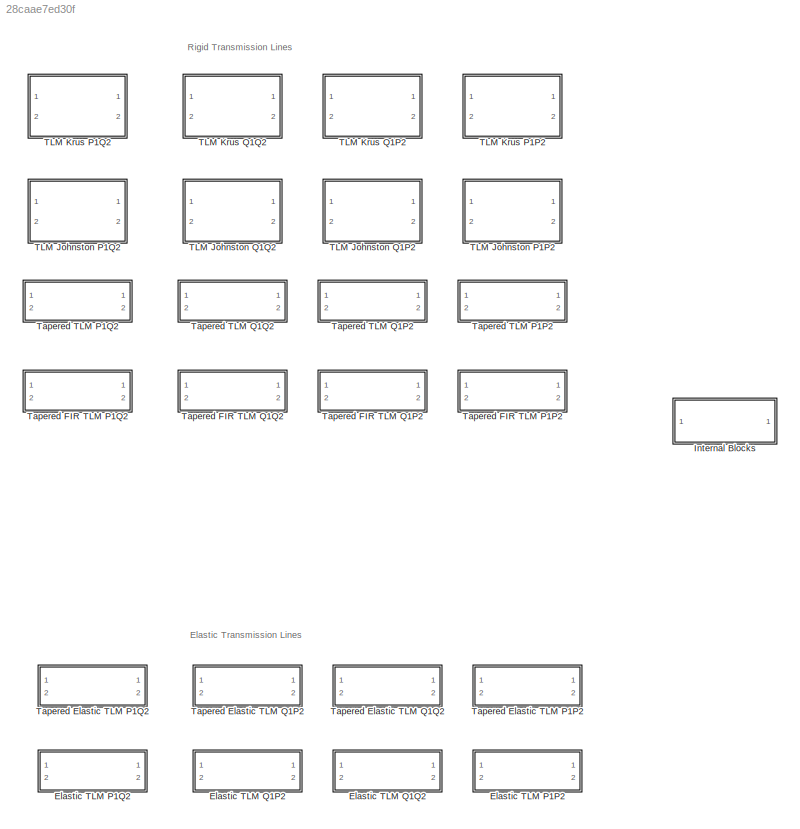
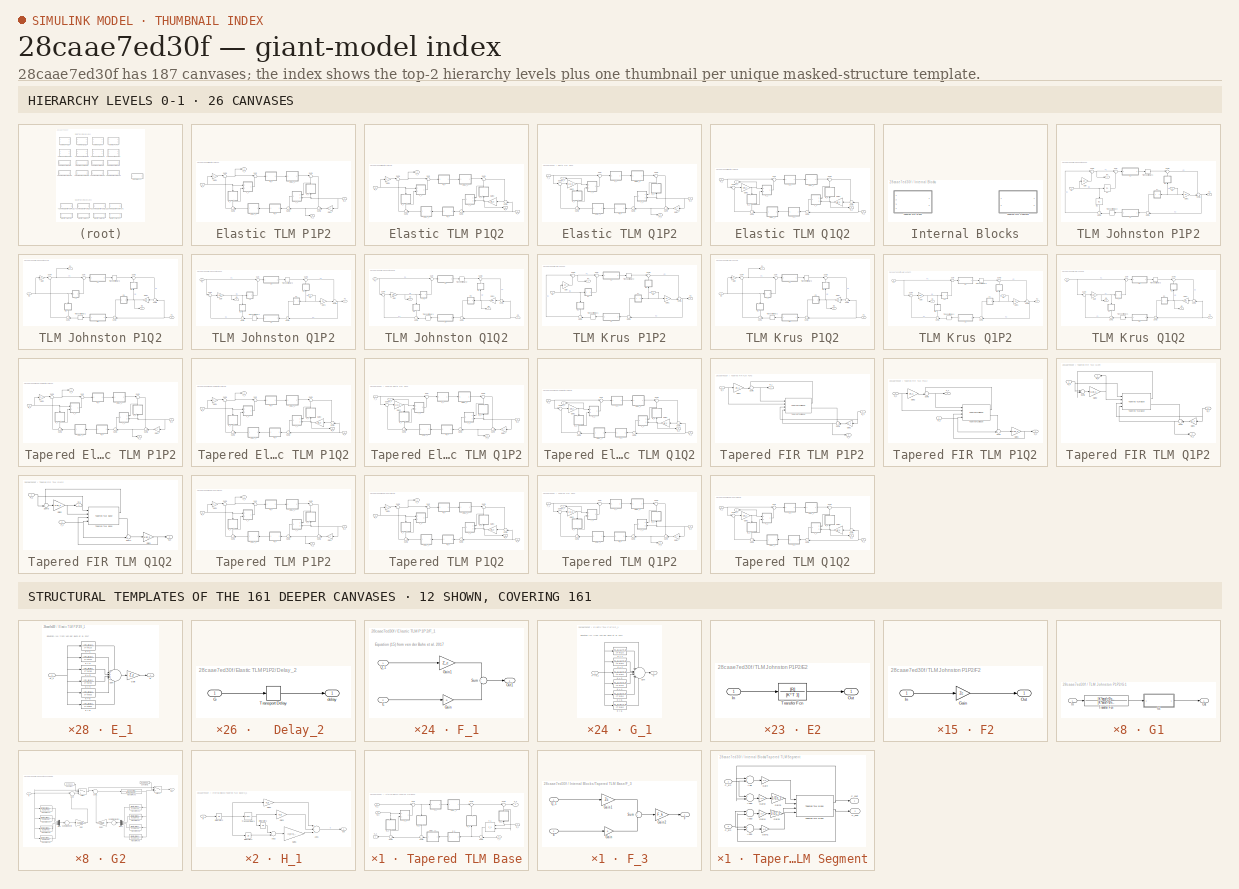
[diagram: thumbnail index - top-2 hierarchy levels (26 canvases) + 12 structural-template representatives of the remaining 161 canvases]
MODEL slx_28caae7ed30f
KIND library
CONFIG AbsTol = auto
CONFIG EnableMultiTasking = off
CONFIG FixedStep = auto
CONFIG MaxStep = auto
CONFIG MinStep = auto
CONFIG RelTol = 1e-3
CONFIG SampleTimeConstraint = Unconstrained
CONFIG Solver = ode45
CONFIG SolverName = ode45
CONFIG StartTime = 0.0
CONFIG StopTime = 10.0
BLOCK [SubSystem] Elastic TLM P1P2
  Ports = [2, 2]
  RequestExecContextInheritance = off
BLOCK [SubSystem] Elastic TLM P1P2/  Delay_2 
  Ports = [1, 1]
  RequestExecContextInheritance = off
BLOCK [Inport] Elastic TLM P1P2/  Delay_2 /G
  IconDisplay = Port number
BLOCK [TransportDelay] Elastic TLM P1P2/  Delay_2 /Transport Delay
  DelayTime = T_prime
  Ports = [1, 1]
BLOCK [Outport] Elastic TLM P1P2/  Delay_2 /delay
  IconDisplay = Port number
BLOCK [SubSystem] Elastic TLM P1P2/Delay_1 
  Ports = [1, 1]
  RequestExecContextInheritance = off
BLOCK [Inport] Elastic TLM P1P2/Delay_1 /G
  IconDisplay = Port number
BLOCK [TransportDelay] Elastic TLM P1P2/Delay_1 /Transport Delay
  DelayTime = T_prime
  Ports = [1, 1]
BLOCK [Outport] Elastic TLM P1P2/Delay_1 /delay
  IconDisplay = Port number
BLOCK [SubSystem] Elastic TLM P1P2/E_1
  Ports = [1, 1]
  RequestExecContextInheritance = off
BLOCK [Outport] Elastic TLM P1P2/E_1/E
  IconDisplay = Port number
BLOCK [Gain] Elastic TLM P1P2/E_1/Gain
  Gain = Z_c
  OutDataTypeStr = Inherit: Inherit via internal rule
  ParamDataTypeStr = Inherit: Inherit via internal rule
  SaturateOnIntegerOverflow = off
BLOCK [Inport] Elastic TLM P1P2/E_1/Q_1
  IconDisplay = Port number
BLOCK [Sum] Elastic TLM P1P2/E_1/Sum
  IconShape = round
  InputSameDT = off
  Inputs = ++++++
  OutDataTypeStr = Inherit: Inherit via internal rule
  Ports = [6, 1]
  SaturateOnIntegerOverflow = off
BLOCK [TransferFcn] Elastic TLM P1P2/E_1/k = 1
  Denominator = [T n(1)]
  Numerator = [m_E(1)]
BLOCK [TransferFcn] Elastic TLM P1P2/E_1/k = 2
  Denominator = [T n(2)]
  Numerator = [m_E(2)]
BLOCK [TransferFcn] Elastic TLM P1P2/E_1/k = 3
  Denominator = [T n(3)]
  Numerator = [m_E(3)]
BLOCK [TransferFcn] Elastic TLM P1P2/E_1/k = 4
  Denominator = [T n(4)]
  Numerator = [m_E(4)]
BLOCK [TransferFcn] Elastic TLM P1P2/E_1/k = 5
  Denominator = [T n(5)]
  Numerator = [m_E(5)]
BLOCK [TransferFcn] Elastic TLM P1P2/E_1/k = 6
  Denominator = [T n(6)]
  Numerator = [m_E(6)]
BLOCK [SubSystem] Elastic TLM P1P2/E_2
  Ports = [1, 1]
  RequestExecContextInheritance = off
BLOCK [Outport] Elastic TLM P1P2/E_2/E
  IconDisplay = Port number
BLOCK [Gain] Elastic TLM P1P2/E_2/Gain
  Gain = Z_c
  OutDataTypeStr = Inherit: Inherit via internal rule
  ParamDataTypeStr = Inherit: Inherit via internal rule
  SaturateOnIntegerOverflow = off
BLOCK [Inport] Elastic TLM P1P2/E_2/Q_2
  IconDisplay = Port number
BLOCK [Sum] Elastic TLM P1P2/E_2/Sum
  IconShape = round
  InputSameDT = off
  Inputs = ++++++
  OutDataTypeStr = Inherit: Inherit via internal rule
  Ports = [6, 1]
  SaturateOnIntegerOverflow = off
BLOCK [TransferFcn] Elastic TLM P1P2/E_2/k = 1
  Denominator = [T n(1)]
  Numerator = [m_E(1)]
BLOCK [TransferFcn] Elastic TLM P1P2/E_2/k = 2
  Denominator = [T n(2)]
  Numerator = [m_E(2)]
BLOCK [TransferFcn] Elastic TLM P1P2/E_2/k = 3
  Denominator = [T n(3)]
  Numerator = [m_E(3)]
BLOCK [TransferFcn] Elastic TLM P1P2/E_2/k = 4
  Denominator = [T n(4)]
  Numerator = [m_E(4)]
BLOCK [TransferFcn] Elastic TLM P1P2/E_2/k = 5
  Denominator = [T n(5)]
  Numerator = [m_E(5)]
BLOCK [TransferFcn] Elastic TLM P1P2/E_2/k = 6
  Denominator = [T n(6)]
  Numerator = [m_E(6)]
BLOCK [SubSystem] Elastic TLM P1P2/F_1
  Ports = [2, 1]
  RequestExecContextInheritance = off
BLOCK [Inport] Elastic TLM P1P2/F_1/E
  IconDisplay = Port number
  Port = 2
BLOCK [Gain] Elastic TLM P1P2/F_1/Gain
  Gain = b
  OutDataTypeStr = Inherit: Inherit via internal rule
  ParamDataTypeStr = Inherit: Inherit via internal rule
  SaturateOnIntegerOverflow = off
BLOCK [Gain] Elastic TLM P1P2/F_1/Gain1
  Gain = Z_c
  OutDataTypeStr = Inherit: Inherit via internal rule
  ParamDataTypeStr = Inherit: Inherit via internal rule
  SaturateOnIntegerOverflow = off
BLOCK [Outport] Elastic TLM P1P2/F_1/Out1
  IconDisplay = Port number
BLOCK [Inport] Elastic TLM P1P2/F_1/Q_1
  IconDisplay = Port number
BLOCK [Sum] Elastic TLM P1P2/F_1/Sum
  IconShape = round
  InputSameDT = off
  OutDataTypeStr = Inherit: Inherit via internal rule
  Ports = [2, 1]
  SaturateOnIntegerOverflow = off
BLOCK [SubSystem] Elastic TLM P1P2/F_2
  Ports = [2, 1]
  RequestExecContextInheritance = off
BLOCK [Inport] Elastic TLM P1P2/F_2/E
  IconDisplay = Port number
BLOCK [Outport] Elastic TLM P1P2/F_2/F
  IconDisplay = Port number
BLOCK [Gain] Elastic TLM P1P2/F_2/Gain
  Gain = b
  OutDataTypeStr = Inherit: Inherit via internal rule
  ParamDataTypeStr = Inherit: Inherit via internal rule
  SaturateOnIntegerOverflow = off
BLOCK [Gain] Elastic TLM P1P2/F_2/Gain1
  Gain = Z_c
  OutDataTypeStr = Inherit: Inherit via internal rule
  ParamDataTypeStr = Inherit: Inherit via internal rule
  SaturateOnIntegerOverflow = off
BLOCK [Inport] Elastic TLM P1P2/F_2/Q_2
  IconDisplay = Port number
  Port = 2
BLOCK [Sum] Elastic TLM P1P2/F_2/Sum
  IconShape = round
  InputSameDT = off
  OutDataTypeStr = Inherit: Inherit via internal rule
  Ports = [2, 1]
  SaturateOnIntegerOverflow = off
BLOCK [SubSystem] Elastic TLM P1P2/G_1
  Ports = [1, 1]
  RequestExecContextInheritance = off
BLOCK [Inport] Elastic TLM P1P2/G_1/F + P_1
  IconDisplay = Port number
BLOCK [Outport] Elastic TLM P1P2/G_1/G
  IconDisplay = Port number
BLOCK [Sum] Elastic TLM P1P2/G_1/Sum
  IconShape = round
  InputSameDT = off
  Inputs = +------
  OutDataTypeStr = Inherit: Inherit via internal rule
  Ports = [7, 1]
  SaturateOnIntegerOverflow = off
BLOCK [TransferFcn] Elastic TLM P1P2/G_1/k = 1
  Denominator = [T n(1)]
  Numerator = [m_G(1)*T 0]
BLOCK [TransferFcn] Elastic TLM P1P2/G_1/k = 2
  Denominator = [T n(2)]
  Numerator = [m_G(2)*T 0]
BLOCK [TransferFcn] Elastic TLM P1P2/G_1/k = 3
  Denominator = [T n(3)]
  Numerator = [m_G(3)*T 0]
BLOCK [TransferFcn] Elastic TLM P1P2/G_1/k = 4
  Denominator = [T n(4)]
  Numerator = [m_G(4)*T 0]
BLOCK [TransferFcn] Elastic TLM P1P2/G_1/k = 5
  Denominator = [T n(5)]
  Numerator = [m_G(5)*T 0]
BLOCK [TransferFcn] Elastic TLM P1P2/G_1/k = 6
  Denominator = [T n(6)]
  Numerator = [m_G(6)*T 0]
BLOCK [SubSystem] Elastic TLM P1P2/G_2
  Ports = [1, 1]
  RequestExecContextInheritance = off
BLOCK [Inport] Elastic TLM P1P2/G_2/F + P_2
  IconDisplay = Port number
BLOCK [Outport] Elastic TLM P1P2/G_2/G
  IconDisplay = Port number
BLOCK [Sum] Elastic TLM P1P2/G_2/Sum
  IconShape = round
  InputSameDT = off
  Inputs = +------
  OutDataTypeStr = Inherit: Inherit via internal rule
  Ports = [7, 1]
  SaturateOnIntegerOverflow = off
BLOCK [TransferFcn] Elastic TLM P1P2/G_2/k = 1
  Denominator = [T n(1)]
  Numerator = [m_G(1)*T 0]
BLOCK [TransferFcn] Elastic TLM P1P2/G_2/k = 2
  Denominator = [T n(2)]
  Numerator = [m_G(2)*T 0]
BLOCK [TransferFcn] Elastic TLM P1P2/G_2/k = 3
  Denominator = [T n(3)]
  Numerator = [m_G(3)*T 0]
BLOCK [TransferFcn] Elastic TLM P1P2/G_2/k = 4
  Denominator = [T n(4)]
  Numerator = [m_G(4)*T 0]
BLOCK [TransferFcn] Elastic TLM P1P2/G_2/k = 5
  Denominator = [T n(5)]
  Numerator = [m_G(5)*T 0]
BLOCK [TransferFcn] Elastic TLM P1P2/G_2/k = 6
  Denominator = [T n(6)]
  Numerator = [m_G(6)*T 0]
BLOCK [Gain] Elastic TLM P1P2/Gain1
  Gain = Z_c
  OutDataTypeStr = Inherit: Inherit via internal rule
  ParamDataTypeStr = Inherit: Inherit via internal rule
  SaturateOnIntegerOverflow = off
BLOCK [Gain] Elastic TLM P1P2/Gain2
  Gain = Z_c
  OutDataTypeStr = Inherit: Inherit via internal rule
  ParamDataTypeStr = Inherit: Inherit via internal rule
  SaturateOnIntegerOverflow = off
BLOCK [Outport] Elastic TLM P1P2/P_1
  IconDisplay = Port number
BLOCK [Outport] Elastic TLM P1P2/P_2
  IconDisplay = Port number
  Port = 2
BLOCK [Inport] Elastic TLM P1P2/Q_1
  IconDisplay = Port number
BLOCK [Inport] Elastic TLM P1P2/Q_2
  IconDisplay = Port number
  Port = 2
BLOCK [Sum] Elastic TLM P1P2/Sum
  IconShape = round
  InputSameDT = off
  Inputs = |++
  OutDataTypeStr = Inherit: Inherit via internal rule
  Ports = [2, 1]
  SaturateOnIntegerOverflow = off
BLOCK [Sum] Elastic TLM P1P2/Sum1
  IconShape = round
  InputSameDT = off
  Inputs = |++
  OutDataTypeStr = Inherit: Inherit via internal rule
  Ports = [2, 1]
  SaturateOnIntegerOverflow = off
BLOCK [Sum] Elastic TLM P1P2/Sum2
  IconShape = round
  InputSameDT = off
  Inputs = ++|
  OutDataTypeStr = Inherit: Inherit via internal rule
  Ports = [2, 1]
  SaturateOnIntegerOverflow = off
BLOCK [Sum] Elastic TLM P1P2/Sum3
  IconShape = round
  InputSameDT = off
  Inputs = ++|
  OutDataTypeStr = Inherit: Inherit via internal rule
  Ports = [2, 1]
  SaturateOnIntegerOverflow = off
BLOCK [Sum] Elastic TLM P1P2/Sum4
  IconShape = round
  InputSameDT = off
  Inputs = |++
  OutDataTypeStr = Inherit: Inherit via internal rule
  Ports = [2, 1]
  SaturateOnIntegerOverflow = off
BLOCK [Sum] Elastic TLM P1P2/Sum5
  IconShape = round
  InputSameDT = off
  Inputs = ++|
  OutDataTypeStr = Inherit: Inherit via internal rule
  Ports = [2, 1]
  SaturateOnIntegerOverflow = off
BLOCK [SubSystem] Elastic TLM P1Q2
  Ports = [2, 2]
  RequestExecContextInheritance = off
BLOCK [SubSystem] Elastic TLM P1Q2/  Delay_2 
  Ports = [1, 1]
  RequestExecContextInheritance = off
BLOCK [Inport] Elastic TLM P1Q2/  Delay_2 /G
  IconDisplay = Port number
BLOCK [TransportDelay] Elastic TLM P1Q2/  Delay_2 /Transport Delay
  DelayTime = T_prime
  Ports = [1, 1]
BLOCK [Outport] Elastic TLM P1Q2/  Delay_2 /delay
  IconDisplay = Port number
BLOCK [SubSystem] Elastic TLM P1Q2/Delay_1 
  Ports = [1, 1]
  RequestExecContextInheritance = off
BLOCK [Inport] Elastic TLM P1Q2/Delay_1 /G
  IconDisplay = Port number
BLOCK [TransportDelay] Elastic TLM P1Q2/Delay_1 /Transport Delay
  DelayTime = T_prime
  Ports = [1, 1]
BLOCK [Outport] Elastic TLM P1Q2/Delay_1 /delay
  IconDisplay = Port number
BLOCK [SubSystem] Elastic TLM P1Q2/E_1
  Ports = [1, 1]
  RequestExecContextInheritance = off
BLOCK [Outport] Elastic TLM P1Q2/E_1/E
  IconDisplay = Port number
BLOCK [Gain] Elastic TLM P1Q2/E_1/Gain
  Gain = Z_c
  OutDataTypeStr = Inherit: Inherit via internal rule
  ParamDataTypeStr = Inherit: Inherit via internal rule
  SaturateOnIntegerOverflow = off
BLOCK [Inport] Elastic TLM P1Q2/E_1/Q_1
  IconDisplay = Port number
BLOCK [Sum] Elastic TLM P1Q2/E_1/Sum
  IconShape = round
  InputSameDT = off
  Inputs = ++++++
  OutDataTypeStr = Inherit: Inherit via internal rule
  Ports = [6, 1]
  SaturateOnIntegerOverflow = off
BLOCK [TransferFcn] Elastic TLM P1Q2/E_1/k = 1
  Denominator = [T n(1)]
  Numerator = [m_E(1)]
BLOCK [TransferFcn] Elastic TLM P1Q2/E_1/k = 2
  Denominator = [T n(2)]
  Numerator = [m_E(2)]
BLOCK [TransferFcn] Elastic TLM P1Q2/E_1/k = 3
  Denominator = [T n(3)]
  Numerator = [m_E(3)]
BLOCK [TransferFcn] Elastic TLM P1Q2/E_1/k = 4
  Denominator = [T n(4)]
  Numerator = [m_E(4)]
BLOCK [TransferFcn] Elastic TLM P1Q2/E_1/k = 5
  Denominator = [T n(5)]
  Numerator = [m_E(5)]
BLOCK [TransferFcn] Elastic TLM P1Q2/E_1/k = 6
  Denominator = [T n(6)]
  Numerator = [m_E(6)]
BLOCK [SubSystem] Elastic TLM P1Q2/E_2
  Ports = [1, 1]
  RequestExecContextInheritance = off
BLOCK [Outport] Elastic TLM P1Q2/E_2/E
  IconDisplay = Port number
BLOCK [Gain] Elastic TLM P1Q2/E_2/Gain
  Gain = Z_c
  OutDataTypeStr = Inherit: Inherit via internal rule
  ParamDataTypeStr = Inherit: Inherit via internal rule
  SaturateOnIntegerOverflow = off
BLOCK [Inport] Elastic TLM P1Q2/E_2/Q_2
  IconDisplay = Port number
BLOCK [Sum] Elastic TLM P1Q2/E_2/Sum
  IconShape = round
  InputSameDT = off
  Inputs = ++++++
  OutDataTypeStr = Inherit: Inherit via internal rule
  Ports = [6, 1]
  SaturateOnIntegerOverflow = off
BLOCK [TransferFcn] Elastic TLM P1Q2/E_2/k = 1
  Denominator = [T n(1)]
  Numerator = [m_E(1)]
BLOCK [TransferFcn] Elastic TLM P1Q2/E_2/k = 2
  Denominator = [T n(2)]
  Numerator = [m_E(2)]
BLOCK [TransferFcn] Elastic TLM P1Q2/E_2/k = 3
  Denominator = [T n(3)]
  Numerator = [m_E(3)]
BLOCK [TransferFcn] Elastic TLM P1Q2/E_2/k = 4
  Denominator = [T n(4)]
  Numerator = [m_E(4)]
BLOCK [TransferFcn] Elastic TLM P1Q2/E_2/k = 5
  Denominator = [T n(5)]
  Numerator = [m_E(5)]
BLOCK [TransferFcn] Elastic TLM P1Q2/E_2/k = 6
  Denominator = [T n(6)]
  Numerator = [m_E(6)]
BLOCK [SubSystem] Elastic TLM P1Q2/F_1
  Ports = [2, 1]
  RequestExecContextInheritance = off
BLOCK [Inport] Elastic TLM P1Q2/F_1/E
  IconDisplay = Port number
  Port = 2
BLOCK [Outport] Elastic TLM P1Q2/F_1/F
  IconDisplay = Port number
BLOCK [Gain] Elastic TLM P1Q2/F_1/Gain
  Gain = b
  OutDataTypeStr = Inherit: Inherit via internal rule
  ParamDataTypeStr = Inherit: Inherit via internal rule
  SaturateOnIntegerOverflow = off
BLOCK [Gain] Elastic TLM P1Q2/F_1/Gain1
  Gain = Z_c
  OutDataTypeStr = Inherit: Inherit via internal rule
  ParamDataTypeStr = Inherit: Inherit via internal rule
  SaturateOnIntegerOverflow = off
BLOCK [Inport] Elastic TLM P1Q2/F_1/Q_1
  IconDisplay = Port number
BLOCK [Sum] Elastic TLM P1Q2/F_1/Sum
  IconShape = round
  InputSameDT = off
  OutDataTypeStr = Inherit: Inherit via internal rule
  Ports = [2, 1]
  SaturateOnIntegerOverflow = off
BLOCK [SubSystem] Elastic TLM P1Q2/F_2
  Ports = [2, 1]
  RequestExecContextInheritance = off
BLOCK [Inport] Elastic TLM P1Q2/F_2/E
  IconDisplay = Port number
BLOCK [Gain] Elastic TLM P1Q2/F_2/Gain
  Gain = b
  OutDataTypeStr = Inherit: Inherit via internal rule
  ParamDataTypeStr = Inherit: Inherit via internal rule
  SaturateOnIntegerOverflow = off
BLOCK [Gain] Elastic TLM P1Q2/F_2/Gain1
  Gain = Z_c
  OutDataTypeStr = Inherit: Inherit via internal rule
  ParamDataTypeStr = Inherit: Inherit via internal rule
  SaturateOnIntegerOverflow = off
BLOCK [Outport] Elastic TLM P1Q2/F_2/Out1
  IconDisplay = Port number
BLOCK [Inport] Elastic TLM P1Q2/F_2/Q_2
  IconDisplay = Port number
  Port = 2
BLOCK [Sum] Elastic TLM P1Q2/F_2/Sum
  IconShape = round
  InputSameDT = off
  OutDataTypeStr = Inherit: Inherit via internal rule
  Ports = [2, 1]
  SaturateOnIntegerOverflow = off
BLOCK [SubSystem] Elastic TLM P1Q2/G_1
  Ports = [1, 1]
  RequestExecContextInheritance = off
BLOCK [Inport] Elastic TLM P1Q2/G_1/F + P_1
  IconDisplay = Port number
BLOCK [Outport] Elastic TLM P1Q2/G_1/G
  IconDisplay = Port number
BLOCK [Sum] Elastic TLM P1Q2/G_1/Sum
  IconShape = round
  InputSameDT = off
  Inputs = +------
  OutDataTypeStr = Inherit: Inherit via internal rule
  Ports = [7, 1]
  SaturateOnIntegerOverflow = off
BLOCK [TransferFcn] Elastic TLM P1Q2/G_1/k = 1
  Denominator = [T n(1)]
  Numerator = [m_G(1)*T 0]
BLOCK [TransferFcn] Elastic TLM P1Q2/G_1/k = 2
  Denominator = [T n(2)]
  Numerator = [m_G(2)*T 0]
BLOCK [TransferFcn] Elastic TLM P1Q2/G_1/k = 3
  Denominator = [T n(3)]
  Numerator = [m_G(3)*T 0]
BLOCK [TransferFcn] Elastic TLM P1Q2/G_1/k = 4
  Denominator = [T n(4)]
  Numerator = [m_G(4)*T 0]
BLOCK [TransferFcn] Elastic TLM P1Q2/G_1/k = 5
  Denominator = [T n(5)]
  Numerator = [m_G(5)*T 0]
BLOCK [TransferFcn] Elastic TLM P1Q2/G_1/k = 6
  Denominator = [T n(6)]
  Numerator = [m_G(6)*T 0]
BLOCK [SubSystem] Elastic TLM P1Q2/G_2
  Ports = [1, 1]
  RequestExecContextInheritance = off
BLOCK [Inport] Elastic TLM P1Q2/G_2/F + P_2
  IconDisplay = Port number
BLOCK [Outport] Elastic TLM P1Q2/G_2/G
  IconDisplay = Port number
BLOCK [Sum] Elastic TLM P1Q2/G_2/Sum
  IconShape = round
  InputSameDT = off
  Inputs = +------
  OutDataTypeStr = Inherit: Inherit via internal rule
  Ports = [7, 1]
  SaturateOnIntegerOverflow = off
BLOCK [TransferFcn] Elastic TLM P1Q2/G_2/k = 1
  Denominator = [T n(1)]
  Numerator = [m_G(1)*T 0]
BLOCK [TransferFcn] Elastic TLM P1Q2/G_2/k = 2
  Denominator = [T n(2)]
  Numerator = [m_G(2)*T 0]
BLOCK [TransferFcn] Elastic TLM P1Q2/G_2/k = 3
  Denominator = [T n(3)]
  Numerator = [m_G(3)*T 0]
BLOCK [TransferFcn] Elastic TLM P1Q2/G_2/k = 4
  Denominator = [T n(4)]
  Numerator = [m_G(4)*T 0]
BLOCK [TransferFcn] Elastic TLM P1Q2/G_2/k = 5
  Denominator = [T n(5)]
  Numerator = [m_G(5)*T 0]
BLOCK [TransferFcn] Elastic TLM P1Q2/G_2/k = 6
  Denominator = [T n(6)]
  Numerator = [m_G(6)*T 0]
BLOCK [Gain] Elastic TLM P1Q2/Gain1
  Gain = Z_c
  OutDataTypeStr = Inherit: Inherit via internal rule
  ParamDataTypeStr = Inherit: Inherit via internal rule
  SaturateOnIntegerOverflow = off
BLOCK [Gain] Elastic TLM P1Q2/Gain3
  Gain = 1/Z_c
  OutDataTypeStr = Inherit: Inherit via internal rule
  ParamDataTypeStr = Inherit: Inherit via internal rule
  SaturateOnIntegerOverflow = off
BLOCK [Outport] Elastic TLM P1Q2/P_1
  IconDisplay = Port number
BLOCK [Inport] Elastic TLM P1Q2/P_2
  IconDisplay = Port number
  Port = 2
BLOCK [Inport] Elastic TLM P1Q2/Q_1
  IconDisplay = Port number
BLOCK [Outport] Elastic TLM P1Q2/Q_2
  IconDisplay = Port number
  Port = 2
BLOCK [Sum] Elastic TLM P1Q2/Sum
  IconShape = round
  InputSameDT = off
  Inputs = |++
  OutDataTypeStr = Inherit: Inherit via internal rule
  Ports = [2, 1]
  SaturateOnIntegerOverflow = off
BLOCK [Sum] Elastic TLM P1Q2/Sum1
  IconShape = round
  InputSameDT = off
  Inputs = |++
  OutDataTypeStr = Inherit: Inherit via internal rule
  Ports = [2, 1]
  SaturateOnIntegerOverflow = off
BLOCK [Sum] Elastic TLM P1Q2/Sum2
  IconShape = round
  InputSameDT = off
  Inputs = ++|
  OutDataTypeStr = Inherit: Inherit via internal rule
  Ports = [2, 1]
  SaturateOnIntegerOverflow = off
BLOCK [Sum] Elastic TLM P1Q2/Sum3
  IconShape = round
  InputSameDT = off
  Inputs = ++|
  OutDataTypeStr = Inherit: Inherit via internal rule
  Ports = [2, 1]
  SaturateOnIntegerOverflow = off
BLOCK [Sum] Elastic TLM P1Q2/Sum4
  IconShape = round
  InputSameDT = off
  Inputs = |++
  OutDataTypeStr = Inherit: Inherit via internal rule
  Ports = [2, 1]
  SaturateOnIntegerOverflow = off
BLOCK [Sum] Elastic TLM P1Q2/Sum5
  IconShape = round
  InputSameDT = off
  Inputs = -+|
  OutDataTypeStr = Inherit: Inherit via internal rule
  Ports = [2, 1]
  SaturateOnIntegerOverflow = off
BLOCK [SubSystem] Elastic TLM Q1P2
  Ports = [2, 2]
  RequestExecContextInheritance = off
BLOCK [SubSystem] Elastic TLM Q1P2/  Delay_2 
  Ports = [1, 1]
  RequestExecContextInheritance = off
BLOCK [Inport] Elastic TLM Q1P2/  Delay_2 /G
  IconDisplay = Port number
BLOCK [TransportDelay] Elastic TLM Q1P2/  Delay_2 /Transport Delay
  DelayTime = T_prime
  Ports = [1, 1]
BLOCK [Outport] Elastic TLM Q1P2/  Delay_2 /delay
  IconDisplay = Port number
BLOCK [SubSystem] Elastic TLM Q1P2/Delay_1 
  Ports = [1, 1]
  RequestExecContextInheritance = off
BLOCK [Inport] Elastic TLM Q1P2/Delay_1 /G
  IconDisplay = Port number
BLOCK [TransportDelay] Elastic TLM Q1P2/Delay_1 /Transport Delay
  DelayTime = T_prime
  Ports = [1, 1]
BLOCK [Outport] Elastic TLM Q1P2/Delay_1 /delay
  IconDisplay = Port number
BLOCK [SubSystem] Elastic TLM Q1P2/E_1
  Ports = [1, 1]
  RequestExecContextInheritance = off
BLOCK [Outport] Elastic TLM Q1P2/E_1/E
  IconDisplay = Port number
BLOCK [Gain] Elastic TLM Q1P2/E_1/Gain
  Gain = Z_c
  OutDataTypeStr = Inherit: Inherit via internal rule
  ParamDataTypeStr = Inherit: Inherit via internal rule
  SaturateOnIntegerOverflow = off
BLOCK [Inport] Elastic TLM Q1P2/E_1/Q_1
  IconDisplay = Port number
BLOCK [Sum] Elastic TLM Q1P2/E_1/Sum
  IconShape = round
  InputSameDT = off
  Inputs = ++++++
  OutDataTypeStr = Inherit: Inherit via internal rule
  Ports = [6, 1]
  SaturateOnIntegerOverflow = off
BLOCK [TransferFcn] Elastic TLM Q1P2/E_1/k = 1
  Denominator = [T n(1)]
  Numerator = [m_E(1)]
BLOCK [TransferFcn] Elastic TLM Q1P2/E_1/k = 2
  Denominator = [T n(2)]
  Numerator = [m_E(2)]
BLOCK [TransferFcn] Elastic TLM Q1P2/E_1/k = 3
  Denominator = [T n(3)]
  Numerator = [m_E(3)]
BLOCK [TransferFcn] Elastic TLM Q1P2/E_1/k = 4
  Denominator = [T n(4)]
  Numerator = [m_E(4)]
BLOCK [TransferFcn] Elastic TLM Q1P2/E_1/k = 5
  Denominator = [T n(5)]
  Numerator = [m_E(5)]
BLOCK [TransferFcn] Elastic TLM Q1P2/E_1/k = 6
  Denominator = [T n(6)]
  Numerator = [m_E(6)]
BLOCK [SubSystem] Elastic TLM Q1P2/E_2
  Ports = [1, 1]
  RequestExecContextInheritance = off
BLOCK [Outport] Elastic TLM Q1P2/E_2/E
  IconDisplay = Port number
BLOCK [Gain] Elastic TLM Q1P2/E_2/Gain
  Gain = Z_c
  OutDataTypeStr = Inherit: Inherit via internal rule
  ParamDataTypeStr = Inherit: Inherit via internal rule
  SaturateOnIntegerOverflow = off
BLOCK [Inport] Elastic TLM Q1P2/E_2/Q_2
  IconDisplay = Port number
BLOCK [Sum] Elastic TLM Q1P2/E_2/Sum
  IconShape = round
  InputSameDT = off
  Inputs = ++++++
  OutDataTypeStr = Inherit: Inherit via internal rule
  Ports = [6, 1]
  SaturateOnIntegerOverflow = off
BLOCK [TransferFcn] Elastic TLM Q1P2/E_2/k = 1
  Denominator = [T n(1)]
  Numerator = [m_E(1)]
BLOCK [TransferFcn] Elastic TLM Q1P2/E_2/k = 2
  Denominator = [T n(2)]
  Numerator = [m_E(2)]
BLOCK [TransferFcn] Elastic TLM Q1P2/E_2/k = 3
  Denominator = [T n(3)]
  Numerator = [m_E(3)]
BLOCK [TransferFcn] Elastic TLM Q1P2/E_2/k = 4
  Denominator = [T n(4)]
  Numerator = [m_E(4)]
BLOCK [TransferFcn] Elastic TLM Q1P2/E_2/k = 5
  Denominator = [T n(5)]
  Numerator = [m_E(5)]
BLOCK [TransferFcn] Elastic TLM Q1P2/E_2/k = 6
  Denominator = [T n(6)]
  Numerator = [m_E(6)]
BLOCK [SubSystem] Elastic TLM Q1P2/F_1
  Ports = [2, 1]
  RequestExecContextInheritance = off
BLOCK [Inport] Elastic TLM Q1P2/F_1/E
  IconDisplay = Port number
  Port = 2
BLOCK [Outport] Elastic TLM Q1P2/F_1/F
  IconDisplay = Port number
BLOCK [Gain] Elastic TLM Q1P2/F_1/Gain
  Gain = b
  OutDataTypeStr = Inherit: Inherit via internal rule
  ParamDataTypeStr = Inherit: Inherit via internal rule
  SaturateOnIntegerOverflow = off
BLOCK [Gain] Elastic TLM Q1P2/F_1/Gain1
  Gain = Z_c
  OutDataTypeStr = Inherit: Inherit via internal rule
  ParamDataTypeStr = Inherit: Inherit via internal rule
  SaturateOnIntegerOverflow = off
BLOCK [Inport] Elastic TLM Q1P2/F_1/Q_1
  IconDisplay = Port number
BLOCK [Sum] Elastic TLM Q1P2/F_1/Sum
  IconShape = round
  InputSameDT = off
  OutDataTypeStr = Inherit: Inherit via internal rule
  Ports = [2, 1]
  SaturateOnIntegerOverflow = off
BLOCK [SubSystem] Elastic TLM Q1P2/F_2
  Ports = [2, 1]
  RequestExecContextInheritance = off
BLOCK [Inport] Elastic TLM Q1P2/F_2/E
  IconDisplay = Port number
BLOCK [Gain] Elastic TLM Q1P2/F_2/Gain
  Gain = b
  OutDataTypeStr = Inherit: Inherit via internal rule
  ParamDataTypeStr = Inherit: Inherit via internal rule
  SaturateOnIntegerOverflow = off
BLOCK [Gain] Elastic TLM Q1P2/F_2/Gain1
  Gain = Z_c
  OutDataTypeStr = Inherit: Inherit via internal rule
  ParamDataTypeStr = Inherit: Inherit via internal rule
  SaturateOnIntegerOverflow = off
BLOCK [Outport] Elastic TLM Q1P2/F_2/Out1
  IconDisplay = Port number
BLOCK [Inport] Elastic TLM Q1P2/F_2/Q_2
  IconDisplay = Port number
  Port = 2
BLOCK [Sum] Elastic TLM Q1P2/F_2/Sum
  IconShape = round
  InputSameDT = off
  OutDataTypeStr = Inherit: Inherit via internal rule
  Ports = [2, 1]
  SaturateOnIntegerOverflow = off
BLOCK [SubSystem] Elastic TLM Q1P2/G_1
  Ports = [1, 1]
  RequestExecContextInheritance = off
BLOCK [Inport] Elastic TLM Q1P2/G_1/F + P_1
  IconDisplay = Port number
BLOCK [Outport] Elastic TLM Q1P2/G_1/G
  IconDisplay = Port number
BLOCK [Sum] Elastic TLM Q1P2/G_1/Sum
  IconShape = round
  InputSameDT = off
  Inputs = +------
  OutDataTypeStr = Inherit: Inherit via internal rule
  Ports = [7, 1]
  SaturateOnIntegerOverflow = off
BLOCK [TransferFcn] Elastic TLM Q1P2/G_1/k = 1
  Denominator = [T n(1)]
  Numerator = [m_G(1)*T 0]
BLOCK [TransferFcn] Elastic TLM Q1P2/G_1/k = 2
  Denominator = [T n(2)]
  Numerator = [m_G(2)*T 0]
BLOCK [TransferFcn] Elastic TLM Q1P2/G_1/k = 3
  Denominator = [T n(3)]
  Numerator = [m_G(3)*T 0]
BLOCK [TransferFcn] Elastic TLM Q1P2/G_1/k = 4
  Denominator = [T n(4)]
  Numerator = [m_G(4)*T 0]
BLOCK [TransferFcn] Elastic TLM Q1P2/G_1/k = 5
  Denominator = [T n(5)]
  Numerator = [m_G(5)*T 0]
BLOCK [TransferFcn] Elastic TLM Q1P2/G_1/k = 6
  Denominator = [T n(6)]
  Numerator = [m_G(6)*T 0]
BLOCK [SubSystem] Elastic TLM Q1P2/G_2
  Ports = [1, 1]
  RequestExecContextInheritance = off
BLOCK [Inport] Elastic TLM Q1P2/G_2/F + P_2
  IconDisplay = Port number
BLOCK [Outport] Elastic TLM Q1P2/G_2/G
  IconDisplay = Port number
BLOCK [Sum] Elastic TLM Q1P2/G_2/Sum
  IconShape = round
  InputSameDT = off
  Inputs = +------
  OutDataTypeStr = Inherit: Inherit via internal rule
  Ports = [7, 1]
  SaturateOnIntegerOverflow = off
BLOCK [TransferFcn] Elastic TLM Q1P2/G_2/k = 1
  Denominator = [T n(1)]
  Numerator = [m_G(1)*T 0]
BLOCK [TransferFcn] Elastic TLM Q1P2/G_2/k = 2
  Denominator = [T n(2)]
  Numerator = [m_G(2)*T 0]
BLOCK [TransferFcn] Elastic TLM Q1P2/G_2/k = 3
  Denominator = [T n(3)]
  Numerator = [m_G(3)*T 0]
BLOCK [TransferFcn] Elastic TLM Q1P2/G_2/k = 4
  Denominator = [T n(4)]
  Numerator = [m_G(4)*T 0]
BLOCK [TransferFcn] Elastic TLM Q1P2/G_2/k = 5
  Denominator = [T n(5)]
  Numerator = [m_G(5)*T 0]
BLOCK [TransferFcn] Elastic TLM Q1P2/G_2/k = 6
  Denominator = [T n(6)]
  Numerator = [m_G(6)*T 0]
BLOCK [Gain] Elastic TLM Q1P2/Gain1
  Gain = Z_c
  OutDataTypeStr = Inherit: Inherit via internal rule
  ParamDataTypeStr = Inherit: Inherit via internal rule
  SaturateOnIntegerOverflow = off
BLOCK [Gain] Elastic TLM Q1P2/Gain2
  Gain = 1/Z_c
  OutDataTypeStr = Inherit: Inherit via internal rule
  ParamDataTypeStr = Inherit: Inherit via internal rule
  SaturateOnIntegerOverflow = off
BLOCK [Inport] Elastic TLM Q1P2/P_1
  IconDisplay = Port number
BLOCK [Outport] Elastic TLM Q1P2/P_2
  IconDisplay = Port number
  Port = 2
BLOCK [Outport] Elastic TLM Q1P2/Q_1
  IconDisplay = Port number
BLOCK [Inport] Elastic TLM Q1P2/Q_2
  IconDisplay = Port number
  Port = 2
BLOCK [Sum] Elastic TLM Q1P2/Sum
  IconShape = round
  InputSameDT = off
  Inputs = |++
  OutDataTypeStr = Inherit: Inherit via internal rule
  Ports = [2, 1]
  SaturateOnIntegerOverflow = off
BLOCK [Sum] Elastic TLM Q1P2/Sum1
  IconShape = round
  InputSameDT = off
  Inputs = |++
  OutDataTypeStr = Inherit: Inherit via internal rule
  Ports = [2, 1]
  SaturateOnIntegerOverflow = off
BLOCK [Sum] Elastic TLM Q1P2/Sum2
  IconShape = round
  InputSameDT = off
  Inputs = ++|
  OutDataTypeStr = Inherit: Inherit via internal rule
  Ports = [2, 1]
  SaturateOnIntegerOverflow = off
BLOCK [Sum] Elastic TLM Q1P2/Sum3
  IconShape = round
  InputSameDT = off
  Inputs = ++|
  OutDataTypeStr = Inherit: Inherit via internal rule
  Ports = [2, 1]
  SaturateOnIntegerOverflow = off
BLOCK [Sum] Elastic TLM Q1P2/Sum4
  IconShape = round
  InputSameDT = off
  Inputs = ++|
  OutDataTypeStr = Inherit: Inherit via internal rule
  Ports = [2, 1]
  SaturateOnIntegerOverflow = off
BLOCK [Sum] Elastic TLM Q1P2/Sum6
  IconShape = round
  InputSameDT = off
  Inputs = |+-
  OutDataTypeStr = Inherit: Inherit via internal rule
  Ports = [2, 1]
  SaturateOnIntegerOverflow = off
BLOCK [SubSystem] Elastic TLM Q1Q2
  Ports = [2, 2]
  RequestExecContextInheritance = off
BLOCK [SubSystem] Elastic TLM Q1Q2/  Delay_2 
  Ports = [1, 1]
  RequestExecContextInheritance = off
BLOCK [Inport] Elastic TLM Q1Q2/  Delay_2 /G
  IconDisplay = Port number
BLOCK [TransportDelay] Elastic TLM Q1Q2/  Delay_2 /Transport Delay
  DelayTime = T_prime
  Ports = [1, 1]
BLOCK [Outport] Elastic TLM Q1Q2/  Delay_2 /delay
  IconDisplay = Port number
BLOCK [SubSystem] Elastic TLM Q1Q2/Delay_1 
  Ports = [1, 1]
  RequestExecContextInheritance = off
BLOCK [Inport] Elastic TLM Q1Q2/Delay_1 /G
  IconDisplay = Port number
BLOCK [TransportDelay] Elastic TLM Q1Q2/Delay_1 /Transport Delay
  DelayTime = T_prime
  Ports = [1, 1]
BLOCK [Outport] Elastic TLM Q1Q2/Delay_1 /delay
  IconDisplay = Port number
BLOCK [SubSystem] Elastic TLM Q1Q2/E_1
  Ports = [1, 1]
  RequestExecContextInheritance = off
BLOCK [Outport] Elastic TLM Q1Q2/E_1/E
  IconDisplay = Port number
BLOCK [Gain] Elastic TLM Q1Q2/E_1/Gain
  Gain = Z_c
  OutDataTypeStr = Inherit: Inherit via internal rule
  ParamDataTypeStr = Inherit: Inherit via internal rule
  SaturateOnIntegerOverflow = off
BLOCK [Inport] Elastic TLM Q1Q2/E_1/Q_1
  IconDisplay = Port number
BLOCK [Sum] Elastic TLM Q1Q2/E_1/Sum
  IconShape = round
  InputSameDT = off
  Inputs = ++++++
  OutDataTypeStr = Inherit: Inherit via internal rule
  Ports = [6, 1]
  SaturateOnIntegerOverflow = off
BLOCK [TransferFcn] Elastic TLM Q1Q2/E_1/k = 1
  Denominator = [T n(1)]
  Numerator = [m_E(1)]
BLOCK [TransferFcn] Elastic TLM Q1Q2/E_1/k = 2
  Denominator = [T n(2)]
  Numerator = [m_E(2)]
BLOCK [TransferFcn] Elastic TLM Q1Q2/E_1/k = 3
  Denominator = [T n(3)]
  Numerator = [m_E(3)]
BLOCK [TransferFcn] Elastic TLM Q1Q2/E_1/k = 4
  Denominator = [T n(4)]
  Numerator = [m_E(4)]
BLOCK [TransferFcn] Elastic TLM Q1Q2/E_1/k = 5
  Denominator = [T n(5)]
  Numerator = [m_E(5)]
BLOCK [TransferFcn] Elastic TLM Q1Q2/E_1/k = 6
  Denominator = [T n(6)]
  Numerator = [m_E(6)]
BLOCK [SubSystem] Elastic TLM Q1Q2/E_2
  Ports = [1, 1]
  RequestExecContextInheritance = off
BLOCK [Outport] Elastic TLM Q1Q2/E_2/E
  IconDisplay = Port number
BLOCK [Gain] Elastic TLM Q1Q2/E_2/Gain
  Gain = Z_c
  OutDataTypeStr = Inherit: Inherit via internal rule
  ParamDataTypeStr = Inherit: Inherit via internal rule
  SaturateOnIntegerOverflow = off
BLOCK [Inport] Elastic TLM Q1Q2/E_2/Q_2
  IconDisplay = Port number
BLOCK [Sum] Elastic TLM Q1Q2/E_2/Sum
  IconShape = round
  InputSameDT = off
  Inputs = ++++++
  OutDataTypeStr = Inherit: Inherit via internal rule
  Ports = [6, 1]
  SaturateOnIntegerOverflow = off
BLOCK [TransferFcn] Elastic TLM Q1Q2/E_2/k = 1
  Denominator = [T n(1)]
  Numerator = [m_E(1)]
BLOCK [TransferFcn] Elastic TLM Q1Q2/E_2/k = 2
  Denominator = [T n(2)]
  Numerator = [m_E(2)]
BLOCK [TransferFcn] Elastic TLM Q1Q2/E_2/k = 3
  Denominator = [T n(3)]
  Numerator = [m_E(3)]
BLOCK [TransferFcn] Elastic TLM Q1Q2/E_2/k = 4
  Denominator = [T n(4)]
  Numerator = [m_E(4)]
BLOCK [TransferFcn] Elastic TLM Q1Q2/E_2/k = 5
  Denominator = [T n(5)]
  Numerator = [m_E(5)]
BLOCK [TransferFcn] Elastic TLM Q1Q2/E_2/k = 6
  Denominator = [T n(6)]
  Numerator = [m_E(6)]
BLOCK [SubSystem] Elastic TLM Q1Q2/F_1
  Ports = [2, 1]
  RequestExecContextInheritance = off
BLOCK [Inport] Elastic TLM Q1Q2/F_1/E
  IconDisplay = Port number
  Port = 2
BLOCK [Outport] Elastic TLM Q1Q2/F_1/F
  IconDisplay = Port number
BLOCK [Gain] Elastic TLM Q1Q2/F_1/Gain
  Gain = b
  OutDataTypeStr = Inherit: Inherit via internal rule
  ParamDataTypeStr = Inherit: Inherit via internal rule
  SaturateOnIntegerOverflow = off
BLOCK [Gain] Elastic TLM Q1Q2/F_1/Gain1
  Gain = Z_c
  OutDataTypeStr = Inherit: Inherit via internal rule
  ParamDataTypeStr = Inherit: Inherit via internal rule
  SaturateOnIntegerOverflow = off
BLOCK [Inport] Elastic TLM Q1Q2/F_1/Q_1
  IconDisplay = Port number
BLOCK [Sum] Elastic TLM Q1Q2/F_1/Sum
  IconShape = round
  InputSameDT = off
  OutDataTypeStr = Inherit: Inherit via internal rule
  Ports = [2, 1]
  SaturateOnIntegerOverflow = off
BLOCK [SubSystem] Elastic TLM Q1Q2/F_2
  Ports = [2, 1]
  RequestExecContextInheritance = off
BLOCK [Inport] Elastic TLM Q1Q2/F_2/E
  IconDisplay = Port number
BLOCK [Outport] Elastic TLM Q1Q2/F_2/F
  IconDisplay = Port number
BLOCK [Gain] Elastic TLM Q1Q2/F_2/Gain
  Gain = b
  OutDataTypeStr = Inherit: Inherit via internal rule
  ParamDataTypeStr = Inherit: Inherit via internal rule
  SaturateOnIntegerOverflow = off
BLOCK [Gain] Elastic TLM Q1Q2/F_2/Gain1
  Gain = Z_c
  OutDataTypeStr = Inherit: Inherit via internal rule
  ParamDataTypeStr = Inherit: Inherit via internal rule
  SaturateOnIntegerOverflow = off
BLOCK [Inport] Elastic TLM Q1Q2/F_2/Q_2
  IconDisplay = Port number
  Port = 2
BLOCK [Sum] Elastic TLM Q1Q2/F_2/Sum
  IconShape = round
  InputSameDT = off
  OutDataTypeStr = Inherit: Inherit via internal rule
  Ports = [2, 1]
  SaturateOnIntegerOverflow = off
BLOCK [SubSystem] Elastic TLM Q1Q2/G_1
  Ports = [1, 1]
  RequestExecContextInheritance = off
BLOCK [Inport] Elastic TLM Q1Q2/G_1/F + P_1
  IconDisplay = Port number
BLOCK [Outport] Elastic TLM Q1Q2/G_1/G
  IconDisplay = Port number
BLOCK [Sum] Elastic TLM Q1Q2/G_1/Sum
  IconShape = round
  InputSameDT = off
  Inputs = +------
  OutDataTypeStr = Inherit: Inherit via internal rule
  Ports = [7, 1]
  SaturateOnIntegerOverflow = off
BLOCK [TransferFcn] Elastic TLM Q1Q2/G_1/k = 1
  Denominator = [T n(1)]
  Numerator = [m_G(1)*T 0]
BLOCK [TransferFcn] Elastic TLM Q1Q2/G_1/k = 2
  Denominator = [T n(2)]
  Numerator = [m_G(2)*T 0]
BLOCK [TransferFcn] Elastic TLM Q1Q2/G_1/k = 3
  Denominator = [T n(3)]
  Numerator = [m_G(3)*T 0]
BLOCK [TransferFcn] Elastic TLM Q1Q2/G_1/k = 4
  Denominator = [T n(4)]
  Numerator = [m_G(4)*T 0]
BLOCK [TransferFcn] Elastic TLM Q1Q2/G_1/k = 5
  Denominator = [T n(5)]
  Numerator = [m_G(5)*T 0]
BLOCK [TransferFcn] Elastic TLM Q1Q2/G_1/k = 6
  Denominator = [T n(6)]
  Numerator = [m_G(6)*T 0]
BLOCK [SubSystem] Elastic TLM Q1Q2/G_2
  Ports = [1, 1]
  RequestExecContextInheritance = off
BLOCK [Inport] Elastic TLM Q1Q2/G_2/F + P_2
  IconDisplay = Port number
BLOCK [Outport] Elastic TLM Q1Q2/G_2/G
  IconDisplay = Port number
BLOCK [Sum] Elastic TLM Q1Q2/G_2/Sum
  IconShape = round
  InputSameDT = off
  Inputs = +------
  OutDataTypeStr = Inherit: Inherit via internal rule
  Ports = [7, 1]
  SaturateOnIntegerOverflow = off
BLOCK [TransferFcn] Elastic TLM Q1Q2/G_2/k = 1
  Denominator = [T n(1)]
  Numerator = [m_G(1)*T 0]
BLOCK [TransferFcn] Elastic TLM Q1Q2/G_2/k = 2
  Denominator = [T n(2)]
  Numerator = [m_G(2)*T 0]
BLOCK [TransferFcn] Elastic TLM Q1Q2/G_2/k = 3
  Denominator = [T n(3)]
  Numerator = [m_G(3)*T 0]
BLOCK [TransferFcn] Elastic TLM Q1Q2/G_2/k = 4
  Denominator = [T n(4)]
  Numerator = [m_G(4)*T 0]
BLOCK [TransferFcn] Elastic TLM Q1Q2/G_2/k = 5
  Denominator = [T n(5)]
  Numerator = [m_G(5)*T 0]
BLOCK [TransferFcn] Elastic TLM Q1Q2/G_2/k = 6
  Denominator = [T n(6)]
  Numerator = [m_G(6)*T 0]
BLOCK [Gain] Elastic TLM Q1Q2/Gain2
  Gain = 1/Z_c
  OutDataTypeStr = Inherit: Inherit via internal rule
  ParamDataTypeStr = Inherit: Inherit via internal rule
  SaturateOnIntegerOverflow = off
BLOCK [Gain] Elastic TLM Q1Q2/Gain3
  Gain = 1/Z_c
  OutDataTypeStr = Inherit: Inherit via internal rule
  ParamDataTypeStr = Inherit: Inherit via internal rule
  SaturateOnIntegerOverflow = off
BLOCK [Inport] Elastic TLM Q1Q2/P_1
  IconDisplay = Port number
BLOCK [Inport] Elastic TLM Q1Q2/P_2
  IconDisplay = Port number
  Port = 2
BLOCK [Outport] Elastic TLM Q1Q2/Q_1
  IconDisplay = Port number
BLOCK [Outport] Elastic TLM Q1Q2/Q_2
  IconDisplay = Port number
  Port = 2
BLOCK [Sum] Elastic TLM Q1Q2/Sum
  IconShape = round
  InputSameDT = off
  Inputs = |++
  OutDataTypeStr = Inherit: Inherit via internal rule
  Ports = [2, 1]
  SaturateOnIntegerOverflow = off
BLOCK [Sum] Elastic TLM Q1Q2/Sum1
  IconShape = round
  InputSameDT = off
  Inputs = |++
  OutDataTypeStr = Inherit: Inherit via internal rule
  Ports = [2, 1]
  SaturateOnIntegerOverflow = off
BLOCK [Sum] Elastic TLM Q1Q2/Sum2
  IconShape = round
  InputSameDT = off
  Inputs = ++|
  OutDataTypeStr = Inherit: Inherit via internal rule
  Ports = [2, 1]
  SaturateOnIntegerOverflow = off
BLOCK [Sum] Elastic TLM Q1Q2/Sum3
  IconShape = round
  InputSameDT = off
  Inputs = ++|
  OutDataTypeStr = Inherit: Inherit via internal rule
  Ports = [2, 1]
  SaturateOnIntegerOverflow = off
BLOCK [Sum] Elastic TLM Q1Q2/Sum5
  IconShape = round
  InputSameDT = off
  Inputs = -+|
  OutDataTypeStr = Inherit: Inherit via internal rule
  Ports = [2, 1]
  SaturateOnIntegerOverflow = off
BLOCK [Sum] Elastic TLM Q1Q2/Sum6
  IconShape = round
  InputSameDT = off
  Inputs = |+-
  OutDataTypeStr = Inherit: Inherit via internal rule
  Ports = [2, 1]
  SaturateOnIntegerOverflow = off
BLOCK [SubSystem] Internal Blocks
  Ports = []
  RequestExecContextInheritance = off
BLOCK [SubSystem] Internal Blocks/Tapered TLM Base
  Ports = [4, 2]
  RequestExecContextInheritance = off
BLOCK [Outport] Internal Blocks/Tapered TLM Base/ C_2
  IconDisplay = Port number
  Port = 2
BLOCK [Outport] Internal Blocks/Tapered TLM Base/C_1
  IconDisplay = Port number
BLOCK [SubSystem] Internal Blocks/Tapered TLM Base/Delay_1 
  Ports = [1, 1]
  RequestExecContextInheritance = off
BLOCK [Inport] Internal Blocks/Tapered TLM Base/Delay_1 /G
  IconDisplay = Port number
BLOCK [TransportDelay] Internal Blocks/Tapered TLM Base/Delay_1 /Transport Delay
  DelayTime = T
  Ports = [1, 1]
BLOCK [Outport] Internal Blocks/Tapered TLM Base/Delay_1 /delay
  IconDisplay = Port number
BLOCK [SubSystem] Internal Blocks/Tapered TLM Base/Delay_1 1
  Ports = [1, 1]
  RequestExecContextInheritance = off
BLOCK [Inport] Internal Blocks/Tapered TLM Base/Delay_1 1/G
  IconDisplay = Port number
BLOCK [TransportDelay] Internal Blocks/Tapered TLM Base/Delay_1 1/Transport Delay
  DelayTime = T
  Ports = [1, 1]
BLOCK [Outport] Internal Blocks/Tapered TLM Base/Delay_1 1/delay
  IconDisplay = Port number
BLOCK [SubSystem] Internal Blocks/Tapered TLM Base/E_1
  Ports = [1, 1]
  RequestExecContextInheritance = off
BLOCK [Outport] Internal Blocks/Tapered TLM Base/E_1/E
  IconDisplay = Port number
BLOCK [Gain] Internal Blocks/Tapered TLM Base/E_1/Gain
  Gain = Zc
  OutDataTypeStr = Inherit: Inherit via internal rule
  ParamDataTypeStr = Inherit: Inherit via internal rule
  SaturateOnIntegerOverflow = off
BLOCK [Inport] Internal Blocks/Tapered TLM Base/E_1/Q_2
  IconDisplay = Port number
BLOCK [Sum] Internal Blocks/Tapered TLM Base/E_1/Sum
  IconShape = round
  InputSameDT = off
  Inputs = ++++++
  OutDataTypeStr = Inherit: Inherit via internal rule
  Ports = [6, 1]
  SaturateOnIntegerOverflow = off
BLOCK [TransferFcn] Internal Blocks/Tapered TLM Base/E_1/k = 1
  Denominator = [T n(1)]
  Numerator = [m_E(1)]
BLOCK [TransferFcn] Internal Blocks/Tapered TLM Base/E_1/k = 2
  Denominator = [T n(2)]
  Numerator = [m_E(2)]
BLOCK [TransferFcn] Internal Blocks/Tapered TLM Base/E_1/k = 3
  Denominator = [T n(3)]
  Numerator = [m_E(3)]
BLOCK [TransferFcn] Internal Blocks/Tapered TLM Base/E_1/k = 4
  Denominator = [T n(4)]
  Numerator = [m_E(4)]
BLOCK [TransferFcn] Internal Blocks/Tapered TLM Base/E_1/k = 5
  Denominator = [T n(5)]
  Numerator = [m_E(5)]
BLOCK [TransferFcn] Internal Blocks/Tapered TLM Base/E_1/k = 6
  Denominator = [T n(6)]
  Numerator = [m_E(6)]
BLOCK [SubSystem] Internal Blocks/Tapered TLM Base/E_2
  Ports = [1, 1]
  RequestExecContextInheritance = off
BLOCK [Outport] Internal Blocks/Tapered TLM Base/E_2/E
  IconDisplay = Port number
BLOCK [Gain] Internal Blocks/Tapered TLM Base/E_2/Gain
  Gain = Zc
  OutDataTypeStr = Inherit: Inherit via internal rule
  ParamDataTypeStr = Inherit: Inherit via internal rule
  SaturateOnIntegerOverflow = off
BLOCK [Inport] Internal Blocks/Tapered TLM Base/E_2/Q_2
  IconDisplay = Port number
BLOCK [Sum] Internal Blocks/Tapered TLM Base/E_2/Sum
  IconShape = round
  InputSameDT = off
  Inputs = ++++++
  OutDataTypeStr = Inherit: Inherit via internal rule
  Ports = [6, 1]
  SaturateOnIntegerOverflow = off
BLOCK [TransferFcn] Internal Blocks/Tapered TLM Base/E_2/k = 1
  Denominator = [T n(1)]
  Numerator = [m_E(1)]
BLOCK [TransferFcn] Internal Blocks/Tapered TLM Base/E_2/k = 2
  Denominator = [T n(2)]
  Numerator = [m_E(2)]
BLOCK [TransferFcn] Internal Blocks/Tapered TLM Base/E_2/k = 3
  Denominator = [T n(3)]
  Numerator = [m_E(3)]
BLOCK [TransferFcn] Internal Blocks/Tapered TLM Base/E_2/k = 4
  Denominator = [T n(4)]
  Numerator = [m_E(4)]
BLOCK [TransferFcn] Internal Blocks/Tapered TLM Base/E_2/k = 5
  Denominator = [T n(5)]
  Numerator = [m_E(5)]
BLOCK [TransferFcn] Internal Blocks/Tapered TLM Base/E_2/k = 6
  Denominator = [T n(6)]
  Numerator = [m_E(6)]
BLOCK [Reference] Internal Blocks/Tapered TLM Base/F_1  REF=$bdroot/Internal Blocks/Tapered TLM Base/F_3
  Ports = [2, 1]
  SourceBlock = $bdroot/Internal Blocks/Tapered TLM Base/F_3
BLOCK [SubSystem] Internal Blocks/Tapered TLM Base/F_3
  Ports = [2, 1]
  RequestExecContextInheritance = off
BLOCK [Inport] Internal Blocks/Tapered TLM Base/F_3/E
  IconDisplay = Port number
  Port = 2
BLOCK [Outport] Internal Blocks/Tapered TLM Base/F_3/F
  IconDisplay = Port number
BLOCK [Gain] Internal Blocks/Tapered TLM Base/F_3/Gain
  Gain = b
  OutDataTypeStr = Inherit: Inherit via internal rule
  ParamDataTypeStr = Inherit: Inherit via internal rule
  SaturateOnIntegerOverflow = off
BLOCK [Gain] Internal Blocks/Tapered TLM Base/F_3/Gain1
  Gain = Zc
  OutDataTypeStr = Inherit: Inherit via internal rule
  ParamDataTypeStr = Inherit: Inherit via internal rule
  SaturateOnIntegerOverflow = off
BLOCK [Gain] Internal Blocks/Tapered TLM Base/F_3/Gain2
  Gain = F_k
  OutDataTypeStr = Inherit: Inherit via internal rule
  ParamDataTypeStr = Inherit: Inherit via internal rule
  SaturateOnIntegerOverflow = off
BLOCK [Inport] Internal Blocks/Tapered TLM Base/F_3/Q_1
  IconDisplay = Port number
BLOCK [Sum] Internal Blocks/Tapered TLM Base/F_3/Sum
  IconShape = round
  InputSameDT = off
  OutDataTypeStr = Inherit: Inherit via internal rule
  Ports = [2, 1]
  SaturateOnIntegerOverflow = off
BLOCK [SubSystem] Internal Blocks/Tapered TLM Base/G_1
  Ports = [1, 1]
  RequestExecContextInheritance = off
BLOCK [Inport] Internal Blocks/Tapered TLM Base/G_1/F + P_1
  IconDisplay = Port number
BLOCK [Outport] Internal Blocks/Tapered TLM Base/G_1/G
  IconDisplay = Port number
BLOCK [Gain] Internal Blocks/Tapered TLM Base/G_1/Gain
  Gain = 1-H_DC
  OutDataTypeStr = Inherit: Inherit via internal rule
  ParamDataTypeStr = Inherit: Inherit via internal rule
  SaturateOnIntegerOverflow = off
BLOCK [Sum] Internal Blocks/Tapered TLM Base/G_1/Sum
  IconShape = round
  InputSameDT = off
  Inputs = +------
  OutDataTypeStr = Inherit: Inherit via internal rule
  Ports = [7, 1]
  SaturateOnIntegerOverflow = off
BLOCK [TransferFcn] Internal Blocks/Tapered TLM Base/G_1/k = 1
  Denominator = [T n(1)]
  Numerator = [m_G(1)*T 0]
BLOCK [TransferFcn] Internal Blocks/Tapered TLM Base/G_1/k = 2
  Denominator = [T n(2)]
  Numerator = [m_G(2)*T 0]
BLOCK [TransferFcn] Internal Blocks/Tapered TLM Base/G_1/k = 3
  Denominator = [T n(3)]
  Numerator = [m_G(3)*T 0]
BLOCK [TransferFcn] Internal Blocks/Tapered TLM Base/G_1/k = 4
  Denominator = [T n(4)]
  Numerator = [m_G(4)*T 0]
BLOCK [TransferFcn] Internal Blocks/Tapered TLM Base/G_1/k = 5
  Denominator = [T n(5)]
  Numerator = [m_G(5)*T 0]
BLOCK [TransferFcn] Internal Blocks/Tapered TLM Base/G_1/k = 6
  Denominator = [T n(6)]
  Numerator = [m_G(6)*T 0]
BLOCK [SubSystem] Internal Blocks/Tapered TLM Base/G_3
  Ports = [1, 1]
  RequestExecContextInheritance = off
BLOCK [Inport] Internal Blocks/Tapered TLM Base/G_3/F + P_1
  IconDisplay = Port number
BLOCK [Outport] Internal Blocks/Tapered TLM Base/G_3/G
  IconDisplay = Port number
BLOCK [Gain] Internal Blocks/Tapered TLM Base/G_3/Gain
  Gain = 1-H_DC
  OutDataTypeStr = Inherit: Inherit via internal rule
  ParamDataTypeStr = Inherit: Inherit via internal rule
  SaturateOnIntegerOverflow = off
BLOCK [Sum] Internal Blocks/Tapered TLM Base/G_3/Sum
  IconShape = round
  InputSameDT = off
  Inputs = +------
  OutDataTypeStr = Inherit: Inherit via internal rule
  Ports = [7, 1]
  SaturateOnIntegerOverflow = off
BLOCK [TransferFcn] Internal Blocks/Tapered TLM Base/G_3/k = 1
  Denominator = [T n(1)]
  Numerator = [m_G(1)*T 0]
BLOCK [TransferFcn] Internal Blocks/Tapered TLM Base/G_3/k = 2
  Denominator = [T n(2)]
  Numerator = [m_G(2)*T 0]
BLOCK [TransferFcn] Internal Blocks/Tapered TLM Base/G_3/k = 3
  Denominator = [T n(3)]
  Numerator = [m_G(3)*T 0]
BLOCK [TransferFcn] Internal Blocks/Tapered TLM Base/G_3/k = 4
  Denominator = [T n(4)]
  Numerator = [m_G(4)*T 0]
BLOCK [TransferFcn] Internal Blocks/Tapered TLM Base/G_3/k = 5
  Denominator = [T n(5)]
  Numerator = [m_G(5)*T 0]
BLOCK [TransferFcn] Internal Blocks/Tapered TLM Base/G_3/k = 6
  Denominator = [T n(6)]
  Numerator = [m_G(6)*T 0]
BLOCK [SubSystem] Internal Blocks/Tapered TLM Base/H_1
  Ports = [1, 1]
  RequestExecContextInheritance = off
BLOCK [Sum] Internal Blocks/Tapered TLM Base/H_1/Add1
  InputSameDT = off
  Inputs = +-+
  OutDataTypeStr = Inherit: Inherit via internal rule
  Ports = [3, 1]
  SaturateOnIntegerOverflow = off
BLOCK [Sum] Internal Blocks/Tapered TLM Base/H_1/Add2
  InputSameDT = off
  Inputs = -+
  OutDataTypeStr = Inherit: Inherit via internal rule
  Ports = [2, 1]
  SaturateOnIntegerOverflow = off
BLOCK [Gain] Internal Blocks/Tapered TLM Base/H_1/Gain2
  Gain = H_a
  OutDataTypeStr = Inherit: Inherit via internal rule
  ParamDataTypeStr = Inherit: Inherit via internal rule
  SaturateOnIntegerOverflow = off
BLOCK [Gain] Internal Blocks/Tapered TLM Base/H_1/Gain3
  Gain = H_b
  OutDataTypeStr = Inherit: Inherit via internal rule
  ParamDataTypeStr = Inherit: Inherit via internal rule
  SaturateOnIntegerOverflow = off
BLOCK [Gain] Internal Blocks/Tapered TLM Base/H_1/Gain5
  Gain = (H_b-H_a)/T
  OutDataTypeStr = Inherit: Inherit via internal rule
  ParamDataTypeStr = Inherit: Inherit via internal rule
  SaturateOnIntegerOverflow = off
BLOCK [Integrator] Internal Blocks/Tapered TLM Base/H_1/Integrator1
  Ports = [1, 1]
BLOCK [Integrator] Internal Blocks/Tapered TLM Base/H_1/Integrator2
  Ports = [1, 1]
BLOCK [Integrator] Internal Blocks/Tapered TLM Base/H_1/Integrator3
  Ports = [1, 1]
BLOCK [TransportDelay] Internal Blocks/Tapered TLM Base/H_1/Transport Delay1
  DelayTime = T
  Ports = [1, 1]
BLOCK [Inport] Internal Blocks/Tapered TLM Base/H_1/in
  IconDisplay = Port number
BLOCK [Outport] Internal Blocks/Tapered TLM Base/H_1/out
  IconDisplay = Port number
BLOCK [SubSystem] Internal Blocks/Tapered TLM Base/H_2
  Ports = [1, 1]
  RequestExecContextInheritance = off
BLOCK [Sum] Internal Blocks/Tapered TLM Base/H_2/Add1
  InputSameDT = off
  Inputs = +-+
  OutDataTypeStr = Inherit: Inherit via internal rule
  Ports = [3, 1]
  SaturateOnIntegerOverflow = off
BLOCK [Sum] Internal Blocks/Tapered TLM Base/H_2/Add2
  InputSameDT = off
  Inputs = -+
  OutDataTypeStr = Inherit: Inherit via internal rule
  Ports = [2, 1]
  SaturateOnIntegerOverflow = off
BLOCK [Gain] Internal Blocks/Tapered TLM Base/H_2/Gain2
  Gain = H_a
  OutDataTypeStr = Inherit: Inherit via internal rule
  ParamDataTypeStr = Inherit: Inherit via internal rule
  SaturateOnIntegerOverflow = off
BLOCK [Gain] Internal Blocks/Tapered TLM Base/H_2/Gain3
  Gain = H_b
  OutDataTypeStr = Inherit: Inherit via internal rule
  ParamDataTypeStr = Inherit: Inherit via internal rule
  SaturateOnIntegerOverflow = off
BLOCK [Gain] Internal Blocks/Tapered TLM Base/H_2/Gain5
  Gain = (H_b-H_a)/T
  OutDataTypeStr = Inherit: Inherit via internal rule
  ParamDataTypeStr = Inherit: Inherit via internal rule
  SaturateOnIntegerOverflow = off
BLOCK [Integrator] Internal Blocks/Tapered TLM Base/H_2/Integrator1
  Ports = [1, 1]
BLOCK [Integrator] Internal Blocks/Tapered TLM Base/H_2/Integrator2
  Ports = [1, 1]
BLOCK [Integrator] Internal Blocks/Tapered TLM Base/H_2/Integrator3
  Ports = [1, 1]
BLOCK [TransportDelay] Internal Blocks/Tapered TLM Base/H_2/Transport Delay1
  DelayTime = T
  Ports = [1, 1]
BLOCK [Inport] Internal Blocks/Tapered TLM Base/H_2/in
  IconDisplay = Port number
BLOCK [Outport] Internal Blocks/Tapered TLM Base/H_2/out
  IconDisplay = Port number
BLOCK [Inport] Internal Blocks/Tapered TLM Base/P_1
  IconDisplay = Port number
BLOCK [Inport] Internal Blocks/Tapered TLM Base/P_2
  IconDisplay = Port number
  Port = 4
BLOCK [Inport] Internal Blocks/Tapered TLM Base/Q_1
  IconDisplay = Port number
  Port = 2
BLOCK [Inport] Internal Blocks/Tapered TLM Base/Q_2
  IconDisplay = Port number
  Port = 3
BLOCK [Sum] Internal Blocks/Tapered TLM Base/Sum
  IconShape = round
  InputSameDT = off
  Inputs = |++
  OutDataTypeStr = Inherit: Inherit via internal rule
  Ports = [2, 1]
  SaturateOnIntegerOverflow = off
BLOCK [Sum] Internal Blocks/Tapered TLM Base/Sum1
  IconShape = round
  InputSameDT = off
  Inputs = |++
  OutDataTypeStr = Inherit: Inherit via internal rule
  Ports = [2, 1]
  SaturateOnIntegerOverflow = off
BLOCK [Sum] Internal Blocks/Tapered TLM Base/Sum2
  IconShape = round
  InputSameDT = off
  Inputs = ++|
  OutDataTypeStr = Inherit: Inherit via internal rule
  Ports = [2, 1]
  SaturateOnIntegerOverflow = off
BLOCK [Sum] Internal Blocks/Tapered TLM Base/Sum3
  IconShape = round
  InputSameDT = off
  Inputs = ++|
  OutDataTypeStr = Inherit: Inherit via internal rule
  Ports = [2, 1]
  SaturateOnIntegerOverflow = off
BLOCK [Sum] Internal Blocks/Tapered TLM Base/Sum5
  IconShape = round
  InputSameDT = off
  Inputs = ++|
  OutDataTypeStr = Inherit: Inherit via internal rule
  Ports = [2, 1]
  SaturateOnIntegerOverflow = off
BLOCK [Sum] Internal Blocks/Tapered TLM Base/Sum7
  IconShape = round
  InputSameDT = off
  Inputs = |++
  OutDataTypeStr = Inherit: Inherit via internal rule
  Ports = [2, 1]
  SaturateOnIntegerOverflow = off
BLOCK [SubSystem] Internal Blocks/Tapered TLM Segment
  Ports = [2, 2]
  RequestExecContextInheritance = off
BLOCK [Outport] Internal Blocks/Tapered TLM Segment/ C_1out
  IconDisplay = Port number
BLOCK [Outport] Internal Blocks/Tapered TLM Segment/ C_2out
  IconDisplay = Port number
  Port = 2
BLOCK [Sum] Internal Blocks/Tapered TLM Segment/Add
  InputSameDT = off
  OutDataTypeStr = Inherit: Inherit via internal rule
  Ports = [2, 1]
  SaturateOnIntegerOverflow = off
BLOCK [Sum] Internal Blocks/Tapered TLM Segment/Add1
  InputSameDT = off
  OutDataTypeStr = Inherit: Inherit via internal rule
  Ports = [2, 1]
  SaturateOnIntegerOverflow = off
BLOCK [Sum] Internal Blocks/Tapered TLM Segment/Add2
  InputSameDT = off
  Inputs = +-
  OutDataTypeStr = Inherit: Inherit via internal rule
  Ports = [2, 1]
  SaturateOnIntegerOverflow = off
BLOCK [Sum] Internal Blocks/Tapered TLM Segment/Add3
  InputSameDT = off
  Inputs = +-
  OutDataTypeStr = Inherit: Inherit via internal rule
  Ports = [2, 1]
  SaturateOnIntegerOverflow = off
BLOCK [Inport] Internal Blocks/Tapered TLM Segment/C_1in
  IconDisplay = Port number
BLOCK [Inport] Internal Blocks/Tapered TLM Segment/C_2in
  IconDisplay = Port number
  Port = 2
BLOCK [Gain] Internal Blocks/Tapered TLM Segment/Gain
  Gain = 1/2
  OutDataTypeStr = Inherit: Inherit via internal rule
  ParamDataTypeStr = Inherit: Inherit via internal rule
  SaturateOnIntegerOverflow = off
BLOCK [Gain] Internal Blocks/Tapered TLM Segment/Gain1
  Gain = 1/2
  OutDataTypeStr = Inherit: Inherit via internal rule
  ParamDataTypeStr = Inherit: Inherit via internal rule
  SaturateOnIntegerOverflow = off
BLOCK [Gain] Internal Blocks/Tapered TLM Segment/Gain2
  Gain = 1/2
  OutDataTypeStr = Inherit: Inherit via internal rule
  ParamDataTypeStr = Inherit: Inherit via internal rule
  SaturateOnIntegerOverflow = off
BLOCK [Gain] Internal Blocks/Tapered TLM Segment/Gain3
  Gain = 1/Zc_1
  OutDataTypeStr = Inherit: Inherit via internal rule
  ParamDataTypeStr = Inherit: Inherit via internal rule
  SaturateOnIntegerOverflow = off
BLOCK [Gain] Internal Blocks/Tapered TLM Segment/Gain4
  Gain = 1/2
  OutDataTypeStr = Inherit: Inherit via internal rule
  ParamDataTypeStr = Inherit: Inherit via internal rule
  SaturateOnIntegerOverflow = off
BLOCK [Gain] Internal Blocks/Tapered TLM Segment/Gain5
  Gain = 1/Zc_2
  OutDataTypeStr = Inherit: Inherit via internal rule
  ParamDataTypeStr = Inherit: Inherit via internal rule
  SaturateOnIntegerOverflow = off
BLOCK [Reference] Internal Blocks/Tapered TLM Segment/Tapered TLM Base  REF=$bdroot/Internal Blocks/Tapered TLM Base
  Ports = [4, 2]
  SourceBlock = $bdroot/Internal Blocks/Tapered TLM Base
  SourceType = Tapered Hydraulic Transmission Line (TLM)
BLOCK [SubSystem] TLM Johnston P1P2
  Ports = [2, 2]
  RequestExecContextInheritance = off
BLOCK [Reference] TLM Johnston P1P2/E1  REF=transmission_lines/TLM Krus P1P2/E1
  Ports = [1, 1]
  SourceBlock = transmission_lines/TLM Krus P1P2/E1
  SourceType = SubSystem
BLOCK [SubSystem] TLM Johnston P1P2/E2
  Ports = [1, 1]
  RequestExecContextInheritance = off
BLOCK [Inport] TLM Johnston P1P2/E2/In
  IconDisplay = Port number
BLOCK [Outport] TLM Johnston P1P2/E2/Out
  IconDisplay = Port number
BLOCK [TransferFcn] TLM Johnston P1P2/E2/Transfer Fcn
  Denominator = [K*T 1]
  Numerator = [R]
BLOCK [Reference] TLM Johnston P1P2/F1  REF=transmission_lines/TLM Krus P1P2/F1
  Ports = [1, 1]
  SourceBlock = transmission_lines/TLM Krus P1P2/F1
  SourceType = SubSystem
BLOCK [SubSystem] TLM Johnston P1P2/F2
  Ports = [1, 1]
  RequestExecContextInheritance = off
BLOCK [Gain] TLM Johnston P1P2/F2/Gain
  Gain = Zc
  OutDataTypeStr = Inherit: Inherit via internal rule
  ParamDataTypeStr = Inherit: Inherit via internal rule
  SaturateOnIntegerOverflow = off
BLOCK [Inport] TLM Johnston P1P2/F2/In
  IconDisplay = Port number
BLOCK [Outport] TLM Johnston P1P2/F2/Out
  IconDisplay = Port number
BLOCK [SubSystem] TLM Johnston P1P2/G1
  Ports = [1, 1]
  RequestExecContextInheritance = off
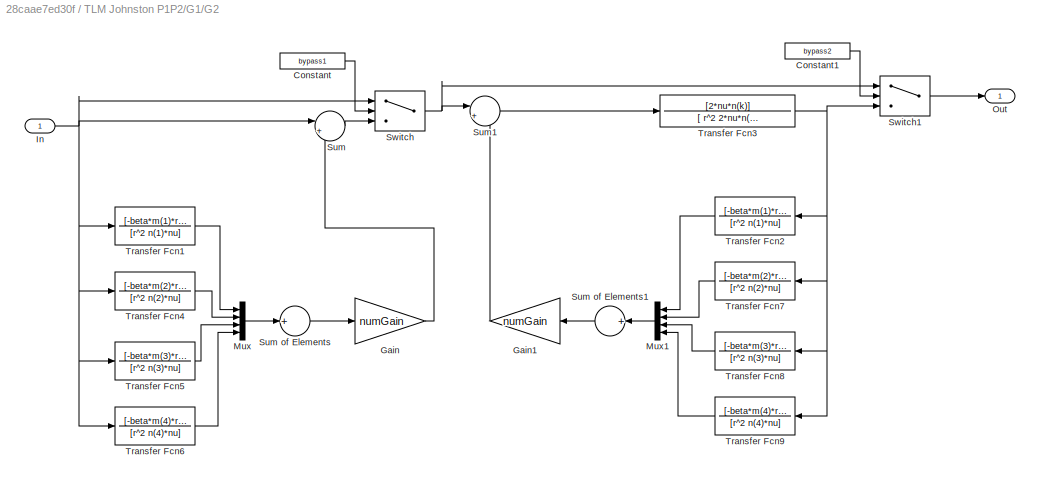
BLOCK [SubSystem] TLM Johnston P1P2/G1/G2
  Ports = [1, 1]
  RequestExecContextInheritance = off
BLOCK [Constant] TLM Johnston P1P2/G1/G2/Constant
  Value = bypass1
BLOCK [Constant] TLM Johnston P1P2/G1/G2/Constant1
  Value = bypass2
BLOCK [Gain] TLM Johnston P1P2/G1/G2/Gain
  Gain = numGain
  OutDataTypeStr = Inherit: Inherit via internal rule
  ParamDataTypeStr = Inherit: Inherit via internal rule
  SaturateOnIntegerOverflow = off
BLOCK [Gain] TLM Johnston P1P2/G1/G2/Gain1
  Gain = numGain
  OutDataTypeStr = Inherit: Inherit via internal rule
  ParamDataTypeStr = Inherit: Inherit via internal rule
  SaturateOnIntegerOverflow = off
BLOCK [Inport] TLM Johnston P1P2/G1/G2/In
  IconDisplay = Port number
BLOCK [Mux] TLM Johnston P1P2/G1/G2/Mux
  DisplayOption = bar
  Ports = [4, 1]
BLOCK [Mux] TLM Johnston P1P2/G1/G2/Mux1
  DisplayOption = bar
  Ports = [4, 1]
BLOCK [Outport] TLM Johnston P1P2/G1/G2/Out
  IconDisplay = Port number
BLOCK [Sum] TLM Johnston P1P2/G1/G2/Sum
  IconShape = round
  InputSameDT = off
  Inputs = |++
  OutDataTypeStr = Inherit: Inherit via internal rule
  Ports = [2, 1]
  SaturateOnIntegerOverflow = off
BLOCK [Sum] TLM Johnston P1P2/G1/G2/Sum of Elements
  InputSameDT = off
  Inputs = +
  OutDataTypeStr = Inherit: Inherit via internal rule
  Ports = [1, 1]
  SaturateOnIntegerOverflow = off
BLOCK [Sum] TLM Johnston P1P2/G1/G2/Sum of Elements1
  InputSameDT = off
  Inputs = +
  OutDataTypeStr = Inherit: Inherit via internal rule
  Ports = [1, 1]
  SaturateOnIntegerOverflow = off
BLOCK [Sum] TLM Johnston P1P2/G1/G2/Sum1
  IconShape = round
  InputSameDT = off
  Inputs = |++
  OutDataTypeStr = Inherit: Inherit via internal rule
  Ports = [2, 1]
  SaturateOnIntegerOverflow = off
BLOCK [Switch] TLM Johnston P1P2/G1/G2/Switch
  Criteria = u2 ~= 0
  InputSameDT = off
  SaturateOnIntegerOverflow = off
BLOCK [Switch] TLM Johnston P1P2/G1/G2/Switch1
  Criteria = u2 ~= 0
  InputSameDT = off
  SaturateOnIntegerOverflow = off
BLOCK [TransferFcn] TLM Johnston P1P2/G1/G2/Transfer Fcn1
  Denominator = [r^2 n(1)*nu]
  Numerator = [-beta*m(1)*r^2 0]
BLOCK [TransferFcn] TLM Johnston P1P2/G1/G2/Transfer Fcn2
  Denominator = [r^2 n(1)*nu]
  Numerator = [-beta*m(1)*r^2 0]
BLOCK [TransferFcn] TLM Johnston P1P2/G1/G2/Transfer Fcn3
  Denominator = [ r^2 2*nu*n(k)]
  Numerator = [2*nu*n(k)]
BLOCK [TransferFcn] TLM Johnston P1P2/G1/G2/Transfer Fcn4
  Denominator = [r^2 n(2)*nu]
  Numerator = [-beta*m(2)*r^2 0]
BLOCK [TransferFcn] TLM Johnston P1P2/G1/G2/Transfer Fcn5
  Denominator = [r^2 n(3)*nu]
  Numerator = [-beta*m(3)*r^2 0]
BLOCK [TransferFcn] TLM Johnston P1P2/G1/G2/Transfer Fcn6
  Denominator = [r^2 n(4)*nu]
  Numerator = [-beta*m(4)*r^2 0]
BLOCK [TransferFcn] TLM Johnston P1P2/G1/G2/Transfer Fcn7
  Denominator = [r^2 n(2)*nu]
  Numerator = [-beta*m(2)*r^2 0]
BLOCK [TransferFcn] TLM Johnston P1P2/G1/G2/Transfer Fcn8
  Denominator = [r^2 n(3)*nu]
  Numerator = [-beta*m(3)*r^2 0]
BLOCK [TransferFcn] TLM Johnston P1P2/G1/G2/Transfer Fcn9
  Denominator = [r^2 n(4)*nu]
  Numerator = [-beta*m(4)*r^2 0]
BLOCK [Inport] TLM Johnston P1P2/G1/In
  IconDisplay = Port number
BLOCK [Outport] TLM Johnston P1P2/G1/Out
  IconDisplay = Port number
BLOCK [TransferFcn] TLM Johnston P1P2/G1/Transfer Fcn
  Denominator = [K*beta*r^2/nu 1]
  Numerator = [K*beta*r^2/nu*exp(-4*beta) 1]
BLOCK [SubSystem] TLM Johnston P1P2/G2
  Ports = [1, 1]
  RequestExecContextInheritance = off
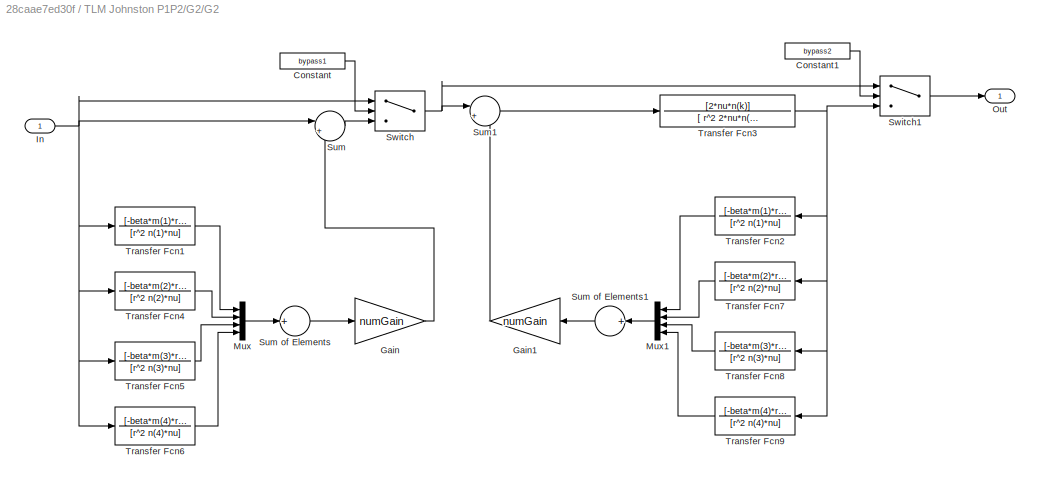
BLOCK [SubSystem] TLM Johnston P1P2/G2/G2
  Ports = [1, 1]
  RequestExecContextInheritance = off
BLOCK [Constant] TLM Johnston P1P2/G2/G2/Constant
  Value = bypass1
BLOCK [Constant] TLM Johnston P1P2/G2/G2/Constant1
  Value = bypass2
BLOCK [Gain] TLM Johnston P1P2/G2/G2/Gain
  Gain = numGain
  OutDataTypeStr = Inherit: Inherit via internal rule
  ParamDataTypeStr = Inherit: Inherit via internal rule
  SaturateOnIntegerOverflow = off
BLOCK [Gain] TLM Johnston P1P2/G2/G2/Gain1
  Gain = numGain
  OutDataTypeStr = Inherit: Inherit via internal rule
  ParamDataTypeStr = Inherit: Inherit via internal rule
  SaturateOnIntegerOverflow = off
BLOCK [Inport] TLM Johnston P1P2/G2/G2/In
  IconDisplay = Port number
BLOCK [Mux] TLM Johnston P1P2/G2/G2/Mux
  DisplayOption = bar
  Ports = [4, 1]
BLOCK [Mux] TLM Johnston P1P2/G2/G2/Mux1
  DisplayOption = bar
  Ports = [4, 1]
BLOCK [Outport] TLM Johnston P1P2/G2/G2/Out
  IconDisplay = Port number
BLOCK [Sum] TLM Johnston P1P2/G2/G2/Sum
  IconShape = round
  InputSameDT = off
  Inputs = |++
  OutDataTypeStr = Inherit: Inherit via internal rule
  Ports = [2, 1]
  SaturateOnIntegerOverflow = off
BLOCK [Sum] TLM Johnston P1P2/G2/G2/Sum of Elements
  InputSameDT = off
  Inputs = +
  OutDataTypeStr = Inherit: Inherit via internal rule
  Ports = [1, 1]
  SaturateOnIntegerOverflow = off
BLOCK [Sum] TLM Johnston P1P2/G2/G2/Sum of Elements1
  InputSameDT = off
  Inputs = +
  OutDataTypeStr = Inherit: Inherit via internal rule
  Ports = [1, 1]
  SaturateOnIntegerOverflow = off
BLOCK [Sum] TLM Johnston P1P2/G2/G2/Sum1
  IconShape = round
  InputSameDT = off
  Inputs = |++
  OutDataTypeStr = Inherit: Inherit via internal rule
  Ports = [2, 1]
  SaturateOnIntegerOverflow = off
BLOCK [Switch] TLM Johnston P1P2/G2/G2/Switch
  Criteria = u2 ~= 0
  InputSameDT = off
  SaturateOnIntegerOverflow = off
BLOCK [Switch] TLM Johnston P1P2/G2/G2/Switch1
  Criteria = u2 ~= 0
  InputSameDT = off
  SaturateOnIntegerOverflow = off
BLOCK [TransferFcn] TLM Johnston P1P2/G2/G2/Transfer Fcn1
  Denominator = [r^2 n(1)*nu]
  Numerator = [-beta*m(1)*r^2 0]
BLOCK [TransferFcn] TLM Johnston P1P2/G2/G2/Transfer Fcn2
  Denominator = [r^2 n(1)*nu]
  Numerator = [-beta*m(1)*r^2 0]
BLOCK [TransferFcn] TLM Johnston P1P2/G2/G2/Transfer Fcn3
  Denominator = [ r^2 2*nu*n(k)]
  Numerator = [2*nu*n(k)]
BLOCK [TransferFcn] TLM Johnston P1P2/G2/G2/Transfer Fcn4
  Denominator = [r^2 n(2)*nu]
  Numerator = [-beta*m(2)*r^2 0]
BLOCK [TransferFcn] TLM Johnston P1P2/G2/G2/Transfer Fcn5
  Denominator = [r^2 n(3)*nu]
  Numerator = [-beta*m(3)*r^2 0]
BLOCK [TransferFcn] TLM Johnston P1P2/G2/G2/Transfer Fcn6
  Denominator = [r^2 n(4)*nu]
  Numerator = [-beta*m(4)*r^2 0]
BLOCK [TransferFcn] TLM Johnston P1P2/G2/G2/Transfer Fcn7
  Denominator = [r^2 n(2)*nu]
  Numerator = [-beta*m(2)*r^2 0]
BLOCK [TransferFcn] TLM Johnston P1P2/G2/G2/Transfer Fcn8
  Denominator = [r^2 n(3)*nu]
  Numerator = [-beta*m(3)*r^2 0]
BLOCK [TransferFcn] TLM Johnston P1P2/G2/G2/Transfer Fcn9
  Denominator = [r^2 n(4)*nu]
  Numerator = [-beta*m(4)*r^2 0]
BLOCK [Inport] TLM Johnston P1P2/G2/In
  IconDisplay = Port number
BLOCK [Outport] TLM Johnston P1P2/G2/Out
  IconDisplay = Port number
BLOCK [TransferFcn] TLM Johnston P1P2/G2/Transfer Fcn
  Denominator = [K*beta*r^2/nu 1]
  Numerator = [K*beta*r^2/nu*exp(-4*beta) 1]
BLOCK [Gain] TLM Johnston P1P2/Gain
  Gain = Zc
  OutDataTypeStr = Inherit: Inherit via internal rule
  ParamDataTypeStr = Inherit: Inherit via internal rule
  SaturateOnIntegerOverflow = off
BLOCK [Gain] TLM Johnston P1P2/Gain1
  Gain = Zc
  OutDataTypeStr = Inherit: Inherit via internal rule
  ParamDataTypeStr = Inherit: Inherit via internal rule
  SaturateOnIntegerOverflow = off
BLOCK [Outport] TLM Johnston P1P2/P1
  IconDisplay = Port number
BLOCK [Outport] TLM Johnston P1P2/P2
  IconDisplay = Port number
  Port = 2
BLOCK [Inport] TLM Johnston P1P2/Q1
  IconDisplay = Port number
BLOCK [Inport] TLM Johnston P1P2/Q2
  IconDisplay = Port number
  Port = 2
BLOCK [Sum] TLM Johnston P1P2/Sum
  IconShape = round
  InputSameDT = off
  Inputs = |++
  OutDataTypeStr = Inherit: Inherit via internal rule
  Ports = [2, 1]
  SaturateOnIntegerOverflow = off
BLOCK [Sum] TLM Johnston P1P2/Sum1
  IconShape = round
  InputSameDT = off
  Inputs = ++|
  OutDataTypeStr = Inherit: Inherit via internal rule
  Ports = [2, 1]
  SaturateOnIntegerOverflow = off
BLOCK [Sum] TLM Johnston P1P2/Sum2
  IconShape = round
  InputSameDT = off
  Inputs = ++|
  OutDataTypeStr = Inherit: Inherit via internal rule
  Ports = [2, 1]
  SaturateOnIntegerOverflow = off
BLOCK [Sum] TLM Johnston P1P2/Sum3
  IconShape = round
  InputSameDT = off
  Inputs = |++
  OutDataTypeStr = Inherit: Inherit via internal rule
  Ports = [2, 1]
  SaturateOnIntegerOverflow = off
BLOCK [Sum] TLM Johnston P1P2/Sum4
  IconShape = round
  InputSameDT = off
  Inputs = |++
  OutDataTypeStr = Inherit: Inherit via internal rule
  Ports = [2, 1]
  SaturateOnIntegerOverflow = off
BLOCK [Sum] TLM Johnston P1P2/Sum5
  IconShape = round
  InputSameDT = off
  Inputs = ++|
  OutDataTypeStr = Inherit: Inherit via internal rule
  Ports = [2, 1]
  SaturateOnIntegerOverflow = off
BLOCK [TransportDelay] TLM Johnston P1P2/Transport Delay1
  DelayTime = T
  Ports = [1, 1]
BLOCK [TransportDelay] TLM Johnston P1P2/Transport Delay2
  DelayTime = T
  Ports = [1, 1]
BLOCK [SubSystem] TLM Johnston P1Q2
  Ports = [2, 2]
  RequestExecContextInheritance = off
BLOCK [SubSystem] TLM Johnston P1Q2/Ea
  Ports = [1, 1]
  RequestExecContextInheritance = off
BLOCK [Inport] TLM Johnston P1Q2/Ea/In
  IconDisplay = Port number
BLOCK [Outport] TLM Johnston P1Q2/Ea/Out
  IconDisplay = Port number
BLOCK [TransferFcn] TLM Johnston P1Q2/Ea/Transfer Fcn
  Denominator = [K*T 1]
  Numerator = [R]
BLOCK [SubSystem] TLM Johnston P1Q2/Eb
  Ports = [1, 1]
  RequestExecContextInheritance = off
BLOCK [Inport] TLM Johnston P1Q2/Eb/In
  IconDisplay = Port number
BLOCK [Outport] TLM Johnston P1Q2/Eb/Out
  IconDisplay = Port number
BLOCK [TransferFcn] TLM Johnston P1Q2/Eb/Transfer Fcn
  Denominator = [K*T 1]
  Numerator = [R]
BLOCK [SubSystem] TLM Johnston P1Q2/Fa
  Ports = [1, 1]
  RequestExecContextInheritance = off
BLOCK [Gain] TLM Johnston P1Q2/Fa/Gain
  Gain = Zc
  OutDataTypeStr = Inherit: Inherit via internal rule
  ParamDataTypeStr = Inherit: Inherit via internal rule
  SaturateOnIntegerOverflow = off
BLOCK [Inport] TLM Johnston P1Q2/Fa/In
  IconDisplay = Port number
BLOCK [Outport] TLM Johnston P1Q2/Fa/Out
  IconDisplay = Port number
BLOCK [SubSystem] TLM Johnston P1Q2/Fb
  Ports = [1, 1]
  RequestExecContextInheritance = off
BLOCK [Gain] TLM Johnston P1Q2/Fb/Gain
  Gain = Zc
  OutDataTypeStr = Inherit: Inherit via internal rule
  ParamDataTypeStr = Inherit: Inherit via internal rule
  SaturateOnIntegerOverflow = off
BLOCK [Inport] TLM Johnston P1Q2/Fb/In
  IconDisplay = Port number
BLOCK [Outport] TLM Johnston P1Q2/Fb/Out
  IconDisplay = Port number
BLOCK [SubSystem] TLM Johnston P1Q2/Ga
  Ports = [1, 1]
  RequestExecContextInheritance = off
BLOCK [SubSystem] TLM Johnston P1Q2/Ga/G2
  Ports = [1, 1]
  RequestExecContextInheritance = off
BLOCK [Constant] TLM Johnston P1Q2/Ga/G2/Constant
  Value = bypass1
BLOCK [Constant] TLM Johnston P1Q2/Ga/G2/Constant1
  Value = bypass2
BLOCK [Gain] TLM Johnston P1Q2/Ga/G2/Gain
  Gain = numGain
  OutDataTypeStr = Inherit: Inherit via internal rule
  ParamDataTypeStr = Inherit: Inherit via internal rule
  SaturateOnIntegerOverflow = off
BLOCK [Gain] TLM Johnston P1Q2/Ga/G2/Gain1
  Gain = numGain
  OutDataTypeStr = Inherit: Inherit via internal rule
  ParamDataTypeStr = Inherit: Inherit via internal rule
  SaturateOnIntegerOverflow = off
BLOCK [Inport] TLM Johnston P1Q2/Ga/G2/In
  IconDisplay = Port number
BLOCK [Mux] TLM Johnston P1Q2/Ga/G2/Mux
  DisplayOption = bar
  Ports = [4, 1]
BLOCK [Mux] TLM Johnston P1Q2/Ga/G2/Mux1
  DisplayOption = bar
  Ports = [4, 1]
BLOCK [Outport] TLM Johnston P1Q2/Ga/G2/Out
  IconDisplay = Port number
BLOCK [Sum] TLM Johnston P1Q2/Ga/G2/Sum
  IconShape = round
  InputSameDT = off
  Inputs = |++
  OutDataTypeStr = Inherit: Inherit via internal rule
  Ports = [2, 1]
  SaturateOnIntegerOverflow = off
BLOCK [Sum] TLM Johnston P1Q2/Ga/G2/Sum of Elements
  InputSameDT = off
  Inputs = +
  OutDataTypeStr = Inherit: Inherit via internal rule
  Ports = [1, 1]
  SaturateOnIntegerOverflow = off
BLOCK [Sum] TLM Johnston P1Q2/Ga/G2/Sum of Elements1
  InputSameDT = off
  Inputs = +
  OutDataTypeStr = Inherit: Inherit via internal rule
  Ports = [1, 1]
  SaturateOnIntegerOverflow = off
BLOCK [Sum] TLM Johnston P1Q2/Ga/G2/Sum1
  IconShape = round
  InputSameDT = off
  Inputs = |++
  OutDataTypeStr = Inherit: Inherit via internal rule
  Ports = [2, 1]
  SaturateOnIntegerOverflow = off
BLOCK [Switch] TLM Johnston P1Q2/Ga/G2/Switch
  Criteria = u2 ~= 0
  InputSameDT = off
  SaturateOnIntegerOverflow = off
BLOCK [Switch] TLM Johnston P1Q2/Ga/G2/Switch1
  Criteria = u2 ~= 0
  InputSameDT = off
  SaturateOnIntegerOverflow = off
BLOCK [TransferFcn] TLM Johnston P1Q2/Ga/G2/Transfer Fcn1
  Denominator = [r^2 n(1)*nu]
  Numerator = [-beta*m(1)*r^2 0]
BLOCK [TransferFcn] TLM Johnston P1Q2/Ga/G2/Transfer Fcn2
  Denominator = [r^2 n(1)*nu]
  Numerator = [-beta*m(1)*r^2 0]
BLOCK [TransferFcn] TLM Johnston P1Q2/Ga/G2/Transfer Fcn3
  Denominator = [ r^2 2*nu*n(k)]
  Numerator = [2*nu*n(k)]
BLOCK [TransferFcn] TLM Johnston P1Q2/Ga/G2/Transfer Fcn4
  Denominator = [r^2 n(2)*nu]
  Numerator = [-beta*m(2)*r^2 0]
BLOCK [TransferFcn] TLM Johnston P1Q2/Ga/G2/Transfer Fcn5
  Denominator = [r^2 n(3)*nu]
  Numerator = [-beta*m(3)*r^2 0]
BLOCK [TransferFcn] TLM Johnston P1Q2/Ga/G2/Transfer Fcn6
  Denominator = [r^2 n(4)*nu]
  Numerator = [-beta*m(4)*r^2 0]
BLOCK [TransferFcn] TLM Johnston P1Q2/Ga/G2/Transfer Fcn7
  Denominator = [r^2 n(2)*nu]
  Numerator = [-beta*m(2)*r^2 0]
BLOCK [TransferFcn] TLM Johnston P1Q2/Ga/G2/Transfer Fcn8
  Denominator = [r^2 n(3)*nu]
  Numerator = [-beta*m(3)*r^2 0]
BLOCK [TransferFcn] TLM Johnston P1Q2/Ga/G2/Transfer Fcn9
  Denominator = [r^2 n(4)*nu]
  Numerator = [-beta*m(4)*r^2 0]
BLOCK [Inport] TLM Johnston P1Q2/Ga/In
  IconDisplay = Port number
BLOCK [Outport] TLM Johnston P1Q2/Ga/Out
  IconDisplay = Port number
BLOCK [TransferFcn] TLM Johnston P1Q2/Ga/Transfer Fcn
  Denominator = [K*beta*r^2/nu 1]
  Numerator = [K*beta*r^2/nu*exp(-4*beta) 1]
BLOCK [Gain] TLM Johnston P1Q2/Gain
  Gain = Zc
  OutDataTypeStr = Inherit: Inherit via internal rule
  ParamDataTypeStr = Inherit: Inherit via internal rule
  SaturateOnIntegerOverflow = off
BLOCK [Gain] TLM Johnston P1Q2/Gain1
  Gain = 1/Zc
  OutDataTypeStr = Inherit: Inherit via internal rule
  ParamDataTypeStr = Inherit: Inherit via internal rule
  SaturateOnIntegerOverflow = off
BLOCK [SubSystem] TLM Johnston P1Q2/Gb
  Ports = [1, 1]
  RequestExecContextInheritance = off
BLOCK [SubSystem] TLM Johnston P1Q2/Gb/G2
  Ports = [1, 1]
  RequestExecContextInheritance = off
BLOCK [Constant] TLM Johnston P1Q2/Gb/G2/Constant
  Value = bypass1
BLOCK [Constant] TLM Johnston P1Q2/Gb/G2/Constant1
  Value = bypass2
BLOCK [Gain] TLM Johnston P1Q2/Gb/G2/Gain
  Gain = numGain
  OutDataTypeStr = Inherit: Inherit via internal rule
  ParamDataTypeStr = Inherit: Inherit via internal rule
  SaturateOnIntegerOverflow = off
BLOCK [Gain] TLM Johnston P1Q2/Gb/G2/Gain1
  Gain = numGain
  OutDataTypeStr = Inherit: Inherit via internal rule
  ParamDataTypeStr = Inherit: Inherit via internal rule
  SaturateOnIntegerOverflow = off
BLOCK [Inport] TLM Johnston P1Q2/Gb/G2/In
  IconDisplay = Port number
BLOCK [Mux] TLM Johnston P1Q2/Gb/G2/Mux
  DisplayOption = bar
  Ports = [4, 1]
BLOCK [Mux] TLM Johnston P1Q2/Gb/G2/Mux1
  DisplayOption = bar
  Ports = [4, 1]
BLOCK [Outport] TLM Johnston P1Q2/Gb/G2/Out
  IconDisplay = Port number
BLOCK [Sum] TLM Johnston P1Q2/Gb/G2/Sum
  IconShape = round
  InputSameDT = off
  Inputs = |++
  OutDataTypeStr = Inherit: Inherit via internal rule
  Ports = [2, 1]
  SaturateOnIntegerOverflow = off
BLOCK [Sum] TLM Johnston P1Q2/Gb/G2/Sum of Elements
  InputSameDT = off
  Inputs = +
  OutDataTypeStr = Inherit: Inherit via internal rule
  Ports = [1, 1]
  SaturateOnIntegerOverflow = off
BLOCK [Sum] TLM Johnston P1Q2/Gb/G2/Sum of Elements1
  InputSameDT = off
  Inputs = +
  OutDataTypeStr = Inherit: Inherit via internal rule
  Ports = [1, 1]
  SaturateOnIntegerOverflow = off
BLOCK [Sum] TLM Johnston P1Q2/Gb/G2/Sum1
  IconShape = round
  InputSameDT = off
  Inputs = |++
  OutDataTypeStr = Inherit: Inherit via internal rule
  Ports = [2, 1]
  SaturateOnIntegerOverflow = off
BLOCK [Switch] TLM Johnston P1Q2/Gb/G2/Switch
  Criteria = u2 ~= 0
  InputSameDT = off
  SaturateOnIntegerOverflow = off
BLOCK [Switch] TLM Johnston P1Q2/Gb/G2/Switch1
  Criteria = u2 ~= 0
  InputSameDT = off
  SaturateOnIntegerOverflow = off
BLOCK [TransferFcn] TLM Johnston P1Q2/Gb/G2/Transfer Fcn1
  Denominator = [r^2 n(1)*nu]
  Numerator = [-beta*m(1)*r^2 0]
BLOCK [TransferFcn] TLM Johnston P1Q2/Gb/G2/Transfer Fcn2
  Denominator = [r^2 n(1)*nu]
  Numerator = [-beta*m(1)*r^2 0]
BLOCK [TransferFcn] TLM Johnston P1Q2/Gb/G2/Transfer Fcn3
  Denominator = [ r^2 2*nu*n(k)]
  Numerator = [2*nu*n(k)]
BLOCK [TransferFcn] TLM Johnston P1Q2/Gb/G2/Transfer Fcn4
  Denominator = [r^2 n(2)*nu]
  Numerator = [-beta*m(2)*r^2 0]
BLOCK [TransferFcn] TLM Johnston P1Q2/Gb/G2/Transfer Fcn5
  Denominator = [r^2 n(3)*nu]
  Numerator = [-beta*m(3)*r^2 0]
BLOCK [TransferFcn] TLM Johnston P1Q2/Gb/G2/Transfer Fcn6
  Denominator = [r^2 n(4)*nu]
  Numerator = [-beta*m(4)*r^2 0]
BLOCK [TransferFcn] TLM Johnston P1Q2/Gb/G2/Transfer Fcn7
  Denominator = [r^2 n(2)*nu]
  Numerator = [-beta*m(2)*r^2 0]
BLOCK [TransferFcn] TLM Johnston P1Q2/Gb/G2/Transfer Fcn8
  Denominator = [r^2 n(3)*nu]
  Numerator = [-beta*m(3)*r^2 0]
BLOCK [TransferFcn] TLM Johnston P1Q2/Gb/G2/Transfer Fcn9
  Denominator = [r^2 n(4)*nu]
  Numerator = [-beta*m(4)*r^2 0]
BLOCK [Inport] TLM Johnston P1Q2/Gb/In
  IconDisplay = Port number
BLOCK [Outport] TLM Johnston P1Q2/Gb/Out
  IconDisplay = Port number
BLOCK [TransferFcn] TLM Johnston P1Q2/Gb/Transfer Fcn
  Denominator = [K*beta*r^2/nu 1]
  Numerator = [K*beta*r^2/nu*exp(-4*beta) 1]
BLOCK [Outport] TLM Johnston P1Q2/P1
  IconDisplay = Port number
BLOCK [Inport] TLM Johnston P1Q2/P2
  IconDisplay = Port number
  Port = 2
BLOCK [Inport] TLM Johnston P1Q2/Q1
  IconDisplay = Port number
BLOCK [Outport] TLM Johnston P1Q2/Q2
  IconDisplay = Port number
  Port = 2
BLOCK [Sum] TLM Johnston P1Q2/Sum
  IconShape = round
  InputSameDT = off
  Inputs = |++
  OutDataTypeStr = Inherit: Inherit via internal rule
  Ports = [2, 1]
  SaturateOnIntegerOverflow = off
BLOCK [Sum] TLM Johnston P1Q2/Sum1
  IconShape = round
  InputSameDT = off
  Inputs = ++|
  OutDataTypeStr = Inherit: Inherit via internal rule
  Ports = [2, 1]
  SaturateOnIntegerOverflow = off
BLOCK [Sum] TLM Johnston P1Q2/Sum2
  IconShape = round
  InputSameDT = off
  Inputs = ++|
  OutDataTypeStr = Inherit: Inherit via internal rule
  Ports = [2, 1]
  SaturateOnIntegerOverflow = off
BLOCK [Sum] TLM Johnston P1Q2/Sum3
  IconShape = round
  InputSameDT = off
  Inputs = |++
  OutDataTypeStr = Inherit: Inherit via internal rule
  Ports = [2, 1]
  SaturateOnIntegerOverflow = off
BLOCK [Sum] TLM Johnston P1Q2/Sum4
  IconShape = round
  InputSameDT = off
  Inputs = |++
  OutDataTypeStr = Inherit: Inherit via internal rule
  Ports = [2, 1]
  SaturateOnIntegerOverflow = off
BLOCK [Sum] TLM Johnston P1Q2/Sum5
  IconShape = round
  InputSameDT = off
  Inputs = -+|
  OutDataTypeStr = Inherit: Inherit via internal rule
  Ports = [2, 1]
  SaturateOnIntegerOverflow = off
BLOCK [TransportDelay] TLM Johnston P1Q2/Transport Delay1
  DelayTime = T
  Ports = [1, 1]
BLOCK [TransportDelay] TLM Johnston P1Q2/Transport Delay2
  DelayTime = T
  Ports = [1, 1]
BLOCK [SubSystem] TLM Johnston Q1P2
  Ports = [2, 2]
  RequestExecContextInheritance = off
BLOCK [SubSystem] TLM Johnston Q1P2/Ea
  Ports = [1, 1]
  RequestExecContextInheritance = off
BLOCK [Inport] TLM Johnston Q1P2/Ea/In
  IconDisplay = Port number
BLOCK [Outport] TLM Johnston Q1P2/Ea/Out
  IconDisplay = Port number
BLOCK [TransferFcn] TLM Johnston Q1P2/Ea/Transfer Fcn
  Denominator = [K*T 1]
  Numerator = [R]
BLOCK [SubSystem] TLM Johnston Q1P2/Eb
  Ports = [1, 1]
  RequestExecContextInheritance = off
BLOCK [Inport] TLM Johnston Q1P2/Eb/In
  IconDisplay = Port number
BLOCK [Outport] TLM Johnston Q1P2/Eb/Out
  IconDisplay = Port number
BLOCK [TransferFcn] TLM Johnston Q1P2/Eb/Transfer Fcn
  Denominator = [K*T 1]
  Numerator = [R]
BLOCK [SubSystem] TLM Johnston Q1P2/Fa
  Ports = [1, 1]
  RequestExecContextInheritance = off
BLOCK [Gain] TLM Johnston Q1P2/Fa/Gain
  Gain = Zc
  OutDataTypeStr = Inherit: Inherit via internal rule
  ParamDataTypeStr = Inherit: Inherit via internal rule
  SaturateOnIntegerOverflow = off
BLOCK [Inport] TLM Johnston Q1P2/Fa/In
  IconDisplay = Port number
BLOCK [Outport] TLM Johnston Q1P2/Fa/Out
  IconDisplay = Port number
BLOCK [SubSystem] TLM Johnston Q1P2/Fb
  Ports = [1, 1]
  RequestExecContextInheritance = off
BLOCK [Gain] TLM Johnston Q1P2/Fb/Gain
  Gain = Zc
  OutDataTypeStr = Inherit: Inherit via internal rule
  ParamDataTypeStr = Inherit: Inherit via internal rule
  SaturateOnIntegerOverflow = off
BLOCK [Inport] TLM Johnston Q1P2/Fb/In
  IconDisplay = Port number
BLOCK [Outport] TLM Johnston Q1P2/Fb/Out
  IconDisplay = Port number
BLOCK [SubSystem] TLM Johnston Q1P2/Ga
  Ports = [1, 1]
  RequestExecContextInheritance = off
BLOCK [SubSystem] TLM Johnston Q1P2/Ga/G2
  Ports = [1, 1]
  RequestExecContextInheritance = off
BLOCK [Constant] TLM Johnston Q1P2/Ga/G2/Constant
  Value = bypass1
BLOCK [Constant] TLM Johnston Q1P2/Ga/G2/Constant1
  Value = bypass2
BLOCK [Gain] TLM Johnston Q1P2/Ga/G2/Gain
  Gain = numGain
  OutDataTypeStr = Inherit: Inherit via internal rule
  ParamDataTypeStr = Inherit: Inherit via internal rule
  SaturateOnIntegerOverflow = off
BLOCK [Gain] TLM Johnston Q1P2/Ga/G2/Gain1
  Gain = numGain
  OutDataTypeStr = Inherit: Inherit via internal rule
  ParamDataTypeStr = Inherit: Inherit via internal rule
  SaturateOnIntegerOverflow = off
BLOCK [Inport] TLM Johnston Q1P2/Ga/G2/In
  IconDisplay = Port number
BLOCK [Mux] TLM Johnston Q1P2/Ga/G2/Mux
  DisplayOption = bar
  Ports = [4, 1]
BLOCK [Mux] TLM Johnston Q1P2/Ga/G2/Mux1
  DisplayOption = bar
  Ports = [4, 1]
BLOCK [Outport] TLM Johnston Q1P2/Ga/G2/Out
  IconDisplay = Port number
BLOCK [Sum] TLM Johnston Q1P2/Ga/G2/Sum
  IconShape = round
  InputSameDT = off
  Inputs = |++
  OutDataTypeStr = Inherit: Inherit via internal rule
  Ports = [2, 1]
  SaturateOnIntegerOverflow = off
BLOCK [Sum] TLM Johnston Q1P2/Ga/G2/Sum of Elements
  InputSameDT = off
  Inputs = +
  OutDataTypeStr = Inherit: Inherit via internal rule
  Ports = [1, 1]
  SaturateOnIntegerOverflow = off
BLOCK [Sum] TLM Johnston Q1P2/Ga/G2/Sum of Elements1
  InputSameDT = off
  Inputs = +
  OutDataTypeStr = Inherit: Inherit via internal rule
  Ports = [1, 1]
  SaturateOnIntegerOverflow = off
BLOCK [Sum] TLM Johnston Q1P2/Ga/G2/Sum1
  IconShape = round
  InputSameDT = off
  Inputs = |++
  OutDataTypeStr = Inherit: Inherit via internal rule
  Ports = [2, 1]
  SaturateOnIntegerOverflow = off
BLOCK [Switch] TLM Johnston Q1P2/Ga/G2/Switch
  Criteria = u2 ~= 0
  InputSameDT = off
  SaturateOnIntegerOverflow = off
BLOCK [Switch] TLM Johnston Q1P2/Ga/G2/Switch1
  Criteria = u2 ~= 0
  InputSameDT = off
  SaturateOnIntegerOverflow = off
BLOCK [TransferFcn] TLM Johnston Q1P2/Ga/G2/Transfer Fcn1
  Denominator = [r^2 n(1)*nu]
  Numerator = [-beta*m(1)*r^2 0]
BLOCK [TransferFcn] TLM Johnston Q1P2/Ga/G2/Transfer Fcn2
  Denominator = [r^2 n(1)*nu]
  Numerator = [-beta*m(1)*r^2 0]
BLOCK [TransferFcn] TLM Johnston Q1P2/Ga/G2/Transfer Fcn3
  Denominator = [ r^2 2*nu*n(k)]
  Numerator = [2*nu*n(k)]
BLOCK [TransferFcn] TLM Johnston Q1P2/Ga/G2/Transfer Fcn4
  Denominator = [r^2 n(2)*nu]
  Numerator = [-beta*m(2)*r^2 0]
BLOCK [TransferFcn] TLM Johnston Q1P2/Ga/G2/Transfer Fcn5
  Denominator = [r^2 n(3)*nu]
  Numerator = [-beta*m(3)*r^2 0]
BLOCK [TransferFcn] TLM Johnston Q1P2/Ga/G2/Transfer Fcn6
  Denominator = [r^2 n(4)*nu]
  Numerator = [-beta*m(4)*r^2 0]
BLOCK [TransferFcn] TLM Johnston Q1P2/Ga/G2/Transfer Fcn7
  Denominator = [r^2 n(2)*nu]
  Numerator = [-beta*m(2)*r^2 0]
BLOCK [TransferFcn] TLM Johnston Q1P2/Ga/G2/Transfer Fcn8
  Denominator = [r^2 n(3)*nu]
  Numerator = [-beta*m(3)*r^2 0]
BLOCK [TransferFcn] TLM Johnston Q1P2/Ga/G2/Transfer Fcn9
  Denominator = [r^2 n(4)*nu]
  Numerator = [-beta*m(4)*r^2 0]
BLOCK [Inport] TLM Johnston Q1P2/Ga/In
  IconDisplay = Port number
BLOCK [Outport] TLM Johnston Q1P2/Ga/Out
  IconDisplay = Port number
BLOCK [TransferFcn] TLM Johnston Q1P2/Ga/Transfer Fcn
  Denominator = [K*beta*r^2/nu 1]
  Numerator = [K*beta*r^2/nu*exp(-4*beta) 1]
BLOCK [Gain] TLM Johnston Q1P2/Gain
  Gain = 1/Zc
  OutDataTypeStr = Inherit: Inherit via internal rule
  ParamDataTypeStr = Inherit: Inherit via internal rule
  SaturateOnIntegerOverflow = off
BLOCK [Gain] TLM Johnston Q1P2/Gain1
  Gain = Zc
  OutDataTypeStr = Inherit: Inherit via internal rule
  ParamDataTypeStr = Inherit: Inherit via internal rule
  SaturateOnIntegerOverflow = off
BLOCK [SubSystem] TLM Johnston Q1P2/Gb
  Ports = [1, 1]
  RequestExecContextInheritance = off
BLOCK [SubSystem] TLM Johnston Q1P2/Gb/G2
  Ports = [1, 1]
  RequestExecContextInheritance = off
BLOCK [Constant] TLM Johnston Q1P2/Gb/G2/Constant
  Value = bypass1
BLOCK [Constant] TLM Johnston Q1P2/Gb/G2/Constant1
  Value = bypass2
BLOCK [Gain] TLM Johnston Q1P2/Gb/G2/Gain
  Gain = numGain
  OutDataTypeStr = Inherit: Inherit via internal rule
  ParamDataTypeStr = Inherit: Inherit via internal rule
  SaturateOnIntegerOverflow = off
BLOCK [Gain] TLM Johnston Q1P2/Gb/G2/Gain1
  Gain = numGain
  OutDataTypeStr = Inherit: Inherit via internal rule
  ParamDataTypeStr = Inherit: Inherit via internal rule
  SaturateOnIntegerOverflow = off
BLOCK [Inport] TLM Johnston Q1P2/Gb/G2/In
  IconDisplay = Port number
BLOCK [Mux] TLM Johnston Q1P2/Gb/G2/Mux
  DisplayOption = bar
  Ports = [4, 1]
BLOCK [Mux] TLM Johnston Q1P2/Gb/G2/Mux1
  DisplayOption = bar
  Ports = [4, 1]
BLOCK [Outport] TLM Johnston Q1P2/Gb/G2/Out
  IconDisplay = Port number
BLOCK [Sum] TLM Johnston Q1P2/Gb/G2/Sum
  IconShape = round
  InputSameDT = off
  Inputs = |++
  OutDataTypeStr = Inherit: Inherit via internal rule
  Ports = [2, 1]
  SaturateOnIntegerOverflow = off
BLOCK [Sum] TLM Johnston Q1P2/Gb/G2/Sum of Elements
  InputSameDT = off
  Inputs = +
  OutDataTypeStr = Inherit: Inherit via internal rule
  Ports = [1, 1]
  SaturateOnIntegerOverflow = off
BLOCK [Sum] TLM Johnston Q1P2/Gb/G2/Sum of Elements1
  InputSameDT = off
  Inputs = +
  OutDataTypeStr = Inherit: Inherit via internal rule
  Ports = [1, 1]
  SaturateOnIntegerOverflow = off
BLOCK [Sum] TLM Johnston Q1P2/Gb/G2/Sum1
  IconShape = round
  InputSameDT = off
  Inputs = |++
  OutDataTypeStr = Inherit: Inherit via internal rule
  Ports = [2, 1]
  SaturateOnIntegerOverflow = off
BLOCK [Switch] TLM Johnston Q1P2/Gb/G2/Switch
  Criteria = u2 ~= 0
  InputSameDT = off
  SaturateOnIntegerOverflow = off
BLOCK [Switch] TLM Johnston Q1P2/Gb/G2/Switch1
  Criteria = u2 ~= 0
  InputSameDT = off
  SaturateOnIntegerOverflow = off
BLOCK [TransferFcn] TLM Johnston Q1P2/Gb/G2/Transfer Fcn1
  Denominator = [r^2 n(1)*nu]
  Numerator = [-beta*m(1)*r^2 0]
BLOCK [TransferFcn] TLM Johnston Q1P2/Gb/G2/Transfer Fcn2
  Denominator = [r^2 n(1)*nu]
  Numerator = [-beta*m(1)*r^2 0]
BLOCK [TransferFcn] TLM Johnston Q1P2/Gb/G2/Transfer Fcn3
  Denominator = [ r^2 2*nu*n(k)]
  Numerator = [2*nu*n(k)]
BLOCK [TransferFcn] TLM Johnston Q1P2/Gb/G2/Transfer Fcn4
  Denominator = [r^2 n(2)*nu]
  Numerator = [-beta*m(2)*r^2 0]
BLOCK [TransferFcn] TLM Johnston Q1P2/Gb/G2/Transfer Fcn5
  Denominator = [r^2 n(3)*nu]
  Numerator = [-beta*m(3)*r^2 0]
BLOCK [TransferFcn] TLM Johnston Q1P2/Gb/G2/Transfer Fcn6
  Denominator = [r^2 n(4)*nu]
  Numerator = [-beta*m(4)*r^2 0]
BLOCK [TransferFcn] TLM Johnston Q1P2/Gb/G2/Transfer Fcn7
  Denominator = [r^2 n(2)*nu]
  Numerator = [-beta*m(2)*r^2 0]
BLOCK [TransferFcn] TLM Johnston Q1P2/Gb/G2/Transfer Fcn8
  Denominator = [r^2 n(3)*nu]
  Numerator = [-beta*m(3)*r^2 0]
BLOCK [TransferFcn] TLM Johnston Q1P2/Gb/G2/Transfer Fcn9
  Denominator = [r^2 n(4)*nu]
  Numerator = [-beta*m(4)*r^2 0]
BLOCK [Inport] TLM Johnston Q1P2/Gb/In
  IconDisplay = Port number
BLOCK [Outport] TLM Johnston Q1P2/Gb/Out
  IconDisplay = Port number
BLOCK [TransferFcn] TLM Johnston Q1P2/Gb/Transfer Fcn
  Denominator = [K*beta*r^2/nu 1]
  Numerator = [K*beta*r^2/nu*exp(-4*beta) 1]
BLOCK [Inport] TLM Johnston Q1P2/P1
  IconDisplay = Port number
BLOCK [Outport] TLM Johnston Q1P2/P2
  IconDisplay = Port number
  Port = 2
BLOCK [Outport] TLM Johnston Q1P2/Q1
  IconDisplay = Port number
BLOCK [Inport] TLM Johnston Q1P2/Q2
  IconDisplay = Port number
  Port = 2
BLOCK [Sum] TLM Johnston Q1P2/Sum
  IconShape = round
  InputSameDT = off
  Inputs = |++
  OutDataTypeStr = Inherit: Inherit via internal rule
  Ports = [2, 1]
  SaturateOnIntegerOverflow = off
BLOCK [Sum] TLM Johnston Q1P2/Sum1
  IconShape = round
  InputSameDT = off
  Inputs = ++|
  OutDataTypeStr = Inherit: Inherit via internal rule
  Ports = [2, 1]
  SaturateOnIntegerOverflow = off
BLOCK [Sum] TLM Johnston Q1P2/Sum2
  IconShape = round
  InputSameDT = off
  Inputs = ++|
  OutDataTypeStr = Inherit: Inherit via internal rule
  Ports = [2, 1]
  SaturateOnIntegerOverflow = off
BLOCK [Sum] TLM Johnston Q1P2/Sum3
  IconShape = round
  InputSameDT = off
  Inputs = |++
  OutDataTypeStr = Inherit: Inherit via internal rule
  Ports = [2, 1]
  SaturateOnIntegerOverflow = off
BLOCK [Sum] TLM Johnston Q1P2/Sum4
  IconShape = round
  InputSameDT = off
  Inputs = |+-
  OutDataTypeStr = Inherit: Inherit via internal rule
  Ports = [2, 1]
  SaturateOnIntegerOverflow = off
BLOCK [Sum] TLM Johnston Q1P2/Sum5
  IconShape = round
  InputSameDT = off
  Inputs = ++|
  OutDataTypeStr = Inherit: Inherit via internal rule
  Ports = [2, 1]
  SaturateOnIntegerOverflow = off
BLOCK [TransportDelay] TLM Johnston Q1P2/Transport Delay1
  DelayTime = T
  Ports = [1, 1]
BLOCK [TransportDelay] TLM Johnston Q1P2/Transport Delay2
  DelayTime = T
  Ports = [1, 1]
BLOCK [SubSystem] TLM Johnston Q1Q2
  Ports = [2, 2]
  RequestExecContextInheritance = off
BLOCK [SubSystem] TLM Johnston Q1Q2/Ea
  Ports = [1, 1]
  RequestExecContextInheritance = off
BLOCK [Inport] TLM Johnston Q1Q2/Ea/In
  IconDisplay = Port number
BLOCK [Outport] TLM Johnston Q1Q2/Ea/Out
  IconDisplay = Port number
BLOCK [TransferFcn] TLM Johnston Q1Q2/Ea/Transfer Fcn
  Denominator = [K*T 1]
  Numerator = [R]
BLOCK [SubSystem] TLM Johnston Q1Q2/Eb
  Ports = [1, 1]
  RequestExecContextInheritance = off
BLOCK [Inport] TLM Johnston Q1Q2/Eb/In
  IconDisplay = Port number
BLOCK [Outport] TLM Johnston Q1Q2/Eb/Out
  IconDisplay = Port number
BLOCK [TransferFcn] TLM Johnston Q1Q2/Eb/Transfer Fcn
  Denominator = [K*T 1]
  Numerator = [R]
BLOCK [SubSystem] TLM Johnston Q1Q2/Fa
  Ports = [1, 1]
  RequestExecContextInheritance = off
BLOCK [Gain] TLM Johnston Q1Q2/Fa/Gain
  Gain = Zc
  OutDataTypeStr = Inherit: Inherit via internal rule
  ParamDataTypeStr = Inherit: Inherit via internal rule
  SaturateOnIntegerOverflow = off
BLOCK [Inport] TLM Johnston Q1Q2/Fa/In
  IconDisplay = Port number
BLOCK [Outport] TLM Johnston Q1Q2/Fa/Out
  IconDisplay = Port number
BLOCK [SubSystem] TLM Johnston Q1Q2/Fb
  Ports = [1, 1]
  RequestExecContextInheritance = off
BLOCK [Gain] TLM Johnston Q1Q2/Fb/Gain
  Gain = Zc
  OutDataTypeStr = Inherit: Inherit via internal rule
  ParamDataTypeStr = Inherit: Inherit via internal rule
  SaturateOnIntegerOverflow = off
BLOCK [Inport] TLM Johnston Q1Q2/Fb/In
  IconDisplay = Port number
BLOCK [Outport] TLM Johnston Q1Q2/Fb/Out
  IconDisplay = Port number
BLOCK [SubSystem] TLM Johnston Q1Q2/Ga
  Ports = [1, 1]
  RequestExecContextInheritance = off
BLOCK [SubSystem] TLM Johnston Q1Q2/Ga/G2
  Ports = [1, 1]
  RequestExecContextInheritance = off
BLOCK [Constant] TLM Johnston Q1Q2/Ga/G2/Constant
  Value = bypass1
BLOCK [Constant] TLM Johnston Q1Q2/Ga/G2/Constant1
  Value = bypass2
BLOCK [Gain] TLM Johnston Q1Q2/Ga/G2/Gain
  Gain = numGain
  OutDataTypeStr = Inherit: Inherit via internal rule
  ParamDataTypeStr = Inherit: Inherit via internal rule
  SaturateOnIntegerOverflow = off
BLOCK [Gain] TLM Johnston Q1Q2/Ga/G2/Gain1
  Gain = numGain
  OutDataTypeStr = Inherit: Inherit via internal rule
  ParamDataTypeStr = Inherit: Inherit via internal rule
  SaturateOnIntegerOverflow = off
BLOCK [Inport] TLM Johnston Q1Q2/Ga/G2/In
  IconDisplay = Port number
BLOCK [Mux] TLM Johnston Q1Q2/Ga/G2/Mux
  DisplayOption = bar
  Ports = [4, 1]
BLOCK [Mux] TLM Johnston Q1Q2/Ga/G2/Mux1
  DisplayOption = bar
  Ports = [4, 1]
BLOCK [Outport] TLM Johnston Q1Q2/Ga/G2/Out
  IconDisplay = Port number
BLOCK [Sum] TLM Johnston Q1Q2/Ga/G2/Sum
  IconShape = round
  InputSameDT = off
  Inputs = |++
  OutDataTypeStr = Inherit: Inherit via internal rule
  Ports = [2, 1]
  SaturateOnIntegerOverflow = off
BLOCK [Sum] TLM Johnston Q1Q2/Ga/G2/Sum of Elements
  InputSameDT = off
  Inputs = +
  OutDataTypeStr = Inherit: Inherit via internal rule
  Ports = [1, 1]
  SaturateOnIntegerOverflow = off
BLOCK [Sum] TLM Johnston Q1Q2/Ga/G2/Sum of Elements1
  InputSameDT = off
  Inputs = +
  OutDataTypeStr = Inherit: Inherit via internal rule
  Ports = [1, 1]
  SaturateOnIntegerOverflow = off
BLOCK [Sum] TLM Johnston Q1Q2/Ga/G2/Sum1
  IconShape = round
  InputSameDT = off
  Inputs = |++
  OutDataTypeStr = Inherit: Inherit via internal rule
  Ports = [2, 1]
  SaturateOnIntegerOverflow = off
BLOCK [Switch] TLM Johnston Q1Q2/Ga/G2/Switch
  Criteria = u2 ~= 0
  InputSameDT = off
  SaturateOnIntegerOverflow = off
BLOCK [Switch] TLM Johnston Q1Q2/Ga/G2/Switch1
  Criteria = u2 ~= 0
  InputSameDT = off
  SaturateOnIntegerOverflow = off
BLOCK [TransferFcn] TLM Johnston Q1Q2/Ga/G2/Transfer Fcn1
  Denominator = [r^2 n(1)*nu]
  Numerator = [-beta*m(1)*r^2 0]
BLOCK [TransferFcn] TLM Johnston Q1Q2/Ga/G2/Transfer Fcn2
  Denominator = [r^2 n(1)*nu]
  Numerator = [-beta*m(1)*r^2 0]
BLOCK [TransferFcn] TLM Johnston Q1Q2/Ga/G2/Transfer Fcn3
  Denominator = [ r^2 2*nu*n(k)]
  Numerator = [2*nu*n(k)]
BLOCK [TransferFcn] TLM Johnston Q1Q2/Ga/G2/Transfer Fcn4
  Denominator = [r^2 n(2)*nu]
  Numerator = [-beta*m(2)*r^2 0]
BLOCK [TransferFcn] TLM Johnston Q1Q2/Ga/G2/Transfer Fcn5
  Denominator = [r^2 n(3)*nu]
  Numerator = [-beta*m(3)*r^2 0]
BLOCK [TransferFcn] TLM Johnston Q1Q2/Ga/G2/Transfer Fcn6
  Denominator = [r^2 n(4)*nu]
  Numerator = [-beta*m(4)*r^2 0]
BLOCK [TransferFcn] TLM Johnston Q1Q2/Ga/G2/Transfer Fcn7
  Denominator = [r^2 n(2)*nu]
  Numerator = [-beta*m(2)*r^2 0]
BLOCK [TransferFcn] TLM Johnston Q1Q2/Ga/G2/Transfer Fcn8
  Denominator = [r^2 n(3)*nu]
  Numerator = [-beta*m(3)*r^2 0]
BLOCK [TransferFcn] TLM Johnston Q1Q2/Ga/G2/Transfer Fcn9
  Denominator = [r^2 n(4)*nu]
  Numerator = [-beta*m(4)*r^2 0]
BLOCK [Inport] TLM Johnston Q1Q2/Ga/In
  IconDisplay = Port number
BLOCK [Outport] TLM Johnston Q1Q2/Ga/Out
  IconDisplay = Port number
BLOCK [TransferFcn] TLM Johnston Q1Q2/Ga/Transfer Fcn
  Denominator = [K*beta*r^2/nu 1]
  Numerator = [K*beta*r^2/nu*exp(-4*beta) 1]
BLOCK [Gain] TLM Johnston Q1Q2/Gain
  Gain = 1/Zc
  OutDataTypeStr = Inherit: Inherit via internal rule
  ParamDataTypeStr = Inherit: Inherit via internal rule
  SaturateOnIntegerOverflow = off
BLOCK [Gain] TLM Johnston Q1Q2/Gain1
  Gain = 1/Zc
  OutDataTypeStr = Inherit: Inherit via internal rule
  ParamDataTypeStr = Inherit: Inherit via internal rule
  SaturateOnIntegerOverflow = off
BLOCK [SubSystem] TLM Johnston Q1Q2/Gb
  Ports = [1, 1]
  RequestExecContextInheritance = off
BLOCK [SubSystem] TLM Johnston Q1Q2/Gb/G2
  Ports = [1, 1]
  RequestExecContextInheritance = off
BLOCK [Constant] TLM Johnston Q1Q2/Gb/G2/Constant
  Value = bypass1
BLOCK [Constant] TLM Johnston Q1Q2/Gb/G2/Constant1
  Value = bypass2
BLOCK [Gain] TLM Johnston Q1Q2/Gb/G2/Gain
  Gain = numGain
  OutDataTypeStr = Inherit: Inherit via internal rule
  ParamDataTypeStr = Inherit: Inherit via internal rule
  SaturateOnIntegerOverflow = off
BLOCK [Gain] TLM Johnston Q1Q2/Gb/G2/Gain1
  Gain = numGain
  OutDataTypeStr = Inherit: Inherit via internal rule
  ParamDataTypeStr = Inherit: Inherit via internal rule
  SaturateOnIntegerOverflow = off
BLOCK [Inport] TLM Johnston Q1Q2/Gb/G2/In
  IconDisplay = Port number
BLOCK [Mux] TLM Johnston Q1Q2/Gb/G2/Mux
  DisplayOption = bar
  Ports = [4, 1]
BLOCK [Mux] TLM Johnston Q1Q2/Gb/G2/Mux1
  DisplayOption = bar
  Ports = [4, 1]
BLOCK [Outport] TLM Johnston Q1Q2/Gb/G2/Out
  IconDisplay = Port number
BLOCK [Sum] TLM Johnston Q1Q2/Gb/G2/Sum
  IconShape = round
  InputSameDT = off
  Inputs = |++
  OutDataTypeStr = Inherit: Inherit via internal rule
  Ports = [2, 1]
  SaturateOnIntegerOverflow = off
BLOCK [Sum] TLM Johnston Q1Q2/Gb/G2/Sum of Elements
  InputSameDT = off
  Inputs = +
  OutDataTypeStr = Inherit: Inherit via internal rule
  Ports = [1, 1]
  SaturateOnIntegerOverflow = off
BLOCK [Sum] TLM Johnston Q1Q2/Gb/G2/Sum of Elements1
  InputSameDT = off
  Inputs = +
  OutDataTypeStr = Inherit: Inherit via internal rule
  Ports = [1, 1]
  SaturateOnIntegerOverflow = off
BLOCK [Sum] TLM Johnston Q1Q2/Gb/G2/Sum1
  IconShape = round
  InputSameDT = off
  Inputs = |++
  OutDataTypeStr = Inherit: Inherit via internal rule
  Ports = [2, 1]
  SaturateOnIntegerOverflow = off
BLOCK [Switch] TLM Johnston Q1Q2/Gb/G2/Switch
  Criteria = u2 ~= 0
  InputSameDT = off
  SaturateOnIntegerOverflow = off
BLOCK [Switch] TLM Johnston Q1Q2/Gb/G2/Switch1
  Criteria = u2 ~= 0
  InputSameDT = off
  SaturateOnIntegerOverflow = off
BLOCK [TransferFcn] TLM Johnston Q1Q2/Gb/G2/Transfer Fcn1
  Denominator = [r^2 n(1)*nu]
  Numerator = [-beta*m(1)*r^2 0]
BLOCK [TransferFcn] TLM Johnston Q1Q2/Gb/G2/Transfer Fcn2
  Denominator = [r^2 n(1)*nu]
  Numerator = [-beta*m(1)*r^2 0]
BLOCK [TransferFcn] TLM Johnston Q1Q2/Gb/G2/Transfer Fcn3
  Denominator = [ r^2 2*nu*n(k)]
  Numerator = [2*nu*n(k)]
BLOCK [TransferFcn] TLM Johnston Q1Q2/Gb/G2/Transfer Fcn4
  Denominator = [r^2 n(2)*nu]
  Numerator = [-beta*m(2)*r^2 0]
BLOCK [TransferFcn] TLM Johnston Q1Q2/Gb/G2/Transfer Fcn5
  Denominator = [r^2 n(3)*nu]
  Numerator = [-beta*m(3)*r^2 0]
BLOCK [TransferFcn] TLM Johnston Q1Q2/Gb/G2/Transfer Fcn6
  Denominator = [r^2 n(4)*nu]
  Numerator = [-beta*m(4)*r^2 0]
BLOCK [TransferFcn] TLM Johnston Q1Q2/Gb/G2/Transfer Fcn7
  Denominator = [r^2 n(2)*nu]
  Numerator = [-beta*m(2)*r^2 0]
BLOCK [TransferFcn] TLM Johnston Q1Q2/Gb/G2/Transfer Fcn8
  Denominator = [r^2 n(3)*nu]
  Numerator = [-beta*m(3)*r^2 0]
BLOCK [TransferFcn] TLM Johnston Q1Q2/Gb/G2/Transfer Fcn9
  Denominator = [r^2 n(4)*nu]
  Numerator = [-beta*m(4)*r^2 0]
BLOCK [Inport] TLM Johnston Q1Q2/Gb/In
  IconDisplay = Port number
BLOCK [Outport] TLM Johnston Q1Q2/Gb/Out
  IconDisplay = Port number
BLOCK [TransferFcn] TLM Johnston Q1Q2/Gb/Transfer Fcn
  Denominator = [K*beta*r^2/nu 1]
  Numerator = [K*beta*r^2/nu*exp(-4*beta) 1]
BLOCK [Inport] TLM Johnston Q1Q2/P1
  IconDisplay = Port number
BLOCK [Inport] TLM Johnston Q1Q2/P2
  IconDisplay = Port number
  Port = 2
BLOCK [Outport] TLM Johnston Q1Q2/Q1
  IconDisplay = Port number
BLOCK [Outport] TLM Johnston Q1Q2/Q2
  IconDisplay = Port number
  Port = 2
BLOCK [Sum] TLM Johnston Q1Q2/Sum
  IconShape = round
  InputSameDT = off
  Inputs = |++
  OutDataTypeStr = Inherit: Inherit via internal rule
  Ports = [2, 1]
  SaturateOnIntegerOverflow = off
BLOCK [Sum] TLM Johnston Q1Q2/Sum1
  IconShape = round
  InputSameDT = off
  Inputs = ++|
  OutDataTypeStr = Inherit: Inherit via internal rule
  Ports = [2, 1]
  SaturateOnIntegerOverflow = off
BLOCK [Sum] TLM Johnston Q1Q2/Sum2
  IconShape = round
  InputSameDT = off
  Inputs = ++|
  OutDataTypeStr = Inherit: Inherit via internal rule
  Ports = [2, 1]
  SaturateOnIntegerOverflow = off
BLOCK [Sum] TLM Johnston Q1Q2/Sum3
  IconShape = round
  InputSameDT = off
  Inputs = |++
  OutDataTypeStr = Inherit: Inherit via internal rule
  Ports = [2, 1]
  SaturateOnIntegerOverflow = off
BLOCK [Sum] TLM Johnston Q1Q2/Sum4
  IconShape = round
  InputSameDT = off
  Inputs = |+-
  OutDataTypeStr = Inherit: Inherit via internal rule
  Ports = [2, 1]
  SaturateOnIntegerOverflow = off
BLOCK [Sum] TLM Johnston Q1Q2/Sum5
  IconShape = round
  InputSameDT = off
  Inputs = -+|
  OutDataTypeStr = Inherit: Inherit via internal rule
  Ports = [2, 1]
  SaturateOnIntegerOverflow = off
BLOCK [TransportDelay] TLM Johnston Q1Q2/Transport Delay1
  DelayTime = T
  Ports = [1, 1]
BLOCK [TransportDelay] TLM Johnston Q1Q2/Transport Delay2
  DelayTime = T
  Ports = [1, 1]
BLOCK [SubSystem] TLM Krus P1P2
  Ports = [2, 2]
  RequestExecContextInheritance = off
BLOCK [SubSystem] TLM Krus P1P2/E1
  Ports = [1, 1]
  RequestExecContextInheritance = off
BLOCK [Inport] TLM Krus P1P2/E1/In
  IconDisplay = Port number
BLOCK [Outport] TLM Krus P1P2/E1/Out
  IconDisplay = Port number
BLOCK [TransferFcn] TLM Krus P1P2/E1/Transfer Fcn
  Denominator = [K*T 1]
  Numerator = [R]
BLOCK [SubSystem] TLM Krus P1P2/E2
  Ports = [1, 1]
  RequestExecContextInheritance = off
BLOCK [Inport] TLM Krus P1P2/E2/In
  IconDisplay = Port number
BLOCK [Outport] TLM Krus P1P2/E2/Out
  IconDisplay = Port number
BLOCK [TransferFcn] TLM Krus P1P2/E2/Transfer Fcn
  Denominator = [K*T 1]
  Numerator = [R]
BLOCK [SubSystem] TLM Krus P1P2/F1
  Ports = [1, 1]
  RequestExecContextInheritance = off
BLOCK [Gain] TLM Krus P1P2/F1/Gain
  Gain = Zc
  OutDataTypeStr = Inherit: Inherit via internal rule
  ParamDataTypeStr = Inherit: Inherit via internal rule
  SaturateOnIntegerOverflow = off
BLOCK [Inport] TLM Krus P1P2/F1/In
  IconDisplay = Port number
BLOCK [Outport] TLM Krus P1P2/F1/Out
  IconDisplay = Port number
BLOCK [SubSystem] TLM Krus P1P2/F2
  Ports = [1, 1]
  RequestExecContextInheritance = off
BLOCK [Gain] TLM Krus P1P2/F2/Gain
  Gain = Zc
  OutDataTypeStr = Inherit: Inherit via internal rule
  ParamDataTypeStr = Inherit: Inherit via internal rule
  SaturateOnIntegerOverflow = off
BLOCK [Inport] TLM Krus P1P2/F2/In
  IconDisplay = Port number
BLOCK [Outport] TLM Krus P1P2/F2/Out
  IconDisplay = Port number
BLOCK [SubSystem] TLM Krus P1P2/G1
  Ports = [1, 1]
  RequestExecContextInheritance = off
BLOCK [Inport] TLM Krus P1P2/G1/In
  IconDisplay = Port number
BLOCK [Outport] TLM Krus P1P2/G1/Out
  IconDisplay = Port number
BLOCK [TransferFcn] TLM Krus P1P2/G1/Transfer Fcn
  Denominator = [K*T 1]
  Numerator = [K*T*exp(-R*A/(2*rho*c)) 1]
BLOCK [SubSystem] TLM Krus P1P2/G2
  Ports = [1, 1]
  RequestExecContextInheritance = off
BLOCK [Inport] TLM Krus P1P2/G2/In
  IconDisplay = Port number
BLOCK [Outport] TLM Krus P1P2/G2/Out
  IconDisplay = Port number
BLOCK [TransferFcn] TLM Krus P1P2/G2/Transfer Fcn
  Denominator = [K*T 1]
  Numerator = [K*T*exp(-R*A/(2*rho*c)) 1]
BLOCK [Gain] TLM Krus P1P2/Gain
  Gain = Zc
  OutDataTypeStr = Inherit: Inherit via internal rule
  ParamDataTypeStr = Inherit: Inherit via internal rule
  SaturateOnIntegerOverflow = off
BLOCK [Gain] TLM Krus P1P2/Gain1
  Gain = Zc
  OutDataTypeStr = Inherit: Inherit via internal rule
  ParamDataTypeStr = Inherit: Inherit via internal rule
  SaturateOnIntegerOverflow = off
BLOCK [Outport] TLM Krus P1P2/P1
  IconDisplay = Port number
BLOCK [Outport] TLM Krus P1P2/P2
  IconDisplay = Port number
  Port = 2
BLOCK [Inport] TLM Krus P1P2/Q1
  IconDisplay = Port number
BLOCK [Inport] TLM Krus P1P2/Q2
  IconDisplay = Port number
  Port = 2
BLOCK [Sum] TLM Krus P1P2/Sum
  IconShape = round
  InputSameDT = off
  Inputs = |++
  OutDataTypeStr = Inherit: Inherit via internal rule
  Ports = [2, 1]
  SaturateOnIntegerOverflow = off
BLOCK [Sum] TLM Krus P1P2/Sum1
  IconShape = round
  InputSameDT = off
  Inputs = ++|
  OutDataTypeStr = Inherit: Inherit via internal rule
  Ports = [2, 1]
  SaturateOnIntegerOverflow = off
BLOCK [Sum] TLM Krus P1P2/Sum2
  IconShape = round
  InputSameDT = off
  Inputs = ++|
  OutDataTypeStr = Inherit: Inherit via internal rule
  Ports = [2, 1]
  SaturateOnIntegerOverflow = off
BLOCK [Sum] TLM Krus P1P2/Sum3
  IconShape = round
  InputSameDT = off
  Inputs = |++
  OutDataTypeStr = Inherit: Inherit via internal rule
  Ports = [2, 1]
  SaturateOnIntegerOverflow = off
BLOCK [Sum] TLM Krus P1P2/Sum4
  IconShape = round
  InputSameDT = off
  Inputs = |++
  OutDataTypeStr = Inherit: Inherit via internal rule
  Ports = [2, 1]
  SaturateOnIntegerOverflow = off
BLOCK [Sum] TLM Krus P1P2/Sum5
  IconShape = round
  InputSameDT = off
  Inputs = ++|
  OutDataTypeStr = Inherit: Inherit via internal rule
  Ports = [2, 1]
  SaturateOnIntegerOverflow = off
BLOCK [TransportDelay] TLM Krus P1P2/Transport Delay1
  DelayTime = T
  Ports = [1, 1]
BLOCK [TransportDelay] TLM Krus P1P2/Transport Delay2
  DelayTime = T
  Ports = [1, 1]
BLOCK [SubSystem] TLM Krus P1Q2
  Ports = [2, 2]
  RequestExecContextInheritance = off
BLOCK [SubSystem] TLM Krus P1Q2/E1
  Ports = [1, 1]
  RequestExecContextInheritance = off
BLOCK [Inport] TLM Krus P1Q2/E1/In
  IconDisplay = Port number
BLOCK [Outport] TLM Krus P1Q2/E1/Out
  IconDisplay = Port number
BLOCK [TransferFcn] TLM Krus P1Q2/E1/Transfer Fcn
  Denominator = [K*T 1]
  Numerator = [R]
BLOCK [SubSystem] TLM Krus P1Q2/E2
  Ports = [1, 1]
  RequestExecContextInheritance = off
BLOCK [Inport] TLM Krus P1Q2/E2/In
  IconDisplay = Port number
BLOCK [Outport] TLM Krus P1Q2/E2/Out
  IconDisplay = Port number
BLOCK [TransferFcn] TLM Krus P1Q2/E2/Transfer Fcn
  Denominator = [K*T 1]
  Numerator = [R]
BLOCK [SubSystem] TLM Krus P1Q2/F1
  Ports = [1, 1]
  RequestExecContextInheritance = off
BLOCK [Gain] TLM Krus P1Q2/F1/Gain
  Gain = Zc
  OutDataTypeStr = Inherit: Inherit via internal rule
  ParamDataTypeStr = Inherit: Inherit via internal rule
  SaturateOnIntegerOverflow = off
BLOCK [Inport] TLM Krus P1Q2/F1/In
  IconDisplay = Port number
BLOCK [Outport] TLM Krus P1Q2/F1/Out
  IconDisplay = Port number
BLOCK [SubSystem] TLM Krus P1Q2/F2
  Ports = [1, 1]
  RequestExecContextInheritance = off
BLOCK [Gain] TLM Krus P1Q2/F2/Gain
  Gain = Zc
  OutDataTypeStr = Inherit: Inherit via internal rule
  ParamDataTypeStr = Inherit: Inherit via internal rule
  SaturateOnIntegerOverflow = off
BLOCK [Inport] TLM Krus P1Q2/F2/In
  IconDisplay = Port number
BLOCK [Outport] TLM Krus P1Q2/F2/Out
  IconDisplay = Port number
BLOCK [SubSystem] TLM Krus P1Q2/G1
  Ports = [1, 1]
  RequestExecContextInheritance = off
BLOCK [Inport] TLM Krus P1Q2/G1/In
  IconDisplay = Port number
BLOCK [Outport] TLM Krus P1Q2/G1/Out
  IconDisplay = Port number
BLOCK [TransferFcn] TLM Krus P1Q2/G1/Transfer Fcn
  Denominator = [K*T 1]
  Numerator = [K*T*exp(-R*A/(2*rho*c)) 1]
BLOCK [SubSystem] TLM Krus P1Q2/G2
  Ports = [1, 1]
  RequestExecContextInheritance = off
BLOCK [Inport] TLM Krus P1Q2/G2/In
  IconDisplay = Port number
BLOCK [Outport] TLM Krus P1Q2/G2/Out
  IconDisplay = Port number
BLOCK [TransferFcn] TLM Krus P1Q2/G2/Transfer Fcn
  Denominator = [K*T 1]
  Numerator = [K*T*exp(-R*A/(2*rho*c)) 1]
BLOCK [Gain] TLM Krus P1Q2/Gain
  Gain = Zc
  OutDataTypeStr = Inherit: Inherit via internal rule
  ParamDataTypeStr = Inherit: Inherit via internal rule
  SaturateOnIntegerOverflow = off
BLOCK [Gain] TLM Krus P1Q2/Gain1
  Gain = 1/Zc
  OutDataTypeStr = Inherit: Inherit via internal rule
  ParamDataTypeStr = Inherit: Inherit via internal rule
  SaturateOnIntegerOverflow = off
BLOCK [Outport] TLM Krus P1Q2/P1
  IconDisplay = Port number
BLOCK [Inport] TLM Krus P1Q2/P2
  IconDisplay = Port number
  Port = 2
BLOCK [Inport] TLM Krus P1Q2/Q1
  IconDisplay = Port number
BLOCK [Outport] TLM Krus P1Q2/Q2
  IconDisplay = Port number
  Port = 2
BLOCK [Sum] TLM Krus P1Q2/Sum
  IconShape = round
  InputSameDT = off
  Inputs = |++
  OutDataTypeStr = Inherit: Inherit via internal rule
  Ports = [2, 1]
  SaturateOnIntegerOverflow = off
BLOCK [Sum] TLM Krus P1Q2/Sum1
  IconShape = round
  InputSameDT = off
  Inputs = ++|
  OutDataTypeStr = Inherit: Inherit via internal rule
  Ports = [2, 1]
  SaturateOnIntegerOverflow = off
BLOCK [Sum] TLM Krus P1Q2/Sum2
  IconShape = round
  InputSameDT = off
  Inputs = ++|
  OutDataTypeStr = Inherit: Inherit via internal rule
  Ports = [2, 1]
  SaturateOnIntegerOverflow = off
BLOCK [Sum] TLM Krus P1Q2/Sum3
  IconShape = round
  InputSameDT = off
  Inputs = |++
  OutDataTypeStr = Inherit: Inherit via internal rule
  Ports = [2, 1]
  SaturateOnIntegerOverflow = off
BLOCK [Sum] TLM Krus P1Q2/Sum4
  IconShape = round
  InputSameDT = off
  Inputs = |++
  OutDataTypeStr = Inherit: Inherit via internal rule
  Ports = [2, 1]
  SaturateOnIntegerOverflow = off
BLOCK [Sum] TLM Krus P1Q2/Sum5
  IconShape = round
  InputSameDT = off
  Inputs = -+|
  OutDataTypeStr = Inherit: Inherit via internal rule
  Ports = [2, 1]
  SaturateOnIntegerOverflow = off
BLOCK [TransportDelay] TLM Krus P1Q2/Transport Delay1
  DelayTime = T
  Ports = [1, 1]
BLOCK [TransportDelay] TLM Krus P1Q2/Transport Delay2
  DelayTime = T
  Ports = [1, 1]
BLOCK [SubSystem] TLM Krus Q1P2
  Ports = [2, 2]
  RequestExecContextInheritance = off
BLOCK [SubSystem] TLM Krus Q1P2/E1
  Ports = [1, 1]
  RequestExecContextInheritance = off
BLOCK [Inport] TLM Krus Q1P2/E1/In
  IconDisplay = Port number
BLOCK [Outport] TLM Krus Q1P2/E1/Out
  IconDisplay = Port number
BLOCK [TransferFcn] TLM Krus Q1P2/E1/Transfer Fcn
  Denominator = [K*T 1]
  Numerator = [R]
BLOCK [SubSystem] TLM Krus Q1P2/E2
  Ports = [1, 1]
  RequestExecContextInheritance = off
BLOCK [Inport] TLM Krus Q1P2/E2/In
  IconDisplay = Port number
BLOCK [Outport] TLM Krus Q1P2/E2/Out
  IconDisplay = Port number
BLOCK [TransferFcn] TLM Krus Q1P2/E2/Transfer Fcn
  Denominator = [K*T 1]
  Numerator = [R]
BLOCK [SubSystem] TLM Krus Q1P2/F1
  Ports = [1, 1]
  RequestExecContextInheritance = off
BLOCK [Gain] TLM Krus Q1P2/F1/Gain
  Gain = Zc
  OutDataTypeStr = Inherit: Inherit via internal rule
  ParamDataTypeStr = Inherit: Inherit via internal rule
  SaturateOnIntegerOverflow = off
BLOCK [Inport] TLM Krus Q1P2/F1/In
  IconDisplay = Port number
BLOCK [Outport] TLM Krus Q1P2/F1/Out
  IconDisplay = Port number
BLOCK [SubSystem] TLM Krus Q1P2/F2
  Ports = [1, 1]
  RequestExecContextInheritance = off
BLOCK [Gain] TLM Krus Q1P2/F2/Gain
  Gain = Zc
  OutDataTypeStr = Inherit: Inherit via internal rule
  ParamDataTypeStr = Inherit: Inherit via internal rule
  SaturateOnIntegerOverflow = off
BLOCK [Inport] TLM Krus Q1P2/F2/In
  IconDisplay = Port number
BLOCK [Outport] TLM Krus Q1P2/F2/Out
  IconDisplay = Port number
BLOCK [SubSystem] TLM Krus Q1P2/G1
  Ports = [1, 1]
  RequestExecContextInheritance = off
BLOCK [Inport] TLM Krus Q1P2/G1/In
  IconDisplay = Port number
BLOCK [Outport] TLM Krus Q1P2/G1/Out
  IconDisplay = Port number
BLOCK [TransferFcn] TLM Krus Q1P2/G1/Transfer Fcn
  Denominator = [K*T 1]
  Numerator = [K*T*exp(-R*A/(2*rho*c)) 1]
BLOCK [SubSystem] TLM Krus Q1P2/G2
  Ports = [1, 1]
  RequestExecContextInheritance = off
BLOCK [Inport] TLM Krus Q1P2/G2/In
  IconDisplay = Port number
BLOCK [Outport] TLM Krus Q1P2/G2/Out
  IconDisplay = Port number
BLOCK [TransferFcn] TLM Krus Q1P2/G2/Transfer Fcn
  Denominator = [K*T 1]
  Numerator = [K*T*exp(-R*A/(2*rho*c)) 1]
BLOCK [Gain] TLM Krus Q1P2/Gain
  Gain = 1/Zc
  OutDataTypeStr = Inherit: Inherit via internal rule
  ParamDataTypeStr = Inherit: Inherit via internal rule
  SaturateOnIntegerOverflow = off
BLOCK [Gain] TLM Krus Q1P2/Gain1
  Gain = Zc
  OutDataTypeStr = Inherit: Inherit via internal rule
  ParamDataTypeStr = Inherit: Inherit via internal rule
  SaturateOnIntegerOverflow = off
BLOCK [Inport] TLM Krus Q1P2/P1
  IconDisplay = Port number
BLOCK [Outport] TLM Krus Q1P2/P2
  IconDisplay = Port number
  Port = 2
BLOCK [Outport] TLM Krus Q1P2/Q1
  IconDisplay = Port number
BLOCK [Inport] TLM Krus Q1P2/Q2
  IconDisplay = Port number
  Port = 2
BLOCK [Sum] TLM Krus Q1P2/Sum
  IconShape = round
  InputSameDT = off
  Inputs = |++
  OutDataTypeStr = Inherit: Inherit via internal rule
  Ports = [2, 1]
  SaturateOnIntegerOverflow = off
BLOCK [Sum] TLM Krus Q1P2/Sum1
  IconShape = round
  InputSameDT = off
  Inputs = ++|
  OutDataTypeStr = Inherit: Inherit via internal rule
  Ports = [2, 1]
  SaturateOnIntegerOverflow = off
BLOCK [Sum] TLM Krus Q1P2/Sum2
  IconShape = round
  InputSameDT = off
  Inputs = ++|
  OutDataTypeStr = Inherit: Inherit via internal rule
  Ports = [2, 1]
  SaturateOnIntegerOverflow = off
BLOCK [Sum] TLM Krus Q1P2/Sum3
  IconShape = round
  InputSameDT = off
  Inputs = |++
  OutDataTypeStr = Inherit: Inherit via internal rule
  Ports = [2, 1]
  SaturateOnIntegerOverflow = off
BLOCK [Sum] TLM Krus Q1P2/Sum4
  IconShape = round
  InputSameDT = off
  Inputs = |+-
  OutDataTypeStr = Inherit: Inherit via internal rule
  Ports = [2, 1]
  SaturateOnIntegerOverflow = off
BLOCK [Sum] TLM Krus Q1P2/Sum5
  IconShape = round
  InputSameDT = off
  Inputs = ++|
  OutDataTypeStr = Inherit: Inherit via internal rule
  Ports = [2, 1]
  SaturateOnIntegerOverflow = off
BLOCK [TransportDelay] TLM Krus Q1P2/Transport Delay1
  DelayTime = T
  Ports = [1, 1]
BLOCK [TransportDelay] TLM Krus Q1P2/Transport Delay2
  DelayTime = T
  Ports = [1, 1]
BLOCK [SubSystem] TLM Krus Q1Q2
  Ports = [2, 2]
  RequestExecContextInheritance = off
BLOCK [SubSystem] TLM Krus Q1Q2/E1
  Ports = [1, 1]
  RequestExecContextInheritance = off
BLOCK [Inport] TLM Krus Q1Q2/E1/In
  IconDisplay = Port number
BLOCK [Outport] TLM Krus Q1Q2/E1/Out
  IconDisplay = Port number
BLOCK [TransferFcn] TLM Krus Q1Q2/E1/Transfer Fcn
  Denominator = [K*T 1]
  Numerator = [R]
BLOCK [SubSystem] TLM Krus Q1Q2/E2
  Ports = [1, 1]
  RequestExecContextInheritance = off
BLOCK [Inport] TLM Krus Q1Q2/E2/In
  IconDisplay = Port number
BLOCK [Outport] TLM Krus Q1Q2/E2/Out
  IconDisplay = Port number
BLOCK [TransferFcn] TLM Krus Q1Q2/E2/Transfer Fcn
  Denominator = [K*T 1]
  Numerator = [R]
BLOCK [SubSystem] TLM Krus Q1Q2/F1
  Ports = [1, 1]
  RequestExecContextInheritance = off
BLOCK [Gain] TLM Krus Q1Q2/F1/Gain
  Gain = Zc
  OutDataTypeStr = Inherit: Inherit via internal rule
  ParamDataTypeStr = Inherit: Inherit via internal rule
  SaturateOnIntegerOverflow = off
BLOCK [Inport] TLM Krus Q1Q2/F1/In
  IconDisplay = Port number
BLOCK [Outport] TLM Krus Q1Q2/F1/Out
  IconDisplay = Port number
BLOCK [SubSystem] TLM Krus Q1Q2/F2
  Ports = [1, 1]
  RequestExecContextInheritance = off
BLOCK [Gain] TLM Krus Q1Q2/F2/Gain
  Gain = Zc
  OutDataTypeStr = Inherit: Inherit via internal rule
  ParamDataTypeStr = Inherit: Inherit via internal rule
  SaturateOnIntegerOverflow = off
BLOCK [Inport] TLM Krus Q1Q2/F2/In
  IconDisplay = Port number
BLOCK [Outport] TLM Krus Q1Q2/F2/Out
  IconDisplay = Port number
BLOCK [SubSystem] TLM Krus Q1Q2/G1
  Ports = [1, 1]
  RequestExecContextInheritance = off
BLOCK [Inport] TLM Krus Q1Q2/G1/In
  IconDisplay = Port number
BLOCK [Outport] TLM Krus Q1Q2/G1/Out
  IconDisplay = Port number
BLOCK [TransferFcn] TLM Krus Q1Q2/G1/Transfer Fcn
  Denominator = [K*T 1]
  Numerator = [K*T*exp(-R*A/(2*rho*c)) 1]
BLOCK [SubSystem] TLM Krus Q1Q2/G2
  Ports = [1, 1]
  RequestExecContextInheritance = off
BLOCK [Inport] TLM Krus Q1Q2/G2/In
  IconDisplay = Port number
BLOCK [Outport] TLM Krus Q1Q2/G2/Out
  IconDisplay = Port number
BLOCK [TransferFcn] TLM Krus Q1Q2/G2/Transfer Fcn
  Denominator = [K*T 1]
  Numerator = [K*T*exp(-R*A/(2*rho*c)) 1]
BLOCK [Gain] TLM Krus Q1Q2/Gain
  Gain = 1/Zc
  OutDataTypeStr = Inherit: Inherit via internal rule
  ParamDataTypeStr = Inherit: Inherit via internal rule
  SaturateOnIntegerOverflow = off
BLOCK [Gain] TLM Krus Q1Q2/Gain1
  Gain = 1/Zc
  OutDataTypeStr = Inherit: Inherit via internal rule
  ParamDataTypeStr = Inherit: Inherit via internal rule
  SaturateOnIntegerOverflow = off
BLOCK [Inport] TLM Krus Q1Q2/P1
  IconDisplay = Port number
BLOCK [Inport] TLM Krus Q1Q2/P2
  IconDisplay = Port number
  Port = 2
BLOCK [Outport] TLM Krus Q1Q2/Q1
  IconDisplay = Port number
BLOCK [Outport] TLM Krus Q1Q2/Q2
  IconDisplay = Port number
  Port = 2
BLOCK [Sum] TLM Krus Q1Q2/Sum
  IconShape = round
  InputSameDT = off
  Inputs = |++
  OutDataTypeStr = Inherit: Inherit via internal rule
  Ports = [2, 1]
  SaturateOnIntegerOverflow = off
BLOCK [Sum] TLM Krus Q1Q2/Sum1
  IconShape = round
  InputSameDT = off
  Inputs = ++|
  OutDataTypeStr = Inherit: Inherit via internal rule
  Ports = [2, 1]
  SaturateOnIntegerOverflow = off
BLOCK [Sum] TLM Krus Q1Q2/Sum2
  IconShape = round
  InputSameDT = off
  Inputs = ++|
  OutDataTypeStr = Inherit: Inherit via internal rule
  Ports = [2, 1]
  SaturateOnIntegerOverflow = off
BLOCK [Sum] TLM Krus Q1Q2/Sum3
  IconShape = round
  InputSameDT = off
  Inputs = |++
  OutDataTypeStr = Inherit: Inherit via internal rule
  Ports = [2, 1]
  SaturateOnIntegerOverflow = off
BLOCK [Sum] TLM Krus Q1Q2/Sum4
  IconShape = round
  InputSameDT = off
  Inputs = |+-
  OutDataTypeStr = Inherit: Inherit via internal rule
  Ports = [2, 1]
  SaturateOnIntegerOverflow = off
BLOCK [Sum] TLM Krus Q1Q2/Sum5
  IconShape = round
  InputSameDT = off
  Inputs = -+|
  OutDataTypeStr = Inherit: Inherit via internal rule
  Ports = [2, 1]
  SaturateOnIntegerOverflow = off
BLOCK [TransportDelay] TLM Krus Q1Q2/Transport Delay1
  DelayTime = T
  Ports = [1, 1]
BLOCK [TransportDelay] TLM Krus Q1Q2/Transport Delay2
  DelayTime = T
  Ports = [1, 1]
BLOCK [SubSystem] Tapered Elastic TLM P1P2
  Ports = [2, 2]
  RequestExecContextInheritance = off
BLOCK [SubSystem] Tapered Elastic TLM P1P2/  Delay_2 
  Ports = [1, 1]
  RequestExecContextInheritance = off
BLOCK [Inport] Tapered Elastic TLM P1P2/  Delay_2 /G
  IconDisplay = Port number
BLOCK [TransportDelay] Tapered Elastic TLM P1P2/  Delay_2 /Transport Delay
  DelayTime = T_prime
  Ports = [1, 1]
BLOCK [Outport] Tapered Elastic TLM P1P2/  Delay_2 /delay
  IconDisplay = Port number
BLOCK [SubSystem] Tapered Elastic TLM P1P2/Delay_1 
  Ports = [1, 1]
  RequestExecContextInheritance = off
BLOCK [Inport] Tapered Elastic TLM P1P2/Delay_1 /G
  IconDisplay = Port number
BLOCK [TransportDelay] Tapered Elastic TLM P1P2/Delay_1 /Transport Delay
  DelayTime = T_prime
  Ports = [1, 1]
BLOCK [Outport] Tapered Elastic TLM P1P2/Delay_1 /delay
  IconDisplay = Port number
BLOCK [SubSystem] Tapered Elastic TLM P1P2/E_1
  Ports = [1, 1]
  RequestExecContextInheritance = off
BLOCK [Outport] Tapered Elastic TLM P1P2/E_1/E
  IconDisplay = Port number
BLOCK [Gain] Tapered Elastic TLM P1P2/E_1/Gain
  Gain = Z_c
  OutDataTypeStr = Inherit: Inherit via internal rule
  ParamDataTypeStr = Inherit: Inherit via internal rule
  SaturateOnIntegerOverflow = off
BLOCK [Inport] Tapered Elastic TLM P1P2/E_1/Q_1
  IconDisplay = Port number
BLOCK [Sum] Tapered Elastic TLM P1P2/E_1/Sum
  IconShape = round
  InputSameDT = off
  Inputs = ++++++
  OutDataTypeStr = Inherit: Inherit via internal rule
  Ports = [6, 1]
  SaturateOnIntegerOverflow = off
BLOCK [TransferFcn] Tapered Elastic TLM P1P2/E_1/k = 1
  Denominator = [T n(1)]
  Numerator = [m_E(1)]
BLOCK [TransferFcn] Tapered Elastic TLM P1P2/E_1/k = 2
  Denominator = [T n(2)]
  Numerator = [m_E(2)]
BLOCK [TransferFcn] Tapered Elastic TLM P1P2/E_1/k = 3
  Denominator = [T n(3)]
  Numerator = [m_E(3)]
BLOCK [TransferFcn] Tapered Elastic TLM P1P2/E_1/k = 4
  Denominator = [T n(4)]
  Numerator = [m_E(4)]
BLOCK [TransferFcn] Tapered Elastic TLM P1P2/E_1/k = 5
  Denominator = [T n(5)]
  Numerator = [m_E(5)]
BLOCK [TransferFcn] Tapered Elastic TLM P1P2/E_1/k = 6
  Denominator = [T n(6)]
  Numerator = [m_E(6)]
BLOCK [SubSystem] Tapered Elastic TLM P1P2/E_2
  Ports = [1, 1]
  RequestExecContextInheritance = off
BLOCK [Outport] Tapered Elastic TLM P1P2/E_2/E
  IconDisplay = Port number
BLOCK [Gain] Tapered Elastic TLM P1P2/E_2/Gain
  Gain = Z_c
  OutDataTypeStr = Inherit: Inherit via internal rule
  ParamDataTypeStr = Inherit: Inherit via internal rule
  SaturateOnIntegerOverflow = off
BLOCK [Inport] Tapered Elastic TLM P1P2/E_2/Q_2
  IconDisplay = Port number
BLOCK [Sum] Tapered Elastic TLM P1P2/E_2/Sum
  IconShape = round
  InputSameDT = off
  Inputs = ++++++
  OutDataTypeStr = Inherit: Inherit via internal rule
  Ports = [6, 1]
  SaturateOnIntegerOverflow = off
BLOCK [TransferFcn] Tapered Elastic TLM P1P2/E_2/k = 1
  Denominator = [T n(1)]
  Numerator = [m_E(1)]
BLOCK [TransferFcn] Tapered Elastic TLM P1P2/E_2/k = 2
  Denominator = [T n(2)]
  Numerator = [m_E(2)]
BLOCK [TransferFcn] Tapered Elastic TLM P1P2/E_2/k = 3
  Denominator = [T n(3)]
  Numerator = [m_E(3)]
BLOCK [TransferFcn] Tapered Elastic TLM P1P2/E_2/k = 4
  Denominator = [T n(4)]
  Numerator = [m_E(4)]
BLOCK [TransferFcn] Tapered Elastic TLM P1P2/E_2/k = 5
  Denominator = [T n(5)]
  Numerator = [m_E(5)]
BLOCK [TransferFcn] Tapered Elastic TLM P1P2/E_2/k = 6
  Denominator = [T n(6)]
  Numerator = [m_E(6)]
BLOCK [SubSystem] Tapered Elastic TLM P1P2/F_1
  Ports = [2, 1]
  RequestExecContextInheritance = off
BLOCK [Inport] Tapered Elastic TLM P1P2/F_1/E
  IconDisplay = Port number
  Port = 2
BLOCK [Gain] Tapered Elastic TLM P1P2/F_1/Gain
  Gain = b
  OutDataTypeStr = Inherit: Inherit via internal rule
  ParamDataTypeStr = Inherit: Inherit via internal rule
  SaturateOnIntegerOverflow = off
BLOCK [Gain] Tapered Elastic TLM P1P2/F_1/Gain1
  Gain = Z_c
  OutDataTypeStr = Inherit: Inherit via internal rule
  ParamDataTypeStr = Inherit: Inherit via internal rule
  SaturateOnIntegerOverflow = off
BLOCK [Outport] Tapered Elastic TLM P1P2/F_1/Out1
  IconDisplay = Port number
BLOCK [Inport] Tapered Elastic TLM P1P2/F_1/Q_1
  IconDisplay = Port number
BLOCK [Sum] Tapered Elastic TLM P1P2/F_1/Sum
  IconShape = round
  InputSameDT = off
  OutDataTypeStr = Inherit: Inherit via internal rule
  Ports = [2, 1]
  SaturateOnIntegerOverflow = off
BLOCK [SubSystem] Tapered Elastic TLM P1P2/F_2
  Ports = [2, 1]
  RequestExecContextInheritance = off
BLOCK [Inport] Tapered Elastic TLM P1P2/F_2/E
  IconDisplay = Port number
BLOCK [Outport] Tapered Elastic TLM P1P2/F_2/F
  IconDisplay = Port number
BLOCK [Gain] Tapered Elastic TLM P1P2/F_2/Gain
  Gain = b
  OutDataTypeStr = Inherit: Inherit via internal rule
  ParamDataTypeStr = Inherit: Inherit via internal rule
  SaturateOnIntegerOverflow = off
BLOCK [Gain] Tapered Elastic TLM P1P2/F_2/Gain1
  Gain = Z_c
  OutDataTypeStr = Inherit: Inherit via internal rule
  ParamDataTypeStr = Inherit: Inherit via internal rule
  SaturateOnIntegerOverflow = off
BLOCK [Inport] Tapered Elastic TLM P1P2/F_2/Q_2
  IconDisplay = Port number
  Port = 2
BLOCK [Sum] Tapered Elastic TLM P1P2/F_2/Sum
  IconShape = round
  InputSameDT = off
  OutDataTypeStr = Inherit: Inherit via internal rule
  Ports = [2, 1]
  SaturateOnIntegerOverflow = off
BLOCK [SubSystem] Tapered Elastic TLM P1P2/G_1
  Ports = [1, 1]
  RequestExecContextInheritance = off
BLOCK [Inport] Tapered Elastic TLM P1P2/G_1/F + P_1
  IconDisplay = Port number
BLOCK [Outport] Tapered Elastic TLM P1P2/G_1/G
  IconDisplay = Port number
BLOCK [Sum] Tapered Elastic TLM P1P2/G_1/Sum
  IconShape = round
  InputSameDT = off
  Inputs = +------
  OutDataTypeStr = Inherit: Inherit via internal rule
  Ports = [7, 1]
  SaturateOnIntegerOverflow = off
BLOCK [TransferFcn] Tapered Elastic TLM P1P2/G_1/k = 1
  Denominator = [T n(1)]
  Numerator = [m_G(1)*T 0]
BLOCK [TransferFcn] Tapered Elastic TLM P1P2/G_1/k = 2
  Denominator = [T n(2)]
  Numerator = [m_G(2)*T 0]
BLOCK [TransferFcn] Tapered Elastic TLM P1P2/G_1/k = 3
  Denominator = [T n(3)]
  Numerator = [m_G(3)*T 0]
BLOCK [TransferFcn] Tapered Elastic TLM P1P2/G_1/k = 4
  Denominator = [T n(4)]
  Numerator = [m_G(4)*T 0]
BLOCK [TransferFcn] Tapered Elastic TLM P1P2/G_1/k = 5
  Denominator = [T n(5)]
  Numerator = [m_G(5)*T 0]
BLOCK [TransferFcn] Tapered Elastic TLM P1P2/G_1/k = 6
  Denominator = [T n(6)]
  Numerator = [m_G(6)*T 0]
BLOCK [SubSystem] Tapered Elastic TLM P1P2/G_2
  Ports = [1, 1]
  RequestExecContextInheritance = off
BLOCK [Inport] Tapered Elastic TLM P1P2/G_2/F + P_2
  IconDisplay = Port number
BLOCK [Outport] Tapered Elastic TLM P1P2/G_2/G
  IconDisplay = Port number
BLOCK [Sum] Tapered Elastic TLM P1P2/G_2/Sum
  IconShape = round
  InputSameDT = off
  Inputs = +------
  OutDataTypeStr = Inherit: Inherit via internal rule
  Ports = [7, 1]
  SaturateOnIntegerOverflow = off
BLOCK [TransferFcn] Tapered Elastic TLM P1P2/G_2/k = 1
  Denominator = [T n(1)]
  Numerator = [m_G(1)*T 0]
BLOCK [TransferFcn] Tapered Elastic TLM P1P2/G_2/k = 2
  Denominator = [T n(2)]
  Numerator = [m_G(2)*T 0]
BLOCK [TransferFcn] Tapered Elastic TLM P1P2/G_2/k = 3
  Denominator = [T n(3)]
  Numerator = [m_G(3)*T 0]
BLOCK [TransferFcn] Tapered Elastic TLM P1P2/G_2/k = 4
  Denominator = [T n(4)]
  Numerator = [m_G(4)*T 0]
BLOCK [TransferFcn] Tapered Elastic TLM P1P2/G_2/k = 5
  Denominator = [T n(5)]
  Numerator = [m_G(5)*T 0]
BLOCK [TransferFcn] Tapered Elastic TLM P1P2/G_2/k = 6
  Denominator = [T n(6)]
  Numerator = [m_G(6)*T 0]
BLOCK [Gain] Tapered Elastic TLM P1P2/Gain1
  Gain = Z_c
  OutDataTypeStr = Inherit: Inherit via internal rule
  ParamDataTypeStr = Inherit: Inherit via internal rule
  SaturateOnIntegerOverflow = off
BLOCK [Gain] Tapered Elastic TLM P1P2/Gain2
  Gain = Z_c
  OutDataTypeStr = Inherit: Inherit via internal rule
  ParamDataTypeStr = Inherit: Inherit via internal rule
  SaturateOnIntegerOverflow = off
BLOCK [Outport] Tapered Elastic TLM P1P2/P_1
  IconDisplay = Port number
BLOCK [Outport] Tapered Elastic TLM P1P2/P_2
  IconDisplay = Port number
  Port = 2
BLOCK [Inport] Tapered Elastic TLM P1P2/Q_1
  IconDisplay = Port number
BLOCK [Inport] Tapered Elastic TLM P1P2/Q_2
  IconDisplay = Port number
  Port = 2
BLOCK [Sum] Tapered Elastic TLM P1P2/Sum
  IconShape = round
  InputSameDT = off
  Inputs = |++
  OutDataTypeStr = Inherit: Inherit via internal rule
  Ports = [2, 1]
  SaturateOnIntegerOverflow = off
BLOCK [Sum] Tapered Elastic TLM P1P2/Sum1
  IconShape = round
  InputSameDT = off
  Inputs = |++
  OutDataTypeStr = Inherit: Inherit via internal rule
  Ports = [2, 1]
  SaturateOnIntegerOverflow = off
BLOCK [Sum] Tapered Elastic TLM P1P2/Sum2
  IconShape = round
  InputSameDT = off
  Inputs = ++|
  OutDataTypeStr = Inherit: Inherit via internal rule
  Ports = [2, 1]
  SaturateOnIntegerOverflow = off
BLOCK [Sum] Tapered Elastic TLM P1P2/Sum3
  IconShape = round
  InputSameDT = off
  Inputs = ++|
  OutDataTypeStr = Inherit: Inherit via internal rule
  Ports = [2, 1]
  SaturateOnIntegerOverflow = off
BLOCK [Sum] Tapered Elastic TLM P1P2/Sum4
  IconShape = round
  InputSameDT = off
  Inputs = |++
  OutDataTypeStr = Inherit: Inherit via internal rule
  Ports = [2, 1]
  SaturateOnIntegerOverflow = off
BLOCK [Sum] Tapered Elastic TLM P1P2/Sum5
  IconShape = round
  InputSameDT = off
  Inputs = ++|
  OutDataTypeStr = Inherit: Inherit via internal rule
  Ports = [2, 1]
  SaturateOnIntegerOverflow = off
BLOCK [SubSystem] Tapered Elastic TLM P1Q2
  Ports = [2, 2]
  RequestExecContextInheritance = off
BLOCK [SubSystem] Tapered Elastic TLM P1Q2/  Delay_2 
  Ports = [1, 1]
  RequestExecContextInheritance = off
BLOCK [Inport] Tapered Elastic TLM P1Q2/  Delay_2 /G
  IconDisplay = Port number
BLOCK [TransportDelay] Tapered Elastic TLM P1Q2/  Delay_2 /Transport Delay
  DelayTime = T_prime
  Ports = [1, 1]
BLOCK [Outport] Tapered Elastic TLM P1Q2/  Delay_2 /delay
  IconDisplay = Port number
BLOCK [SubSystem] Tapered Elastic TLM P1Q2/Delay_1 
  Ports = [1, 1]
  RequestExecContextInheritance = off
BLOCK [Inport] Tapered Elastic TLM P1Q2/Delay_1 /G
  IconDisplay = Port number
BLOCK [TransportDelay] Tapered Elastic TLM P1Q2/Delay_1 /Transport Delay
  DelayTime = T_prime
  Ports = [1, 1]
BLOCK [Outport] Tapered Elastic TLM P1Q2/Delay_1 /delay
  IconDisplay = Port number
BLOCK [SubSystem] Tapered Elastic TLM P1Q2/E_1
  Ports = [1, 1]
  RequestExecContextInheritance = off
BLOCK [Outport] Tapered Elastic TLM P1Q2/E_1/E
  IconDisplay = Port number
BLOCK [Gain] Tapered Elastic TLM P1Q2/E_1/Gain
  Gain = Z_c
  OutDataTypeStr = Inherit: Inherit via internal rule
  ParamDataTypeStr = Inherit: Inherit via internal rule
  SaturateOnIntegerOverflow = off
BLOCK [Inport] Tapered Elastic TLM P1Q2/E_1/Q_1
  IconDisplay = Port number
BLOCK [Sum] Tapered Elastic TLM P1Q2/E_1/Sum
  IconShape = round
  InputSameDT = off
  Inputs = ++++++
  OutDataTypeStr = Inherit: Inherit via internal rule
  Ports = [6, 1]
  SaturateOnIntegerOverflow = off
BLOCK [TransferFcn] Tapered Elastic TLM P1Q2/E_1/k = 1
  Denominator = [T n(1)]
  Numerator = [m_E(1)]
BLOCK [TransferFcn] Tapered Elastic TLM P1Q2/E_1/k = 2
  Denominator = [T n(2)]
  Numerator = [m_E(2)]
BLOCK [TransferFcn] Tapered Elastic TLM P1Q2/E_1/k = 3
  Denominator = [T n(3)]
  Numerator = [m_E(3)]
BLOCK [TransferFcn] Tapered Elastic TLM P1Q2/E_1/k = 4
  Denominator = [T n(4)]
  Numerator = [m_E(4)]
BLOCK [TransferFcn] Tapered Elastic TLM P1Q2/E_1/k = 5
  Denominator = [T n(5)]
  Numerator = [m_E(5)]
BLOCK [TransferFcn] Tapered Elastic TLM P1Q2/E_1/k = 6
  Denominator = [T n(6)]
  Numerator = [m_E(6)]
BLOCK [SubSystem] Tapered Elastic TLM P1Q2/E_2
  Ports = [1, 1]
  RequestExecContextInheritance = off
BLOCK [Outport] Tapered Elastic TLM P1Q2/E_2/E
  IconDisplay = Port number
BLOCK [Gain] Tapered Elastic TLM P1Q2/E_2/Gain
  Gain = Z_c
  OutDataTypeStr = Inherit: Inherit via internal rule
  ParamDataTypeStr = Inherit: Inherit via internal rule
  SaturateOnIntegerOverflow = off
BLOCK [Inport] Tapered Elastic TLM P1Q2/E_2/Q_2
  IconDisplay = Port number
BLOCK [Sum] Tapered Elastic TLM P1Q2/E_2/Sum
  IconShape = round
  InputSameDT = off
  Inputs = ++++++
  OutDataTypeStr = Inherit: Inherit via internal rule
  Ports = [6, 1]
  SaturateOnIntegerOverflow = off
BLOCK [TransferFcn] Tapered Elastic TLM P1Q2/E_2/k = 1
  Denominator = [T n(1)]
  Numerator = [m_E(1)]
BLOCK [TransferFcn] Tapered Elastic TLM P1Q2/E_2/k = 2
  Denominator = [T n(2)]
  Numerator = [m_E(2)]
BLOCK [TransferFcn] Tapered Elastic TLM P1Q2/E_2/k = 3
  Denominator = [T n(3)]
  Numerator = [m_E(3)]
BLOCK [TransferFcn] Tapered Elastic TLM P1Q2/E_2/k = 4
  Denominator = [T n(4)]
  Numerator = [m_E(4)]
BLOCK [TransferFcn] Tapered Elastic TLM P1Q2/E_2/k = 5
  Denominator = [T n(5)]
  Numerator = [m_E(5)]
BLOCK [TransferFcn] Tapered Elastic TLM P1Q2/E_2/k = 6
  Denominator = [T n(6)]
  Numerator = [m_E(6)]
BLOCK [SubSystem] Tapered Elastic TLM P1Q2/F_1
  Ports = [2, 1]
  RequestExecContextInheritance = off
BLOCK [Inport] Tapered Elastic TLM P1Q2/F_1/E
  IconDisplay = Port number
  Port = 2
BLOCK [Outport] Tapered Elastic TLM P1Q2/F_1/F
  IconDisplay = Port number
BLOCK [Gain] Tapered Elastic TLM P1Q2/F_1/Gain
  Gain = b
  OutDataTypeStr = Inherit: Inherit via internal rule
  ParamDataTypeStr = Inherit: Inherit via internal rule
  SaturateOnIntegerOverflow = off
BLOCK [Gain] Tapered Elastic TLM P1Q2/F_1/Gain1
  Gain = Z_c
  OutDataTypeStr = Inherit: Inherit via internal rule
  ParamDataTypeStr = Inherit: Inherit via internal rule
  SaturateOnIntegerOverflow = off
BLOCK [Inport] Tapered Elastic TLM P1Q2/F_1/Q_1
  IconDisplay = Port number
BLOCK [Sum] Tapered Elastic TLM P1Q2/F_1/Sum
  IconShape = round
  InputSameDT = off
  OutDataTypeStr = Inherit: Inherit via internal rule
  Ports = [2, 1]
  SaturateOnIntegerOverflow = off
BLOCK [SubSystem] Tapered Elastic TLM P1Q2/F_2
  Ports = [2, 1]
  RequestExecContextInheritance = off
BLOCK [Inport] Tapered Elastic TLM P1Q2/F_2/E
  IconDisplay = Port number
BLOCK [Gain] Tapered Elastic TLM P1Q2/F_2/Gain
  Gain = b
  OutDataTypeStr = Inherit: Inherit via internal rule
  ParamDataTypeStr = Inherit: Inherit via internal rule
  SaturateOnIntegerOverflow = off
BLOCK [Gain] Tapered Elastic TLM P1Q2/F_2/Gain1
  Gain = Z_c
  OutDataTypeStr = Inherit: Inherit via internal rule
  ParamDataTypeStr = Inherit: Inherit via internal rule
  SaturateOnIntegerOverflow = off
BLOCK [Outport] Tapered Elastic TLM P1Q2/F_2/Out1
  IconDisplay = Port number
BLOCK [Inport] Tapered Elastic TLM P1Q2/F_2/Q_2
  IconDisplay = Port number
  Port = 2
BLOCK [Sum] Tapered Elastic TLM P1Q2/F_2/Sum
  IconShape = round
  InputSameDT = off
  OutDataTypeStr = Inherit: Inherit via internal rule
  Ports = [2, 1]
  SaturateOnIntegerOverflow = off
BLOCK [SubSystem] Tapered Elastic TLM P1Q2/G_1
  Ports = [1, 1]
  RequestExecContextInheritance = off
BLOCK [Inport] Tapered Elastic TLM P1Q2/G_1/F + P_1
  IconDisplay = Port number
BLOCK [Outport] Tapered Elastic TLM P1Q2/G_1/G
  IconDisplay = Port number
BLOCK [Sum] Tapered Elastic TLM P1Q2/G_1/Sum
  IconShape = round
  InputSameDT = off
  Inputs = +------
  OutDataTypeStr = Inherit: Inherit via internal rule
  Ports = [7, 1]
  SaturateOnIntegerOverflow = off
BLOCK [TransferFcn] Tapered Elastic TLM P1Q2/G_1/k = 1
  Denominator = [T n(1)]
  Numerator = [m_G(1)*T 0]
BLOCK [TransferFcn] Tapered Elastic TLM P1Q2/G_1/k = 2
  Denominator = [T n(2)]
  Numerator = [m_G(2)*T 0]
BLOCK [TransferFcn] Tapered Elastic TLM P1Q2/G_1/k = 3
  Denominator = [T n(3)]
  Numerator = [m_G(3)*T 0]
BLOCK [TransferFcn] Tapered Elastic TLM P1Q2/G_1/k = 4
  Denominator = [T n(4)]
  Numerator = [m_G(4)*T 0]
BLOCK [TransferFcn] Tapered Elastic TLM P1Q2/G_1/k = 5
  Denominator = [T n(5)]
  Numerator = [m_G(5)*T 0]
BLOCK [TransferFcn] Tapered Elastic TLM P1Q2/G_1/k = 6
  Denominator = [T n(6)]
  Numerator = [m_G(6)*T 0]
BLOCK [SubSystem] Tapered Elastic TLM P1Q2/G_2
  Ports = [1, 1]
  RequestExecContextInheritance = off
BLOCK [Inport] Tapered Elastic TLM P1Q2/G_2/F + P_2
  IconDisplay = Port number
BLOCK [Outport] Tapered Elastic TLM P1Q2/G_2/G
  IconDisplay = Port number
BLOCK [Sum] Tapered Elastic TLM P1Q2/G_2/Sum
  IconShape = round
  InputSameDT = off
  Inputs = +------
  OutDataTypeStr = Inherit: Inherit via internal rule
  Ports = [7, 1]
  SaturateOnIntegerOverflow = off
BLOCK [TransferFcn] Tapered Elastic TLM P1Q2/G_2/k = 1
  Denominator = [T n(1)]
  Numerator = [m_G(1)*T 0]
BLOCK [TransferFcn] Tapered Elastic TLM P1Q2/G_2/k = 2
  Denominator = [T n(2)]
  Numerator = [m_G(2)*T 0]
BLOCK [TransferFcn] Tapered Elastic TLM P1Q2/G_2/k = 3
  Denominator = [T n(3)]
  Numerator = [m_G(3)*T 0]
BLOCK [TransferFcn] Tapered Elastic TLM P1Q2/G_2/k = 4
  Denominator = [T n(4)]
  Numerator = [m_G(4)*T 0]
BLOCK [TransferFcn] Tapered Elastic TLM P1Q2/G_2/k = 5
  Denominator = [T n(5)]
  Numerator = [m_G(5)*T 0]
BLOCK [TransferFcn] Tapered Elastic TLM P1Q2/G_2/k = 6
  Denominator = [T n(6)]
  Numerator = [m_G(6)*T 0]
BLOCK [Gain] Tapered Elastic TLM P1Q2/Gain1
  Gain = Z_c
  OutDataTypeStr = Inherit: Inherit via internal rule
  ParamDataTypeStr = Inherit: Inherit via internal rule
  SaturateOnIntegerOverflow = off
BLOCK [Gain] Tapered Elastic TLM P1Q2/Gain3
  Gain = 1/Z_c
  OutDataTypeStr = Inherit: Inherit via internal rule
  ParamDataTypeStr = Inherit: Inherit via internal rule
  SaturateOnIntegerOverflow = off
BLOCK [Outport] Tapered Elastic TLM P1Q2/P_1
  IconDisplay = Port number
BLOCK [Inport] Tapered Elastic TLM P1Q2/P_2
  IconDisplay = Port number
  Port = 2
BLOCK [Inport] Tapered Elastic TLM P1Q2/Q_1
  IconDisplay = Port number
BLOCK [Outport] Tapered Elastic TLM P1Q2/Q_2
  IconDisplay = Port number
  Port = 2
BLOCK [Sum] Tapered Elastic TLM P1Q2/Sum
  IconShape = round
  InputSameDT = off
  Inputs = |++
  OutDataTypeStr = Inherit: Inherit via internal rule
  Ports = [2, 1]
  SaturateOnIntegerOverflow = off
BLOCK [Sum] Tapered Elastic TLM P1Q2/Sum1
  IconShape = round
  InputSameDT = off
  Inputs = |++
  OutDataTypeStr = Inherit: Inherit via internal rule
  Ports = [2, 1]
  SaturateOnIntegerOverflow = off
BLOCK [Sum] Tapered Elastic TLM P1Q2/Sum2
  IconShape = round
  InputSameDT = off
  Inputs = ++|
  OutDataTypeStr = Inherit: Inherit via internal rule
  Ports = [2, 1]
  SaturateOnIntegerOverflow = off
BLOCK [Sum] Tapered Elastic TLM P1Q2/Sum3
  IconShape = round
  InputSameDT = off
  Inputs = ++|
  OutDataTypeStr = Inherit: Inherit via internal rule
  Ports = [2, 1]
  SaturateOnIntegerOverflow = off
BLOCK [Sum] Tapered Elastic TLM P1Q2/Sum4
  IconShape = round
  InputSameDT = off
  Inputs = |++
  OutDataTypeStr = Inherit: Inherit via internal rule
  Ports = [2, 1]
  SaturateOnIntegerOverflow = off
BLOCK [Sum] Tapered Elastic TLM P1Q2/Sum5
  IconShape = round
  InputSameDT = off
  Inputs = -+|
  OutDataTypeStr = Inherit: Inherit via internal rule
  Ports = [2, 1]
  SaturateOnIntegerOverflow = off
BLOCK [SubSystem] Tapered Elastic TLM Q1P2
  Ports = [2, 2]
  RequestExecContextInheritance = off
BLOCK [SubSystem] Tapered Elastic TLM Q1P2/  Delay_2 
  Ports = [1, 1]
  RequestExecContextInheritance = off
BLOCK [Inport] Tapered Elastic TLM Q1P2/  Delay_2 /G
  IconDisplay = Port number
BLOCK [TransportDelay] Tapered Elastic TLM Q1P2/  Delay_2 /Transport Delay
  DelayTime = T_prime
  Ports = [1, 1]
BLOCK [Outport] Tapered Elastic TLM Q1P2/  Delay_2 /delay
  IconDisplay = Port number
BLOCK [SubSystem] Tapered Elastic TLM Q1P2/Delay_1 
  Ports = [1, 1]
  RequestExecContextInheritance = off
BLOCK [Inport] Tapered Elastic TLM Q1P2/Delay_1 /G
  IconDisplay = Port number
BLOCK [TransportDelay] Tapered Elastic TLM Q1P2/Delay_1 /Transport Delay
  DelayTime = T_prime
  Ports = [1, 1]
BLOCK [Outport] Tapered Elastic TLM Q1P2/Delay_1 /delay
  IconDisplay = Port number
BLOCK [SubSystem] Tapered Elastic TLM Q1P2/E_1
  Ports = [1, 1]
  RequestExecContextInheritance = off
BLOCK [Outport] Tapered Elastic TLM Q1P2/E_1/E
  IconDisplay = Port number
BLOCK [Gain] Tapered Elastic TLM Q1P2/E_1/Gain
  Gain = Z_c
  OutDataTypeStr = Inherit: Inherit via internal rule
  ParamDataTypeStr = Inherit: Inherit via internal rule
  SaturateOnIntegerOverflow = off
BLOCK [Inport] Tapered Elastic TLM Q1P2/E_1/Q_1
  IconDisplay = Port number
BLOCK [Sum] Tapered Elastic TLM Q1P2/E_1/Sum
  IconShape = round
  InputSameDT = off
  Inputs = ++++++
  OutDataTypeStr = Inherit: Inherit via internal rule
  Ports = [6, 1]
  SaturateOnIntegerOverflow = off
BLOCK [TransferFcn] Tapered Elastic TLM Q1P2/E_1/k = 1
  Denominator = [T n(1)]
  Numerator = [m_E(1)]
BLOCK [TransferFcn] Tapered Elastic TLM Q1P2/E_1/k = 2
  Denominator = [T n(2)]
  Numerator = [m_E(2)]
BLOCK [TransferFcn] Tapered Elastic TLM Q1P2/E_1/k = 3
  Denominator = [T n(3)]
  Numerator = [m_E(3)]
BLOCK [TransferFcn] Tapered Elastic TLM Q1P2/E_1/k = 4
  Denominator = [T n(4)]
  Numerator = [m_E(4)]
BLOCK [TransferFcn] Tapered Elastic TLM Q1P2/E_1/k = 5
  Denominator = [T n(5)]
  Numerator = [m_E(5)]
BLOCK [TransferFcn] Tapered Elastic TLM Q1P2/E_1/k = 6
  Denominator = [T n(6)]
  Numerator = [m_E(6)]
BLOCK [SubSystem] Tapered Elastic TLM Q1P2/E_2
  Ports = [1, 1]
  RequestExecContextInheritance = off
BLOCK [Outport] Tapered Elastic TLM Q1P2/E_2/E
  IconDisplay = Port number
BLOCK [Gain] Tapered Elastic TLM Q1P2/E_2/Gain
  Gain = Z_c
  OutDataTypeStr = Inherit: Inherit via internal rule
  ParamDataTypeStr = Inherit: Inherit via internal rule
  SaturateOnIntegerOverflow = off
BLOCK [Inport] Tapered Elastic TLM Q1P2/E_2/Q_2
  IconDisplay = Port number
BLOCK [Sum] Tapered Elastic TLM Q1P2/E_2/Sum
  IconShape = round
  InputSameDT = off
  Inputs = ++++++
  OutDataTypeStr = Inherit: Inherit via internal rule
  Ports = [6, 1]
  SaturateOnIntegerOverflow = off
BLOCK [TransferFcn] Tapered Elastic TLM Q1P2/E_2/k = 1
  Denominator = [T n(1)]
  Numerator = [m_E(1)]
BLOCK [TransferFcn] Tapered Elastic TLM Q1P2/E_2/k = 2
  Denominator = [T n(2)]
  Numerator = [m_E(2)]
BLOCK [TransferFcn] Tapered Elastic TLM Q1P2/E_2/k = 3
  Denominator = [T n(3)]
  Numerator = [m_E(3)]
BLOCK [TransferFcn] Tapered Elastic TLM Q1P2/E_2/k = 4
  Denominator = [T n(4)]
  Numerator = [m_E(4)]
BLOCK [TransferFcn] Tapered Elastic TLM Q1P2/E_2/k = 5
  Denominator = [T n(5)]
  Numerator = [m_E(5)]
BLOCK [TransferFcn] Tapered Elastic TLM Q1P2/E_2/k = 6
  Denominator = [T n(6)]
  Numerator = [m_E(6)]
BLOCK [SubSystem] Tapered Elastic TLM Q1P2/F_1
  Ports = [2, 1]
  RequestExecContextInheritance = off
BLOCK [Inport] Tapered Elastic TLM Q1P2/F_1/E
  IconDisplay = Port number
  Port = 2
BLOCK [Outport] Tapered Elastic TLM Q1P2/F_1/F
  IconDisplay = Port number
BLOCK [Gain] Tapered Elastic TLM Q1P2/F_1/Gain
  Gain = b
  OutDataTypeStr = Inherit: Inherit via internal rule
  ParamDataTypeStr = Inherit: Inherit via internal rule
  SaturateOnIntegerOverflow = off
BLOCK [Gain] Tapered Elastic TLM Q1P2/F_1/Gain1
  Gain = Z_c
  OutDataTypeStr = Inherit: Inherit via internal rule
  ParamDataTypeStr = Inherit: Inherit via internal rule
  SaturateOnIntegerOverflow = off
BLOCK [Inport] Tapered Elastic TLM Q1P2/F_1/Q_1
  IconDisplay = Port number
BLOCK [Sum] Tapered Elastic TLM Q1P2/F_1/Sum
  IconShape = round
  InputSameDT = off
  OutDataTypeStr = Inherit: Inherit via internal rule
  Ports = [2, 1]
  SaturateOnIntegerOverflow = off
BLOCK [SubSystem] Tapered Elastic TLM Q1P2/F_2
  Ports = [2, 1]
  RequestExecContextInheritance = off
BLOCK [Inport] Tapered Elastic TLM Q1P2/F_2/E
  IconDisplay = Port number
BLOCK [Gain] Tapered Elastic TLM Q1P2/F_2/Gain
  Gain = b
  OutDataTypeStr = Inherit: Inherit via internal rule
  ParamDataTypeStr = Inherit: Inherit via internal rule
  SaturateOnIntegerOverflow = off
BLOCK [Gain] Tapered Elastic TLM Q1P2/F_2/Gain1
  Gain = Z_c
  OutDataTypeStr = Inherit: Inherit via internal rule
  ParamDataTypeStr = Inherit: Inherit via internal rule
  SaturateOnIntegerOverflow = off
BLOCK [Outport] Tapered Elastic TLM Q1P2/F_2/Out1
  IconDisplay = Port number
BLOCK [Inport] Tapered Elastic TLM Q1P2/F_2/Q_2
  IconDisplay = Port number
  Port = 2
BLOCK [Sum] Tapered Elastic TLM Q1P2/F_2/Sum
  IconShape = round
  InputSameDT = off
  OutDataTypeStr = Inherit: Inherit via internal rule
  Ports = [2, 1]
  SaturateOnIntegerOverflow = off
BLOCK [SubSystem] Tapered Elastic TLM Q1P2/G_1
  Ports = [1, 1]
  RequestExecContextInheritance = off
BLOCK [Inport] Tapered Elastic TLM Q1P2/G_1/F + P_1
  IconDisplay = Port number
BLOCK [Outport] Tapered Elastic TLM Q1P2/G_1/G
  IconDisplay = Port number
BLOCK [Sum] Tapered Elastic TLM Q1P2/G_1/Sum
  IconShape = round
  InputSameDT = off
  Inputs = +------
  OutDataTypeStr = Inherit: Inherit via internal rule
  Ports = [7, 1]
  SaturateOnIntegerOverflow = off
BLOCK [TransferFcn] Tapered Elastic TLM Q1P2/G_1/k = 1
  Denominator = [T n(1)]
  Numerator = [m_G(1)*T 0]
BLOCK [TransferFcn] Tapered Elastic TLM Q1P2/G_1/k = 2
  Denominator = [T n(2)]
  Numerator = [m_G(2)*T 0]
BLOCK [TransferFcn] Tapered Elastic TLM Q1P2/G_1/k = 3
  Denominator = [T n(3)]
  Numerator = [m_G(3)*T 0]
BLOCK [TransferFcn] Tapered Elastic TLM Q1P2/G_1/k = 4
  Denominator = [T n(4)]
  Numerator = [m_G(4)*T 0]
BLOCK [TransferFcn] Tapered Elastic TLM Q1P2/G_1/k = 5
  Denominator = [T n(5)]
  Numerator = [m_G(5)*T 0]
BLOCK [TransferFcn] Tapered Elastic TLM Q1P2/G_1/k = 6
  Denominator = [T n(6)]
  Numerator = [m_G(6)*T 0]
BLOCK [SubSystem] Tapered Elastic TLM Q1P2/G_2
  Ports = [1, 1]
  RequestExecContextInheritance = off
BLOCK [Inport] Tapered Elastic TLM Q1P2/G_2/F + P_2
  IconDisplay = Port number
BLOCK [Outport] Tapered Elastic TLM Q1P2/G_2/G
  IconDisplay = Port number
BLOCK [Sum] Tapered Elastic TLM Q1P2/G_2/Sum
  IconShape = round
  InputSameDT = off
  Inputs = +------
  OutDataTypeStr = Inherit: Inherit via internal rule
  Ports = [7, 1]
  SaturateOnIntegerOverflow = off
BLOCK [TransferFcn] Tapered Elastic TLM Q1P2/G_2/k = 1
  Denominator = [T n(1)]
  Numerator = [m_G(1)*T 0]
BLOCK [TransferFcn] Tapered Elastic TLM Q1P2/G_2/k = 2
  Denominator = [T n(2)]
  Numerator = [m_G(2)*T 0]
BLOCK [TransferFcn] Tapered Elastic TLM Q1P2/G_2/k = 3
  Denominator = [T n(3)]
  Numerator = [m_G(3)*T 0]
BLOCK [TransferFcn] Tapered Elastic TLM Q1P2/G_2/k = 4
  Denominator = [T n(4)]
  Numerator = [m_G(4)*T 0]
BLOCK [TransferFcn] Tapered Elastic TLM Q1P2/G_2/k = 5
  Denominator = [T n(5)]
  Numerator = [m_G(5)*T 0]
BLOCK [TransferFcn] Tapered Elastic TLM Q1P2/G_2/k = 6
  Denominator = [T n(6)]
  Numerator = [m_G(6)*T 0]
BLOCK [Gain] Tapered Elastic TLM Q1P2/Gain1
  Gain = Z_c
  OutDataTypeStr = Inherit: Inherit via internal rule
  ParamDataTypeStr = Inherit: Inherit via internal rule
  SaturateOnIntegerOverflow = off
BLOCK [Gain] Tapered Elastic TLM Q1P2/Gain2
  Gain = 1/Z_c
  OutDataTypeStr = Inherit: Inherit via internal rule
  ParamDataTypeStr = Inherit: Inherit via internal rule
  SaturateOnIntegerOverflow = off
BLOCK [Inport] Tapered Elastic TLM Q1P2/P_1
  IconDisplay = Port number
BLOCK [Outport] Tapered Elastic TLM Q1P2/P_2
  IconDisplay = Port number
  Port = 2
BLOCK [Outport] Tapered Elastic TLM Q1P2/Q_1
  IconDisplay = Port number
BLOCK [Inport] Tapered Elastic TLM Q1P2/Q_2
  IconDisplay = Port number
  Port = 2
BLOCK [Sum] Tapered Elastic TLM Q1P2/Sum
  IconShape = round
  InputSameDT = off
  Inputs = |++
  OutDataTypeStr = Inherit: Inherit via internal rule
  Ports = [2, 1]
  SaturateOnIntegerOverflow = off
BLOCK [Sum] Tapered Elastic TLM Q1P2/Sum1
  IconShape = round
  InputSameDT = off
  Inputs = |++
  OutDataTypeStr = Inherit: Inherit via internal rule
  Ports = [2, 1]
  SaturateOnIntegerOverflow = off
BLOCK [Sum] Tapered Elastic TLM Q1P2/Sum2
  IconShape = round
  InputSameDT = off
  Inputs = ++|
  OutDataTypeStr = Inherit: Inherit via internal rule
  Ports = [2, 1]
  SaturateOnIntegerOverflow = off
BLOCK [Sum] Tapered Elastic TLM Q1P2/Sum3
  IconShape = round
  InputSameDT = off
  Inputs = ++|
  OutDataTypeStr = Inherit: Inherit via internal rule
  Ports = [2, 1]
  SaturateOnIntegerOverflow = off
BLOCK [Sum] Tapered Elastic TLM Q1P2/Sum4
  IconShape = round
  InputSameDT = off
  Inputs = ++|
  OutDataTypeStr = Inherit: Inherit via internal rule
  Ports = [2, 1]
  SaturateOnIntegerOverflow = off
BLOCK [Sum] Tapered Elastic TLM Q1P2/Sum6
  IconShape = round
  InputSameDT = off
  Inputs = |+-
  OutDataTypeStr = Inherit: Inherit via internal rule
  Ports = [2, 1]
  SaturateOnIntegerOverflow = off
BLOCK [SubSystem] Tapered Elastic TLM Q1Q2
  Ports = [2, 2]
  RequestExecContextInheritance = off
BLOCK [SubSystem] Tapered Elastic TLM Q1Q2/  Delay_2 
  Ports = [1, 1]
  RequestExecContextInheritance = off
BLOCK [Inport] Tapered Elastic TLM Q1Q2/  Delay_2 /G
  IconDisplay = Port number
BLOCK [TransportDelay] Tapered Elastic TLM Q1Q2/  Delay_2 /Transport Delay
  DelayTime = T_prime
  Ports = [1, 1]
BLOCK [Outport] Tapered Elastic TLM Q1Q2/  Delay_2 /delay
  IconDisplay = Port number
BLOCK [SubSystem] Tapered Elastic TLM Q1Q2/Delay_1 
  Ports = [1, 1]
  RequestExecContextInheritance = off
BLOCK [Inport] Tapered Elastic TLM Q1Q2/Delay_1 /G
  IconDisplay = Port number
BLOCK [TransportDelay] Tapered Elastic TLM Q1Q2/Delay_1 /Transport Delay
  DelayTime = T_prime
  Ports = [1, 1]
BLOCK [Outport] Tapered Elastic TLM Q1Q2/Delay_1 /delay
  IconDisplay = Port number
BLOCK [SubSystem] Tapered Elastic TLM Q1Q2/E_1
  Ports = [1, 1]
  RequestExecContextInheritance = off
BLOCK [Outport] Tapered Elastic TLM Q1Q2/E_1/E
  IconDisplay = Port number
BLOCK [Gain] Tapered Elastic TLM Q1Q2/E_1/Gain
  Gain = Z_c
  OutDataTypeStr = Inherit: Inherit via internal rule
  ParamDataTypeStr = Inherit: Inherit via internal rule
  SaturateOnIntegerOverflow = off
BLOCK [Inport] Tapered Elastic TLM Q1Q2/E_1/Q_1
  IconDisplay = Port number
BLOCK [Sum] Tapered Elastic TLM Q1Q2/E_1/Sum
  IconShape = round
  InputSameDT = off
  Inputs = ++++++
  OutDataTypeStr = Inherit: Inherit via internal rule
  Ports = [6, 1]
  SaturateOnIntegerOverflow = off
BLOCK [TransferFcn] Tapered Elastic TLM Q1Q2/E_1/k = 1
  Denominator = [T n(1)]
  Numerator = [m_E(1)]
BLOCK [TransferFcn] Tapered Elastic TLM Q1Q2/E_1/k = 2
  Denominator = [T n(2)]
  Numerator = [m_E(2)]
BLOCK [TransferFcn] Tapered Elastic TLM Q1Q2/E_1/k = 3
  Denominator = [T n(3)]
  Numerator = [m_E(3)]
BLOCK [TransferFcn] Tapered Elastic TLM Q1Q2/E_1/k = 4
  Denominator = [T n(4)]
  Numerator = [m_E(4)]
BLOCK [TransferFcn] Tapered Elastic TLM Q1Q2/E_1/k = 5
  Denominator = [T n(5)]
  Numerator = [m_E(5)]
BLOCK [TransferFcn] Tapered Elastic TLM Q1Q2/E_1/k = 6
  Denominator = [T n(6)]
  Numerator = [m_E(6)]
BLOCK [SubSystem] Tapered Elastic TLM Q1Q2/E_2
  Ports = [1, 1]
  RequestExecContextInheritance = off
BLOCK [Outport] Tapered Elastic TLM Q1Q2/E_2/E
  IconDisplay = Port number
BLOCK [Gain] Tapered Elastic TLM Q1Q2/E_2/Gain
  Gain = Z_c
  OutDataTypeStr = Inherit: Inherit via internal rule
  ParamDataTypeStr = Inherit: Inherit via internal rule
  SaturateOnIntegerOverflow = off
BLOCK [Inport] Tapered Elastic TLM Q1Q2/E_2/Q_2
  IconDisplay = Port number
BLOCK [Sum] Tapered Elastic TLM Q1Q2/E_2/Sum
  IconShape = round
  InputSameDT = off
  Inputs = ++++++
  OutDataTypeStr = Inherit: Inherit via internal rule
  Ports = [6, 1]
  SaturateOnIntegerOverflow = off
BLOCK [TransferFcn] Tapered Elastic TLM Q1Q2/E_2/k = 1
  Denominator = [T n(1)]
  Numerator = [m_E(1)]
BLOCK [TransferFcn] Tapered Elastic TLM Q1Q2/E_2/k = 2
  Denominator = [T n(2)]
  Numerator = [m_E(2)]
BLOCK [TransferFcn] Tapered Elastic TLM Q1Q2/E_2/k = 3
  Denominator = [T n(3)]
  Numerator = [m_E(3)]
BLOCK [TransferFcn] Tapered Elastic TLM Q1Q2/E_2/k = 4
  Denominator = [T n(4)]
  Numerator = [m_E(4)]
BLOCK [TransferFcn] Tapered Elastic TLM Q1Q2/E_2/k = 5
  Denominator = [T n(5)]
  Numerator = [m_E(5)]
BLOCK [TransferFcn] Tapered Elastic TLM Q1Q2/E_2/k = 6
  Denominator = [T n(6)]
  Numerator = [m_E(6)]
BLOCK [SubSystem] Tapered Elastic TLM Q1Q2/F_1
  Ports = [2, 1]
  RequestExecContextInheritance = off
BLOCK [Inport] Tapered Elastic TLM Q1Q2/F_1/E
  IconDisplay = Port number
  Port = 2
BLOCK [Outport] Tapered Elastic TLM Q1Q2/F_1/F
  IconDisplay = Port number
BLOCK [Gain] Tapered Elastic TLM Q1Q2/F_1/Gain
  Gain = b
  OutDataTypeStr = Inherit: Inherit via internal rule
  ParamDataTypeStr = Inherit: Inherit via internal rule
  SaturateOnIntegerOverflow = off
BLOCK [Gain] Tapered Elastic TLM Q1Q2/F_1/Gain1
  Gain = Z_c
  OutDataTypeStr = Inherit: Inherit via internal rule
  ParamDataTypeStr = Inherit: Inherit via internal rule
  SaturateOnIntegerOverflow = off
BLOCK [Inport] Tapered Elastic TLM Q1Q2/F_1/Q_1
  IconDisplay = Port number
BLOCK [Sum] Tapered Elastic TLM Q1Q2/F_1/Sum
  IconShape = round
  InputSameDT = off
  OutDataTypeStr = Inherit: Inherit via internal rule
  Ports = [2, 1]
  SaturateOnIntegerOverflow = off
BLOCK [SubSystem] Tapered Elastic TLM Q1Q2/F_2
  Ports = [2, 1]
  RequestExecContextInheritance = off
BLOCK [Inport] Tapered Elastic TLM Q1Q2/F_2/E
  IconDisplay = Port number
BLOCK [Outport] Tapered Elastic TLM Q1Q2/F_2/F
  IconDisplay = Port number
BLOCK [Gain] Tapered Elastic TLM Q1Q2/F_2/Gain
  Gain = b
  OutDataTypeStr = Inherit: Inherit via internal rule
  ParamDataTypeStr = Inherit: Inherit via internal rule
  SaturateOnIntegerOverflow = off
BLOCK [Gain] Tapered Elastic TLM Q1Q2/F_2/Gain1
  Gain = Z_c
  OutDataTypeStr = Inherit: Inherit via internal rule
  ParamDataTypeStr = Inherit: Inherit via internal rule
  SaturateOnIntegerOverflow = off
BLOCK [Inport] Tapered Elastic TLM Q1Q2/F_2/Q_2
  IconDisplay = Port number
  Port = 2
BLOCK [Sum] Tapered Elastic TLM Q1Q2/F_2/Sum
  IconShape = round
  InputSameDT = off
  OutDataTypeStr = Inherit: Inherit via internal rule
  Ports = [2, 1]
  SaturateOnIntegerOverflow = off
BLOCK [SubSystem] Tapered Elastic TLM Q1Q2/G_1
  Ports = [1, 1]
  RequestExecContextInheritance = off
BLOCK [Inport] Tapered Elastic TLM Q1Q2/G_1/F + P_1
  IconDisplay = Port number
BLOCK [Outport] Tapered Elastic TLM Q1Q2/G_1/G
  IconDisplay = Port number
BLOCK [Sum] Tapered Elastic TLM Q1Q2/G_1/Sum
  IconShape = round
  InputSameDT = off
  Inputs = +------
  OutDataTypeStr = Inherit: Inherit via internal rule
  Ports = [7, 1]
  SaturateOnIntegerOverflow = off
BLOCK [TransferFcn] Tapered Elastic TLM Q1Q2/G_1/k = 1
  Denominator = [T n(1)]
  Numerator = [m_G(1)*T 0]
BLOCK [TransferFcn] Tapered Elastic TLM Q1Q2/G_1/k = 2
  Denominator = [T n(2)]
  Numerator = [m_G(2)*T 0]
BLOCK [TransferFcn] Tapered Elastic TLM Q1Q2/G_1/k = 3
  Denominator = [T n(3)]
  Numerator = [m_G(3)*T 0]
BLOCK [TransferFcn] Tapered Elastic TLM Q1Q2/G_1/k = 4
  Denominator = [T n(4)]
  Numerator = [m_G(4)*T 0]
BLOCK [TransferFcn] Tapered Elastic TLM Q1Q2/G_1/k = 5
  Denominator = [T n(5)]
  Numerator = [m_G(5)*T 0]
BLOCK [TransferFcn] Tapered Elastic TLM Q1Q2/G_1/k = 6
  Denominator = [T n(6)]
  Numerator = [m_G(6)*T 0]
BLOCK [SubSystem] Tapered Elastic TLM Q1Q2/G_2
  Ports = [1, 1]
  RequestExecContextInheritance = off
BLOCK [Inport] Tapered Elastic TLM Q1Q2/G_2/F + P_2
  IconDisplay = Port number
BLOCK [Outport] Tapered Elastic TLM Q1Q2/G_2/G
  IconDisplay = Port number
BLOCK [Sum] Tapered Elastic TLM Q1Q2/G_2/Sum
  IconShape = round
  InputSameDT = off
  Inputs = +------
  OutDataTypeStr = Inherit: Inherit via internal rule
  Ports = [7, 1]
  SaturateOnIntegerOverflow = off
BLOCK [TransferFcn] Tapered Elastic TLM Q1Q2/G_2/k = 1
  Denominator = [T n(1)]
  Numerator = [m_G(1)*T 0]
BLOCK [TransferFcn] Tapered Elastic TLM Q1Q2/G_2/k = 2
  Denominator = [T n(2)]
  Numerator = [m_G(2)*T 0]
BLOCK [TransferFcn] Tapered Elastic TLM Q1Q2/G_2/k = 3
  Denominator = [T n(3)]
  Numerator = [m_G(3)*T 0]
BLOCK [TransferFcn] Tapered Elastic TLM Q1Q2/G_2/k = 4
  Denominator = [T n(4)]
  Numerator = [m_G(4)*T 0]
BLOCK [TransferFcn] Tapered Elastic TLM Q1Q2/G_2/k = 5
  Denominator = [T n(5)]
  Numerator = [m_G(5)*T 0]
BLOCK [TransferFcn] Tapered Elastic TLM Q1Q2/G_2/k = 6
  Denominator = [T n(6)]
  Numerator = [m_G(6)*T 0]
BLOCK [Gain] Tapered Elastic TLM Q1Q2/Gain2
  Gain = 1/Z_c
  OutDataTypeStr = Inherit: Inherit via internal rule
  ParamDataTypeStr = Inherit: Inherit via internal rule
  SaturateOnIntegerOverflow = off
BLOCK [Gain] Tapered Elastic TLM Q1Q2/Gain3
  Gain = 1/Z_c
  OutDataTypeStr = Inherit: Inherit via internal rule
  ParamDataTypeStr = Inherit: Inherit via internal rule
  SaturateOnIntegerOverflow = off
BLOCK [Inport] Tapered Elastic TLM Q1Q2/P_1
  IconDisplay = Port number
BLOCK [Inport] Tapered Elastic TLM Q1Q2/P_2
  IconDisplay = Port number
  Port = 2
BLOCK [Outport] Tapered Elastic TLM Q1Q2/Q_1
  IconDisplay = Port number
BLOCK [Outport] Tapered Elastic TLM Q1Q2/Q_2
  IconDisplay = Port number
  Port = 2
BLOCK [Sum] Tapered Elastic TLM Q1Q2/Sum
  IconShape = round
  InputSameDT = off
  Inputs = |++
  OutDataTypeStr = Inherit: Inherit via internal rule
  Ports = [2, 1]
  SaturateOnIntegerOverflow = off
BLOCK [Sum] Tapered Elastic TLM Q1Q2/Sum1
  IconShape = round
  InputSameDT = off
  Inputs = |++
  OutDataTypeStr = Inherit: Inherit via internal rule
  Ports = [2, 1]
  SaturateOnIntegerOverflow = off
BLOCK [Sum] Tapered Elastic TLM Q1Q2/Sum2
  IconShape = round
  InputSameDT = off
  Inputs = ++|
  OutDataTypeStr = Inherit: Inherit via internal rule
  Ports = [2, 1]
  SaturateOnIntegerOverflow = off
BLOCK [Sum] Tapered Elastic TLM Q1Q2/Sum3
  IconShape = round
  InputSameDT = off
  Inputs = ++|
  OutDataTypeStr = Inherit: Inherit via internal rule
  Ports = [2, 1]
  SaturateOnIntegerOverflow = off
BLOCK [Sum] Tapered Elastic TLM Q1Q2/Sum5
  IconShape = round
  InputSameDT = off
  Inputs = -+|
  OutDataTypeStr = Inherit: Inherit via internal rule
  Ports = [2, 1]
  SaturateOnIntegerOverflow = off
BLOCK [Sum] Tapered Elastic TLM Q1Q2/Sum6
  IconShape = round
  InputSameDT = off
  Inputs = |+-
  OutDataTypeStr = Inherit: Inherit via internal rule
  Ports = [2, 1]
  SaturateOnIntegerOverflow = off
BLOCK [SubSystem] Tapered FIR TLM P1P2
  Ports = [2, 2]
  RequestExecContextInheritance = off
BLOCK [Gain] Tapered FIR TLM P1P2/Gain1
  Gain = Zc_2
  OutDataTypeStr = Inherit: Inherit via internal rule
  ParamDataTypeStr = Inherit: Inherit via internal rule
  SaturateOnIntegerOverflow = off
BLOCK [Gain] Tapered FIR TLM P1P2/Gain2
  Gain = Zc_1
  OutDataTypeStr = Inherit: Inherit via internal rule
  ParamDataTypeStr = Inherit: Inherit via internal rule
  SaturateOnIntegerOverflow = off
BLOCK [Outport] Tapered FIR TLM P1P2/P_1
  IconDisplay = Port number
BLOCK [Outport] Tapered FIR TLM P1P2/P_2
  IconDisplay = Port number
  Port = 2
BLOCK [Inport] Tapered FIR TLM P1P2/Q_1
  IconDisplay = Port number
BLOCK [Inport] Tapered FIR TLM P1P2/Q_2
  IconDisplay = Port number
  Port = 2
BLOCK [Sum] Tapered FIR TLM P1P2/Sum4
  IconShape = round
  InputSameDT = off
  Inputs = ++|
  OutDataTypeStr = Inherit: Inherit via internal rule
  Ports = [2, 1]
  SaturateOnIntegerOverflow = off
BLOCK [Sum] Tapered FIR TLM P1P2/Sum6
  IconShape = round
  InputSameDT = off
  Inputs = ++|
  OutDataTypeStr = Inherit: Inherit via internal rule
  Ports = [2, 1]
  SaturateOnIntegerOverflow = off
BLOCK [Reference] Tapered FIR TLM P1P2/Tapered TLM Base  REF=$bdroot/Internal Blocks/Tapered TLM Base
  Ports = [4, 2]
  SourceBlock = $bdroot/Internal Blocks/Tapered TLM Base
  SourceType = Tapered Hydraulic Transmission Line (TLM)
BLOCK [SubSystem] Tapered FIR TLM P1Q2
  Ports = [2, 2]
  RequestExecContextInheritance = off
BLOCK [Gain] Tapered FIR TLM P1Q2/Gain1
  Gain = 1/Zc_2
  OutDataTypeStr = Inherit: Inherit via internal rule
  ParamDataTypeStr = Inherit: Inherit via internal rule
  SaturateOnIntegerOverflow = off
BLOCK [Gain] Tapered FIR TLM P1Q2/Gain2
  Gain = Zc_1
  OutDataTypeStr = Inherit: Inherit via internal rule
  ParamDataTypeStr = Inherit: Inherit via internal rule
  SaturateOnIntegerOverflow = off
BLOCK [Outport] Tapered FIR TLM P1Q2/P_1
  IconDisplay = Port number
BLOCK [Inport] Tapered FIR TLM P1Q2/P_2
  IconDisplay = Port number
  Port = 2
BLOCK [Inport] Tapered FIR TLM P1Q2/Q_1
  IconDisplay = Port number
BLOCK [Outport] Tapered FIR TLM P1Q2/Q_2
  IconDisplay = Port number
  Port = 2
BLOCK [Sum] Tapered FIR TLM P1Q2/Sum4
  IconShape = round
  InputSameDT = off
  Inputs = -+|
  OutDataTypeStr = Inherit: Inherit via internal rule
  Ports = [2, 1]
  SaturateOnIntegerOverflow = off
BLOCK [Sum] Tapered FIR TLM P1Q2/Sum6
  IconShape = round
  InputSameDT = off
  Inputs = ++|
  OutDataTypeStr = Inherit: Inherit via internal rule
  Ports = [2, 1]
  SaturateOnIntegerOverflow = off
BLOCK [Reference] Tapered FIR TLM P1Q2/Tapered TLM Base  REF=$bdroot/Internal Blocks/Tapered TLM Base
  Ports = [4, 2]
  SourceBlock = $bdroot/Internal Blocks/Tapered TLM Base
  SourceType = Tapered Hydraulic Transmission Line (TLM)
BLOCK [SubSystem] Tapered FIR TLM Q1P2
  Ports = [2, 2]
  RequestExecContextInheritance = off
BLOCK [Gain] Tapered FIR TLM Q1P2/Gain1
  Gain = Zc_2
  OutDataTypeStr = Inherit: Inherit via internal rule
  ParamDataTypeStr = Inherit: Inherit via internal rule
  SaturateOnIntegerOverflow = off
BLOCK [Gain] Tapered FIR TLM Q1P2/Gain2
  Gain = 1/Zc_1
  OutDataTypeStr = Inherit: Inherit via internal rule
  ParamDataTypeStr = Inherit: Inherit via internal rule
  SaturateOnIntegerOverflow = off
BLOCK [Inport] Tapered FIR TLM Q1P2/P_1
  IconDisplay = Port number
BLOCK [Outport] Tapered FIR TLM Q1P2/P_2
  IconDisplay = Port number
  Port = 2
BLOCK [Outport] Tapered FIR TLM Q1P2/Q_1
  IconDisplay = Port number
BLOCK [Inport] Tapered FIR TLM Q1P2/Q_2
  IconDisplay = Port number
  Port = 2
BLOCK [Sum] Tapered FIR TLM Q1P2/Sum4
  IconShape = round
  InputSameDT = off
  Inputs = ++|
  OutDataTypeStr = Inherit: Inherit via internal rule
  Ports = [2, 1]
  SaturateOnIntegerOverflow = off
BLOCK [Sum] Tapered FIR TLM Q1P2/Sum6
  IconShape = round
  InputSameDT = off
  Inputs = |+-
  OutDataTypeStr = Inherit: Inherit via internal rule
  Ports = [2, 1]
  SaturateOnIntegerOverflow = off
BLOCK [Reference] Tapered FIR TLM Q1P2/Tapered TLM Base  REF=$bdroot/Internal Blocks/Tapered TLM Base
  Ports = [4, 2]
  SourceBlock = $bdroot/Internal Blocks/Tapered TLM Base
  SourceType = Tapered Hydraulic Transmission Line (TLM)
BLOCK [SubSystem] Tapered FIR TLM Q1Q2
  Ports = [2, 2]
  RequestExecContextInheritance = off
BLOCK [Gain] Tapered FIR TLM Q1Q2/Gain1
  Gain = 1/Zc_2
  OutDataTypeStr = Inherit: Inherit via internal rule
  ParamDataTypeStr = Inherit: Inherit via internal rule
  SaturateOnIntegerOverflow = off
BLOCK [Gain] Tapered FIR TLM Q1Q2/Gain2
  Gain = 1/Zc_1
  OutDataTypeStr = Inherit: Inherit via internal rule
  ParamDataTypeStr = Inherit: Inherit via internal rule
  SaturateOnIntegerOverflow = off
BLOCK [Inport] Tapered FIR TLM Q1Q2/P_1
  IconDisplay = Port number
BLOCK [Inport] Tapered FIR TLM Q1Q2/P_2
  IconDisplay = Port number
  Port = 2
BLOCK [Outport] Tapered FIR TLM Q1Q2/Q_1
  IconDisplay = Port number
BLOCK [Outport] Tapered FIR TLM Q1Q2/Q_2
  IconDisplay = Port number
  Port = 2
BLOCK [Sum] Tapered FIR TLM Q1Q2/Sum4
  IconShape = round
  InputSameDT = off
  Inputs = -+|
  OutDataTypeStr = Inherit: Inherit via internal rule
  Ports = [2, 1]
  SaturateOnIntegerOverflow = off
BLOCK [Sum] Tapered FIR TLM Q1Q2/Sum6
  IconShape = round
  InputSameDT = off
  Inputs = -+|
  OutDataTypeStr = Inherit: Inherit via internal rule
  Ports = [2, 1]
  SaturateOnIntegerOverflow = off
BLOCK [Reference] Tapered FIR TLM Q1Q2/Tapered TLM Base  REF=$bdroot/Internal Blocks/Tapered TLM Base
  Ports = [4, 2]
  SourceBlock = $bdroot/Internal Blocks/Tapered TLM Base
  SourceType = Tapered Hydraulic Transmission Line (TLM)
BLOCK [SubSystem] Tapered TLM P1P2
  Ports = [2, 2]
  RequestExecContextInheritance = off
BLOCK [SubSystem] Tapered TLM P1P2/  Delay_2 
  Ports = [1, 1]
  RequestExecContextInheritance = off
BLOCK [Inport] Tapered TLM P1P2/  Delay_2 /G
  IconDisplay = Port number
BLOCK [TransportDelay] Tapered TLM P1P2/  Delay_2 /Transport Delay
  DelayTime = T_prime
  Ports = [1, 1]
BLOCK [Outport] Tapered TLM P1P2/  Delay_2 /delay
  IconDisplay = Port number
BLOCK [SubSystem] Tapered TLM P1P2/Delay_1 
  Ports = [1, 1]
  RequestExecContextInheritance = off
BLOCK [Inport] Tapered TLM P1P2/Delay_1 /G
  IconDisplay = Port number
BLOCK [TransportDelay] Tapered TLM P1P2/Delay_1 /Transport Delay
  DelayTime = T_prime
  Ports = [1, 1]
BLOCK [Outport] Tapered TLM P1P2/Delay_1 /delay
  IconDisplay = Port number
BLOCK [SubSystem] Tapered TLM P1P2/E_1
  Ports = [1, 1]
  RequestExecContextInheritance = off
BLOCK [Outport] Tapered TLM P1P2/E_1/E
  IconDisplay = Port number
BLOCK [Gain] Tapered TLM P1P2/E_1/Gain
  Gain = Z_c
  OutDataTypeStr = Inherit: Inherit via internal rule
  ParamDataTypeStr = Inherit: Inherit via internal rule
  SaturateOnIntegerOverflow = off
BLOCK [Inport] Tapered TLM P1P2/E_1/Q_1
  IconDisplay = Port number
BLOCK [Sum] Tapered TLM P1P2/E_1/Sum
  IconShape = round
  InputSameDT = off
  Inputs = ++++++
  OutDataTypeStr = Inherit: Inherit via internal rule
  Ports = [6, 1]
  SaturateOnIntegerOverflow = off
BLOCK [TransferFcn] Tapered TLM P1P2/E_1/k = 1
  Denominator = [T n(1)]
  Numerator = [m_E(1)]
BLOCK [TransferFcn] Tapered TLM P1P2/E_1/k = 2
  Denominator = [T n(2)]
  Numerator = [m_E(2)]
BLOCK [TransferFcn] Tapered TLM P1P2/E_1/k = 3
  Denominator = [T n(3)]
  Numerator = [m_E(3)]
BLOCK [TransferFcn] Tapered TLM P1P2/E_1/k = 4
  Denominator = [T n(4)]
  Numerator = [m_E(4)]
BLOCK [TransferFcn] Tapered TLM P1P2/E_1/k = 5
  Denominator = [T n(5)]
  Numerator = [m_E(5)]
BLOCK [TransferFcn] Tapered TLM P1P2/E_1/k = 6
  Denominator = [T n(6)]
  Numerator = [m_E(6)]
BLOCK [SubSystem] Tapered TLM P1P2/E_2
  Ports = [1, 1]
  RequestExecContextInheritance = off
BLOCK [Outport] Tapered TLM P1P2/E_2/E
  IconDisplay = Port number
BLOCK [Gain] Tapered TLM P1P2/E_2/Gain
  Gain = Z_c
  OutDataTypeStr = Inherit: Inherit via internal rule
  ParamDataTypeStr = Inherit: Inherit via internal rule
  SaturateOnIntegerOverflow = off
BLOCK [Inport] Tapered TLM P1P2/E_2/Q_2
  IconDisplay = Port number
BLOCK [Sum] Tapered TLM P1P2/E_2/Sum
  IconShape = round
  InputSameDT = off
  Inputs = ++++++
  OutDataTypeStr = Inherit: Inherit via internal rule
  Ports = [6, 1]
  SaturateOnIntegerOverflow = off
BLOCK [TransferFcn] Tapered TLM P1P2/E_2/k = 1
  Denominator = [T n(1)]
  Numerator = [m_E(1)]
BLOCK [TransferFcn] Tapered TLM P1P2/E_2/k = 2
  Denominator = [T n(2)]
  Numerator = [m_E(2)]
BLOCK [TransferFcn] Tapered TLM P1P2/E_2/k = 3
  Denominator = [T n(3)]
  Numerator = [m_E(3)]
BLOCK [TransferFcn] Tapered TLM P1P2/E_2/k = 4
  Denominator = [T n(4)]
  Numerator = [m_E(4)]
BLOCK [TransferFcn] Tapered TLM P1P2/E_2/k = 5
  Denominator = [T n(5)]
  Numerator = [m_E(5)]
BLOCK [TransferFcn] Tapered TLM P1P2/E_2/k = 6
  Denominator = [T n(6)]
  Numerator = [m_E(6)]
BLOCK [SubSystem] Tapered TLM P1P2/F_1
  Ports = [2, 1]
  RequestExecContextInheritance = off
BLOCK [Inport] Tapered TLM P1P2/F_1/E
  IconDisplay = Port number
  Port = 2
BLOCK [Gain] Tapered TLM P1P2/F_1/Gain
  Gain = b
  OutDataTypeStr = Inherit: Inherit via internal rule
  ParamDataTypeStr = Inherit: Inherit via internal rule
  SaturateOnIntegerOverflow = off
BLOCK [Gain] Tapered TLM P1P2/F_1/Gain1
  Gain = Z_c
  OutDataTypeStr = Inherit: Inherit via internal rule
  ParamDataTypeStr = Inherit: Inherit via internal rule
  SaturateOnIntegerOverflow = off
BLOCK [Outport] Tapered TLM P1P2/F_1/Out1
  IconDisplay = Port number
BLOCK [Inport] Tapered TLM P1P2/F_1/Q_1
  IconDisplay = Port number
BLOCK [Sum] Tapered TLM P1P2/F_1/Sum
  IconShape = round
  InputSameDT = off
  OutDataTypeStr = Inherit: Inherit via internal rule
  Ports = [2, 1]
  SaturateOnIntegerOverflow = off
BLOCK [SubSystem] Tapered TLM P1P2/F_2
  Ports = [2, 1]
  RequestExecContextInheritance = off
BLOCK [Inport] Tapered TLM P1P2/F_2/E
  IconDisplay = Port number
BLOCK [Outport] Tapered TLM P1P2/F_2/F
  IconDisplay = Port number
BLOCK [Gain] Tapered TLM P1P2/F_2/Gain
  Gain = b
  OutDataTypeStr = Inherit: Inherit via internal rule
  ParamDataTypeStr = Inherit: Inherit via internal rule
  SaturateOnIntegerOverflow = off
BLOCK [Gain] Tapered TLM P1P2/F_2/Gain1
  Gain = Z_c
  OutDataTypeStr = Inherit: Inherit via internal rule
  ParamDataTypeStr = Inherit: Inherit via internal rule
  SaturateOnIntegerOverflow = off
BLOCK [Inport] Tapered TLM P1P2/F_2/Q_2
  IconDisplay = Port number
  Port = 2
BLOCK [Sum] Tapered TLM P1P2/F_2/Sum
  IconShape = round
  InputSameDT = off
  OutDataTypeStr = Inherit: Inherit via internal rule
  Ports = [2, 1]
  SaturateOnIntegerOverflow = off
BLOCK [SubSystem] Tapered TLM P1P2/G_1
  Ports = [1, 1]
  RequestExecContextInheritance = off
BLOCK [Inport] Tapered TLM P1P2/G_1/F + P_1
  IconDisplay = Port number
BLOCK [Outport] Tapered TLM P1P2/G_1/G
  IconDisplay = Port number
BLOCK [Sum] Tapered TLM P1P2/G_1/Sum
  IconShape = round
  InputSameDT = off
  Inputs = +------
  OutDataTypeStr = Inherit: Inherit via internal rule
  Ports = [7, 1]
  SaturateOnIntegerOverflow = off
BLOCK [TransferFcn] Tapered TLM P1P2/G_1/k = 1
  Denominator = [T n(1)]
  Numerator = [m_G(1)*T 0]
BLOCK [TransferFcn] Tapered TLM P1P2/G_1/k = 2
  Denominator = [T n(2)]
  Numerator = [m_G(2)*T 0]
BLOCK [TransferFcn] Tapered TLM P1P2/G_1/k = 3
  Denominator = [T n(3)]
  Numerator = [m_G(3)*T 0]
BLOCK [TransferFcn] Tapered TLM P1P2/G_1/k = 4
  Denominator = [T n(4)]
  Numerator = [m_G(4)*T 0]
BLOCK [TransferFcn] Tapered TLM P1P2/G_1/k = 5
  Denominator = [T n(5)]
  Numerator = [m_G(5)*T 0]
BLOCK [TransferFcn] Tapered TLM P1P2/G_1/k = 6
  Denominator = [T n(6)]
  Numerator = [m_G(6)*T 0]
BLOCK [SubSystem] Tapered TLM P1P2/G_2
  Ports = [1, 1]
  RequestExecContextInheritance = off
BLOCK [Inport] Tapered TLM P1P2/G_2/F + P_2
  IconDisplay = Port number
BLOCK [Outport] Tapered TLM P1P2/G_2/G
  IconDisplay = Port number
BLOCK [Sum] Tapered TLM P1P2/G_2/Sum
  IconShape = round
  InputSameDT = off
  Inputs = +------
  OutDataTypeStr = Inherit: Inherit via internal rule
  Ports = [7, 1]
  SaturateOnIntegerOverflow = off
BLOCK [TransferFcn] Tapered TLM P1P2/G_2/k = 1
  Denominator = [T n(1)]
  Numerator = [m_G(1)*T 0]
BLOCK [TransferFcn] Tapered TLM P1P2/G_2/k = 2
  Denominator = [T n(2)]
  Numerator = [m_G(2)*T 0]
BLOCK [TransferFcn] Tapered TLM P1P2/G_2/k = 3
  Denominator = [T n(3)]
  Numerator = [m_G(3)*T 0]
BLOCK [TransferFcn] Tapered TLM P1P2/G_2/k = 4
  Denominator = [T n(4)]
  Numerator = [m_G(4)*T 0]
BLOCK [TransferFcn] Tapered TLM P1P2/G_2/k = 5
  Denominator = [T n(5)]
  Numerator = [m_G(5)*T 0]
BLOCK [TransferFcn] Tapered TLM P1P2/G_2/k = 6
  Denominator = [T n(6)]
  Numerator = [m_G(6)*T 0]
BLOCK [Gain] Tapered TLM P1P2/Gain1
  Gain = Z_c
  OutDataTypeStr = Inherit: Inherit via internal rule
  ParamDataTypeStr = Inherit: Inherit via internal rule
  SaturateOnIntegerOverflow = off
BLOCK [Gain] Tapered TLM P1P2/Gain2
  Gain = Z_c
  OutDataTypeStr = Inherit: Inherit via internal rule
  ParamDataTypeStr = Inherit: Inherit via internal rule
  SaturateOnIntegerOverflow = off
BLOCK [Outport] Tapered TLM P1P2/P_1
  IconDisplay = Port number
BLOCK [Outport] Tapered TLM P1P2/P_2
  IconDisplay = Port number
  Port = 2
BLOCK [Inport] Tapered TLM P1P2/Q_1
  IconDisplay = Port number
BLOCK [Inport] Tapered TLM P1P2/Q_2
  IconDisplay = Port number
  Port = 2
BLOCK [Sum] Tapered TLM P1P2/Sum
  IconShape = round
  InputSameDT = off
  Inputs = |++
  OutDataTypeStr = Inherit: Inherit via internal rule
  Ports = [2, 1]
  SaturateOnIntegerOverflow = off
BLOCK [Sum] Tapered TLM P1P2/Sum1
  IconShape = round
  InputSameDT = off
  Inputs = |++
  OutDataTypeStr = Inherit: Inherit via internal rule
  Ports = [2, 1]
  SaturateOnIntegerOverflow = off
BLOCK [Sum] Tapered TLM P1P2/Sum2
  IconShape = round
  InputSameDT = off
  Inputs = ++|
  OutDataTypeStr = Inherit: Inherit via internal rule
  Ports = [2, 1]
  SaturateOnIntegerOverflow = off
BLOCK [Sum] Tapered TLM P1P2/Sum3
  IconShape = round
  InputSameDT = off
  Inputs = ++|
  OutDataTypeStr = Inherit: Inherit via internal rule
  Ports = [2, 1]
  SaturateOnIntegerOverflow = off
BLOCK [Sum] Tapered TLM P1P2/Sum4
  IconShape = round
  InputSameDT = off
  Inputs = |++
  OutDataTypeStr = Inherit: Inherit via internal rule
  Ports = [2, 1]
  SaturateOnIntegerOverflow = off
BLOCK [Sum] Tapered TLM P1P2/Sum5
  IconShape = round
  InputSameDT = off
  Inputs = ++|
  OutDataTypeStr = Inherit: Inherit via internal rule
  Ports = [2, 1]
  SaturateOnIntegerOverflow = off
BLOCK [SubSystem] Tapered TLM P1Q2
  Ports = [2, 2]
  RequestExecContextInheritance = off
BLOCK [SubSystem] Tapered TLM P1Q2/  Delay_2 
  Ports = [1, 1]
  RequestExecContextInheritance = off
BLOCK [Inport] Tapered TLM P1Q2/  Delay_2 /G
  IconDisplay = Port number
BLOCK [TransportDelay] Tapered TLM P1Q2/  Delay_2 /Transport Delay
  DelayTime = T_prime
  Ports = [1, 1]
BLOCK [Outport] Tapered TLM P1Q2/  Delay_2 /delay
  IconDisplay = Port number
BLOCK [SubSystem] Tapered TLM P1Q2/Delay_1 
  Ports = [1, 1]
  RequestExecContextInheritance = off
BLOCK [Inport] Tapered TLM P1Q2/Delay_1 /G
  IconDisplay = Port number
BLOCK [TransportDelay] Tapered TLM P1Q2/Delay_1 /Transport Delay
  DelayTime = T_prime
  Ports = [1, 1]
BLOCK [Outport] Tapered TLM P1Q2/Delay_1 /delay
  IconDisplay = Port number
BLOCK [SubSystem] Tapered TLM P1Q2/E_1
  Ports = [1, 1]
  RequestExecContextInheritance = off
BLOCK [Outport] Tapered TLM P1Q2/E_1/E
  IconDisplay = Port number
BLOCK [Gain] Tapered TLM P1Q2/E_1/Gain
  Gain = Z_c
  OutDataTypeStr = Inherit: Inherit via internal rule
  ParamDataTypeStr = Inherit: Inherit via internal rule
  SaturateOnIntegerOverflow = off
BLOCK [Inport] Tapered TLM P1Q2/E_1/Q_1
  IconDisplay = Port number
BLOCK [Sum] Tapered TLM P1Q2/E_1/Sum
  IconShape = round
  InputSameDT = off
  Inputs = ++++++
  OutDataTypeStr = Inherit: Inherit via internal rule
  Ports = [6, 1]
  SaturateOnIntegerOverflow = off
BLOCK [TransferFcn] Tapered TLM P1Q2/E_1/k = 1
  Denominator = [T n(1)]
  Numerator = [m_E(1)]
BLOCK [TransferFcn] Tapered TLM P1Q2/E_1/k = 2
  Denominator = [T n(2)]
  Numerator = [m_E(2)]
BLOCK [TransferFcn] Tapered TLM P1Q2/E_1/k = 3
  Denominator = [T n(3)]
  Numerator = [m_E(3)]
BLOCK [TransferFcn] Tapered TLM P1Q2/E_1/k = 4
  Denominator = [T n(4)]
  Numerator = [m_E(4)]
BLOCK [TransferFcn] Tapered TLM P1Q2/E_1/k = 5
  Denominator = [T n(5)]
  Numerator = [m_E(5)]
BLOCK [TransferFcn] Tapered TLM P1Q2/E_1/k = 6
  Denominator = [T n(6)]
  Numerator = [m_E(6)]
BLOCK [SubSystem] Tapered TLM P1Q2/E_2
  Ports = [1, 1]
  RequestExecContextInheritance = off
BLOCK [Outport] Tapered TLM P1Q2/E_2/E
  IconDisplay = Port number
BLOCK [Gain] Tapered TLM P1Q2/E_2/Gain
  Gain = Z_c
  OutDataTypeStr = Inherit: Inherit via internal rule
  ParamDataTypeStr = Inherit: Inherit via internal rule
  SaturateOnIntegerOverflow = off
BLOCK [Inport] Tapered TLM P1Q2/E_2/Q_2
  IconDisplay = Port number
BLOCK [Sum] Tapered TLM P1Q2/E_2/Sum
  IconShape = round
  InputSameDT = off
  Inputs = ++++++
  OutDataTypeStr = Inherit: Inherit via internal rule
  Ports = [6, 1]
  SaturateOnIntegerOverflow = off
BLOCK [TransferFcn] Tapered TLM P1Q2/E_2/k = 1
  Denominator = [T n(1)]
  Numerator = [m_E(1)]
BLOCK [TransferFcn] Tapered TLM P1Q2/E_2/k = 2
  Denominator = [T n(2)]
  Numerator = [m_E(2)]
BLOCK [TransferFcn] Tapered TLM P1Q2/E_2/k = 3
  Denominator = [T n(3)]
  Numerator = [m_E(3)]
BLOCK [TransferFcn] Tapered TLM P1Q2/E_2/k = 4
  Denominator = [T n(4)]
  Numerator = [m_E(4)]
BLOCK [TransferFcn] Tapered TLM P1Q2/E_2/k = 5
  Denominator = [T n(5)]
  Numerator = [m_E(5)]
BLOCK [TransferFcn] Tapered TLM P1Q2/E_2/k = 6
  Denominator = [T n(6)]
  Numerator = [m_E(6)]
BLOCK [SubSystem] Tapered TLM P1Q2/F_1
  Ports = [2, 1]
  RequestExecContextInheritance = off
BLOCK [Inport] Tapered TLM P1Q2/F_1/E
  IconDisplay = Port number
  Port = 2
BLOCK [Outport] Tapered TLM P1Q2/F_1/F
  IconDisplay = Port number
BLOCK [Gain] Tapered TLM P1Q2/F_1/Gain
  Gain = b
  OutDataTypeStr = Inherit: Inherit via internal rule
  ParamDataTypeStr = Inherit: Inherit via internal rule
  SaturateOnIntegerOverflow = off
BLOCK [Gain] Tapered TLM P1Q2/F_1/Gain1
  Gain = Z_c
  OutDataTypeStr = Inherit: Inherit via internal rule
  ParamDataTypeStr = Inherit: Inherit via internal rule
  SaturateOnIntegerOverflow = off
BLOCK [Inport] Tapered TLM P1Q2/F_1/Q_1
  IconDisplay = Port number
BLOCK [Sum] Tapered TLM P1Q2/F_1/Sum
  IconShape = round
  InputSameDT = off
  OutDataTypeStr = Inherit: Inherit via internal rule
  Ports = [2, 1]
  SaturateOnIntegerOverflow = off
BLOCK [SubSystem] Tapered TLM P1Q2/F_2
  Ports = [2, 1]
  RequestExecContextInheritance = off
BLOCK [Inport] Tapered TLM P1Q2/F_2/E
  IconDisplay = Port number
BLOCK [Gain] Tapered TLM P1Q2/F_2/Gain
  Gain = b
  OutDataTypeStr = Inherit: Inherit via internal rule
  ParamDataTypeStr = Inherit: Inherit via internal rule
  SaturateOnIntegerOverflow = off
BLOCK [Gain] Tapered TLM P1Q2/F_2/Gain1
  Gain = Z_c
  OutDataTypeStr = Inherit: Inherit via internal rule
  ParamDataTypeStr = Inherit: Inherit via internal rule
  SaturateOnIntegerOverflow = off
BLOCK [Outport] Tapered TLM P1Q2/F_2/Out1
  IconDisplay = Port number
BLOCK [Inport] Tapered TLM P1Q2/F_2/Q_2
  IconDisplay = Port number
  Port = 2
BLOCK [Sum] Tapered TLM P1Q2/F_2/Sum
  IconShape = round
  InputSameDT = off
  OutDataTypeStr = Inherit: Inherit via internal rule
  Ports = [2, 1]
  SaturateOnIntegerOverflow = off
BLOCK [SubSystem] Tapered TLM P1Q2/G_1
  Ports = [1, 1]
  RequestExecContextInheritance = off
BLOCK [Inport] Tapered TLM P1Q2/G_1/F + P_1
  IconDisplay = Port number
BLOCK [Outport] Tapered TLM P1Q2/G_1/G
  IconDisplay = Port number
BLOCK [Sum] Tapered TLM P1Q2/G_1/Sum
  IconShape = round
  InputSameDT = off
  Inputs = +------
  OutDataTypeStr = Inherit: Inherit via internal rule
  Ports = [7, 1]
  SaturateOnIntegerOverflow = off
BLOCK [TransferFcn] Tapered TLM P1Q2/G_1/k = 1
  Denominator = [T n(1)]
  Numerator = [m_G(1)*T 0]
BLOCK [TransferFcn] Tapered TLM P1Q2/G_1/k = 2
  Denominator = [T n(2)]
  Numerator = [m_G(2)*T 0]
BLOCK [TransferFcn] Tapered TLM P1Q2/G_1/k = 3
  Denominator = [T n(3)]
  Numerator = [m_G(3)*T 0]
BLOCK [TransferFcn] Tapered TLM P1Q2/G_1/k = 4
  Denominator = [T n(4)]
  Numerator = [m_G(4)*T 0]
BLOCK [TransferFcn] Tapered TLM P1Q2/G_1/k = 5
  Denominator = [T n(5)]
  Numerator = [m_G(5)*T 0]
BLOCK [TransferFcn] Tapered TLM P1Q2/G_1/k = 6
  Denominator = [T n(6)]
  Numerator = [m_G(6)*T 0]
BLOCK [SubSystem] Tapered TLM P1Q2/G_2
  Ports = [1, 1]
  RequestExecContextInheritance = off
BLOCK [Inport] Tapered TLM P1Q2/G_2/F + P_2
  IconDisplay = Port number
BLOCK [Outport] Tapered TLM P1Q2/G_2/G
  IconDisplay = Port number
BLOCK [Sum] Tapered TLM P1Q2/G_2/Sum
  IconShape = round
  InputSameDT = off
  Inputs = +------
  OutDataTypeStr = Inherit: Inherit via internal rule
  Ports = [7, 1]
  SaturateOnIntegerOverflow = off
BLOCK [TransferFcn] Tapered TLM P1Q2/G_2/k = 1
  Denominator = [T n(1)]
  Numerator = [m_G(1)*T 0]
BLOCK [TransferFcn] Tapered TLM P1Q2/G_2/k = 2
  Denominator = [T n(2)]
  Numerator = [m_G(2)*T 0]
BLOCK [TransferFcn] Tapered TLM P1Q2/G_2/k = 3
  Denominator = [T n(3)]
  Numerator = [m_G(3)*T 0]
BLOCK [TransferFcn] Tapered TLM P1Q2/G_2/k = 4
  Denominator = [T n(4)]
  Numerator = [m_G(4)*T 0]
BLOCK [TransferFcn] Tapered TLM P1Q2/G_2/k = 5
  Denominator = [T n(5)]
  Numerator = [m_G(5)*T 0]
BLOCK [TransferFcn] Tapered TLM P1Q2/G_2/k = 6
  Denominator = [T n(6)]
  Numerator = [m_G(6)*T 0]
BLOCK [Gain] Tapered TLM P1Q2/Gain1
  Gain = Z_c
  OutDataTypeStr = Inherit: Inherit via internal rule
  ParamDataTypeStr = Inherit: Inherit via internal rule
  SaturateOnIntegerOverflow = off
BLOCK [Gain] Tapered TLM P1Q2/Gain3
  Gain = 1/Z_c
  OutDataTypeStr = Inherit: Inherit via internal rule
  ParamDataTypeStr = Inherit: Inherit via internal rule
  SaturateOnIntegerOverflow = off
BLOCK [Outport] Tapered TLM P1Q2/P_1
  IconDisplay = Port number
BLOCK [Inport] Tapered TLM P1Q2/P_2
  IconDisplay = Port number
  Port = 2
BLOCK [Inport] Tapered TLM P1Q2/Q_1
  IconDisplay = Port number
BLOCK [Outport] Tapered TLM P1Q2/Q_2
  IconDisplay = Port number
  Port = 2
BLOCK [Sum] Tapered TLM P1Q2/Sum
  IconShape = round
  InputSameDT = off
  Inputs = |++
  OutDataTypeStr = Inherit: Inherit via internal rule
  Ports = [2, 1]
  SaturateOnIntegerOverflow = off
BLOCK [Sum] Tapered TLM P1Q2/Sum1
  IconShape = round
  InputSameDT = off
  Inputs = |++
  OutDataTypeStr = Inherit: Inherit via internal rule
  Ports = [2, 1]
  SaturateOnIntegerOverflow = off
BLOCK [Sum] Tapered TLM P1Q2/Sum2
  IconShape = round
  InputSameDT = off
  Inputs = ++|
  OutDataTypeStr = Inherit: Inherit via internal rule
  Ports = [2, 1]
  SaturateOnIntegerOverflow = off
BLOCK [Sum] Tapered TLM P1Q2/Sum3
  IconShape = round
  InputSameDT = off
  Inputs = ++|
  OutDataTypeStr = Inherit: Inherit via internal rule
  Ports = [2, 1]
  SaturateOnIntegerOverflow = off
BLOCK [Sum] Tapered TLM P1Q2/Sum4
  IconShape = round
  InputSameDT = off
  Inputs = |++
  OutDataTypeStr = Inherit: Inherit via internal rule
  Ports = [2, 1]
  SaturateOnIntegerOverflow = off
BLOCK [Sum] Tapered TLM P1Q2/Sum5
  IconShape = round
  InputSameDT = off
  Inputs = -+|
  OutDataTypeStr = Inherit: Inherit via internal rule
  Ports = [2, 1]
  SaturateOnIntegerOverflow = off
BLOCK [SubSystem] Tapered TLM Q1P2
  Ports = [2, 2]
  RequestExecContextInheritance = off
BLOCK [SubSystem] Tapered TLM Q1P2/  Delay_2 
  Ports = [1, 1]
  RequestExecContextInheritance = off
BLOCK [Inport] Tapered TLM Q1P2/  Delay_2 /G
  IconDisplay = Port number
BLOCK [TransportDelay] Tapered TLM Q1P2/  Delay_2 /Transport Delay
  DelayTime = T_prime
  Ports = [1, 1]
BLOCK [Outport] Tapered TLM Q1P2/  Delay_2 /delay
  IconDisplay = Port number
BLOCK [SubSystem] Tapered TLM Q1P2/Delay_1 
  Ports = [1, 1]
  RequestExecContextInheritance = off
BLOCK [Inport] Tapered TLM Q1P2/Delay_1 /G
  IconDisplay = Port number
BLOCK [TransportDelay] Tapered TLM Q1P2/Delay_1 /Transport Delay
  DelayTime = T_prime
  Ports = [1, 1]
BLOCK [Outport] Tapered TLM Q1P2/Delay_1 /delay
  IconDisplay = Port number
BLOCK [SubSystem] Tapered TLM Q1P2/E_1
  Ports = [1, 1]
  RequestExecContextInheritance = off
BLOCK [Outport] Tapered TLM Q1P2/E_1/E
  IconDisplay = Port number
BLOCK [Gain] Tapered TLM Q1P2/E_1/Gain
  Gain = Z_c
  OutDataTypeStr = Inherit: Inherit via internal rule
  ParamDataTypeStr = Inherit: Inherit via internal rule
  SaturateOnIntegerOverflow = off
BLOCK [Inport] Tapered TLM Q1P2/E_1/Q_1
  IconDisplay = Port number
BLOCK [Sum] Tapered TLM Q1P2/E_1/Sum
  IconShape = round
  InputSameDT = off
  Inputs = ++++++
  OutDataTypeStr = Inherit: Inherit via internal rule
  Ports = [6, 1]
  SaturateOnIntegerOverflow = off
BLOCK [TransferFcn] Tapered TLM Q1P2/E_1/k = 1
  Denominator = [T n(1)]
  Numerator = [m_E(1)]
BLOCK [TransferFcn] Tapered TLM Q1P2/E_1/k = 2
  Denominator = [T n(2)]
  Numerator = [m_E(2)]
BLOCK [TransferFcn] Tapered TLM Q1P2/E_1/k = 3
  Denominator = [T n(3)]
  Numerator = [m_E(3)]
BLOCK [TransferFcn] Tapered TLM Q1P2/E_1/k = 4
  Denominator = [T n(4)]
  Numerator = [m_E(4)]
BLOCK [TransferFcn] Tapered TLM Q1P2/E_1/k = 5
  Denominator = [T n(5)]
  Numerator = [m_E(5)]
BLOCK [TransferFcn] Tapered TLM Q1P2/E_1/k = 6
  Denominator = [T n(6)]
  Numerator = [m_E(6)]
BLOCK [SubSystem] Tapered TLM Q1P2/E_2
  Ports = [1, 1]
  RequestExecContextInheritance = off
BLOCK [Outport] Tapered TLM Q1P2/E_2/E
  IconDisplay = Port number
BLOCK [Gain] Tapered TLM Q1P2/E_2/Gain
  Gain = Z_c
  OutDataTypeStr = Inherit: Inherit via internal rule
  ParamDataTypeStr = Inherit: Inherit via internal rule
  SaturateOnIntegerOverflow = off
BLOCK [Inport] Tapered TLM Q1P2/E_2/Q_2
  IconDisplay = Port number
BLOCK [Sum] Tapered TLM Q1P2/E_2/Sum
  IconShape = round
  InputSameDT = off
  Inputs = ++++++
  OutDataTypeStr = Inherit: Inherit via internal rule
  Ports = [6, 1]
  SaturateOnIntegerOverflow = off
BLOCK [TransferFcn] Tapered TLM Q1P2/E_2/k = 1
  Denominator = [T n(1)]
  Numerator = [m_E(1)]
BLOCK [TransferFcn] Tapered TLM Q1P2/E_2/k = 2
  Denominator = [T n(2)]
  Numerator = [m_E(2)]
BLOCK [TransferFcn] Tapered TLM Q1P2/E_2/k = 3
  Denominator = [T n(3)]
  Numerator = [m_E(3)]
BLOCK [TransferFcn] Tapered TLM Q1P2/E_2/k = 4
  Denominator = [T n(4)]
  Numerator = [m_E(4)]
BLOCK [TransferFcn] Tapered TLM Q1P2/E_2/k = 5
  Denominator = [T n(5)]
  Numerator = [m_E(5)]
BLOCK [TransferFcn] Tapered TLM Q1P2/E_2/k = 6
  Denominator = [T n(6)]
  Numerator = [m_E(6)]
BLOCK [SubSystem] Tapered TLM Q1P2/F_1
  Ports = [2, 1]
  RequestExecContextInheritance = off
BLOCK [Inport] Tapered TLM Q1P2/F_1/E
  IconDisplay = Port number
  Port = 2
BLOCK [Outport] Tapered TLM Q1P2/F_1/F
  IconDisplay = Port number
BLOCK [Gain] Tapered TLM Q1P2/F_1/Gain
  Gain = b
  OutDataTypeStr = Inherit: Inherit via internal rule
  ParamDataTypeStr = Inherit: Inherit via internal rule
  SaturateOnIntegerOverflow = off
BLOCK [Gain] Tapered TLM Q1P2/F_1/Gain1
  Gain = Z_c
  OutDataTypeStr = Inherit: Inherit via internal rule
  ParamDataTypeStr = Inherit: Inherit via internal rule
  SaturateOnIntegerOverflow = off
BLOCK [Inport] Tapered TLM Q1P2/F_1/Q_1
  IconDisplay = Port number
BLOCK [Sum] Tapered TLM Q1P2/F_1/Sum
  IconShape = round
  InputSameDT = off
  OutDataTypeStr = Inherit: Inherit via internal rule
  Ports = [2, 1]
  SaturateOnIntegerOverflow = off
BLOCK [SubSystem] Tapered TLM Q1P2/F_2
  Ports = [2, 1]
  RequestExecContextInheritance = off
BLOCK [Inport] Tapered TLM Q1P2/F_2/E
  IconDisplay = Port number
BLOCK [Gain] Tapered TLM Q1P2/F_2/Gain
  Gain = b
  OutDataTypeStr = Inherit: Inherit via internal rule
  ParamDataTypeStr = Inherit: Inherit via internal rule
  SaturateOnIntegerOverflow = off
BLOCK [Gain] Tapered TLM Q1P2/F_2/Gain1
  Gain = Z_c
  OutDataTypeStr = Inherit: Inherit via internal rule
  ParamDataTypeStr = Inherit: Inherit via internal rule
  SaturateOnIntegerOverflow = off
BLOCK [Outport] Tapered TLM Q1P2/F_2/Out1
  IconDisplay = Port number
BLOCK [Inport] Tapered TLM Q1P2/F_2/Q_2
  IconDisplay = Port number
  Port = 2
BLOCK [Sum] Tapered TLM Q1P2/F_2/Sum
  IconShape = round
  InputSameDT = off
  OutDataTypeStr = Inherit: Inherit via internal rule
  Ports = [2, 1]
  SaturateOnIntegerOverflow = off
BLOCK [SubSystem] Tapered TLM Q1P2/G_1
  Ports = [1, 1]
  RequestExecContextInheritance = off
BLOCK [Inport] Tapered TLM Q1P2/G_1/F + P_1
  IconDisplay = Port number
BLOCK [Outport] Tapered TLM Q1P2/G_1/G
  IconDisplay = Port number
BLOCK [Sum] Tapered TLM Q1P2/G_1/Sum
  IconShape = round
  InputSameDT = off
  Inputs = +------
  OutDataTypeStr = Inherit: Inherit via internal rule
  Ports = [7, 1]
  SaturateOnIntegerOverflow = off
BLOCK [TransferFcn] Tapered TLM Q1P2/G_1/k = 1
  Denominator = [T n(1)]
  Numerator = [m_G(1)*T 0]
BLOCK [TransferFcn] Tapered TLM Q1P2/G_1/k = 2
  Denominator = [T n(2)]
  Numerator = [m_G(2)*T 0]
BLOCK [TransferFcn] Tapered TLM Q1P2/G_1/k = 3
  Denominator = [T n(3)]
  Numerator = [m_G(3)*T 0]
BLOCK [TransferFcn] Tapered TLM Q1P2/G_1/k = 4
  Denominator = [T n(4)]
  Numerator = [m_G(4)*T 0]
BLOCK [TransferFcn] Tapered TLM Q1P2/G_1/k = 5
  Denominator = [T n(5)]
  Numerator = [m_G(5)*T 0]
BLOCK [TransferFcn] Tapered TLM Q1P2/G_1/k = 6
  Denominator = [T n(6)]
  Numerator = [m_G(6)*T 0]
BLOCK [SubSystem] Tapered TLM Q1P2/G_2
  Ports = [1, 1]
  RequestExecContextInheritance = off
BLOCK [Inport] Tapered TLM Q1P2/G_2/F + P_2
  IconDisplay = Port number
BLOCK [Outport] Tapered TLM Q1P2/G_2/G
  IconDisplay = Port number
BLOCK [Sum] Tapered TLM Q1P2/G_2/Sum
  IconShape = round
  InputSameDT = off
  Inputs = +------
  OutDataTypeStr = Inherit: Inherit via internal rule
  Ports = [7, 1]
  SaturateOnIntegerOverflow = off
BLOCK [TransferFcn] Tapered TLM Q1P2/G_2/k = 1
  Denominator = [T n(1)]
  Numerator = [m_G(1)*T 0]
BLOCK [TransferFcn] Tapered TLM Q1P2/G_2/k = 2
  Denominator = [T n(2)]
  Numerator = [m_G(2)*T 0]
BLOCK [TransferFcn] Tapered TLM Q1P2/G_2/k = 3
  Denominator = [T n(3)]
  Numerator = [m_G(3)*T 0]
BLOCK [TransferFcn] Tapered TLM Q1P2/G_2/k = 4
  Denominator = [T n(4)]
  Numerator = [m_G(4)*T 0]
BLOCK [TransferFcn] Tapered TLM Q1P2/G_2/k = 5
  Denominator = [T n(5)]
  Numerator = [m_G(5)*T 0]
BLOCK [TransferFcn] Tapered TLM Q1P2/G_2/k = 6
  Denominator = [T n(6)]
  Numerator = [m_G(6)*T 0]
BLOCK [Gain] Tapered TLM Q1P2/Gain1
  Gain = Z_c
  OutDataTypeStr = Inherit: Inherit via internal rule
  ParamDataTypeStr = Inherit: Inherit via internal rule
  SaturateOnIntegerOverflow = off
BLOCK [Gain] Tapered TLM Q1P2/Gain2
  Gain = 1/Z_c
  OutDataTypeStr = Inherit: Inherit via internal rule
  ParamDataTypeStr = Inherit: Inherit via internal rule
  SaturateOnIntegerOverflow = off
BLOCK [Inport] Tapered TLM Q1P2/P_1
  IconDisplay = Port number
BLOCK [Outport] Tapered TLM Q1P2/P_2
  IconDisplay = Port number
  Port = 2
BLOCK [Outport] Tapered TLM Q1P2/Q_1
  IconDisplay = Port number
BLOCK [Inport] Tapered TLM Q1P2/Q_2
  IconDisplay = Port number
  Port = 2
BLOCK [Sum] Tapered TLM Q1P2/Sum
  IconShape = round
  InputSameDT = off
  Inputs = |++
  OutDataTypeStr = Inherit: Inherit via internal rule
  Ports = [2, 1]
  SaturateOnIntegerOverflow = off
BLOCK [Sum] Tapered TLM Q1P2/Sum1
  IconShape = round
  InputSameDT = off
  Inputs = |++
  OutDataTypeStr = Inherit: Inherit via internal rule
  Ports = [2, 1]
  SaturateOnIntegerOverflow = off
BLOCK [Sum] Tapered TLM Q1P2/Sum2
  IconShape = round
  InputSameDT = off
  Inputs = ++|
  OutDataTypeStr = Inherit: Inherit via internal rule
  Ports = [2, 1]
  SaturateOnIntegerOverflow = off
BLOCK [Sum] Tapered TLM Q1P2/Sum3
  IconShape = round
  InputSameDT = off
  Inputs = ++|
  OutDataTypeStr = Inherit: Inherit via internal rule
  Ports = [2, 1]
  SaturateOnIntegerOverflow = off
BLOCK [Sum] Tapered TLM Q1P2/Sum4
  IconShape = round
  InputSameDT = off
  Inputs = ++|
  OutDataTypeStr = Inherit: Inherit via internal rule
  Ports = [2, 1]
  SaturateOnIntegerOverflow = off
BLOCK [Sum] Tapered TLM Q1P2/Sum6
  IconShape = round
  InputSameDT = off
  Inputs = |+-
  OutDataTypeStr = Inherit: Inherit via internal rule
  Ports = [2, 1]
  SaturateOnIntegerOverflow = off
BLOCK [SubSystem] Tapered TLM Q1Q2
  Ports = [2, 2]
  RequestExecContextInheritance = off
BLOCK [SubSystem] Tapered TLM Q1Q2/  Delay_2 
  Ports = [1, 1]
  RequestExecContextInheritance = off
BLOCK [Inport] Tapered TLM Q1Q2/  Delay_2 /G
  IconDisplay = Port number
BLOCK [TransportDelay] Tapered TLM Q1Q2/  Delay_2 /Transport Delay
  DelayTime = T_prime
  Ports = [1, 1]
BLOCK [Outport] Tapered TLM Q1Q2/  Delay_2 /delay
  IconDisplay = Port number
BLOCK [SubSystem] Tapered TLM Q1Q2/Delay_1 
  Ports = [1, 1]
  RequestExecContextInheritance = off
BLOCK [Inport] Tapered TLM Q1Q2/Delay_1 /G
  IconDisplay = Port number
BLOCK [TransportDelay] Tapered TLM Q1Q2/Delay_1 /Transport Delay
  DelayTime = T_prime
  Ports = [1, 1]
BLOCK [Outport] Tapered TLM Q1Q2/Delay_1 /delay
  IconDisplay = Port number
BLOCK [SubSystem] Tapered TLM Q1Q2/E_1
  Ports = [1, 1]
  RequestExecContextInheritance = off
BLOCK [Outport] Tapered TLM Q1Q2/E_1/E
  IconDisplay = Port number
BLOCK [Gain] Tapered TLM Q1Q2/E_1/Gain
  Gain = Z_c
  OutDataTypeStr = Inherit: Inherit via internal rule
  ParamDataTypeStr = Inherit: Inherit via internal rule
  SaturateOnIntegerOverflow = off
BLOCK [Inport] Tapered TLM Q1Q2/E_1/Q_1
  IconDisplay = Port number
BLOCK [Sum] Tapered TLM Q1Q2/E_1/Sum
  IconShape = round
  InputSameDT = off
  Inputs = ++++++
  OutDataTypeStr = Inherit: Inherit via internal rule
  Ports = [6, 1]
  SaturateOnIntegerOverflow = off
BLOCK [TransferFcn] Tapered TLM Q1Q2/E_1/k = 1
  Denominator = [T n(1)]
  Numerator = [m_E(1)]
BLOCK [TransferFcn] Tapered TLM Q1Q2/E_1/k = 2
  Denominator = [T n(2)]
  Numerator = [m_E(2)]
BLOCK [TransferFcn] Tapered TLM Q1Q2/E_1/k = 3
  Denominator = [T n(3)]
  Numerator = [m_E(3)]
BLOCK [TransferFcn] Tapered TLM Q1Q2/E_1/k = 4
  Denominator = [T n(4)]
  Numerator = [m_E(4)]
BLOCK [TransferFcn] Tapered TLM Q1Q2/E_1/k = 5
  Denominator = [T n(5)]
  Numerator = [m_E(5)]
BLOCK [TransferFcn] Tapered TLM Q1Q2/E_1/k = 6
  Denominator = [T n(6)]
  Numerator = [m_E(6)]
BLOCK [SubSystem] Tapered TLM Q1Q2/E_2
  Ports = [1, 1]
  RequestExecContextInheritance = off
BLOCK [Outport] Tapered TLM Q1Q2/E_2/E
  IconDisplay = Port number
BLOCK [Gain] Tapered TLM Q1Q2/E_2/Gain
  Gain = Z_c
  OutDataTypeStr = Inherit: Inherit via internal rule
  ParamDataTypeStr = Inherit: Inherit via internal rule
  SaturateOnIntegerOverflow = off
BLOCK [Inport] Tapered TLM Q1Q2/E_2/Q_2
  IconDisplay = Port number
BLOCK [Sum] Tapered TLM Q1Q2/E_2/Sum
  IconShape = round
  InputSameDT = off
  Inputs = ++++++
  OutDataTypeStr = Inherit: Inherit via internal rule
  Ports = [6, 1]
  SaturateOnIntegerOverflow = off
BLOCK [TransferFcn] Tapered TLM Q1Q2/E_2/k = 1
  Denominator = [T n(1)]
  Numerator = [m_E(1)]
BLOCK [TransferFcn] Tapered TLM Q1Q2/E_2/k = 2
  Denominator = [T n(2)]
  Numerator = [m_E(2)]
BLOCK [TransferFcn] Tapered TLM Q1Q2/E_2/k = 3
  Denominator = [T n(3)]
  Numerator = [m_E(3)]
BLOCK [TransferFcn] Tapered TLM Q1Q2/E_2/k = 4
  Denominator = [T n(4)]
  Numerator = [m_E(4)]
BLOCK [TransferFcn] Tapered TLM Q1Q2/E_2/k = 5
  Denominator = [T n(5)]
  Numerator = [m_E(5)]
BLOCK [TransferFcn] Tapered TLM Q1Q2/E_2/k = 6
  Denominator = [T n(6)]
  Numerator = [m_E(6)]
BLOCK [SubSystem] Tapered TLM Q1Q2/F_1
  Ports = [2, 1]
  RequestExecContextInheritance = off
BLOCK [Inport] Tapered TLM Q1Q2/F_1/E
  IconDisplay = Port number
  Port = 2
BLOCK [Outport] Tapered TLM Q1Q2/F_1/F
  IconDisplay = Port number
BLOCK [Gain] Tapered TLM Q1Q2/F_1/Gain
  Gain = b
  OutDataTypeStr = Inherit: Inherit via internal rule
  ParamDataTypeStr = Inherit: Inherit via internal rule
  SaturateOnIntegerOverflow = off
BLOCK [Gain] Tapered TLM Q1Q2/F_1/Gain1
  Gain = Z_c
  OutDataTypeStr = Inherit: Inherit via internal rule
  ParamDataTypeStr = Inherit: Inherit via internal rule
  SaturateOnIntegerOverflow = off
BLOCK [Inport] Tapered TLM Q1Q2/F_1/Q_1
  IconDisplay = Port number
BLOCK [Sum] Tapered TLM Q1Q2/F_1/Sum
  IconShape = round
  InputSameDT = off
  OutDataTypeStr = Inherit: Inherit via internal rule
  Ports = [2, 1]
  SaturateOnIntegerOverflow = off
BLOCK [SubSystem] Tapered TLM Q1Q2/F_2
  Ports = [2, 1]
  RequestExecContextInheritance = off
BLOCK [Inport] Tapered TLM Q1Q2/F_2/E
  IconDisplay = Port number
BLOCK [Outport] Tapered TLM Q1Q2/F_2/F
  IconDisplay = Port number
BLOCK [Gain] Tapered TLM Q1Q2/F_2/Gain
  Gain = b
  OutDataTypeStr = Inherit: Inherit via internal rule
  ParamDataTypeStr = Inherit: Inherit via internal rule
  SaturateOnIntegerOverflow = off
BLOCK [Gain] Tapered TLM Q1Q2/F_2/Gain1
  Gain = Z_c
  OutDataTypeStr = Inherit: Inherit via internal rule
  ParamDataTypeStr = Inherit: Inherit via internal rule
  SaturateOnIntegerOverflow = off
BLOCK [Inport] Tapered TLM Q1Q2/F_2/Q_2
  IconDisplay = Port number
  Port = 2
BLOCK [Sum] Tapered TLM Q1Q2/F_2/Sum
  IconShape = round
  InputSameDT = off
  OutDataTypeStr = Inherit: Inherit via internal rule
  Ports = [2, 1]
  SaturateOnIntegerOverflow = off
BLOCK [SubSystem] Tapered TLM Q1Q2/G_1
  Ports = [1, 1]
  RequestExecContextInheritance = off
BLOCK [Inport] Tapered TLM Q1Q2/G_1/F + P_1
  IconDisplay = Port number
BLOCK [Outport] Tapered TLM Q1Q2/G_1/G
  IconDisplay = Port number
BLOCK [Sum] Tapered TLM Q1Q2/G_1/Sum
  IconShape = round
  InputSameDT = off
  Inputs = +------
  OutDataTypeStr = Inherit: Inherit via internal rule
  Ports = [7, 1]
  SaturateOnIntegerOverflow = off
BLOCK [TransferFcn] Tapered TLM Q1Q2/G_1/k = 1
  Denominator = [T n(1)]
  Numerator = [m_G(1)*T 0]
BLOCK [TransferFcn] Tapered TLM Q1Q2/G_1/k = 2
  Denominator = [T n(2)]
  Numerator = [m_G(2)*T 0]
BLOCK [TransferFcn] Tapered TLM Q1Q2/G_1/k = 3
  Denominator = [T n(3)]
  Numerator = [m_G(3)*T 0]
BLOCK [TransferFcn] Tapered TLM Q1Q2/G_1/k = 4
  Denominator = [T n(4)]
  Numerator = [m_G(4)*T 0]
BLOCK [TransferFcn] Tapered TLM Q1Q2/G_1/k = 5
  Denominator = [T n(5)]
  Numerator = [m_G(5)*T 0]
BLOCK [TransferFcn] Tapered TLM Q1Q2/G_1/k = 6
  Denominator = [T n(6)]
  Numerator = [m_G(6)*T 0]
BLOCK [SubSystem] Tapered TLM Q1Q2/G_2
  Ports = [1, 1]
  RequestExecContextInheritance = off
BLOCK [Inport] Tapered TLM Q1Q2/G_2/F + P_2
  IconDisplay = Port number
BLOCK [Outport] Tapered TLM Q1Q2/G_2/G
  IconDisplay = Port number
BLOCK [Sum] Tapered TLM Q1Q2/G_2/Sum
  IconShape = round
  InputSameDT = off
  Inputs = +------
  OutDataTypeStr = Inherit: Inherit via internal rule
  Ports = [7, 1]
  SaturateOnIntegerOverflow = off
BLOCK [TransferFcn] Tapered TLM Q1Q2/G_2/k = 1
  Denominator = [T n(1)]
  Numerator = [m_G(1)*T 0]
BLOCK [TransferFcn] Tapered TLM Q1Q2/G_2/k = 2
  Denominator = [T n(2)]
  Numerator = [m_G(2)*T 0]
BLOCK [TransferFcn] Tapered TLM Q1Q2/G_2/k = 3
  Denominator = [T n(3)]
  Numerator = [m_G(3)*T 0]
BLOCK [TransferFcn] Tapered TLM Q1Q2/G_2/k = 4
  Denominator = [T n(4)]
  Numerator = [m_G(4)*T 0]
BLOCK [TransferFcn] Tapered TLM Q1Q2/G_2/k = 5
  Denominator = [T n(5)]
  Numerator = [m_G(5)*T 0]
BLOCK [TransferFcn] Tapered TLM Q1Q2/G_2/k = 6
  Denominator = [T n(6)]
  Numerator = [m_G(6)*T 0]
BLOCK [Gain] Tapered TLM Q1Q2/Gain2
  Gain = 1/Z_c
  OutDataTypeStr = Inherit: Inherit via internal rule
  ParamDataTypeStr = Inherit: Inherit via internal rule
  SaturateOnIntegerOverflow = off
BLOCK [Gain] Tapered TLM Q1Q2/Gain3
  Gain = 1/Z_c
  OutDataTypeStr = Inherit: Inherit via internal rule
  ParamDataTypeStr = Inherit: Inherit via internal rule
  SaturateOnIntegerOverflow = off
BLOCK [Inport] Tapered TLM Q1Q2/P_1
  IconDisplay = Port number
BLOCK [Inport] Tapered TLM Q1Q2/P_2
  IconDisplay = Port number
  Port = 2
BLOCK [Outport] Tapered TLM Q1Q2/Q_1
  IconDisplay = Port number
BLOCK [Outport] Tapered TLM Q1Q2/Q_2
  IconDisplay = Port number
  Port = 2
BLOCK [Sum] Tapered TLM Q1Q2/Sum
  IconShape = round
  InputSameDT = off
  Inputs = |++
  OutDataTypeStr = Inherit: Inherit via internal rule
  Ports = [2, 1]
  SaturateOnIntegerOverflow = off
BLOCK [Sum] Tapered TLM Q1Q2/Sum1
  IconShape = round
  InputSameDT = off
  Inputs = |++
  OutDataTypeStr = Inherit: Inherit via internal rule
  Ports = [2, 1]
  SaturateOnIntegerOverflow = off
BLOCK [Sum] Tapered TLM Q1Q2/Sum2
  IconShape = round
  InputSameDT = off
  Inputs = ++|
  OutDataTypeStr = Inherit: Inherit via internal rule
  Ports = [2, 1]
  SaturateOnIntegerOverflow = off
BLOCK [Sum] Tapered TLM Q1Q2/Sum3
  IconShape = round
  InputSameDT = off
  Inputs = ++|
  OutDataTypeStr = Inherit: Inherit via internal rule
  Ports = [2, 1]
  SaturateOnIntegerOverflow = off
BLOCK [Sum] Tapered TLM Q1Q2/Sum5
  IconShape = round
  InputSameDT = off
  Inputs = -+|
  OutDataTypeStr = Inherit: Inherit via internal rule
  Ports = [2, 1]
  SaturateOnIntegerOverflow = off
BLOCK [Sum] Tapered TLM Q1Q2/Sum6
  IconShape = round
  InputSameDT = off
  Inputs = |+-
  OutDataTypeStr = Inherit: Inherit via internal rule
  Ports = [2, 1]
  SaturateOnIntegerOverflow = off
ANNOTATION (root): Elastic Transmission Lines
ANNOTATION (root): Rigid Transmission Lines
ANNOTATION Elastic TLM P1P2/E_1: Equation (14) from ven der Buhs et al. 2017
ANNOTATION Elastic TLM P1P2/E_2: Equation (14) from ven der Buhs et al. 2017
ANNOTATION Elastic TLM P1P2/F_1: Equation (15) from ven der Buhs et al. 2017
ANNOTATION Elastic TLM P1P2/F_2: Equation (15) from ven der Buhs et al. 2017
ANNOTATION Elastic TLM P1P2/G_1: Equation (17) from ven der Buhs et al. 2017
ANNOTATION Elastic TLM P1P2/G_2: Equation (17) from ven der Buhs et al. 2017
ANNOTATION Elastic TLM P1Q2/E_1: Equation (14) from ven der Buhs et al. 2017
ANNOTATION Elastic TLM P1Q2/E_2: Equation (14) from ven der Buhs et al. 2017
ANNOTATION Elastic TLM P1Q2/F_1: Equation (15) from ven der Buhs et al. 2017
ANNOTATION Elastic TLM P1Q2/F_2: Equation (15) from ven der Buhs et al. 2017
ANNOTATION Elastic TLM P1Q2/G_1: Equation (17) from ven der Buhs et al. 2017
ANNOTATION Elastic TLM P1Q2/G_2: Equation (17) from ven der Buhs et al. 2017
ANNOTATION Elastic TLM Q1P2/E_1: Equation (14) from ven der Buhs et al. 2017
ANNOTATION Elastic TLM Q1P2/E_2: Equation (14) from ven der Buhs et al. 2017
ANNOTATION Elastic TLM Q1P2/F_1: Equation (15) from ven der Buhs et al. 2017
ANNOTATION Elastic TLM Q1P2/F_2: Equation (15) from ven der Buhs et al. 2017
ANNOTATION Elastic TLM Q1P2/G_1: Equation (17) from ven der Buhs et al. 2017
ANNOTATION Elastic TLM Q1P2/G_2: Equation (17) from ven der Buhs et al. 2017
ANNOTATION Elastic TLM Q1Q2/E_1: Equation (14) from ven der Buhs et al. 2017
ANNOTATION Elastic TLM Q1Q2/E_2: Equation (14) from ven der Buhs et al. 2017
ANNOTATION Elastic TLM Q1Q2/F_1: Equation (15) from ven der Buhs et al. 2017
ANNOTATION Elastic TLM Q1Q2/F_2: Equation (15) from ven der Buhs et al. 2017
ANNOTATION Elastic TLM Q1Q2/G_1: Equation (17) from ven der Buhs et al. 2017
ANNOTATION Elastic TLM Q1Q2/G_2: Equation (17) from ven der Buhs et al. 2017
ANNOTATION Tapered Elastic TLM P1P2/E_1: Equation (14) from ven der Buhs et al. 2017
ANNOTATION Tapered Elastic TLM P1P2/E_2: Equation (14) from ven der Buhs et al. 2017
ANNOTATION Tapered Elastic TLM P1P2/F_1: Equation (15) from ven der Buhs et al. 2017
ANNOTATION Tapered Elastic TLM P1P2/F_2: Equation (15) from ven der Buhs et al. 2017
ANNOTATION Tapered Elastic TLM P1P2/G_1: Equation (17) from ven der Buhs et al. 2017
ANNOTATION Tapered Elastic TLM P1P2/G_2: Equation (17) from ven der Buhs et al. 2017
ANNOTATION Tapered Elastic TLM P1Q2/E_1: Equation (14) from ven der Buhs et al. 2017
ANNOTATION Tapered Elastic TLM P1Q2/E_2: Equation (14) from ven der Buhs et al. 2017
ANNOTATION Tapered Elastic TLM P1Q2/F_1: Equation (15) from ven der Buhs et al. 2017
ANNOTATION Tapered Elastic TLM P1Q2/F_2: Equation (15) from ven der Buhs et al. 2017
ANNOTATION Tapered Elastic TLM P1Q2/G_1: Equation (17) from ven der Buhs et al. 2017
ANNOTATION Tapered Elastic TLM P1Q2/G_2: Equation (17) from ven der Buhs et al. 2017
ANNOTATION Tapered Elastic TLM Q1P2/E_1: Equation (14) from ven der Buhs et al. 2017
ANNOTATION Tapered Elastic TLM Q1P2/E_2: Equation (14) from ven der Buhs et al. 2017
ANNOTATION Tapered Elastic TLM Q1P2/F_1: Equation (15) from ven der Buhs et al. 2017
ANNOTATION Tapered Elastic TLM Q1P2/F_2: Equation (15) from ven der Buhs et al. 2017
ANNOTATION Tapered Elastic TLM Q1P2/G_1: Equation (17) from ven der Buhs et al. 2017
ANNOTATION Tapered Elastic TLM Q1P2/G_2: Equation (17) from ven der Buhs et al. 2017
ANNOTATION Tapered Elastic TLM Q1Q2/E_1: Equation (14) from ven der Buhs et al. 2017
ANNOTATION Tapered Elastic TLM Q1Q2/E_2: Equation (14) from ven der Buhs et al. 2017
ANNOTATION Tapered Elastic TLM Q1Q2/F_1: Equation (15) from ven der Buhs et al. 2017
ANNOTATION Tapered Elastic TLM Q1Q2/F_2: Equation (15) from ven der Buhs et al. 2017
ANNOTATION Tapered Elastic TLM Q1Q2/G_1: Equation (17) from ven der Buhs et al. 2017
ANNOTATION Tapered Elastic TLM Q1Q2/G_2: Equation (17) from ven der Buhs et al. 2017
ANNOTATION Tapered TLM P1P2/E_1: Equation (14) from ven der Buhs et al. 2017
ANNOTATION Tapered TLM P1P2/E_2: Equation (14) from ven der Buhs et al. 2017
ANNOTATION Tapered TLM P1P2/F_1: Equation (15) from ven der Buhs et al. 2017
ANNOTATION Tapered TLM P1P2/F_2: Equation (15) from ven der Buhs et al. 2017
ANNOTATION Tapered TLM P1P2/G_1: Equation (17) from ven der Buhs et al. 2017
ANNOTATION Tapered TLM P1P2/G_2: Equation (17) from ven der Buhs et al. 2017
ANNOTATION Tapered TLM P1Q2/E_1: Equation (14) from ven der Buhs et al. 2017
ANNOTATION Tapered TLM P1Q2/E_2: Equation (14) from ven der Buhs et al. 2017
ANNOTATION Tapered TLM P1Q2/F_1: Equation (15) from ven der Buhs et al. 2017
ANNOTATION Tapered TLM P1Q2/F_2: Equation (15) from ven der Buhs et al. 2017
ANNOTATION Tapered TLM P1Q2/G_1: Equation (17) from ven der Buhs et al. 2017
ANNOTATION Tapered TLM P1Q2/G_2: Equation (17) from ven der Buhs et al. 2017
ANNOTATION Tapered TLM Q1P2/E_1: Equation (14) from ven der Buhs et al. 2017
ANNOTATION Tapered TLM Q1P2/E_2: Equation (14) from ven der Buhs et al. 2017
ANNOTATION Tapered TLM Q1P2/F_1: Equation (15) from ven der Buhs et al. 2017
ANNOTATION Tapered TLM Q1P2/F_2: Equation (15) from ven der Buhs et al. 2017
ANNOTATION Tapered TLM Q1P2/G_1: Equation (17) from ven der Buhs et al. 2017
ANNOTATION Tapered TLM Q1P2/G_2: Equation (17) from ven der Buhs et al. 2017
ANNOTATION Tapered TLM Q1Q2/E_1: Equation (14) from ven der Buhs et al. 2017
ANNOTATION Tapered TLM Q1Q2/E_2: Equation (14) from ven der Buhs et al. 2017
ANNOTATION Tapered TLM Q1Q2/F_1: Equation (15) from ven der Buhs et al. 2017
ANNOTATION Tapered TLM Q1Q2/F_2: Equation (15) from ven der Buhs et al. 2017
ANNOTATION Tapered TLM Q1Q2/G_1: Equation (17) from ven der Buhs et al. 2017
ANNOTATION Tapered TLM Q1Q2/G_2: Equation (17) from ven der Buhs et al. 2017
LINE Elastic TLM P1P2/  Delay_2 /G:1 -> Elastic TLM P1P2/  Delay_2 /Transport Delay:1
LINE Elastic TLM P1P2/  Delay_2 /Transport Delay:1 -> Elastic TLM P1P2/  Delay_2 /delay:1
LINE Elastic TLM P1P2/  Delay_2 :1 -> Elastic TLM P1P2/Sum2:2
LINE Elastic TLM P1P2/Delay_1 /G:1 -> Elastic TLM P1P2/Delay_1 /Transport Delay:1
LINE Elastic TLM P1P2/Delay_1 /Transport Delay:1 -> Elastic TLM P1P2/Delay_1 /delay:1
LINE Elastic TLM P1P2/Delay_1 :1 -> Elastic TLM P1P2/Sum1:1
LINE Elastic TLM P1P2/E_1/Gain:1 -> Elastic TLM P1P2/E_1/E:1
NET Elastic TLM P1P2/E_1/Q_1:1 -> Elastic TLM P1P2/E_1/k = 1:1, Elastic TLM P1P2/E_1/k = 2:1, Elastic TLM P1P2/E_1/k = 3:1, Elastic TLM P1P2/E_1/k = 4:1, Elastic TLM P1P2/E_1/k = 5:1, Elastic TLM P1P2/E_1/k = 6:1
LINE Elastic TLM P1P2/E_1/Sum:1 -> Elastic TLM P1P2/E_1/Gain:1
LINE Elastic TLM P1P2/E_1/k = 1:1 -> Elastic TLM P1P2/E_1/Sum:1
LINE Elastic TLM P1P2/E_1/k = 2:1 -> Elastic TLM P1P2/E_1/Sum:2
LINE Elastic TLM P1P2/E_1/k = 3:1 -> Elastic TLM P1P2/E_1/Sum:3
LINE Elastic TLM P1P2/E_1/k = 4:1 -> Elastic TLM P1P2/E_1/Sum:4
LINE Elastic TLM P1P2/E_1/k = 5:1 -> Elastic TLM P1P2/E_1/Sum:5
LINE Elastic TLM P1P2/E_1/k = 6:1 -> Elastic TLM P1P2/E_1/Sum:6
NET Elastic TLM P1P2/E_1:1 -> Elastic TLM P1P2/F_1:2, Elastic TLM P1P2/Sum2:1
LINE Elastic TLM P1P2/E_2/Gain:1 -> Elastic TLM P1P2/E_2/E:1
NET Elastic TLM P1P2/E_2/Q_2:1 -> Elastic TLM P1P2/E_2/k = 1:1, Elastic TLM P1P2/E_2/k = 2:1, Elastic TLM P1P2/E_2/k = 3:1, Elastic TLM P1P2/E_2/k = 4:1, Elastic TLM P1P2/E_2/k = 5:1, Elastic TLM P1P2/E_2/k = 6:1
LINE Elastic TLM P1P2/E_2/Sum:1 -> Elastic TLM P1P2/E_2/Gain:1
LINE Elastic TLM P1P2/E_2/k = 1:1 -> Elastic TLM P1P2/E_2/Sum:1
LINE Elastic TLM P1P2/E_2/k = 2:1 -> Elastic TLM P1P2/E_2/Sum:2
LINE Elastic TLM P1P2/E_2/k = 3:1 -> Elastic TLM P1P2/E_2/Sum:3
LINE Elastic TLM P1P2/E_2/k = 4:1 -> Elastic TLM P1P2/E_2/Sum:4
LINE Elastic TLM P1P2/E_2/k = 5:1 -> Elastic TLM P1P2/E_2/Sum:5
LINE Elastic TLM P1P2/E_2/k = 6:1 -> Elastic TLM P1P2/E_2/Sum:6
NET Elastic TLM P1P2/E_2:1 -> Elastic TLM P1P2/F_2:1, Elastic TLM P1P2/Sum1:2
LINE Elastic TLM P1P2/F_1/E:1 -> Elastic TLM P1P2/F_1/Gain:1
LINE Elastic TLM P1P2/F_1/Gain1:1 -> Elastic TLM P1P2/F_1/Sum:1
LINE Elastic TLM P1P2/F_1/Gain:1 -> Elastic TLM P1P2/F_1/Sum:2
LINE Elastic TLM P1P2/F_1/Q_1:1 -> Elastic TLM P1P2/F_1/Gain1:1
LINE Elastic TLM P1P2/F_1/Sum:1 -> Elastic TLM P1P2/F_1/Out1:1
LINE Elastic TLM P1P2/F_1:1 -> Elastic TLM P1P2/Sum:2
LINE Elastic TLM P1P2/F_2/E:1 -> Elastic TLM P1P2/F_2/Gain:1
LINE Elastic TLM P1P2/F_2/Gain1:1 -> Elastic TLM P1P2/F_2/Sum:1
LINE Elastic TLM P1P2/F_2/Gain:1 -> Elastic TLM P1P2/F_2/Sum:2
LINE Elastic TLM P1P2/F_2/Q_2:1 -> Elastic TLM P1P2/F_2/Gain1:1
LINE Elastic TLM P1P2/F_2/Sum:1 -> Elastic TLM P1P2/F_2/F:1
LINE Elastic TLM P1P2/F_2:1 -> Elastic TLM P1P2/Sum3:1
NET Elastic TLM P1P2/G_1/F + P_1:1 -> Elastic TLM P1P2/G_1/Sum:1, Elastic TLM P1P2/G_1/k = 1:1, Elastic TLM P1P2/G_1/k = 2:1, Elastic TLM P1P2/G_1/k = 3:1, Elastic TLM P1P2/G_1/k = 4:1, Elastic TLM P1P2/G_1/k = 5:1, Elastic TLM P1P2/G_1/k = 6:1
LINE Elastic TLM P1P2/G_1/Sum:1 -> Elastic TLM P1P2/G_1/G:1
LINE Elastic TLM P1P2/G_1/k = 1:1 -> Elastic TLM P1P2/G_1/Sum:2
LINE Elastic TLM P1P2/G_1/k = 2:1 -> Elastic TLM P1P2/G_1/Sum:3
LINE Elastic TLM P1P2/G_1/k = 3:1 -> Elastic TLM P1P2/G_1/Sum:4
LINE Elastic TLM P1P2/G_1/k = 4:1 -> Elastic TLM P1P2/G_1/Sum:5
LINE Elastic TLM P1P2/G_1/k = 5:1 -> Elastic TLM P1P2/G_1/Sum:6
LINE Elastic TLM P1P2/G_1/k = 6:1 -> Elastic TLM P1P2/G_1/Sum:7
LINE Elastic TLM P1P2/G_1:1 -> Elastic TLM P1P2/Delay_1 :1
NET Elastic TLM P1P2/G_2/F + P_2:1 -> Elastic TLM P1P2/G_2/Sum:1, Elastic TLM P1P2/G_2/k = 1:1, Elastic TLM P1P2/G_2/k = 2:1, Elastic TLM P1P2/G_2/k = 3:1, Elastic TLM P1P2/G_2/k = 4:1, Elastic TLM P1P2/G_2/k = 5:1, Elastic TLM P1P2/G_2/k = 6:1
LINE Elastic TLM P1P2/G_2/Sum:1 -> Elastic TLM P1P2/G_2/G:1
LINE Elastic TLM P1P2/G_2/k = 1:1 -> Elastic TLM P1P2/G_2/Sum:2
LINE Elastic TLM P1P2/G_2/k = 2:1 -> Elastic TLM P1P2/G_2/Sum:3
LINE Elastic TLM P1P2/G_2/k = 3:1 -> Elastic TLM P1P2/G_2/Sum:4
LINE Elastic TLM P1P2/G_2/k = 4:1 -> Elastic TLM P1P2/G_2/Sum:5
LINE Elastic TLM P1P2/G_2/k = 5:1 -> Elastic TLM P1P2/G_2/Sum:6
LINE Elastic TLM P1P2/G_2/k = 6:1 -> Elastic TLM P1P2/G_2/Sum:7
LINE Elastic TLM P1P2/G_2:1 -> Elastic TLM P1P2/  Delay_2 :1
LINE Elastic TLM P1P2/Gain1:1 -> Elastic TLM P1P2/Sum4:1
LINE Elastic TLM P1P2/Gain2:1 -> Elastic TLM P1P2/Sum5:2
NET Elastic TLM P1P2/Q_1:1 -> Elastic TLM P1P2/E_1:1, Elastic TLM P1P2/F_1:1, Elastic TLM P1P2/Gain1:1
NET Elastic TLM P1P2/Q_2:1 -> Elastic TLM P1P2/E_2:1, Elastic TLM P1P2/F_2:2, Elastic TLM P1P2/Gain2:1
LINE Elastic TLM P1P2/Sum1:1 -> Elastic TLM P1P2/Sum5:1
LINE Elastic TLM P1P2/Sum2:1 -> Elastic TLM P1P2/Sum4:2
LINE Elastic TLM P1P2/Sum3:1 -> Elastic TLM P1P2/G_2:1
NET Elastic TLM P1P2/Sum4:1 -> Elastic TLM P1P2/P_1:1, Elastic TLM P1P2/Sum:1
NET Elastic TLM P1P2/Sum5:1 -> Elastic TLM P1P2/P_2:1, Elastic TLM P1P2/Sum3:2
LINE Elastic TLM P1P2/Sum:1 -> Elastic TLM P1P2/G_1:1
LINE Elastic TLM P1Q2/  Delay_2 /G:1 -> Elastic TLM P1Q2/  Delay_2 /Transport Delay:1
LINE Elastic TLM P1Q2/  Delay_2 /Transport Delay:1 -> Elastic TLM P1Q2/  Delay_2 /delay:1
LINE Elastic TLM P1Q2/  Delay_2 :1 -> Elastic TLM P1Q2/Sum2:2
LINE Elastic TLM P1Q2/Delay_1 /G:1 -> Elastic TLM P1Q2/Delay_1 /Transport Delay:1
LINE Elastic TLM P1Q2/Delay_1 /Transport Delay:1 -> Elastic TLM P1Q2/Delay_1 /delay:1
LINE Elastic TLM P1Q2/Delay_1 :1 -> Elastic TLM P1Q2/Sum1:1
LINE Elastic TLM P1Q2/E_1/Gain:1 -> Elastic TLM P1Q2/E_1/E:1
NET Elastic TLM P1Q2/E_1/Q_1:1 -> Elastic TLM P1Q2/E_1/k = 1:1, Elastic TLM P1Q2/E_1/k = 2:1, Elastic TLM P1Q2/E_1/k = 3:1, Elastic TLM P1Q2/E_1/k = 4:1, Elastic TLM P1Q2/E_1/k = 5:1, Elastic TLM P1Q2/E_1/k = 6:1
LINE Elastic TLM P1Q2/E_1/Sum:1 -> Elastic TLM P1Q2/E_1/Gain:1
LINE Elastic TLM P1Q2/E_1/k = 1:1 -> Elastic TLM P1Q2/E_1/Sum:1
LINE Elastic TLM P1Q2/E_1/k = 2:1 -> Elastic TLM P1Q2/E_1/Sum:2
LINE Elastic TLM P1Q2/E_1/k = 3:1 -> Elastic TLM P1Q2/E_1/Sum:3
LINE Elastic TLM P1Q2/E_1/k = 4:1 -> Elastic TLM P1Q2/E_1/Sum:4
LINE Elastic TLM P1Q2/E_1/k = 5:1 -> Elastic TLM P1Q2/E_1/Sum:5
LINE Elastic TLM P1Q2/E_1/k = 6:1 -> Elastic TLM P1Q2/E_1/Sum:6
NET Elastic TLM P1Q2/E_1:1 -> Elastic TLM P1Q2/F_1:2, Elastic TLM P1Q2/Sum2:1
LINE Elastic TLM P1Q2/E_2/Gain:1 -> Elastic TLM P1Q2/E_2/E:1
NET Elastic TLM P1Q2/E_2/Q_2:1 -> Elastic TLM P1Q2/E_2/k = 1:1, Elastic TLM P1Q2/E_2/k = 2:1, Elastic TLM P1Q2/E_2/k = 3:1, Elastic TLM P1Q2/E_2/k = 4:1, Elastic TLM P1Q2/E_2/k = 5:1, Elastic TLM P1Q2/E_2/k = 6:1
LINE Elastic TLM P1Q2/E_2/Sum:1 -> Elastic TLM P1Q2/E_2/Gain:1
LINE Elastic TLM P1Q2/E_2/k = 1:1 -> Elastic TLM P1Q2/E_2/Sum:1
LINE Elastic TLM P1Q2/E_2/k = 2:1 -> Elastic TLM P1Q2/E_2/Sum:2
LINE Elastic TLM P1Q2/E_2/k = 3:1 -> Elastic TLM P1Q2/E_2/Sum:3
LINE Elastic TLM P1Q2/E_2/k = 4:1 -> Elastic TLM P1Q2/E_2/Sum:4
LINE Elastic TLM P1Q2/E_2/k = 5:1 -> Elastic TLM P1Q2/E_2/Sum:5
LINE Elastic TLM P1Q2/E_2/k = 6:1 -> Elastic TLM P1Q2/E_2/Sum:6
NET Elastic TLM P1Q2/E_2:1 -> Elastic TLM P1Q2/F_2:1, Elastic TLM P1Q2/Sum1:2
LINE Elastic TLM P1Q2/F_1/E:1 -> Elastic TLM P1Q2/F_1/Gain:1
LINE Elastic TLM P1Q2/F_1/Gain1:1 -> Elastic TLM P1Q2/F_1/Sum:1
LINE Elastic TLM P1Q2/F_1/Gain:1 -> Elastic TLM P1Q2/F_1/Sum:2
LINE Elastic TLM P1Q2/F_1/Q_1:1 -> Elastic TLM P1Q2/F_1/Gain1:1
LINE Elastic TLM P1Q2/F_1/Sum:1 -> Elastic TLM P1Q2/F_1/F:1
LINE Elastic TLM P1Q2/F_1:1 -> Elastic TLM P1Q2/Sum:2
LINE Elastic TLM P1Q2/F_2/E:1 -> Elastic TLM P1Q2/F_2/Gain:1
LINE Elastic TLM P1Q2/F_2/Gain1:1 -> Elastic TLM P1Q2/F_2/Sum:1
LINE Elastic TLM P1Q2/F_2/Gain:1 -> Elastic TLM P1Q2/F_2/Sum:2
LINE Elastic TLM P1Q2/F_2/Q_2:1 -> Elastic TLM P1Q2/F_2/Gain1:1
LINE Elastic TLM P1Q2/F_2/Sum:1 -> Elastic TLM P1Q2/F_2/Out1:1
LINE Elastic TLM P1Q2/F_2:1 -> Elastic TLM P1Q2/Sum3:1
NET Elastic TLM P1Q2/G_1/F + P_1:1 -> Elastic TLM P1Q2/G_1/Sum:1, Elastic TLM P1Q2/G_1/k = 1:1, Elastic TLM P1Q2/G_1/k = 2:1, Elastic TLM P1Q2/G_1/k = 3:1, Elastic TLM P1Q2/G_1/k = 4:1, Elastic TLM P1Q2/G_1/k = 5:1, Elastic TLM P1Q2/G_1/k = 6:1
LINE Elastic TLM P1Q2/G_1/Sum:1 -> Elastic TLM P1Q2/G_1/G:1
LINE Elastic TLM P1Q2/G_1/k = 1:1 -> Elastic TLM P1Q2/G_1/Sum:2
LINE Elastic TLM P1Q2/G_1/k = 2:1 -> Elastic TLM P1Q2/G_1/Sum:3
LINE Elastic TLM P1Q2/G_1/k = 3:1 -> Elastic TLM P1Q2/G_1/Sum:4
LINE Elastic TLM P1Q2/G_1/k = 4:1 -> Elastic TLM P1Q2/G_1/Sum:5
LINE Elastic TLM P1Q2/G_1/k = 5:1 -> Elastic TLM P1Q2/G_1/Sum:6
LINE Elastic TLM P1Q2/G_1/k = 6:1 -> Elastic TLM P1Q2/G_1/Sum:7
LINE Elastic TLM P1Q2/G_1:1 -> Elastic TLM P1Q2/Delay_1 :1
NET Elastic TLM P1Q2/G_2/F + P_2:1 -> Elastic TLM P1Q2/G_2/Sum:1, Elastic TLM P1Q2/G_2/k = 1:1, Elastic TLM P1Q2/G_2/k = 2:1, Elastic TLM P1Q2/G_2/k = 3:1, Elastic TLM P1Q2/G_2/k = 4:1, Elastic TLM P1Q2/G_2/k = 5:1, Elastic TLM P1Q2/G_2/k = 6:1
LINE Elastic TLM P1Q2/G_2/Sum:1 -> Elastic TLM P1Q2/G_2/G:1
LINE Elastic TLM P1Q2/G_2/k = 1:1 -> Elastic TLM P1Q2/G_2/Sum:2
LINE Elastic TLM P1Q2/G_2/k = 2:1 -> Elastic TLM P1Q2/G_2/Sum:3
LINE Elastic TLM P1Q2/G_2/k = 3:1 -> Elastic TLM P1Q2/G_2/Sum:4
LINE Elastic TLM P1Q2/G_2/k = 4:1 -> Elastic TLM P1Q2/G_2/Sum:5
LINE Elastic TLM P1Q2/G_2/k = 5:1 -> Elastic TLM P1Q2/G_2/Sum:6
LINE Elastic TLM P1Q2/G_2/k = 6:1 -> Elastic TLM P1Q2/G_2/Sum:7
LINE Elastic TLM P1Q2/G_2:1 -> Elastic TLM P1Q2/  Delay_2 :1
LINE Elastic TLM P1Q2/Gain1:1 -> Elastic TLM P1Q2/Sum4:1
NET Elastic TLM P1Q2/Gain3:1 -> Elastic TLM P1Q2/E_2:1, Elastic TLM P1Q2/F_2:2, Elastic TLM P1Q2/Q_2:1
NET Elastic TLM P1Q2/P_2:1 -> Elastic TLM P1Q2/Sum3:2, Elastic TLM P1Q2/Sum5:2
NET Elastic TLM P1Q2/Q_1:1 -> Elastic TLM P1Q2/E_1:1, Elastic TLM P1Q2/F_1:1, Elastic TLM P1Q2/Gain1:1
LINE Elastic TLM P1Q2/Sum1:1 -> Elastic TLM P1Q2/Sum5:1
LINE Elastic TLM P1Q2/Sum2:1 -> Elastic TLM P1Q2/Sum4:2
LINE Elastic TLM P1Q2/Sum3:1 -> Elastic TLM P1Q2/G_2:1
NET Elastic TLM P1Q2/Sum4:1 -> Elastic TLM P1Q2/P_1:1, Elastic TLM P1Q2/Sum:1
LINE Elastic TLM P1Q2/Sum5:1 -> Elastic TLM P1Q2/Gain3:1
LINE Elastic TLM P1Q2/Sum:1 -> Elastic TLM P1Q2/G_1:1
LINE Elastic TLM Q1P2/  Delay_2 /G:1 -> Elastic TLM Q1P2/  Delay_2 /Transport Delay:1
LINE Elastic TLM Q1P2/  Delay_2 /Transport Delay:1 -> Elastic TLM Q1P2/  Delay_2 /delay:1
LINE Elastic TLM Q1P2/  Delay_2 :1 -> Elastic TLM Q1P2/Sum2:2
LINE Elastic TLM Q1P2/Delay_1 /G:1 -> Elastic TLM Q1P2/Delay_1 /Transport Delay:1
LINE Elastic TLM Q1P2/Delay_1 /Transport Delay:1 -> Elastic TLM Q1P2/Delay_1 /delay:1
LINE Elastic TLM Q1P2/Delay_1 :1 -> Elastic TLM Q1P2/Sum1:1
LINE Elastic TLM Q1P2/E_1/Gain:1 -> Elastic TLM Q1P2/E_1/E:1
NET Elastic TLM Q1P2/E_1/Q_1:1 -> Elastic TLM Q1P2/E_1/k = 1:1, Elastic TLM Q1P2/E_1/k = 2:1, Elastic TLM Q1P2/E_1/k = 3:1, Elastic TLM Q1P2/E_1/k = 4:1, Elastic TLM Q1P2/E_1/k = 5:1, Elastic TLM Q1P2/E_1/k = 6:1
LINE Elastic TLM Q1P2/E_1/Sum:1 -> Elastic TLM Q1P2/E_1/Gain:1
LINE Elastic TLM Q1P2/E_1/k = 1:1 -> Elastic TLM Q1P2/E_1/Sum:1
LINE Elastic TLM Q1P2/E_1/k = 2:1 -> Elastic TLM Q1P2/E_1/Sum:2
LINE Elastic TLM Q1P2/E_1/k = 3:1 -> Elastic TLM Q1P2/E_1/Sum:3
LINE Elastic TLM Q1P2/E_1/k = 4:1 -> Elastic TLM Q1P2/E_1/Sum:4
LINE Elastic TLM Q1P2/E_1/k = 5:1 -> Elastic TLM Q1P2/E_1/Sum:5
LINE Elastic TLM Q1P2/E_1/k = 6:1 -> Elastic TLM Q1P2/E_1/Sum:6
NET Elastic TLM Q1P2/E_1:1 -> Elastic TLM Q1P2/F_1:2, Elastic TLM Q1P2/Sum2:1
LINE Elastic TLM Q1P2/E_2/Gain:1 -> Elastic TLM Q1P2/E_2/E:1
NET Elastic TLM Q1P2/E_2/Q_2:1 -> Elastic TLM Q1P2/E_2/k = 1:1, Elastic TLM Q1P2/E_2/k = 2:1, Elastic TLM Q1P2/E_2/k = 3:1, Elastic TLM Q1P2/E_2/k = 4:1, Elastic TLM Q1P2/E_2/k = 5:1, Elastic TLM Q1P2/E_2/k = 6:1
LINE Elastic TLM Q1P2/E_2/Sum:1 -> Elastic TLM Q1P2/E_2/Gain:1
LINE Elastic TLM Q1P2/E_2/k = 1:1 -> Elastic TLM Q1P2/E_2/Sum:1
LINE Elastic TLM Q1P2/E_2/k = 2:1 -> Elastic TLM Q1P2/E_2/Sum:2
LINE Elastic TLM Q1P2/E_2/k = 3:1 -> Elastic TLM Q1P2/E_2/Sum:3
LINE Elastic TLM Q1P2/E_2/k = 4:1 -> Elastic TLM Q1P2/E_2/Sum:4
LINE Elastic TLM Q1P2/E_2/k = 5:1 -> Elastic TLM Q1P2/E_2/Sum:5
LINE Elastic TLM Q1P2/E_2/k = 6:1 -> Elastic TLM Q1P2/E_2/Sum:6
NET Elastic TLM Q1P2/E_2:1 -> Elastic TLM Q1P2/F_2:1, Elastic TLM Q1P2/Sum1:2
LINE Elastic TLM Q1P2/F_1/E:1 -> Elastic TLM Q1P2/F_1/Gain:1
LINE Elastic TLM Q1P2/F_1/Gain1:1 -> Elastic TLM Q1P2/F_1/Sum:1
LINE Elastic TLM Q1P2/F_1/Gain:1 -> Elastic TLM Q1P2/F_1/Sum:2
LINE Elastic TLM Q1P2/F_1/Q_1:1 -> Elastic TLM Q1P2/F_1/Gain1:1
LINE Elastic TLM Q1P2/F_1/Sum:1 -> Elastic TLM Q1P2/F_1/F:1
LINE Elastic TLM Q1P2/F_1:1 -> Elastic TLM Q1P2/Sum:2
LINE Elastic TLM Q1P2/F_2/E:1 -> Elastic TLM Q1P2/F_2/Gain:1
LINE Elastic TLM Q1P2/F_2/Gain1:1 -> Elastic TLM Q1P2/F_2/Sum:1
LINE Elastic TLM Q1P2/F_2/Gain:1 -> Elastic TLM Q1P2/F_2/Sum:2
LINE Elastic TLM Q1P2/F_2/Q_2:1 -> Elastic TLM Q1P2/F_2/Gain1:1
LINE Elastic TLM Q1P2/F_2/Sum:1 -> Elastic TLM Q1P2/F_2/Out1:1
LINE Elastic TLM Q1P2/F_2:1 -> Elastic TLM Q1P2/Sum3:1
NET Elastic TLM Q1P2/G_1/F + P_1:1 -> Elastic TLM Q1P2/G_1/Sum:1, Elastic TLM Q1P2/G_1/k = 1:1, Elastic TLM Q1P2/G_1/k = 2:1, Elastic TLM Q1P2/G_1/k = 3:1, Elastic TLM Q1P2/G_1/k = 4:1, Elastic TLM Q1P2/G_1/k = 5:1, Elastic TLM Q1P2/G_1/k = 6:1
LINE Elastic TLM Q1P2/G_1/Sum:1 -> Elastic TLM Q1P2/G_1/G:1
LINE Elastic TLM Q1P2/G_1/k = 1:1 -> Elastic TLM Q1P2/G_1/Sum:2
LINE Elastic TLM Q1P2/G_1/k = 2:1 -> Elastic TLM Q1P2/G_1/Sum:3
LINE Elastic TLM Q1P2/G_1/k = 3:1 -> Elastic TLM Q1P2/G_1/Sum:4
LINE Elastic TLM Q1P2/G_1/k = 4:1 -> Elastic TLM Q1P2/G_1/Sum:5
LINE Elastic TLM Q1P2/G_1/k = 5:1 -> Elastic TLM Q1P2/G_1/Sum:6
LINE Elastic TLM Q1P2/G_1/k = 6:1 -> Elastic TLM Q1P2/G_1/Sum:7
LINE Elastic TLM Q1P2/G_1:1 -> Elastic TLM Q1P2/Delay_1 :1
NET Elastic TLM Q1P2/G_2/F + P_2:1 -> Elastic TLM Q1P2/G_2/Sum:1, Elastic TLM Q1P2/G_2/k = 1:1, Elastic TLM Q1P2/G_2/k = 2:1, Elastic TLM Q1P2/G_2/k = 3:1, Elastic TLM Q1P2/G_2/k = 4:1, Elastic TLM Q1P2/G_2/k = 5:1, Elastic TLM Q1P2/G_2/k = 6:1
LINE Elastic TLM Q1P2/G_2/Sum:1 -> Elastic TLM Q1P2/G_2/G:1
LINE Elastic TLM Q1P2/G_2/k = 1:1 -> Elastic TLM Q1P2/G_2/Sum:2
LINE Elastic TLM Q1P2/G_2/k = 2:1 -> Elastic TLM Q1P2/G_2/Sum:3
LINE Elastic TLM Q1P2/G_2/k = 3:1 -> Elastic TLM Q1P2/G_2/Sum:4
LINE Elastic TLM Q1P2/G_2/k = 4:1 -> Elastic TLM Q1P2/G_2/Sum:5
LINE Elastic TLM Q1P2/G_2/k = 5:1 -> Elastic TLM Q1P2/G_2/Sum:6
LINE Elastic TLM Q1P2/G_2/k = 6:1 -> Elastic TLM Q1P2/G_2/Sum:7
LINE Elastic TLM Q1P2/G_2:1 -> Elastic TLM Q1P2/  Delay_2 :1
LINE Elastic TLM Q1P2/Gain1:1 -> Elastic TLM Q1P2/Sum4:2
NET Elastic TLM Q1P2/Gain2:1 -> Elastic TLM Q1P2/E_1:1, Elastic TLM Q1P2/F_1:1, Elastic TLM Q1P2/Q_1:1
NET Elastic TLM Q1P2/P_1:1 -> Elastic TLM Q1P2/Sum6:1, Elastic TLM Q1P2/Sum:1
NET Elastic TLM Q1P2/Q_2:1 -> Elastic TLM Q1P2/E_2:1, Elastic TLM Q1P2/F_2:2, Elastic TLM Q1P2/Gain1:1
LINE Elastic TLM Q1P2/Sum1:1 -> Elastic TLM Q1P2/Sum4:1
LINE Elastic TLM Q1P2/Sum2:1 -> Elastic TLM Q1P2/Sum6:2
LINE Elastic TLM Q1P2/Sum3:1 -> Elastic TLM Q1P2/G_2:1
NET Elastic TLM Q1P2/Sum4:1 -> Elastic TLM Q1P2/P_2:1, Elastic TLM Q1P2/Sum3:2
LINE Elastic TLM Q1P2/Sum6:1 -> Elastic TLM Q1P2/Gain2:1
LINE Elastic TLM Q1P2/Sum:1 -> Elastic TLM Q1P2/G_1:1
LINE Elastic TLM Q1Q2/  Delay_2 /G:1 -> Elastic TLM Q1Q2/  Delay_2 /Transport Delay:1
LINE Elastic TLM Q1Q2/  Delay_2 /Transport Delay:1 -> Elastic TLM Q1Q2/  Delay_2 /delay:1
LINE Elastic TLM Q1Q2/  Delay_2 :1 -> Elastic TLM Q1Q2/Sum2:2
LINE Elastic TLM Q1Q2/Delay_1 /G:1 -> Elastic TLM Q1Q2/Delay_1 /Transport Delay:1
LINE Elastic TLM Q1Q2/Delay_1 /Transport Delay:1 -> Elastic TLM Q1Q2/Delay_1 /delay:1
LINE Elastic TLM Q1Q2/Delay_1 :1 -> Elastic TLM Q1Q2/Sum1:1
LINE Elastic TLM Q1Q2/E_1/Gain:1 -> Elastic TLM Q1Q2/E_1/E:1
NET Elastic TLM Q1Q2/E_1/Q_1:1 -> Elastic TLM Q1Q2/E_1/k = 1:1, Elastic TLM Q1Q2/E_1/k = 2:1, Elastic TLM Q1Q2/E_1/k = 3:1, Elastic TLM Q1Q2/E_1/k = 4:1, Elastic TLM Q1Q2/E_1/k = 5:1, Elastic TLM Q1Q2/E_1/k = 6:1
LINE Elastic TLM Q1Q2/E_1/Sum:1 -> Elastic TLM Q1Q2/E_1/Gain:1
LINE Elastic TLM Q1Q2/E_1/k = 1:1 -> Elastic TLM Q1Q2/E_1/Sum:1
LINE Elastic TLM Q1Q2/E_1/k = 2:1 -> Elastic TLM Q1Q2/E_1/Sum:2
LINE Elastic TLM Q1Q2/E_1/k = 3:1 -> Elastic TLM Q1Q2/E_1/Sum:3
LINE Elastic TLM Q1Q2/E_1/k = 4:1 -> Elastic TLM Q1Q2/E_1/Sum:4
LINE Elastic TLM Q1Q2/E_1/k = 5:1 -> Elastic TLM Q1Q2/E_1/Sum:5
LINE Elastic TLM Q1Q2/E_1/k = 6:1 -> Elastic TLM Q1Q2/E_1/Sum:6
NET Elastic TLM Q1Q2/E_1:1 -> Elastic TLM Q1Q2/F_1:2, Elastic TLM Q1Q2/Sum2:1
LINE Elastic TLM Q1Q2/E_2/Gain:1 -> Elastic TLM Q1Q2/E_2/E:1
NET Elastic TLM Q1Q2/E_2/Q_2:1 -> Elastic TLM Q1Q2/E_2/k = 1:1, Elastic TLM Q1Q2/E_2/k = 2:1, Elastic TLM Q1Q2/E_2/k = 3:1, Elastic TLM Q1Q2/E_2/k = 4:1, Elastic TLM Q1Q2/E_2/k = 5:1, Elastic TLM Q1Q2/E_2/k = 6:1
LINE Elastic TLM Q1Q2/E_2/Sum:1 -> Elastic TLM Q1Q2/E_2/Gain:1
LINE Elastic TLM Q1Q2/E_2/k = 1:1 -> Elastic TLM Q1Q2/E_2/Sum:1
LINE Elastic TLM Q1Q2/E_2/k = 2:1 -> Elastic TLM Q1Q2/E_2/Sum:2
LINE Elastic TLM Q1Q2/E_2/k = 3:1 -> Elastic TLM Q1Q2/E_2/Sum:3
LINE Elastic TLM Q1Q2/E_2/k = 4:1 -> Elastic TLM Q1Q2/E_2/Sum:4
LINE Elastic TLM Q1Q2/E_2/k = 5:1 -> Elastic TLM Q1Q2/E_2/Sum:5
LINE Elastic TLM Q1Q2/E_2/k = 6:1 -> Elastic TLM Q1Q2/E_2/Sum:6
NET Elastic TLM Q1Q2/E_2:1 -> Elastic TLM Q1Q2/F_2:1, Elastic TLM Q1Q2/Sum1:2
LINE Elastic TLM Q1Q2/F_1/E:1 -> Elastic TLM Q1Q2/F_1/Gain:1
LINE Elastic TLM Q1Q2/F_1/Gain1:1 -> Elastic TLM Q1Q2/F_1/Sum:1
LINE Elastic TLM Q1Q2/F_1/Gain:1 -> Elastic TLM Q1Q2/F_1/Sum:2
LINE Elastic TLM Q1Q2/F_1/Q_1:1 -> Elastic TLM Q1Q2/F_1/Gain1:1
LINE Elastic TLM Q1Q2/F_1/Sum:1 -> Elastic TLM Q1Q2/F_1/F:1
LINE Elastic TLM Q1Q2/F_1:1 -> Elastic TLM Q1Q2/Sum:2
LINE Elastic TLM Q1Q2/F_2/E:1 -> Elastic TLM Q1Q2/F_2/Gain:1
LINE Elastic TLM Q1Q2/F_2/Gain1:1 -> Elastic TLM Q1Q2/F_2/Sum:1
LINE Elastic TLM Q1Q2/F_2/Gain:1 -> Elastic TLM Q1Q2/F_2/Sum:2
LINE Elastic TLM Q1Q2/F_2/Q_2:1 -> Elastic TLM Q1Q2/F_2/Gain1:1
LINE Elastic TLM Q1Q2/F_2/Sum:1 -> Elastic TLM Q1Q2/F_2/F:1
LINE Elastic TLM Q1Q2/F_2:1 -> Elastic TLM Q1Q2/Sum3:1
NET Elastic TLM Q1Q2/G_1/F + P_1:1 -> Elastic TLM Q1Q2/G_1/Sum:1, Elastic TLM Q1Q2/G_1/k = 1:1, Elastic TLM Q1Q2/G_1/k = 2:1, Elastic TLM Q1Q2/G_1/k = 3:1, Elastic TLM Q1Q2/G_1/k = 4:1, Elastic TLM Q1Q2/G_1/k = 5:1, Elastic TLM Q1Q2/G_1/k = 6:1
LINE Elastic TLM Q1Q2/G_1/Sum:1 -> Elastic TLM Q1Q2/G_1/G:1
LINE Elastic TLM Q1Q2/G_1/k = 1:1 -> Elastic TLM Q1Q2/G_1/Sum:2
LINE Elastic TLM Q1Q2/G_1/k = 2:1 -> Elastic TLM Q1Q2/G_1/Sum:3
LINE Elastic TLM Q1Q2/G_1/k = 3:1 -> Elastic TLM Q1Q2/G_1/Sum:4
LINE Elastic TLM Q1Q2/G_1/k = 4:1 -> Elastic TLM Q1Q2/G_1/Sum:5
LINE Elastic TLM Q1Q2/G_1/k = 5:1 -> Elastic TLM Q1Q2/G_1/Sum:6
LINE Elastic TLM Q1Q2/G_1/k = 6:1 -> Elastic TLM Q1Q2/G_1/Sum:7
LINE Elastic TLM Q1Q2/G_1:1 -> Elastic TLM Q1Q2/Delay_1 :1
NET Elastic TLM Q1Q2/G_2/F + P_2:1 -> Elastic TLM Q1Q2/G_2/Sum:1, Elastic TLM Q1Q2/G_2/k = 1:1, Elastic TLM Q1Q2/G_2/k = 2:1, Elastic TLM Q1Q2/G_2/k = 3:1, Elastic TLM Q1Q2/G_2/k = 4:1, Elastic TLM Q1Q2/G_2/k = 5:1, Elastic TLM Q1Q2/G_2/k = 6:1
LINE Elastic TLM Q1Q2/G_2/Sum:1 -> Elastic TLM Q1Q2/G_2/G:1
LINE Elastic TLM Q1Q2/G_2/k = 1:1 -> Elastic TLM Q1Q2/G_2/Sum:2
LINE Elastic TLM Q1Q2/G_2/k = 2:1 -> Elastic TLM Q1Q2/G_2/Sum:3
LINE Elastic TLM Q1Q2/G_2/k = 3:1 -> Elastic TLM Q1Q2/G_2/Sum:4
LINE Elastic TLM Q1Q2/G_2/k = 4:1 -> Elastic TLM Q1Q2/G_2/Sum:5
LINE Elastic TLM Q1Q2/G_2/k = 5:1 -> Elastic TLM Q1Q2/G_2/Sum:6
LINE Elastic TLM Q1Q2/G_2/k = 6:1 -> Elastic TLM Q1Q2/G_2/Sum:7
LINE Elastic TLM Q1Q2/G_2:1 -> Elastic TLM Q1Q2/  Delay_2 :1
NET Elastic TLM Q1Q2/Gain2:1 -> Elastic TLM Q1Q2/E_1:1, Elastic TLM Q1Q2/F_1:1, Elastic TLM Q1Q2/Q_1:1
NET Elastic TLM Q1Q2/Gain3:1 -> Elastic TLM Q1Q2/E_2:1, Elastic TLM Q1Q2/F_2:2, Elastic TLM Q1Q2/Q_2:1
NET Elastic TLM Q1Q2/P_1:1 -> Elastic TLM Q1Q2/Sum6:1, Elastic TLM Q1Q2/Sum:1
NET Elastic TLM Q1Q2/P_2:1 -> Elastic TLM Q1Q2/Sum3:2, Elastic TLM Q1Q2/Sum5:2
LINE Elastic TLM Q1Q2/Sum1:1 -> Elastic TLM Q1Q2/Sum5:1
LINE Elastic TLM Q1Q2/Sum2:1 -> Elastic TLM Q1Q2/Sum6:2
LINE Elastic TLM Q1Q2/Sum3:1 -> Elastic TLM Q1Q2/G_2:1
LINE Elastic TLM Q1Q2/Sum5:1 -> Elastic TLM Q1Q2/Gain3:1
LINE Elastic TLM Q1Q2/Sum6:1 -> Elastic TLM Q1Q2/Gain2:1
LINE Elastic TLM Q1Q2/Sum:1 -> Elastic TLM Q1Q2/G_1:1
LINE Internal Blocks/Tapered TLM Base/Delay_1 /G:1 -> Internal Blocks/Tapered TLM Base/Delay_1 /Transport Delay:1
LINE Internal Blocks/Tapered TLM Base/Delay_1 /Transport Delay:1 -> Internal Blocks/Tapered TLM Base/Delay_1 /delay:1
LINE Internal Blocks/Tapered TLM Base/Delay_1 1/G:1 -> Internal Blocks/Tapered TLM Base/Delay_1 1/Transport Delay:1
LINE Internal Blocks/Tapered TLM Base/Delay_1 1/Transport Delay:1 -> Internal Blocks/Tapered TLM Base/Delay_1 1/delay:1
LINE Internal Blocks/Tapered TLM Base/Delay_1 1:1 -> Internal Blocks/Tapered TLM Base/Sum5:2
LINE Internal Blocks/Tapered TLM Base/Delay_1 :1 -> Internal Blocks/Tapered TLM Base/Sum7:1
LINE Internal Blocks/Tapered TLM Base/E_1/Gain:1 -> Internal Blocks/Tapered TLM Base/E_1/E:1
NET Internal Blocks/Tapered TLM Base/E_1/Q_2:1 -> Internal Blocks/Tapered TLM Base/E_1/k = 1:1, Internal Blocks/Tapered TLM Base/E_1/k = 2:1, Internal Blocks/Tapered TLM Base/E_1/k = 3:1, Internal Blocks/Tapered TLM Base/E_1/k = 4:1, Internal Blocks/Tapered TLM Base/E_1/k = 5:1, Internal Blocks/Tapered TLM Base/E_1/k = 6:1
LINE Internal Blocks/Tapered TLM Base/E_1/Sum:1 -> Internal Blocks/Tapered TLM Base/E_1/Gain:1
LINE Internal Blocks/Tapered TLM Base/E_1/k = 1:1 -> Internal Blocks/Tapered TLM Base/E_1/Sum:1
LINE Internal Blocks/Tapered TLM Base/E_1/k = 2:1 -> Internal Blocks/Tapered TLM Base/E_1/Sum:2
LINE Internal Blocks/Tapered TLM Base/E_1/k = 3:1 -> Internal Blocks/Tapered TLM Base/E_1/Sum:3
LINE Internal Blocks/Tapered TLM Base/E_1/k = 4:1 -> Internal Blocks/Tapered TLM Base/E_1/Sum:4
LINE Internal Blocks/Tapered TLM Base/E_1/k = 5:1 -> Internal Blocks/Tapered TLM Base/E_1/Sum:5
LINE Internal Blocks/Tapered TLM Base/E_1/k = 6:1 -> Internal Blocks/Tapered TLM Base/E_1/Sum:6
NET Internal Blocks/Tapered TLM Base/E_1:1 -> Internal Blocks/Tapered TLM Base/F_3:2, Internal Blocks/Tapered TLM Base/Sum2:1
LINE Internal Blocks/Tapered TLM Base/E_2/Gain:1 -> Internal Blocks/Tapered TLM Base/E_2/E:1
NET Internal Blocks/Tapered TLM Base/E_2/Q_2:1 -> Internal Blocks/Tapered TLM Base/E_2/k = 1:1, Internal Blocks/Tapered TLM Base/E_2/k = 2:1, Internal Blocks/Tapered TLM Base/E_2/k = 3:1, Internal Blocks/Tapered TLM Base/E_2/k = 4:1, Internal Blocks/Tapered TLM Base/E_2/k = 5:1, Internal Blocks/Tapered TLM Base/E_2/k = 6:1
LINE Internal Blocks/Tapered TLM Base/E_2/Sum:1 -> Internal Blocks/Tapered TLM Base/E_2/Gain:1
LINE Internal Blocks/Tapered TLM Base/E_2/k = 1:1 -> Internal Blocks/Tapered TLM Base/E_2/Sum:1
LINE Internal Blocks/Tapered TLM Base/E_2/k = 2:1 -> Internal Blocks/Tapered TLM Base/E_2/Sum:2
LINE Internal Blocks/Tapered TLM Base/E_2/k = 3:1 -> Internal Blocks/Tapered TLM Base/E_2/Sum:3
LINE Internal Blocks/Tapered TLM Base/E_2/k = 4:1 -> Internal Blocks/Tapered TLM Base/E_2/Sum:4
LINE Internal Blocks/Tapered TLM Base/E_2/k = 5:1 -> Internal Blocks/Tapered TLM Base/E_2/Sum:5
LINE Internal Blocks/Tapered TLM Base/E_2/k = 6:1 -> Internal Blocks/Tapered TLM Base/E_2/Sum:6
NET Internal Blocks/Tapered TLM Base/E_2:1 -> Internal Blocks/Tapered TLM Base/F_1:2, Internal Blocks/Tapered TLM Base/Sum1:2
LINE Internal Blocks/Tapered TLM Base/F_1:1 -> Internal Blocks/Tapered TLM Base/Sum3:1
LINE Internal Blocks/Tapered TLM Base/F_3/E:1 -> Internal Blocks/Tapered TLM Base/F_3/Gain:1
LINE Internal Blocks/Tapered TLM Base/F_3/Gain1:1 -> Internal Blocks/Tapered TLM Base/F_3/Sum:1
LINE Internal Blocks/Tapered TLM Base/F_3/Gain2:1 -> Internal Blocks/Tapered TLM Base/F_3/F:1
LINE Internal Blocks/Tapered TLM Base/F_3/Gain:1 -> Internal Blocks/Tapered TLM Base/F_3/Sum:2
LINE Internal Blocks/Tapered TLM Base/F_3/Q_1:1 -> Internal Blocks/Tapered TLM Base/F_3/Gain1:1
LINE Internal Blocks/Tapered TLM Base/F_3/Sum:1 -> Internal Blocks/Tapered TLM Base/F_3/Gain2:1
LINE Internal Blocks/Tapered TLM Base/F_3:1 -> Internal Blocks/Tapered TLM Base/Sum:2
NET Internal Blocks/Tapered TLM Base/G_1/F + P_1:1 -> Internal Blocks/Tapered TLM Base/G_1/Sum:1, Internal Blocks/Tapered TLM Base/G_1/k = 1:1, Internal Blocks/Tapered TLM Base/G_1/k = 2:1, Internal Blocks/Tapered TLM Base/G_1/k = 3:1, Internal Blocks/Tapered TLM Base/G_1/k = 4:1, Internal Blocks/Tapered TLM Base/G_1/k = 5:1, Internal Blocks/Tapered TLM Base/G_1/k = 6:1
LINE Internal Blocks/Tapered TLM Base/G_1/Gain:1 -> Internal Blocks/Tapered TLM Base/G_1/G:1
LINE Internal Blocks/Tapered TLM Base/G_1/Sum:1 -> Internal Blocks/Tapered TLM Base/G_1/Gain:1
LINE Internal Blocks/Tapered TLM Base/G_1/k = 1:1 -> Internal Blocks/Tapered TLM Base/G_1/Sum:2
LINE Internal Blocks/Tapered TLM Base/G_1/k = 2:1 -> Internal Blocks/Tapered TLM Base/G_1/Sum:3
LINE Internal Blocks/Tapered TLM Base/G_1/k = 3:1 -> Internal Blocks/Tapered TLM Base/G_1/Sum:4
LINE Internal Blocks/Tapered TLM Base/G_1/k = 4:1 -> Internal Blocks/Tapered TLM Base/G_1/Sum:5
LINE Internal Blocks/Tapered TLM Base/G_1/k = 5:1 -> Internal Blocks/Tapered TLM Base/G_1/Sum:6
LINE Internal Blocks/Tapered TLM Base/G_1/k = 6:1 -> Internal Blocks/Tapered TLM Base/G_1/Sum:7
LINE Internal Blocks/Tapered TLM Base/G_1:1 -> Internal Blocks/Tapered TLM Base/Delay_1 :1
NET Internal Blocks/Tapered TLM Base/G_3/F + P_1:1 -> Internal Blocks/Tapered TLM Base/G_3/Sum:1, Internal Blocks/Tapered TLM Base/G_3/k = 1:1, Internal Blocks/Tapered TLM Base/G_3/k = 2:1, Internal Blocks/Tapered TLM Base/G_3/k = 3:1, Internal Blocks/Tapered TLM Base/G_3/k = 4:1, Internal Blocks/Tapered TLM Base/G_3/k = 5:1, Internal Blocks/Tapered TLM Base/G_3/k = 6:1
LINE Internal Blocks/Tapered TLM Base/G_3/Gain:1 -> Internal Blocks/Tapered TLM Base/G_3/G:1
LINE Internal Blocks/Tapered TLM Base/G_3/Sum:1 -> Internal Blocks/Tapered TLM Base/G_3/Gain:1
LINE Internal Blocks/Tapered TLM Base/G_3/k = 1:1 -> Internal Blocks/Tapered TLM Base/G_3/Sum:2
LINE Internal Blocks/Tapered TLM Base/G_3/k = 2:1 -> Internal Blocks/Tapered TLM Base/G_3/Sum:3
LINE Internal Blocks/Tapered TLM Base/G_3/k = 3:1 -> Internal Blocks/Tapered TLM Base/G_3/Sum:4
LINE Internal Blocks/Tapered TLM Base/G_3/k = 4:1 -> Internal Blocks/Tapered TLM Base/G_3/Sum:5
LINE Internal Blocks/Tapered TLM Base/G_3/k = 5:1 -> Internal Blocks/Tapered TLM Base/G_3/Sum:6
LINE Internal Blocks/Tapered TLM Base/G_3/k = 6:1 -> Internal Blocks/Tapered TLM Base/G_3/Sum:7
LINE Internal Blocks/Tapered TLM Base/G_3:1 -> Internal Blocks/Tapered TLM Base/Delay_1 1:1
LINE Internal Blocks/Tapered TLM Base/H_1/Add1:1 -> Internal Blocks/Tapered TLM Base/H_1/out:1
LINE Internal Blocks/Tapered TLM Base/H_1/Add2:1 -> Internal Blocks/Tapered TLM Base/H_1/Gain5:1
LINE Internal Blocks/Tapered TLM Base/H_1/Gain2:1 -> Internal Blocks/Tapered TLM Base/H_1/Add1:1
LINE Internal Blocks/Tapered TLM Base/H_1/Gain3:1 -> Internal Blocks/Tapered TLM Base/H_1/Add1:2
LINE Internal Blocks/Tapered TLM Base/H_1/Gain5:1 -> Internal Blocks/Tapered TLM Base/H_1/Add1:3
LINE Internal Blocks/Tapered TLM Base/H_1/Integrator1:1 -> Internal Blocks/Tapered TLM Base/H_1/Add2:1
NET Internal Blocks/Tapered TLM Base/H_1/Integrator2:1 -> Internal Blocks/Tapered TLM Base/H_1/Gain2:1, Internal Blocks/Tapered TLM Base/H_1/Integrator3:1, Internal Blocks/Tapered TLM Base/H_1/Transport Delay1:1
LINE Internal Blocks/Tapered TLM Base/H_1/Integrator3:1 -> Internal Blocks/Tapered TLM Base/H_1/Add2:2
NET Internal Blocks/Tapered TLM Base/H_1/Transport Delay1:1 -> Internal Blocks/Tapered TLM Base/H_1/Gain3:1, Internal Blocks/Tapered TLM Base/H_1/Integrator1:1
LINE Internal Blocks/Tapered TLM Base/H_1/in:1 -> Internal Blocks/Tapered TLM Base/H_1/Integrator2:1
LINE Internal Blocks/Tapered TLM Base/H_1:1 -> Internal Blocks/Tapered TLM Base/Sum5:1
LINE Internal Blocks/Tapered TLM Base/H_2/Add1:1 -> Internal Blocks/Tapered TLM Base/H_2/out:1
LINE Internal Blocks/Tapered TLM Base/H_2/Add2:1 -> Internal Blocks/Tapered TLM Base/H_2/Gain5:1
LINE Internal Blocks/Tapered TLM Base/H_2/Gain2:1 -> Internal Blocks/Tapered TLM Base/H_2/Add1:1
LINE Internal Blocks/Tapered TLM Base/H_2/Gain3:1 -> Internal Blocks/Tapered TLM Base/H_2/Add1:2
LINE Internal Blocks/Tapered TLM Base/H_2/Gain5:1 -> Internal Blocks/Tapered TLM Base/H_2/Add1:3
LINE Internal Blocks/Tapered TLM Base/H_2/Integrator1:1 -> Internal Blocks/Tapered TLM Base/H_2/Add2:1
NET Internal Blocks/Tapered TLM Base/H_2/Integrator2:1 -> Internal Blocks/Tapered TLM Base/H_2/Gain2:1, Internal Blocks/Tapered TLM Base/H_2/Integrator3:1, Internal Blocks/Tapered TLM Base/H_2/Transport Delay1:1
LINE Internal Blocks/Tapered TLM Base/H_2/Integrator3:1 -> Internal Blocks/Tapered TLM Base/H_2/Add2:2
NET Internal Blocks/Tapered TLM Base/H_2/Transport Delay1:1 -> Internal Blocks/Tapered TLM Base/H_2/Gain3:1, Internal Blocks/Tapered TLM Base/H_2/Integrator1:1
LINE Internal Blocks/Tapered TLM Base/H_2/in:1 -> Internal Blocks/Tapered TLM Base/H_2/Integrator2:1
LINE Internal Blocks/Tapered TLM Base/H_2:1 -> Internal Blocks/Tapered TLM Base/Sum7:2
LINE Internal Blocks/Tapered TLM Base/P_1:1 -> Internal Blocks/Tapered TLM Base/Sum:1
LINE Internal Blocks/Tapered TLM Base/P_2:1 -> Internal Blocks/Tapered TLM Base/Sum3:2
NET Internal Blocks/Tapered TLM Base/Q_1:1 -> Internal Blocks/Tapered TLM Base/E_1:1, Internal Blocks/Tapered TLM Base/F_3:1
NET Internal Blocks/Tapered TLM Base/Q_2:1 -> Internal Blocks/Tapered TLM Base/E_2:1, Internal Blocks/Tapered TLM Base/F_1:1
LINE Internal Blocks/Tapered TLM Base/Sum1:1 -> Internal Blocks/Tapered TLM Base/ C_2:1
LINE Internal Blocks/Tapered TLM Base/Sum2:1 -> Internal Blocks/Tapered TLM Base/C_1:1
NET Internal Blocks/Tapered TLM Base/Sum3:1 -> Internal Blocks/Tapered TLM Base/G_3:1, Internal Blocks/Tapered TLM Base/H_2:1
LINE Internal Blocks/Tapered TLM Base/Sum5:1 -> Internal Blocks/Tapered TLM Base/Sum2:2
LINE Internal Blocks/Tapered TLM Base/Sum7:1 -> Internal Blocks/Tapered TLM Base/Sum1:1
NET Internal Blocks/Tapered TLM Base/Sum:1 -> Internal Blocks/Tapered TLM Base/G_1:1, Internal Blocks/Tapered TLM Base/H_1:1
LINE Internal Blocks/Tapered TLM Segment/Add1:1 -> Internal Blocks/Tapered TLM Segment/Gain1:1
LINE Internal Blocks/Tapered TLM Segment/Add2:1 -> Internal Blocks/Tapered TLM Segment/Gain2:1
LINE Internal Blocks/Tapered TLM Segment/Add3:1 -> Internal Blocks/Tapered TLM Segment/Gain4:1
LINE Internal Blocks/Tapered TLM Segment/Add:1 -> Internal Blocks/Tapered TLM Segment/Gain:1
NET Internal Blocks/Tapered TLM Segment/C_1in:1 -> Internal Blocks/Tapered TLM Segment/Add2:1, Internal Blocks/Tapered TLM Segment/Add:2
NET Internal Blocks/Tapered TLM Segment/C_2in:1 -> Internal Blocks/Tapered TLM Segment/Add1:1, Internal Blocks/Tapered TLM Segment/Add3:1
LINE Internal Blocks/Tapered TLM Segment/Gain1:1 -> Internal Blocks/Tapered TLM Segment/Tapered TLM Base:4
LINE Internal Blocks/Tapered TLM Segment/Gain2:1 -> Internal Blocks/Tapered TLM Segment/Gain3:1
LINE Internal Blocks/Tapered TLM Segment/Gain3:1 -> Internal Blocks/Tapered TLM Segment/Tapered TLM Base:2
LINE Internal Blocks/Tapered TLM Segment/Gain4:1 -> Internal Blocks/Tapered TLM Segment/Gain5:1
LINE Internal Blocks/Tapered TLM Segment/Gain5:1 -> Internal Blocks/Tapered TLM Segment/Tapered TLM Base:3
LINE Internal Blocks/Tapered TLM Segment/Gain:1 -> Internal Blocks/Tapered TLM Segment/Tapered TLM Base:1
NET Internal Blocks/Tapered TLM Segment/Tapered TLM Base:1 -> Internal Blocks/Tapered TLM Segment/ C_1out:1, Internal Blocks/Tapered TLM Segment/Add2:2, Internal Blocks/Tapered TLM Segment/Add:1
NET Internal Blocks/Tapered TLM Segment/Tapered TLM Base:2 -> Internal Blocks/Tapered TLM Segment/ C_2out:1, Internal Blocks/Tapered TLM Segment/Add1:2, Internal Blocks/Tapered TLM Segment/Add3:2
LINE TLM Johnston P1P2/E1:1 -> TLM Johnston P1P2/Sum1:1
LINE TLM Johnston P1P2/E2/In:1 -> TLM Johnston P1P2/E2/Transfer Fcn:1
LINE TLM Johnston P1P2/E2/Transfer Fcn:1 -> TLM Johnston P1P2/E2/Out:1
LINE TLM Johnston P1P2/E2:1 -> TLM Johnston P1P2/Sum3:2
LINE TLM Johnston P1P2/F1:1 -> TLM Johnston P1P2/Sum:2
LINE TLM Johnston P1P2/F2/Gain:1 -> TLM Johnston P1P2/F2/Out:1
LINE TLM Johnston P1P2/F2/In:1 -> TLM Johnston P1P2/F2/Gain:1
LINE TLM Johnston P1P2/F2:1 -> TLM Johnston P1P2/Sum2:1
LINE TLM Johnston P1P2/G1/G2/Constant1:1 -> TLM Johnston P1P2/G1/G2/Switch1:2
LINE TLM Johnston P1P2/G1/G2/Constant:1 -> TLM Johnston P1P2/G1/G2/Switch:2
LINE TLM Johnston P1P2/G1/G2/Gain1:1 -> TLM Johnston P1P2/G1/G2/Sum1:2
LINE TLM Johnston P1P2/G1/G2/Gain:1 -> TLM Johnston P1P2/G1/G2/Sum:2
NET TLM Johnston P1P2/G1/G2/In:1 -> TLM Johnston P1P2/G1/G2/Sum:1, TLM Johnston P1P2/G1/G2/Switch:1, TLM Johnston P1P2/G1/G2/Transfer Fcn1:1, TLM Johnston P1P2/G1/G2/Transfer Fcn4:1, TLM Johnston P1P2/G1/G2/Transfer Fcn5:1, TLM Johnston P1P2/G1/G2/Transfer Fcn6:1
LINE TLM Johnston P1P2/G1/G2/Mux1:1 -> TLM Johnston P1P2/G1/G2/Sum of Elements1:1
LINE TLM Johnston P1P2/G1/G2/Mux:1 -> TLM Johnston P1P2/G1/G2/Sum of Elements:1
LINE TLM Johnston P1P2/G1/G2/Sum of Elements1:1 -> TLM Johnston P1P2/G1/G2/Gain1:1
LINE TLM Johnston P1P2/G1/G2/Sum of Elements:1 -> TLM Johnston P1P2/G1/G2/Gain:1
LINE TLM Johnston P1P2/G1/G2/Sum1:1 -> TLM Johnston P1P2/G1/G2/Transfer Fcn3:1
LINE TLM Johnston P1P2/G1/G2/Sum:1 -> TLM Johnston P1P2/G1/G2/Switch:3
LINE TLM Johnston P1P2/G1/G2/Switch1:1 -> TLM Johnston P1P2/G1/G2/Out:1
NET TLM Johnston P1P2/G1/G2/Switch:1 -> TLM Johnston P1P2/G1/G2/Sum1:1, TLM Johnston P1P2/G1/G2/Switch1:1
LINE TLM Johnston P1P2/G1/G2/Transfer Fcn1:1 -> TLM Johnston P1P2/G1/G2/Mux:1
LINE TLM Johnston P1P2/G1/G2/Transfer Fcn2:1 -> TLM Johnston P1P2/G1/G2/Mux1:1
NET TLM Johnston P1P2/G1/G2/Transfer Fcn3:1 -> TLM Johnston P1P2/G1/G2/Switch1:3, TLM Johnston P1P2/G1/G2/Transfer Fcn2:1, TLM Johnston P1P2/G1/G2/Transfer Fcn7:1, TLM Johnston P1P2/G1/G2/Transfer Fcn8:1, TLM Johnston P1P2/G1/G2/Transfer Fcn9:1
LINE TLM Johnston P1P2/G1/G2/Transfer Fcn4:1 -> TLM Johnston P1P2/G1/G2/Mux:2
LINE TLM Johnston P1P2/G1/G2/Transfer Fcn5:1 -> TLM Johnston P1P2/G1/G2/Mux:3
LINE TLM Johnston P1P2/G1/G2/Transfer Fcn6:1 -> TLM Johnston P1P2/G1/G2/Mux:4
LINE TLM Johnston P1P2/G1/G2/Transfer Fcn7:1 -> TLM Johnston P1P2/G1/G2/Mux1:2
LINE TLM Johnston P1P2/G1/G2/Transfer Fcn8:1 -> TLM Johnston P1P2/G1/G2/Mux1:3
LINE TLM Johnston P1P2/G1/G2/Transfer Fcn9:1 -> TLM Johnston P1P2/G1/G2/Mux1:4
LINE TLM Johnston P1P2/G1/G2:1 -> TLM Johnston P1P2/G1/Out:1
LINE TLM Johnston P1P2/G1/In:1 -> TLM Johnston P1P2/G1/Transfer Fcn:1
LINE TLM Johnston P1P2/G1/Transfer Fcn:1 -> TLM Johnston P1P2/G1/G2:1
LINE TLM Johnston P1P2/G1:1 -> TLM Johnston P1P2/Transport Delay1:1
LINE TLM Johnston P1P2/G2/G2/Constant1:1 -> TLM Johnston P1P2/G2/G2/Switch1:2
LINE TLM Johnston P1P2/G2/G2/Constant:1 -> TLM Johnston P1P2/G2/G2/Switch:2
LINE TLM Johnston P1P2/G2/G2/Gain1:1 -> TLM Johnston P1P2/G2/G2/Sum1:2
LINE TLM Johnston P1P2/G2/G2/Gain:1 -> TLM Johnston P1P2/G2/G2/Sum:2
NET TLM Johnston P1P2/G2/G2/In:1 -> TLM Johnston P1P2/G2/G2/Sum:1, TLM Johnston P1P2/G2/G2/Switch:1, TLM Johnston P1P2/G2/G2/Transfer Fcn1:1, TLM Johnston P1P2/G2/G2/Transfer Fcn4:1, TLM Johnston P1P2/G2/G2/Transfer Fcn5:1, TLM Johnston P1P2/G2/G2/Transfer Fcn6:1
LINE TLM Johnston P1P2/G2/G2/Mux1:1 -> TLM Johnston P1P2/G2/G2/Sum of Elements1:1
LINE TLM Johnston P1P2/G2/G2/Mux:1 -> TLM Johnston P1P2/G2/G2/Sum of Elements:1
LINE TLM Johnston P1P2/G2/G2/Sum of Elements1:1 -> TLM Johnston P1P2/G2/G2/Gain1:1
LINE TLM Johnston P1P2/G2/G2/Sum of Elements:1 -> TLM Johnston P1P2/G2/G2/Gain:1
LINE TLM Johnston P1P2/G2/G2/Sum1:1 -> TLM Johnston P1P2/G2/G2/Transfer Fcn3:1
LINE TLM Johnston P1P2/G2/G2/Sum:1 -> TLM Johnston P1P2/G2/G2/Switch:3
LINE TLM Johnston P1P2/G2/G2/Switch1:1 -> TLM Johnston P1P2/G2/G2/Out:1
NET TLM Johnston P1P2/G2/G2/Switch:1 -> TLM Johnston P1P2/G2/G2/Sum1:1, TLM Johnston P1P2/G2/G2/Switch1:1
LINE TLM Johnston P1P2/G2/G2/Transfer Fcn1:1 -> TLM Johnston P1P2/G2/G2/Mux:1
LINE TLM Johnston P1P2/G2/G2/Transfer Fcn2:1 -> TLM Johnston P1P2/G2/G2/Mux1:1
NET TLM Johnston P1P2/G2/G2/Transfer Fcn3:1 -> TLM Johnston P1P2/G2/G2/Switch1:3, TLM Johnston P1P2/G2/G2/Transfer Fcn2:1, TLM Johnston P1P2/G2/G2/Transfer Fcn7:1, TLM Johnston P1P2/G2/G2/Transfer Fcn8:1, TLM Johnston P1P2/G2/G2/Transfer Fcn9:1
LINE TLM Johnston P1P2/G2/G2/Transfer Fcn4:1 -> TLM Johnston P1P2/G2/G2/Mux:2
LINE TLM Johnston P1P2/G2/G2/Transfer Fcn5:1 -> TLM Johnston P1P2/G2/G2/Mux:3
LINE TLM Johnston P1P2/G2/G2/Transfer Fcn6:1 -> TLM Johnston P1P2/G2/G2/Mux:4
LINE TLM Johnston P1P2/G2/G2/Transfer Fcn7:1 -> TLM Johnston P1P2/G2/G2/Mux1:2
LINE TLM Johnston P1P2/G2/G2/Transfer Fcn8:1 -> TLM Johnston P1P2/G2/G2/Mux1:3
LINE TLM Johnston P1P2/G2/G2/Transfer Fcn9:1 -> TLM Johnston P1P2/G2/G2/Mux1:4
LINE TLM Johnston P1P2/G2/G2:1 -> TLM Johnston P1P2/G2/Out:1
LINE TLM Johnston P1P2/G2/In:1 -> TLM Johnston P1P2/G2/Transfer Fcn:1
LINE TLM Johnston P1P2/G2/Transfer Fcn:1 -> TLM Johnston P1P2/G2/G2:1
LINE TLM Johnston P1P2/G2:1 -> TLM Johnston P1P2/Transport Delay2:1
LINE TLM Johnston P1P2/Gain1:1 -> TLM Johnston P1P2/Sum5:2
LINE TLM Johnston P1P2/Gain:1 -> TLM Johnston P1P2/Sum4:2
NET TLM Johnston P1P2/Q1:1 -> TLM Johnston P1P2/E1:1, TLM Johnston P1P2/F1:1, TLM Johnston P1P2/Gain:1
NET TLM Johnston P1P2/Q2:1 -> TLM Johnston P1P2/E2:1, TLM Johnston P1P2/F2:1, TLM Johnston P1P2/Gain1:1
LINE TLM Johnston P1P2/Sum1:1 -> TLM Johnston P1P2/Sum4:1
LINE TLM Johnston P1P2/Sum2:1 -> TLM Johnston P1P2/G2:1
LINE TLM Johnston P1P2/Sum3:1 -> TLM Johnston P1P2/Sum5:1
NET TLM Johnston P1P2/Sum4:1 -> TLM Johnston P1P2/P1:1, TLM Johnston P1P2/Sum:1
NET TLM Johnston P1P2/Sum5:1 -> TLM Johnston P1P2/P2:1, TLM Johnston P1P2/Sum2:2
LINE TLM Johnston P1P2/Sum:1 -> TLM Johnston P1P2/G1:1
LINE TLM Johnston P1P2/Transport Delay1:1 -> TLM Johnston P1P2/Sum3:1
LINE TLM Johnston P1P2/Transport Delay2:1 -> TLM Johnston P1P2/Sum1:2
LINE TLM Johnston P1Q2/Ea/In:1 -> TLM Johnston P1Q2/Ea/Transfer Fcn:1
LINE TLM Johnston P1Q2/Ea/Transfer Fcn:1 -> TLM Johnston P1Q2/Ea/Out:1
LINE TLM Johnston P1Q2/Ea:1 -> TLM Johnston P1Q2/Sum1:1
LINE TLM Johnston P1Q2/Eb/In:1 -> TLM Johnston P1Q2/Eb/Transfer Fcn:1
LINE TLM Johnston P1Q2/Eb/Transfer Fcn:1 -> TLM Johnston P1Q2/Eb/Out:1
LINE TLM Johnston P1Q2/Eb:1 -> TLM Johnston P1Q2/Sum3:2
LINE TLM Johnston P1Q2/Fa/Gain:1 -> TLM Johnston P1Q2/Fa/Out:1
LINE TLM Johnston P1Q2/Fa/In:1 -> TLM Johnston P1Q2/Fa/Gain:1
LINE TLM Johnston P1Q2/Fa:1 -> TLM Johnston P1Q2/Sum:2
LINE TLM Johnston P1Q2/Fb/Gain:1 -> TLM Johnston P1Q2/Fb/Out:1
LINE TLM Johnston P1Q2/Fb/In:1 -> TLM Johnston P1Q2/Fb/Gain:1
LINE TLM Johnston P1Q2/Fb:1 -> TLM Johnston P1Q2/Sum2:1
LINE TLM Johnston P1Q2/Ga/G2/Constant1:1 -> TLM Johnston P1Q2/Ga/G2/Switch1:2
LINE TLM Johnston P1Q2/Ga/G2/Constant:1 -> TLM Johnston P1Q2/Ga/G2/Switch:2
LINE TLM Johnston P1Q2/Ga/G2/Gain1:1 -> TLM Johnston P1Q2/Ga/G2/Sum1:2
LINE TLM Johnston P1Q2/Ga/G2/Gain:1 -> TLM Johnston P1Q2/Ga/G2/Sum:2
NET TLM Johnston P1Q2/Ga/G2/In:1 -> TLM Johnston P1Q2/Ga/G2/Sum:1, TLM Johnston P1Q2/Ga/G2/Switch:1, TLM Johnston P1Q2/Ga/G2/Transfer Fcn1:1, TLM Johnston P1Q2/Ga/G2/Transfer Fcn4:1, TLM Johnston P1Q2/Ga/G2/Transfer Fcn5:1, TLM Johnston P1Q2/Ga/G2/Transfer Fcn6:1
LINE TLM Johnston P1Q2/Ga/G2/Mux1:1 -> TLM Johnston P1Q2/Ga/G2/Sum of Elements1:1
LINE TLM Johnston P1Q2/Ga/G2/Mux:1 -> TLM Johnston P1Q2/Ga/G2/Sum of Elements:1
LINE TLM Johnston P1Q2/Ga/G2/Sum of Elements1:1 -> TLM Johnston P1Q2/Ga/G2/Gain1:1
LINE TLM Johnston P1Q2/Ga/G2/Sum of Elements:1 -> TLM Johnston P1Q2/Ga/G2/Gain:1
LINE TLM Johnston P1Q2/Ga/G2/Sum1:1 -> TLM Johnston P1Q2/Ga/G2/Transfer Fcn3:1
LINE TLM Johnston P1Q2/Ga/G2/Sum:1 -> TLM Johnston P1Q2/Ga/G2/Switch:3
LINE TLM Johnston P1Q2/Ga/G2/Switch1:1 -> TLM Johnston P1Q2/Ga/G2/Out:1
NET TLM Johnston P1Q2/Ga/G2/Switch:1 -> TLM Johnston P1Q2/Ga/G2/Sum1:1, TLM Johnston P1Q2/Ga/G2/Switch1:1
LINE TLM Johnston P1Q2/Ga/G2/Transfer Fcn1:1 -> TLM Johnston P1Q2/Ga/G2/Mux:1
LINE TLM Johnston P1Q2/Ga/G2/Transfer Fcn2:1 -> TLM Johnston P1Q2/Ga/G2/Mux1:1
NET TLM Johnston P1Q2/Ga/G2/Transfer Fcn3:1 -> TLM Johnston P1Q2/Ga/G2/Switch1:3, TLM Johnston P1Q2/Ga/G2/Transfer Fcn2:1, TLM Johnston P1Q2/Ga/G2/Transfer Fcn7:1, TLM Johnston P1Q2/Ga/G2/Transfer Fcn8:1, TLM Johnston P1Q2/Ga/G2/Transfer Fcn9:1
LINE TLM Johnston P1Q2/Ga/G2/Transfer Fcn4:1 -> TLM Johnston P1Q2/Ga/G2/Mux:2
LINE TLM Johnston P1Q2/Ga/G2/Transfer Fcn5:1 -> TLM Johnston P1Q2/Ga/G2/Mux:3
LINE TLM Johnston P1Q2/Ga/G2/Transfer Fcn6:1 -> TLM Johnston P1Q2/Ga/G2/Mux:4
LINE TLM Johnston P1Q2/Ga/G2/Transfer Fcn7:1 -> TLM Johnston P1Q2/Ga/G2/Mux1:2
LINE TLM Johnston P1Q2/Ga/G2/Transfer Fcn8:1 -> TLM Johnston P1Q2/Ga/G2/Mux1:3
LINE TLM Johnston P1Q2/Ga/G2/Transfer Fcn9:1 -> TLM Johnston P1Q2/Ga/G2/Mux1:4
LINE TLM Johnston P1Q2/Ga/G2:1 -> TLM Johnston P1Q2/Ga/Out:1
LINE TLM Johnston P1Q2/Ga/In:1 -> TLM Johnston P1Q2/Ga/Transfer Fcn:1
LINE TLM Johnston P1Q2/Ga/Transfer Fcn:1 -> TLM Johnston P1Q2/Ga/G2:1
LINE TLM Johnston P1Q2/Ga:1 -> TLM Johnston P1Q2/Transport Delay2:1
NET TLM Johnston P1Q2/Gain1:1 -> TLM Johnston P1Q2/Eb:1, TLM Johnston P1Q2/Fb:1, TLM Johnston P1Q2/Q2:1
LINE TLM Johnston P1Q2/Gain:1 -> TLM Johnston P1Q2/Sum4:1
LINE TLM Johnston P1Q2/Gb/G2/Constant1:1 -> TLM Johnston P1Q2/Gb/G2/Switch1:2
LINE TLM Johnston P1Q2/Gb/G2/Constant:1 -> TLM Johnston P1Q2/Gb/G2/Switch:2
LINE TLM Johnston P1Q2/Gb/G2/Gain1:1 -> TLM Johnston P1Q2/Gb/G2/Sum1:2
LINE TLM Johnston P1Q2/Gb/G2/Gain:1 -> TLM Johnston P1Q2/Gb/G2/Sum:2
NET TLM Johnston P1Q2/Gb/G2/In:1 -> TLM Johnston P1Q2/Gb/G2/Sum:1, TLM Johnston P1Q2/Gb/G2/Switch:1, TLM Johnston P1Q2/Gb/G2/Transfer Fcn1:1, TLM Johnston P1Q2/Gb/G2/Transfer Fcn4:1, TLM Johnston P1Q2/Gb/G2/Transfer Fcn5:1, TLM Johnston P1Q2/Gb/G2/Transfer Fcn6:1
LINE TLM Johnston P1Q2/Gb/G2/Mux1:1 -> TLM Johnston P1Q2/Gb/G2/Sum of Elements1:1
LINE TLM Johnston P1Q2/Gb/G2/Mux:1 -> TLM Johnston P1Q2/Gb/G2/Sum of Elements:1
LINE TLM Johnston P1Q2/Gb/G2/Sum of Elements1:1 -> TLM Johnston P1Q2/Gb/G2/Gain1:1
LINE TLM Johnston P1Q2/Gb/G2/Sum of Elements:1 -> TLM Johnston P1Q2/Gb/G2/Gain:1
LINE TLM Johnston P1Q2/Gb/G2/Sum1:1 -> TLM Johnston P1Q2/Gb/G2/Transfer Fcn3:1
LINE TLM Johnston P1Q2/Gb/G2/Sum:1 -> TLM Johnston P1Q2/Gb/G2/Switch:3
LINE TLM Johnston P1Q2/Gb/G2/Switch1:1 -> TLM Johnston P1Q2/Gb/G2/Out:1
NET TLM Johnston P1Q2/Gb/G2/Switch:1 -> TLM Johnston P1Q2/Gb/G2/Sum1:1, TLM Johnston P1Q2/Gb/G2/Switch1:1
LINE TLM Johnston P1Q2/Gb/G2/Transfer Fcn1:1 -> TLM Johnston P1Q2/Gb/G2/Mux:1
LINE TLM Johnston P1Q2/Gb/G2/Transfer Fcn2:1 -> TLM Johnston P1Q2/Gb/G2/Mux1:1
NET TLM Johnston P1Q2/Gb/G2/Transfer Fcn3:1 -> TLM Johnston P1Q2/Gb/G2/Switch1:3, TLM Johnston P1Q2/Gb/G2/Transfer Fcn2:1, TLM Johnston P1Q2/Gb/G2/Transfer Fcn7:1, TLM Johnston P1Q2/Gb/G2/Transfer Fcn8:1, TLM Johnston P1Q2/Gb/G2/Transfer Fcn9:1
LINE TLM Johnston P1Q2/Gb/G2/Transfer Fcn4:1 -> TLM Johnston P1Q2/Gb/G2/Mux:2
LINE TLM Johnston P1Q2/Gb/G2/Transfer Fcn5:1 -> TLM Johnston P1Q2/Gb/G2/Mux:3
LINE TLM Johnston P1Q2/Gb/G2/Transfer Fcn6:1 -> TLM Johnston P1Q2/Gb/G2/Mux:4
LINE TLM Johnston P1Q2/Gb/G2/Transfer Fcn7:1 -> TLM Johnston P1Q2/Gb/G2/Mux1:2
LINE TLM Johnston P1Q2/Gb/G2/Transfer Fcn8:1 -> TLM Johnston P1Q2/Gb/G2/Mux1:3
LINE TLM Johnston P1Q2/Gb/G2/Transfer Fcn9:1 -> TLM Johnston P1Q2/Gb/G2/Mux1:4
LINE TLM Johnston P1Q2/Gb/G2:1 -> TLM Johnston P1Q2/Gb/Out:1
LINE TLM Johnston P1Q2/Gb/In:1 -> TLM Johnston P1Q2/Gb/Transfer Fcn:1
LINE TLM Johnston P1Q2/Gb/Transfer Fcn:1 -> TLM Johnston P1Q2/Gb/G2:1
LINE TLM Johnston P1Q2/Gb:1 -> TLM Johnston P1Q2/Transport Delay1:1
NET TLM Johnston P1Q2/P2:1 -> TLM Johnston P1Q2/Sum2:2, TLM Johnston P1Q2/Sum5:2
NET TLM Johnston P1Q2/Q1:1 -> TLM Johnston P1Q2/Ea:1, TLM Johnston P1Q2/Fa:1, TLM Johnston P1Q2/Gain:1
LINE TLM Johnston P1Q2/Sum1:1 -> TLM Johnston P1Q2/Sum4:2
LINE TLM Johnston P1Q2/Sum2:1 -> TLM Johnston P1Q2/Gb:1
LINE TLM Johnston P1Q2/Sum3:1 -> TLM Johnston P1Q2/Sum5:1
NET TLM Johnston P1Q2/Sum4:1 -> TLM Johnston P1Q2/P1:1, TLM Johnston P1Q2/Sum:1
LINE TLM Johnston P1Q2/Sum5:1 -> TLM Johnston P1Q2/Gain1:1
LINE TLM Johnston P1Q2/Sum:1 -> TLM Johnston P1Q2/Ga:1
LINE TLM Johnston P1Q2/Transport Delay1:1 -> TLM Johnston P1Q2/Sum1:2
LINE TLM Johnston P1Q2/Transport Delay2:1 -> TLM Johnston P1Q2/Sum3:1
LINE TLM Johnston Q1P2/Ea/In:1 -> TLM Johnston Q1P2/Ea/Transfer Fcn:1
LINE TLM Johnston Q1P2/Ea/Transfer Fcn:1 -> TLM Johnston Q1P2/Ea/Out:1
LINE TLM Johnston Q1P2/Ea:1 -> TLM Johnston Q1P2/Sum1:1
LINE TLM Johnston Q1P2/Eb/In:1 -> TLM Johnston Q1P2/Eb/Transfer Fcn:1
LINE TLM Johnston Q1P2/Eb/Transfer Fcn:1 -> TLM Johnston Q1P2/Eb/Out:1
LINE TLM Johnston Q1P2/Eb:1 -> TLM Johnston Q1P2/Sum3:2
LINE TLM Johnston Q1P2/Fa/Gain:1 -> TLM Johnston Q1P2/Fa/Out:1
LINE TLM Johnston Q1P2/Fa/In:1 -> TLM Johnston Q1P2/Fa/Gain:1
LINE TLM Johnston Q1P2/Fa:1 -> TLM Johnston Q1P2/Sum:2
LINE TLM Johnston Q1P2/Fb/Gain:1 -> TLM Johnston Q1P2/Fb/Out:1
LINE TLM Johnston Q1P2/Fb/In:1 -> TLM Johnston Q1P2/Fb/Gain:1
LINE TLM Johnston Q1P2/Fb:1 -> TLM Johnston Q1P2/Sum2:1
LINE TLM Johnston Q1P2/Ga/G2/Constant1:1 -> TLM Johnston Q1P2/Ga/G2/Switch1:2
LINE TLM Johnston Q1P2/Ga/G2/Constant:1 -> TLM Johnston Q1P2/Ga/G2/Switch:2
LINE TLM Johnston Q1P2/Ga/G2/Gain1:1 -> TLM Johnston Q1P2/Ga/G2/Sum1:2
LINE TLM Johnston Q1P2/Ga/G2/Gain:1 -> TLM Johnston Q1P2/Ga/G2/Sum:2
NET TLM Johnston Q1P2/Ga/G2/In:1 -> TLM Johnston Q1P2/Ga/G2/Sum:1, TLM Johnston Q1P2/Ga/G2/Switch:1, TLM Johnston Q1P2/Ga/G2/Transfer Fcn1:1, TLM Johnston Q1P2/Ga/G2/Transfer Fcn4:1, TLM Johnston Q1P2/Ga/G2/Transfer Fcn5:1, TLM Johnston Q1P2/Ga/G2/Transfer Fcn6:1
LINE TLM Johnston Q1P2/Ga/G2/Mux1:1 -> TLM Johnston Q1P2/Ga/G2/Sum of Elements1:1
LINE TLM Johnston Q1P2/Ga/G2/Mux:1 -> TLM Johnston Q1P2/Ga/G2/Sum of Elements:1
LINE TLM Johnston Q1P2/Ga/G2/Sum of Elements1:1 -> TLM Johnston Q1P2/Ga/G2/Gain1:1
LINE TLM Johnston Q1P2/Ga/G2/Sum of Elements:1 -> TLM Johnston Q1P2/Ga/G2/Gain:1
LINE TLM Johnston Q1P2/Ga/G2/Sum1:1 -> TLM Johnston Q1P2/Ga/G2/Transfer Fcn3:1
LINE TLM Johnston Q1P2/Ga/G2/Sum:1 -> TLM Johnston Q1P2/Ga/G2/Switch:3
LINE TLM Johnston Q1P2/Ga/G2/Switch1:1 -> TLM Johnston Q1P2/Ga/G2/Out:1
NET TLM Johnston Q1P2/Ga/G2/Switch:1 -> TLM Johnston Q1P2/Ga/G2/Sum1:1, TLM Johnston Q1P2/Ga/G2/Switch1:1
LINE TLM Johnston Q1P2/Ga/G2/Transfer Fcn1:1 -> TLM Johnston Q1P2/Ga/G2/Mux:1
LINE TLM Johnston Q1P2/Ga/G2/Transfer Fcn2:1 -> TLM Johnston Q1P2/Ga/G2/Mux1:1
NET TLM Johnston Q1P2/Ga/G2/Transfer Fcn3:1 -> TLM Johnston Q1P2/Ga/G2/Switch1:3, TLM Johnston Q1P2/Ga/G2/Transfer Fcn2:1, TLM Johnston Q1P2/Ga/G2/Transfer Fcn7:1, TLM Johnston Q1P2/Ga/G2/Transfer Fcn8:1, TLM Johnston Q1P2/Ga/G2/Transfer Fcn9:1
LINE TLM Johnston Q1P2/Ga/G2/Transfer Fcn4:1 -> TLM Johnston Q1P2/Ga/G2/Mux:2
LINE TLM Johnston Q1P2/Ga/G2/Transfer Fcn5:1 -> TLM Johnston Q1P2/Ga/G2/Mux:3
LINE TLM Johnston Q1P2/Ga/G2/Transfer Fcn6:1 -> TLM Johnston Q1P2/Ga/G2/Mux:4
LINE TLM Johnston Q1P2/Ga/G2/Transfer Fcn7:1 -> TLM Johnston Q1P2/Ga/G2/Mux1:2
LINE TLM Johnston Q1P2/Ga/G2/Transfer Fcn8:1 -> TLM Johnston Q1P2/Ga/G2/Mux1:3
LINE TLM Johnston Q1P2/Ga/G2/Transfer Fcn9:1 -> TLM Johnston Q1P2/Ga/G2/Mux1:4
LINE TLM Johnston Q1P2/Ga/G2:1 -> TLM Johnston Q1P2/Ga/Out:1
LINE TLM Johnston Q1P2/Ga/In:1 -> TLM Johnston Q1P2/Ga/Transfer Fcn:1
LINE TLM Johnston Q1P2/Ga/Transfer Fcn:1 -> TLM Johnston Q1P2/Ga/G2:1
LINE TLM Johnston Q1P2/Ga:1 -> TLM Johnston Q1P2/Transport Delay2:1
LINE TLM Johnston Q1P2/Gain1:1 -> TLM Johnston Q1P2/Sum5:2
NET TLM Johnston Q1P2/Gain:1 -> TLM Johnston Q1P2/Ea:1, TLM Johnston Q1P2/Fa:1, TLM Johnston Q1P2/Q1:1
LINE TLM Johnston Q1P2/Gb/G2/Constant1:1 -> TLM Johnston Q1P2/Gb/G2/Switch1:2
LINE TLM Johnston Q1P2/Gb/G2/Constant:1 -> TLM Johnston Q1P2/Gb/G2/Switch:2
LINE TLM Johnston Q1P2/Gb/G2/Gain1:1 -> TLM Johnston Q1P2/Gb/G2/Sum1:2
LINE TLM Johnston Q1P2/Gb/G2/Gain:1 -> TLM Johnston Q1P2/Gb/G2/Sum:2
NET TLM Johnston Q1P2/Gb/G2/In:1 -> TLM Johnston Q1P2/Gb/G2/Sum:1, TLM Johnston Q1P2/Gb/G2/Switch:1, TLM Johnston Q1P2/Gb/G2/Transfer Fcn1:1, TLM Johnston Q1P2/Gb/G2/Transfer Fcn4:1, TLM Johnston Q1P2/Gb/G2/Transfer Fcn5:1, TLM Johnston Q1P2/Gb/G2/Transfer Fcn6:1
LINE TLM Johnston Q1P2/Gb/G2/Mux1:1 -> TLM Johnston Q1P2/Gb/G2/Sum of Elements1:1
LINE TLM Johnston Q1P2/Gb/G2/Mux:1 -> TLM Johnston Q1P2/Gb/G2/Sum of Elements:1
LINE TLM Johnston Q1P2/Gb/G2/Sum of Elements1:1 -> TLM Johnston Q1P2/Gb/G2/Gain1:1
LINE TLM Johnston Q1P2/Gb/G2/Sum of Elements:1 -> TLM Johnston Q1P2/Gb/G2/Gain:1
LINE TLM Johnston Q1P2/Gb/G2/Sum1:1 -> TLM Johnston Q1P2/Gb/G2/Transfer Fcn3:1
LINE TLM Johnston Q1P2/Gb/G2/Sum:1 -> TLM Johnston Q1P2/Gb/G2/Switch:3
LINE TLM Johnston Q1P2/Gb/G2/Switch1:1 -> TLM Johnston Q1P2/Gb/G2/Out:1
NET TLM Johnston Q1P2/Gb/G2/Switch:1 -> TLM Johnston Q1P2/Gb/G2/Sum1:1, TLM Johnston Q1P2/Gb/G2/Switch1:1
LINE TLM Johnston Q1P2/Gb/G2/Transfer Fcn1:1 -> TLM Johnston Q1P2/Gb/G2/Mux:1
LINE TLM Johnston Q1P2/Gb/G2/Transfer Fcn2:1 -> TLM Johnston Q1P2/Gb/G2/Mux1:1
NET TLM Johnston Q1P2/Gb/G2/Transfer Fcn3:1 -> TLM Johnston Q1P2/Gb/G2/Switch1:3, TLM Johnston Q1P2/Gb/G2/Transfer Fcn2:1, TLM Johnston Q1P2/Gb/G2/Transfer Fcn7:1, TLM Johnston Q1P2/Gb/G2/Transfer Fcn8:1, TLM Johnston Q1P2/Gb/G2/Transfer Fcn9:1
LINE TLM Johnston Q1P2/Gb/G2/Transfer Fcn4:1 -> TLM Johnston Q1P2/Gb/G2/Mux:2
LINE TLM Johnston Q1P2/Gb/G2/Transfer Fcn5:1 -> TLM Johnston Q1P2/Gb/G2/Mux:3
LINE TLM Johnston Q1P2/Gb/G2/Transfer Fcn6:1 -> TLM Johnston Q1P2/Gb/G2/Mux:4
LINE TLM Johnston Q1P2/Gb/G2/Transfer Fcn7:1 -> TLM Johnston Q1P2/Gb/G2/Mux1:2
LINE TLM Johnston Q1P2/Gb/G2/Transfer Fcn8:1 -> TLM Johnston Q1P2/Gb/G2/Mux1:3
LINE TLM Johnston Q1P2/Gb/G2/Transfer Fcn9:1 -> TLM Johnston Q1P2/Gb/G2/Mux1:4
LINE TLM Johnston Q1P2/Gb/G2:1 -> TLM Johnston Q1P2/Gb/Out:1
LINE TLM Johnston Q1P2/Gb/In:1 -> TLM Johnston Q1P2/Gb/Transfer Fcn:1
LINE TLM Johnston Q1P2/Gb/Transfer Fcn:1 -> TLM Johnston Q1P2/Gb/G2:1
LINE TLM Johnston Q1P2/Gb:1 -> TLM Johnston Q1P2/Transport Delay1:1
NET TLM Johnston Q1P2/P1:1 -> TLM Johnston Q1P2/Sum4:1, TLM Johnston Q1P2/Sum:1
NET TLM Johnston Q1P2/Q2:1 -> TLM Johnston Q1P2/Eb:1, TLM Johnston Q1P2/Fb:1, TLM Johnston Q1P2/Gain1:1
LINE TLM Johnston Q1P2/Sum1:1 -> TLM Johnston Q1P2/Sum4:2
LINE TLM Johnston Q1P2/Sum2:1 -> TLM Johnston Q1P2/Gb:1
LINE TLM Johnston Q1P2/Sum3:1 -> TLM Johnston Q1P2/Sum5:1
LINE TLM Johnston Q1P2/Sum4:1 -> TLM Johnston Q1P2/Gain:1
NET TLM Johnston Q1P2/Sum5:1 -> TLM Johnston Q1P2/P2:1, TLM Johnston Q1P2/Sum2:2
LINE TLM Johnston Q1P2/Sum:1 -> TLM Johnston Q1P2/Ga:1
LINE TLM Johnston Q1P2/Transport Delay1:1 -> TLM Johnston Q1P2/Sum1:2
LINE TLM Johnston Q1P2/Transport Delay2:1 -> TLM Johnston Q1P2/Sum3:1
LINE TLM Johnston Q1Q2/Ea/In:1 -> TLM Johnston Q1Q2/Ea/Transfer Fcn:1
LINE TLM Johnston Q1Q2/Ea/Transfer Fcn:1 -> TLM Johnston Q1Q2/Ea/Out:1
LINE TLM Johnston Q1Q2/Ea:1 -> TLM Johnston Q1Q2/Sum1:1
LINE TLM Johnston Q1Q2/Eb/In:1 -> TLM Johnston Q1Q2/Eb/Transfer Fcn:1
LINE TLM Johnston Q1Q2/Eb/Transfer Fcn:1 -> TLM Johnston Q1Q2/Eb/Out:1
LINE TLM Johnston Q1Q2/Eb:1 -> TLM Johnston Q1Q2/Sum3:2
LINE TLM Johnston Q1Q2/Fa/Gain:1 -> TLM Johnston Q1Q2/Fa/Out:1
LINE TLM Johnston Q1Q2/Fa/In:1 -> TLM Johnston Q1Q2/Fa/Gain:1
LINE TLM Johnston Q1Q2/Fa:1 -> TLM Johnston Q1Q2/Sum:2
LINE TLM Johnston Q1Q2/Fb/Gain:1 -> TLM Johnston Q1Q2/Fb/Out:1
LINE TLM Johnston Q1Q2/Fb/In:1 -> TLM Johnston Q1Q2/Fb/Gain:1
LINE TLM Johnston Q1Q2/Fb:1 -> TLM Johnston Q1Q2/Sum2:1
LINE TLM Johnston Q1Q2/Ga/G2/Constant1:1 -> TLM Johnston Q1Q2/Ga/G2/Switch1:2
LINE TLM Johnston Q1Q2/Ga/G2/Constant:1 -> TLM Johnston Q1Q2/Ga/G2/Switch:2
LINE TLM Johnston Q1Q2/Ga/G2/Gain1:1 -> TLM Johnston Q1Q2/Ga/G2/Sum1:2
LINE TLM Johnston Q1Q2/Ga/G2/Gain:1 -> TLM Johnston Q1Q2/Ga/G2/Sum:2
NET TLM Johnston Q1Q2/Ga/G2/In:1 -> TLM Johnston Q1Q2/Ga/G2/Sum:1, TLM Johnston Q1Q2/Ga/G2/Switch:1, TLM Johnston Q1Q2/Ga/G2/Transfer Fcn1:1, TLM Johnston Q1Q2/Ga/G2/Transfer Fcn4:1, TLM Johnston Q1Q2/Ga/G2/Transfer Fcn5:1, TLM Johnston Q1Q2/Ga/G2/Transfer Fcn6:1
LINE TLM Johnston Q1Q2/Ga/G2/Mux1:1 -> TLM Johnston Q1Q2/Ga/G2/Sum of Elements1:1
LINE TLM Johnston Q1Q2/Ga/G2/Mux:1 -> TLM Johnston Q1Q2/Ga/G2/Sum of Elements:1
LINE TLM Johnston Q1Q2/Ga/G2/Sum of Elements1:1 -> TLM Johnston Q1Q2/Ga/G2/Gain1:1
LINE TLM Johnston Q1Q2/Ga/G2/Sum of Elements:1 -> TLM Johnston Q1Q2/Ga/G2/Gain:1
LINE TLM Johnston Q1Q2/Ga/G2/Sum1:1 -> TLM Johnston Q1Q2/Ga/G2/Transfer Fcn3:1
LINE TLM Johnston Q1Q2/Ga/G2/Sum:1 -> TLM Johnston Q1Q2/Ga/G2/Switch:3
LINE TLM Johnston Q1Q2/Ga/G2/Switch1:1 -> TLM Johnston Q1Q2/Ga/G2/Out:1
NET TLM Johnston Q1Q2/Ga/G2/Switch:1 -> TLM Johnston Q1Q2/Ga/G2/Sum1:1, TLM Johnston Q1Q2/Ga/G2/Switch1:1
LINE TLM Johnston Q1Q2/Ga/G2/Transfer Fcn1:1 -> TLM Johnston Q1Q2/Ga/G2/Mux:1
LINE TLM Johnston Q1Q2/Ga/G2/Transfer Fcn2:1 -> TLM Johnston Q1Q2/Ga/G2/Mux1:1
NET TLM Johnston Q1Q2/Ga/G2/Transfer Fcn3:1 -> TLM Johnston Q1Q2/Ga/G2/Switch1:3, TLM Johnston Q1Q2/Ga/G2/Transfer Fcn2:1, TLM Johnston Q1Q2/Ga/G2/Transfer Fcn7:1, TLM Johnston Q1Q2/Ga/G2/Transfer Fcn8:1, TLM Johnston Q1Q2/Ga/G2/Transfer Fcn9:1
LINE TLM Johnston Q1Q2/Ga/G2/Transfer Fcn4:1 -> TLM Johnston Q1Q2/Ga/G2/Mux:2
LINE TLM Johnston Q1Q2/Ga/G2/Transfer Fcn5:1 -> TLM Johnston Q1Q2/Ga/G2/Mux:3
LINE TLM Johnston Q1Q2/Ga/G2/Transfer Fcn6:1 -> TLM Johnston Q1Q2/Ga/G2/Mux:4
LINE TLM Johnston Q1Q2/Ga/G2/Transfer Fcn7:1 -> TLM Johnston Q1Q2/Ga/G2/Mux1:2
LINE TLM Johnston Q1Q2/Ga/G2/Transfer Fcn8:1 -> TLM Johnston Q1Q2/Ga/G2/Mux1:3
LINE TLM Johnston Q1Q2/Ga/G2/Transfer Fcn9:1 -> TLM Johnston Q1Q2/Ga/G2/Mux1:4
LINE TLM Johnston Q1Q2/Ga/G2:1 -> TLM Johnston Q1Q2/Ga/Out:1
LINE TLM Johnston Q1Q2/Ga/In:1 -> TLM Johnston Q1Q2/Ga/Transfer Fcn:1
LINE TLM Johnston Q1Q2/Ga/Transfer Fcn:1 -> TLM Johnston Q1Q2/Ga/G2:1
LINE TLM Johnston Q1Q2/Ga:1 -> TLM Johnston Q1Q2/Transport Delay2:1
NET TLM Johnston Q1Q2/Gain1:1 -> TLM Johnston Q1Q2/Eb:1, TLM Johnston Q1Q2/Fb:1, TLM Johnston Q1Q2/Q2:1
NET TLM Johnston Q1Q2/Gain:1 -> TLM Johnston Q1Q2/Ea:1, TLM Johnston Q1Q2/Fa:1, TLM Johnston Q1Q2/Q1:1
LINE TLM Johnston Q1Q2/Gb/G2/Constant1:1 -> TLM Johnston Q1Q2/Gb/G2/Switch1:2
LINE TLM Johnston Q1Q2/Gb/G2/Constant:1 -> TLM Johnston Q1Q2/Gb/G2/Switch:2
LINE TLM Johnston Q1Q2/Gb/G2/Gain1:1 -> TLM Johnston Q1Q2/Gb/G2/Sum1:2
LINE TLM Johnston Q1Q2/Gb/G2/Gain:1 -> TLM Johnston Q1Q2/Gb/G2/Sum:2
NET TLM Johnston Q1Q2/Gb/G2/In:1 -> TLM Johnston Q1Q2/Gb/G2/Sum:1, TLM Johnston Q1Q2/Gb/G2/Switch:1, TLM Johnston Q1Q2/Gb/G2/Transfer Fcn1:1, TLM Johnston Q1Q2/Gb/G2/Transfer Fcn4:1, TLM Johnston Q1Q2/Gb/G2/Transfer Fcn5:1, TLM Johnston Q1Q2/Gb/G2/Transfer Fcn6:1
LINE TLM Johnston Q1Q2/Gb/G2/Mux1:1 -> TLM Johnston Q1Q2/Gb/G2/Sum of Elements1:1
LINE TLM Johnston Q1Q2/Gb/G2/Mux:1 -> TLM Johnston Q1Q2/Gb/G2/Sum of Elements:1
LINE TLM Johnston Q1Q2/Gb/G2/Sum of Elements1:1 -> TLM Johnston Q1Q2/Gb/G2/Gain1:1
LINE TLM Johnston Q1Q2/Gb/G2/Sum of Elements:1 -> TLM Johnston Q1Q2/Gb/G2/Gain:1
LINE TLM Johnston Q1Q2/Gb/G2/Sum1:1 -> TLM Johnston Q1Q2/Gb/G2/Transfer Fcn3:1
LINE TLM Johnston Q1Q2/Gb/G2/Sum:1 -> TLM Johnston Q1Q2/Gb/G2/Switch:3
LINE TLM Johnston Q1Q2/Gb/G2/Switch1:1 -> TLM Johnston Q1Q2/Gb/G2/Out:1
NET TLM Johnston Q1Q2/Gb/G2/Switch:1 -> TLM Johnston Q1Q2/Gb/G2/Sum1:1, TLM Johnston Q1Q2/Gb/G2/Switch1:1
LINE TLM Johnston Q1Q2/Gb/G2/Transfer Fcn1:1 -> TLM Johnston Q1Q2/Gb/G2/Mux:1
LINE TLM Johnston Q1Q2/Gb/G2/Transfer Fcn2:1 -> TLM Johnston Q1Q2/Gb/G2/Mux1:1
NET TLM Johnston Q1Q2/Gb/G2/Transfer Fcn3:1 -> TLM Johnston Q1Q2/Gb/G2/Switch1:3, TLM Johnston Q1Q2/Gb/G2/Transfer Fcn2:1, TLM Johnston Q1Q2/Gb/G2/Transfer Fcn7:1, TLM Johnston Q1Q2/Gb/G2/Transfer Fcn8:1, TLM Johnston Q1Q2/Gb/G2/Transfer Fcn9:1
LINE TLM Johnston Q1Q2/Gb/G2/Transfer Fcn4:1 -> TLM Johnston Q1Q2/Gb/G2/Mux:2
LINE TLM Johnston Q1Q2/Gb/G2/Transfer Fcn5:1 -> TLM Johnston Q1Q2/Gb/G2/Mux:3
LINE TLM Johnston Q1Q2/Gb/G2/Transfer Fcn6:1 -> TLM Johnston Q1Q2/Gb/G2/Mux:4
LINE TLM Johnston Q1Q2/Gb/G2/Transfer Fcn7:1 -> TLM Johnston Q1Q2/Gb/G2/Mux1:2
LINE TLM Johnston Q1Q2/Gb/G2/Transfer Fcn8:1 -> TLM Johnston Q1Q2/Gb/G2/Mux1:3
LINE TLM Johnston Q1Q2/Gb/G2/Transfer Fcn9:1 -> TLM Johnston Q1Q2/Gb/G2/Mux1:4
LINE TLM Johnston Q1Q2/Gb/G2:1 -> TLM Johnston Q1Q2/Gb/Out:1
LINE TLM Johnston Q1Q2/Gb/In:1 -> TLM Johnston Q1Q2/Gb/Transfer Fcn:1
LINE TLM Johnston Q1Q2/Gb/Transfer Fcn:1 -> TLM Johnston Q1Q2/Gb/G2:1
LINE TLM Johnston Q1Q2/Gb:1 -> TLM Johnston Q1Q2/Transport Delay1:1
NET TLM Johnston Q1Q2/P1:1 -> TLM Johnston Q1Q2/Sum4:1, TLM Johnston Q1Q2/Sum:1
NET TLM Johnston Q1Q2/P2:1 -> TLM Johnston Q1Q2/Sum2:2, TLM Johnston Q1Q2/Sum5:2
LINE TLM Johnston Q1Q2/Sum1:1 -> TLM Johnston Q1Q2/Sum4:2
LINE TLM Johnston Q1Q2/Sum2:1 -> TLM Johnston Q1Q2/Gb:1
LINE TLM Johnston Q1Q2/Sum3:1 -> TLM Johnston Q1Q2/Sum5:1
LINE TLM Johnston Q1Q2/Sum4:1 -> TLM Johnston Q1Q2/Gain:1
LINE TLM Johnston Q1Q2/Sum5:1 -> TLM Johnston Q1Q2/Gain1:1
LINE TLM Johnston Q1Q2/Sum:1 -> TLM Johnston Q1Q2/Ga:1
LINE TLM Johnston Q1Q2/Transport Delay1:1 -> TLM Johnston Q1Q2/Sum1:2
LINE TLM Johnston Q1Q2/Transport Delay2:1 -> TLM Johnston Q1Q2/Sum3:1
LINE TLM Krus P1P2/E1/In:1 -> TLM Krus P1P2/E1/Transfer Fcn:1
LINE TLM Krus P1P2/E1/Transfer Fcn:1 -> TLM Krus P1P2/E1/Out:1
LINE TLM Krus P1P2/E1:1 -> TLM Krus P1P2/Sum1:1
LINE TLM Krus P1P2/E2/In:1 -> TLM Krus P1P2/E2/Transfer Fcn:1
LINE TLM Krus P1P2/E2/Transfer Fcn:1 -> TLM Krus P1P2/E2/Out:1
LINE TLM Krus P1P2/E2:1 -> TLM Krus P1P2/Sum3:2
LINE TLM Krus P1P2/F1/Gain:1 -> TLM Krus P1P2/F1/Out:1
LINE TLM Krus P1P2/F1/In:1 -> TLM Krus P1P2/F1/Gain:1
LINE TLM Krus P1P2/F1:1 -> TLM Krus P1P2/Sum:2
LINE TLM Krus P1P2/F2/Gain:1 -> TLM Krus P1P2/F2/Out:1
LINE TLM Krus P1P2/F2/In:1 -> TLM Krus P1P2/F2/Gain:1
LINE TLM Krus P1P2/F2:1 -> TLM Krus P1P2/Sum2:1
LINE TLM Krus P1P2/G1/In:1 -> TLM Krus P1P2/G1/Transfer Fcn:1
LINE TLM Krus P1P2/G1/Transfer Fcn:1 -> TLM Krus P1P2/G1/Out:1
LINE TLM Krus P1P2/G1:1 -> TLM Krus P1P2/Transport Delay2:1
LINE TLM Krus P1P2/G2/In:1 -> TLM Krus P1P2/G2/Transfer Fcn:1
LINE TLM Krus P1P2/G2/Transfer Fcn:1 -> TLM Krus P1P2/G2/Out:1
LINE TLM Krus P1P2/G2:1 -> TLM Krus P1P2/Transport Delay1:1
LINE TLM Krus P1P2/Gain1:1 -> TLM Krus P1P2/Sum5:2
LINE TLM Krus P1P2/Gain:1 -> TLM Krus P1P2/Sum4:2
NET TLM Krus P1P2/Q1:1 -> TLM Krus P1P2/E1:1, TLM Krus P1P2/F1:1, TLM Krus P1P2/Gain:1
NET TLM Krus P1P2/Q2:1 -> TLM Krus P1P2/E2:1, TLM Krus P1P2/F2:1, TLM Krus P1P2/Gain1:1
LINE TLM Krus P1P2/Sum1:1 -> TLM Krus P1P2/Sum4:1
LINE TLM Krus P1P2/Sum2:1 -> TLM Krus P1P2/G2:1
LINE TLM Krus P1P2/Sum3:1 -> TLM Krus P1P2/Sum5:1
NET TLM Krus P1P2/Sum4:1 -> TLM Krus P1P2/P1:1, TLM Krus P1P2/Sum:1
NET TLM Krus P1P2/Sum5:1 -> TLM Krus P1P2/P2:1, TLM Krus P1P2/Sum2:2
LINE TLM Krus P1P2/Sum:1 -> TLM Krus P1P2/G1:1
LINE TLM Krus P1P2/Transport Delay1:1 -> TLM Krus P1P2/Sum1:2
LINE TLM Krus P1P2/Transport Delay2:1 -> TLM Krus P1P2/Sum3:1
LINE TLM Krus P1Q2/E1/In:1 -> TLM Krus P1Q2/E1/Transfer Fcn:1
LINE TLM Krus P1Q2/E1/Transfer Fcn:1 -> TLM Krus P1Q2/E1/Out:1
LINE TLM Krus P1Q2/E1:1 -> TLM Krus P1Q2/Sum1:1
LINE TLM Krus P1Q2/E2/In:1 -> TLM Krus P1Q2/E2/Transfer Fcn:1
LINE TLM Krus P1Q2/E2/Transfer Fcn:1 -> TLM Krus P1Q2/E2/Out:1
LINE TLM Krus P1Q2/E2:1 -> TLM Krus P1Q2/Sum3:2
LINE TLM Krus P1Q2/F1/Gain:1 -> TLM Krus P1Q2/F1/Out:1
LINE TLM Krus P1Q2/F1/In:1 -> TLM Krus P1Q2/F1/Gain:1
LINE TLM Krus P1Q2/F1:1 -> TLM Krus P1Q2/Sum:2
LINE TLM Krus P1Q2/F2/Gain:1 -> TLM Krus P1Q2/F2/Out:1
LINE TLM Krus P1Q2/F2/In:1 -> TLM Krus P1Q2/F2/Gain:1
LINE TLM Krus P1Q2/F2:1 -> TLM Krus P1Q2/Sum2:1
LINE TLM Krus P1Q2/G1/In:1 -> TLM Krus P1Q2/G1/Transfer Fcn:1
LINE TLM Krus P1Q2/G1/Transfer Fcn:1 -> TLM Krus P1Q2/G1/Out:1
LINE TLM Krus P1Q2/G1:1 -> TLM Krus P1Q2/Transport Delay2:1
LINE TLM Krus P1Q2/G2/In:1 -> TLM Krus P1Q2/G2/Transfer Fcn:1
LINE TLM Krus P1Q2/G2/Transfer Fcn:1 -> TLM Krus P1Q2/G2/Out:1
LINE TLM Krus P1Q2/G2:1 -> TLM Krus P1Q2/Transport Delay1:1
NET TLM Krus P1Q2/Gain1:1 -> TLM Krus P1Q2/E2:1, TLM Krus P1Q2/F2:1, TLM Krus P1Q2/Q2:1
LINE TLM Krus P1Q2/Gain:1 -> TLM Krus P1Q2/Sum4:1
NET TLM Krus P1Q2/P2:1 -> TLM Krus P1Q2/Sum2:2, TLM Krus P1Q2/Sum5:2
NET TLM Krus P1Q2/Q1:1 -> TLM Krus P1Q2/E1:1, TLM Krus P1Q2/F1:1, TLM Krus P1Q2/Gain:1
LINE TLM Krus P1Q2/Sum1:1 -> TLM Krus P1Q2/Sum4:2
LINE TLM Krus P1Q2/Sum2:1 -> TLM Krus P1Q2/G2:1
LINE TLM Krus P1Q2/Sum3:1 -> TLM Krus P1Q2/Sum5:1
NET TLM Krus P1Q2/Sum4:1 -> TLM Krus P1Q2/P1:1, TLM Krus P1Q2/Sum:1
LINE TLM Krus P1Q2/Sum5:1 -> TLM Krus P1Q2/Gain1:1
LINE TLM Krus P1Q2/Sum:1 -> TLM Krus P1Q2/G1:1
LINE TLM Krus P1Q2/Transport Delay1:1 -> TLM Krus P1Q2/Sum1:2
LINE TLM Krus P1Q2/Transport Delay2:1 -> TLM Krus P1Q2/Sum3:1
LINE TLM Krus Q1P2/E1/In:1 -> TLM Krus Q1P2/E1/Transfer Fcn:1
LINE TLM Krus Q1P2/E1/Transfer Fcn:1 -> TLM Krus Q1P2/E1/Out:1
LINE TLM Krus Q1P2/E1:1 -> TLM Krus Q1P2/Sum1:1
LINE TLM Krus Q1P2/E2/In:1 -> TLM Krus Q1P2/E2/Transfer Fcn:1
LINE TLM Krus Q1P2/E2/Transfer Fcn:1 -> TLM Krus Q1P2/E2/Out:1
LINE TLM Krus Q1P2/E2:1 -> TLM Krus Q1P2/Sum3:2
LINE TLM Krus Q1P2/F1/Gain:1 -> TLM Krus Q1P2/F1/Out:1
LINE TLM Krus Q1P2/F1/In:1 -> TLM Krus Q1P2/F1/Gain:1
LINE TLM Krus Q1P2/F1:1 -> TLM Krus Q1P2/Sum:2
LINE TLM Krus Q1P2/F2/Gain:1 -> TLM Krus Q1P2/F2/Out:1
LINE TLM Krus Q1P2/F2/In:1 -> TLM Krus Q1P2/F2/Gain:1
LINE TLM Krus Q1P2/F2:1 -> TLM Krus Q1P2/Sum2:1
LINE TLM Krus Q1P2/G1/In:1 -> TLM Krus Q1P2/G1/Transfer Fcn:1
LINE TLM Krus Q1P2/G1/Transfer Fcn:1 -> TLM Krus Q1P2/G1/Out:1
LINE TLM Krus Q1P2/G1:1 -> TLM Krus Q1P2/Transport Delay2:1
LINE TLM Krus Q1P2/G2/In:1 -> TLM Krus Q1P2/G2/Transfer Fcn:1
LINE TLM Krus Q1P2/G2/Transfer Fcn:1 -> TLM Krus Q1P2/G2/Out:1
LINE TLM Krus Q1P2/G2:1 -> TLM Krus Q1P2/Transport Delay1:1
LINE TLM Krus Q1P2/Gain1:1 -> TLM Krus Q1P2/Sum5:2
NET TLM Krus Q1P2/Gain:1 -> TLM Krus Q1P2/E1:1, TLM Krus Q1P2/F1:1, TLM Krus Q1P2/Q1:1
NET TLM Krus Q1P2/P1:1 -> TLM Krus Q1P2/Sum4:1, TLM Krus Q1P2/Sum:1
NET TLM Krus Q1P2/Q2:1 -> TLM Krus Q1P2/E2:1, TLM Krus Q1P2/F2:1, TLM Krus Q1P2/Gain1:1
LINE TLM Krus Q1P2/Sum1:1 -> TLM Krus Q1P2/Sum4:2
LINE TLM Krus Q1P2/Sum2:1 -> TLM Krus Q1P2/G2:1
LINE TLM Krus Q1P2/Sum3:1 -> TLM Krus Q1P2/Sum5:1
LINE TLM Krus Q1P2/Sum4:1 -> TLM Krus Q1P2/Gain:1
NET TLM Krus Q1P2/Sum5:1 -> TLM Krus Q1P2/P2:1, TLM Krus Q1P2/Sum2:2
LINE TLM Krus Q1P2/Sum:1 -> TLM Krus Q1P2/G1:1
LINE TLM Krus Q1P2/Transport Delay1:1 -> TLM Krus Q1P2/Sum1:2
LINE TLM Krus Q1P2/Transport Delay2:1 -> TLM Krus Q1P2/Sum3:1
LINE TLM Krus Q1Q2/E1/In:1 -> TLM Krus Q1Q2/E1/Transfer Fcn:1
LINE TLM Krus Q1Q2/E1/Transfer Fcn:1 -> TLM Krus Q1Q2/E1/Out:1
LINE TLM Krus Q1Q2/E1:1 -> TLM Krus Q1Q2/Sum1:1
LINE TLM Krus Q1Q2/E2/In:1 -> TLM Krus Q1Q2/E2/Transfer Fcn:1
LINE TLM Krus Q1Q2/E2/Transfer Fcn:1 -> TLM Krus Q1Q2/E2/Out:1
LINE TLM Krus Q1Q2/E2:1 -> TLM Krus Q1Q2/Sum3:2
LINE TLM Krus Q1Q2/F1/Gain:1 -> TLM Krus Q1Q2/F1/Out:1
LINE TLM Krus Q1Q2/F1/In:1 -> TLM Krus Q1Q2/F1/Gain:1
LINE TLM Krus Q1Q2/F1:1 -> TLM Krus Q1Q2/Sum:2
LINE TLM Krus Q1Q2/F2/Gain:1 -> TLM Krus Q1Q2/F2/Out:1
LINE TLM Krus Q1Q2/F2/In:1 -> TLM Krus Q1Q2/F2/Gain:1
LINE TLM Krus Q1Q2/F2:1 -> TLM Krus Q1Q2/Sum2:1
LINE TLM Krus Q1Q2/G1/In:1 -> TLM Krus Q1Q2/G1/Transfer Fcn:1
LINE TLM Krus Q1Q2/G1/Transfer Fcn:1 -> TLM Krus Q1Q2/G1/Out:1
LINE TLM Krus Q1Q2/G1:1 -> TLM Krus Q1Q2/Transport Delay2:1
LINE TLM Krus Q1Q2/G2/In:1 -> TLM Krus Q1Q2/G2/Transfer Fcn:1
LINE TLM Krus Q1Q2/G2/Transfer Fcn:1 -> TLM Krus Q1Q2/G2/Out:1
LINE TLM Krus Q1Q2/G2:1 -> TLM Krus Q1Q2/Transport Delay1:1
NET TLM Krus Q1Q2/Gain1:1 -> TLM Krus Q1Q2/E2:1, TLM Krus Q1Q2/F2:1, TLM Krus Q1Q2/Q2:1
NET TLM Krus Q1Q2/Gain:1 -> TLM Krus Q1Q2/E1:1, TLM Krus Q1Q2/F1:1, TLM Krus Q1Q2/Q1:1
NET TLM Krus Q1Q2/P1:1 -> TLM Krus Q1Q2/Sum4:1, TLM Krus Q1Q2/Sum:1
NET TLM Krus Q1Q2/P2:1 -> TLM Krus Q1Q2/Sum2:2, TLM Krus Q1Q2/Sum5:2
LINE TLM Krus Q1Q2/Sum1:1 -> TLM Krus Q1Q2/Sum4:2
LINE TLM Krus Q1Q2/Sum2:1 -> TLM Krus Q1Q2/G2:1
LINE TLM Krus Q1Q2/Sum3:1 -> TLM Krus Q1Q2/Sum5:1
LINE TLM Krus Q1Q2/Sum4:1 -> TLM Krus Q1Q2/Gain:1
LINE TLM Krus Q1Q2/Sum5:1 -> TLM Krus Q1Q2/Gain1:1
LINE TLM Krus Q1Q2/Sum:1 -> TLM Krus Q1Q2/G1:1
LINE TLM Krus Q1Q2/Transport Delay1:1 -> TLM Krus Q1Q2/Sum1:2
LINE TLM Krus Q1Q2/Transport Delay2:1 -> TLM Krus Q1Q2/Sum3:1
LINE Tapered Elastic TLM P1P2/  Delay_2 /G:1 -> Tapered Elastic TLM P1P2/  Delay_2 /Transport Delay:1
LINE Tapered Elastic TLM P1P2/  Delay_2 /Transport Delay:1 -> Tapered Elastic TLM P1P2/  Delay_2 /delay:1
LINE Tapered Elastic TLM P1P2/  Delay_2 :1 -> Tapered Elastic TLM P1P2/Sum2:2
LINE Tapered Elastic TLM P1P2/Delay_1 /G:1 -> Tapered Elastic TLM P1P2/Delay_1 /Transport Delay:1
LINE Tapered Elastic TLM P1P2/Delay_1 /Transport Delay:1 -> Tapered Elastic TLM P1P2/Delay_1 /delay:1
LINE Tapered Elastic TLM P1P2/Delay_1 :1 -> Tapered Elastic TLM P1P2/Sum1:1
LINE Tapered Elastic TLM P1P2/E_1/Gain:1 -> Tapered Elastic TLM P1P2/E_1/E:1
NET Tapered Elastic TLM P1P2/E_1/Q_1:1 -> Tapered Elastic TLM P1P2/E_1/k = 1:1, Tapered Elastic TLM P1P2/E_1/k = 2:1, Tapered Elastic TLM P1P2/E_1/k = 3:1, Tapered Elastic TLM P1P2/E_1/k = 4:1, Tapered Elastic TLM P1P2/E_1/k = 5:1, Tapered Elastic TLM P1P2/E_1/k = 6:1
LINE Tapered Elastic TLM P1P2/E_1/Sum:1 -> Tapered Elastic TLM P1P2/E_1/Gain:1
LINE Tapered Elastic TLM P1P2/E_1/k = 1:1 -> Tapered Elastic TLM P1P2/E_1/Sum:1
LINE Tapered Elastic TLM P1P2/E_1/k = 2:1 -> Tapered Elastic TLM P1P2/E_1/Sum:2
LINE Tapered Elastic TLM P1P2/E_1/k = 3:1 -> Tapered Elastic TLM P1P2/E_1/Sum:3
LINE Tapered Elastic TLM P1P2/E_1/k = 4:1 -> Tapered Elastic TLM P1P2/E_1/Sum:4
LINE Tapered Elastic TLM P1P2/E_1/k = 5:1 -> Tapered Elastic TLM P1P2/E_1/Sum:5
LINE Tapered Elastic TLM P1P2/E_1/k = 6:1 -> Tapered Elastic TLM P1P2/E_1/Sum:6
NET Tapered Elastic TLM P1P2/E_1:1 -> Tapered Elastic TLM P1P2/F_1:2, Tapered Elastic TLM P1P2/Sum2:1
LINE Tapered Elastic TLM P1P2/E_2/Gain:1 -> Tapered Elastic TLM P1P2/E_2/E:1
NET Tapered Elastic TLM P1P2/E_2/Q_2:1 -> Tapered Elastic TLM P1P2/E_2/k = 1:1, Tapered Elastic TLM P1P2/E_2/k = 2:1, Tapered Elastic TLM P1P2/E_2/k = 3:1, Tapered Elastic TLM P1P2/E_2/k = 4:1, Tapered Elastic TLM P1P2/E_2/k = 5:1, Tapered Elastic TLM P1P2/E_2/k = 6:1
LINE Tapered Elastic TLM P1P2/E_2/Sum:1 -> Tapered Elastic TLM P1P2/E_2/Gain:1
LINE Tapered Elastic TLM P1P2/E_2/k = 1:1 -> Tapered Elastic TLM P1P2/E_2/Sum:1
LINE Tapered Elastic TLM P1P2/E_2/k = 2:1 -> Tapered Elastic TLM P1P2/E_2/Sum:2
LINE Tapered Elastic TLM P1P2/E_2/k = 3:1 -> Tapered Elastic TLM P1P2/E_2/Sum:3
LINE Tapered Elastic TLM P1P2/E_2/k = 4:1 -> Tapered Elastic TLM P1P2/E_2/Sum:4
LINE Tapered Elastic TLM P1P2/E_2/k = 5:1 -> Tapered Elastic TLM P1P2/E_2/Sum:5
LINE Tapered Elastic TLM P1P2/E_2/k = 6:1 -> Tapered Elastic TLM P1P2/E_2/Sum:6
NET Tapered Elastic TLM P1P2/E_2:1 -> Tapered Elastic TLM P1P2/F_2:1, Tapered Elastic TLM P1P2/Sum1:2
LINE Tapered Elastic TLM P1P2/F_1/E:1 -> Tapered Elastic TLM P1P2/F_1/Gain:1
LINE Tapered Elastic TLM P1P2/F_1/Gain1:1 -> Tapered Elastic TLM P1P2/F_1/Sum:1
LINE Tapered Elastic TLM P1P2/F_1/Gain:1 -> Tapered Elastic TLM P1P2/F_1/Sum:2
LINE Tapered Elastic TLM P1P2/F_1/Q_1:1 -> Tapered Elastic TLM P1P2/F_1/Gain1:1
LINE Tapered Elastic TLM P1P2/F_1/Sum:1 -> Tapered Elastic TLM P1P2/F_1/Out1:1
LINE Tapered Elastic TLM P1P2/F_1:1 -> Tapered Elastic TLM P1P2/Sum:2
LINE Tapered Elastic TLM P1P2/F_2/E:1 -> Tapered Elastic TLM P1P2/F_2/Gain:1
LINE Tapered Elastic TLM P1P2/F_2/Gain1:1 -> Tapered Elastic TLM P1P2/F_2/Sum:1
LINE Tapered Elastic TLM P1P2/F_2/Gain:1 -> Tapered Elastic TLM P1P2/F_2/Sum:2
LINE Tapered Elastic TLM P1P2/F_2/Q_2:1 -> Tapered Elastic TLM P1P2/F_2/Gain1:1
LINE Tapered Elastic TLM P1P2/F_2/Sum:1 -> Tapered Elastic TLM P1P2/F_2/F:1
LINE Tapered Elastic TLM P1P2/F_2:1 -> Tapered Elastic TLM P1P2/Sum3:1
NET Tapered Elastic TLM P1P2/G_1/F + P_1:1 -> Tapered Elastic TLM P1P2/G_1/Sum:1, Tapered Elastic TLM P1P2/G_1/k = 1:1, Tapered Elastic TLM P1P2/G_1/k = 2:1, Tapered Elastic TLM P1P2/G_1/k = 3:1, Tapered Elastic TLM P1P2/G_1/k = 4:1, Tapered Elastic TLM P1P2/G_1/k = 5:1, Tapered Elastic TLM P1P2/G_1/k = 6:1
LINE Tapered Elastic TLM P1P2/G_1/Sum:1 -> Tapered Elastic TLM P1P2/G_1/G:1
LINE Tapered Elastic TLM P1P2/G_1/k = 1:1 -> Tapered Elastic TLM P1P2/G_1/Sum:2
LINE Tapered Elastic TLM P1P2/G_1/k = 2:1 -> Tapered Elastic TLM P1P2/G_1/Sum:3
LINE Tapered Elastic TLM P1P2/G_1/k = 3:1 -> Tapered Elastic TLM P1P2/G_1/Sum:4
LINE Tapered Elastic TLM P1P2/G_1/k = 4:1 -> Tapered Elastic TLM P1P2/G_1/Sum:5
LINE Tapered Elastic TLM P1P2/G_1/k = 5:1 -> Tapered Elastic TLM P1P2/G_1/Sum:6
LINE Tapered Elastic TLM P1P2/G_1/k = 6:1 -> Tapered Elastic TLM P1P2/G_1/Sum:7
LINE Tapered Elastic TLM P1P2/G_1:1 -> Tapered Elastic TLM P1P2/Delay_1 :1
NET Tapered Elastic TLM P1P2/G_2/F + P_2:1 -> Tapered Elastic TLM P1P2/G_2/Sum:1, Tapered Elastic TLM P1P2/G_2/k = 1:1, Tapered Elastic TLM P1P2/G_2/k = 2:1, Tapered Elastic TLM P1P2/G_2/k = 3:1, Tapered Elastic TLM P1P2/G_2/k = 4:1, Tapered Elastic TLM P1P2/G_2/k = 5:1, Tapered Elastic TLM P1P2/G_2/k = 6:1
LINE Tapered Elastic TLM P1P2/G_2/Sum:1 -> Tapered Elastic TLM P1P2/G_2/G:1
LINE Tapered Elastic TLM P1P2/G_2/k = 1:1 -> Tapered Elastic TLM P1P2/G_2/Sum:2
LINE Tapered Elastic TLM P1P2/G_2/k = 2:1 -> Tapered Elastic TLM P1P2/G_2/Sum:3
LINE Tapered Elastic TLM P1P2/G_2/k = 3:1 -> Tapered Elastic TLM P1P2/G_2/Sum:4
LINE Tapered Elastic TLM P1P2/G_2/k = 4:1 -> Tapered Elastic TLM P1P2/G_2/Sum:5
LINE Tapered Elastic TLM P1P2/G_2/k = 5:1 -> Tapered Elastic TLM P1P2/G_2/Sum:6
LINE Tapered Elastic TLM P1P2/G_2/k = 6:1 -> Tapered Elastic TLM P1P2/G_2/Sum:7
LINE Tapered Elastic TLM P1P2/G_2:1 -> Tapered Elastic TLM P1P2/  Delay_2 :1
LINE Tapered Elastic TLM P1P2/Gain1:1 -> Tapered Elastic TLM P1P2/Sum4:1
LINE Tapered Elastic TLM P1P2/Gain2:1 -> Tapered Elastic TLM P1P2/Sum5:2
NET Tapered Elastic TLM P1P2/Q_1:1 -> Tapered Elastic TLM P1P2/E_1:1, Tapered Elastic TLM P1P2/F_1:1, Tapered Elastic TLM P1P2/Gain1:1
NET Tapered Elastic TLM P1P2/Q_2:1 -> Tapered Elastic TLM P1P2/E_2:1, Tapered Elastic TLM P1P2/F_2:2, Tapered Elastic TLM P1P2/Gain2:1
LINE Tapered Elastic TLM P1P2/Sum1:1 -> Tapered Elastic TLM P1P2/Sum5:1
LINE Tapered Elastic TLM P1P2/Sum2:1 -> Tapered Elastic TLM P1P2/Sum4:2
LINE Tapered Elastic TLM P1P2/Sum3:1 -> Tapered Elastic TLM P1P2/G_2:1
NET Tapered Elastic TLM P1P2/Sum4:1 -> Tapered Elastic TLM P1P2/P_1:1, Tapered Elastic TLM P1P2/Sum:1
NET Tapered Elastic TLM P1P2/Sum5:1 -> Tapered Elastic TLM P1P2/P_2:1, Tapered Elastic TLM P1P2/Sum3:2
LINE Tapered Elastic TLM P1P2/Sum:1 -> Tapered Elastic TLM P1P2/G_1:1
LINE Tapered Elastic TLM P1Q2/  Delay_2 /G:1 -> Tapered Elastic TLM P1Q2/  Delay_2 /Transport Delay:1
LINE Tapered Elastic TLM P1Q2/  Delay_2 /Transport Delay:1 -> Tapered Elastic TLM P1Q2/  Delay_2 /delay:1
LINE Tapered Elastic TLM P1Q2/  Delay_2 :1 -> Tapered Elastic TLM P1Q2/Sum2:2
LINE Tapered Elastic TLM P1Q2/Delay_1 /G:1 -> Tapered Elastic TLM P1Q2/Delay_1 /Transport Delay:1
LINE Tapered Elastic TLM P1Q2/Delay_1 /Transport Delay:1 -> Tapered Elastic TLM P1Q2/Delay_1 /delay:1
LINE Tapered Elastic TLM P1Q2/Delay_1 :1 -> Tapered Elastic TLM P1Q2/Sum1:1
LINE Tapered Elastic TLM P1Q2/E_1/Gain:1 -> Tapered Elastic TLM P1Q2/E_1/E:1
NET Tapered Elastic TLM P1Q2/E_1/Q_1:1 -> Tapered Elastic TLM P1Q2/E_1/k = 1:1, Tapered Elastic TLM P1Q2/E_1/k = 2:1, Tapered Elastic TLM P1Q2/E_1/k = 3:1, Tapered Elastic TLM P1Q2/E_1/k = 4:1, Tapered Elastic TLM P1Q2/E_1/k = 5:1, Tapered Elastic TLM P1Q2/E_1/k = 6:1
LINE Tapered Elastic TLM P1Q2/E_1/Sum:1 -> Tapered Elastic TLM P1Q2/E_1/Gain:1
LINE Tapered Elastic TLM P1Q2/E_1/k = 1:1 -> Tapered Elastic TLM P1Q2/E_1/Sum:1
LINE Tapered Elastic TLM P1Q2/E_1/k = 2:1 -> Tapered Elastic TLM P1Q2/E_1/Sum:2
LINE Tapered Elastic TLM P1Q2/E_1/k = 3:1 -> Tapered Elastic TLM P1Q2/E_1/Sum:3
LINE Tapered Elastic TLM P1Q2/E_1/k = 4:1 -> Tapered Elastic TLM P1Q2/E_1/Sum:4
LINE Tapered Elastic TLM P1Q2/E_1/k = 5:1 -> Tapered Elastic TLM P1Q2/E_1/Sum:5
LINE Tapered Elastic TLM P1Q2/E_1/k = 6:1 -> Tapered Elastic TLM P1Q2/E_1/Sum:6
NET Tapered Elastic TLM P1Q2/E_1:1 -> Tapered Elastic TLM P1Q2/F_1:2, Tapered Elastic TLM P1Q2/Sum2:1
LINE Tapered Elastic TLM P1Q2/E_2/Gain:1 -> Tapered Elastic TLM P1Q2/E_2/E:1
NET Tapered Elastic TLM P1Q2/E_2/Q_2:1 -> Tapered Elastic TLM P1Q2/E_2/k = 1:1, Tapered Elastic TLM P1Q2/E_2/k = 2:1, Tapered Elastic TLM P1Q2/E_2/k = 3:1, Tapered Elastic TLM P1Q2/E_2/k = 4:1, Tapered Elastic TLM P1Q2/E_2/k = 5:1, Tapered Elastic TLM P1Q2/E_2/k = 6:1
LINE Tapered Elastic TLM P1Q2/E_2/Sum:1 -> Tapered Elastic TLM P1Q2/E_2/Gain:1
LINE Tapered Elastic TLM P1Q2/E_2/k = 1:1 -> Tapered Elastic TLM P1Q2/E_2/Sum:1
LINE Tapered Elastic TLM P1Q2/E_2/k = 2:1 -> Tapered Elastic TLM P1Q2/E_2/Sum:2
LINE Tapered Elastic TLM P1Q2/E_2/k = 3:1 -> Tapered Elastic TLM P1Q2/E_2/Sum:3
LINE Tapered Elastic TLM P1Q2/E_2/k = 4:1 -> Tapered Elastic TLM P1Q2/E_2/Sum:4
LINE Tapered Elastic TLM P1Q2/E_2/k = 5:1 -> Tapered Elastic TLM P1Q2/E_2/Sum:5
LINE Tapered Elastic TLM P1Q2/E_2/k = 6:1 -> Tapered Elastic TLM P1Q2/E_2/Sum:6
NET Tapered Elastic TLM P1Q2/E_2:1 -> Tapered Elastic TLM P1Q2/F_2:1, Tapered Elastic TLM P1Q2/Sum1:2
LINE Tapered Elastic TLM P1Q2/F_1/E:1 -> Tapered Elastic TLM P1Q2/F_1/Gain:1
LINE Tapered Elastic TLM P1Q2/F_1/Gain1:1 -> Tapered Elastic TLM P1Q2/F_1/Sum:1
LINE Tapered Elastic TLM P1Q2/F_1/Gain:1 -> Tapered Elastic TLM P1Q2/F_1/Sum:2
LINE Tapered Elastic TLM P1Q2/F_1/Q_1:1 -> Tapered Elastic TLM P1Q2/F_1/Gain1:1
LINE Tapered Elastic TLM P1Q2/F_1/Sum:1 -> Tapered Elastic TLM P1Q2/F_1/F:1
LINE Tapered Elastic TLM P1Q2/F_1:1 -> Tapered Elastic TLM P1Q2/Sum:2
LINE Tapered Elastic TLM P1Q2/F_2/E:1 -> Tapered Elastic TLM P1Q2/F_2/Gain:1
LINE Tapered Elastic TLM P1Q2/F_2/Gain1:1 -> Tapered Elastic TLM P1Q2/F_2/Sum:1
LINE Tapered Elastic TLM P1Q2/F_2/Gain:1 -> Tapered Elastic TLM P1Q2/F_2/Sum:2
LINE Tapered Elastic TLM P1Q2/F_2/Q_2:1 -> Tapered Elastic TLM P1Q2/F_2/Gain1:1
LINE Tapered Elastic TLM P1Q2/F_2/Sum:1 -> Tapered Elastic TLM P1Q2/F_2/Out1:1
LINE Tapered Elastic TLM P1Q2/F_2:1 -> Tapered Elastic TLM P1Q2/Sum3:1
NET Tapered Elastic TLM P1Q2/G_1/F + P_1:1 -> Tapered Elastic TLM P1Q2/G_1/Sum:1, Tapered Elastic TLM P1Q2/G_1/k = 1:1, Tapered Elastic TLM P1Q2/G_1/k = 2:1, Tapered Elastic TLM P1Q2/G_1/k = 3:1, Tapered Elastic TLM P1Q2/G_1/k = 4:1, Tapered Elastic TLM P1Q2/G_1/k = 5:1, Tapered Elastic TLM P1Q2/G_1/k = 6:1
LINE Tapered Elastic TLM P1Q2/G_1/Sum:1 -> Tapered Elastic TLM P1Q2/G_1/G:1
LINE Tapered Elastic TLM P1Q2/G_1/k = 1:1 -> Tapered Elastic TLM P1Q2/G_1/Sum:2
LINE Tapered Elastic TLM P1Q2/G_1/k = 2:1 -> Tapered Elastic TLM P1Q2/G_1/Sum:3
LINE Tapered Elastic TLM P1Q2/G_1/k = 3:1 -> Tapered Elastic TLM P1Q2/G_1/Sum:4
LINE Tapered Elastic TLM P1Q2/G_1/k = 4:1 -> Tapered Elastic TLM P1Q2/G_1/Sum:5
LINE Tapered Elastic TLM P1Q2/G_1/k = 5:1 -> Tapered Elastic TLM P1Q2/G_1/Sum:6
LINE Tapered Elastic TLM P1Q2/G_1/k = 6:1 -> Tapered Elastic TLM P1Q2/G_1/Sum:7
LINE Tapered Elastic TLM P1Q2/G_1:1 -> Tapered Elastic TLM P1Q2/Delay_1 :1
NET Tapered Elastic TLM P1Q2/G_2/F + P_2:1 -> Tapered Elastic TLM P1Q2/G_2/Sum:1, Tapered Elastic TLM P1Q2/G_2/k = 1:1, Tapered Elastic TLM P1Q2/G_2/k = 2:1, Tapered Elastic TLM P1Q2/G_2/k = 3:1, Tapered Elastic TLM P1Q2/G_2/k = 4:1, Tapered Elastic TLM P1Q2/G_2/k = 5:1, Tapered Elastic TLM P1Q2/G_2/k = 6:1
LINE Tapered Elastic TLM P1Q2/G_2/Sum:1 -> Tapered Elastic TLM P1Q2/G_2/G:1
LINE Tapered Elastic TLM P1Q2/G_2/k = 1:1 -> Tapered Elastic TLM P1Q2/G_2/Sum:2
LINE Tapered Elastic TLM P1Q2/G_2/k = 2:1 -> Tapered Elastic TLM P1Q2/G_2/Sum:3
LINE Tapered Elastic TLM P1Q2/G_2/k = 3:1 -> Tapered Elastic TLM P1Q2/G_2/Sum:4
LINE Tapered Elastic TLM P1Q2/G_2/k = 4:1 -> Tapered Elastic TLM P1Q2/G_2/Sum:5
LINE Tapered Elastic TLM P1Q2/G_2/k = 5:1 -> Tapered Elastic TLM P1Q2/G_2/Sum:6
LINE Tapered Elastic TLM P1Q2/G_2/k = 6:1 -> Tapered Elastic TLM P1Q2/G_2/Sum:7
LINE Tapered Elastic TLM P1Q2/G_2:1 -> Tapered Elastic TLM P1Q2/  Delay_2 :1
LINE Tapered Elastic TLM P1Q2/Gain1:1 -> Tapered Elastic TLM P1Q2/Sum4:1
NET Tapered Elastic TLM P1Q2/Gain3:1 -> Tapered Elastic TLM P1Q2/E_2:1, Tapered Elastic TLM P1Q2/F_2:2, Tapered Elastic TLM P1Q2/Q_2:1
NET Tapered Elastic TLM P1Q2/P_2:1 -> Tapered Elastic TLM P1Q2/Sum3:2, Tapered Elastic TLM P1Q2/Sum5:2
NET Tapered Elastic TLM P1Q2/Q_1:1 -> Tapered Elastic TLM P1Q2/E_1:1, Tapered Elastic TLM P1Q2/F_1:1, Tapered Elastic TLM P1Q2/Gain1:1
LINE Tapered Elastic TLM P1Q2/Sum1:1 -> Tapered Elastic TLM P1Q2/Sum5:1
LINE Tapered Elastic TLM P1Q2/Sum2:1 -> Tapered Elastic TLM P1Q2/Sum4:2
LINE Tapered Elastic TLM P1Q2/Sum3:1 -> Tapered Elastic TLM P1Q2/G_2:1
NET Tapered Elastic TLM P1Q2/Sum4:1 -> Tapered Elastic TLM P1Q2/P_1:1, Tapered Elastic TLM P1Q2/Sum:1
LINE Tapered Elastic TLM P1Q2/Sum5:1 -> Tapered Elastic TLM P1Q2/Gain3:1
LINE Tapered Elastic TLM P1Q2/Sum:1 -> Tapered Elastic TLM P1Q2/G_1:1
LINE Tapered Elastic TLM Q1P2/  Delay_2 /G:1 -> Tapered Elastic TLM Q1P2/  Delay_2 /Transport Delay:1
LINE Tapered Elastic TLM Q1P2/  Delay_2 /Transport Delay:1 -> Tapered Elastic TLM Q1P2/  Delay_2 /delay:1
LINE Tapered Elastic TLM Q1P2/  Delay_2 :1 -> Tapered Elastic TLM Q1P2/Sum2:2
LINE Tapered Elastic TLM Q1P2/Delay_1 /G:1 -> Tapered Elastic TLM Q1P2/Delay_1 /Transport Delay:1
LINE Tapered Elastic TLM Q1P2/Delay_1 /Transport Delay:1 -> Tapered Elastic TLM Q1P2/Delay_1 /delay:1
LINE Tapered Elastic TLM Q1P2/Delay_1 :1 -> Tapered Elastic TLM Q1P2/Sum1:1
LINE Tapered Elastic TLM Q1P2/E_1/Gain:1 -> Tapered Elastic TLM Q1P2/E_1/E:1
NET Tapered Elastic TLM Q1P2/E_1/Q_1:1 -> Tapered Elastic TLM Q1P2/E_1/k = 1:1, Tapered Elastic TLM Q1P2/E_1/k = 2:1, Tapered Elastic TLM Q1P2/E_1/k = 3:1, Tapered Elastic TLM Q1P2/E_1/k = 4:1, Tapered Elastic TLM Q1P2/E_1/k = 5:1, Tapered Elastic TLM Q1P2/E_1/k = 6:1
LINE Tapered Elastic TLM Q1P2/E_1/Sum:1 -> Tapered Elastic TLM Q1P2/E_1/Gain:1
LINE Tapered Elastic TLM Q1P2/E_1/k = 1:1 -> Tapered Elastic TLM Q1P2/E_1/Sum:1
LINE Tapered Elastic TLM Q1P2/E_1/k = 2:1 -> Tapered Elastic TLM Q1P2/E_1/Sum:2
LINE Tapered Elastic TLM Q1P2/E_1/k = 3:1 -> Tapered Elastic TLM Q1P2/E_1/Sum:3
LINE Tapered Elastic TLM Q1P2/E_1/k = 4:1 -> Tapered Elastic TLM Q1P2/E_1/Sum:4
LINE Tapered Elastic TLM Q1P2/E_1/k = 5:1 -> Tapered Elastic TLM Q1P2/E_1/Sum:5
LINE Tapered Elastic TLM Q1P2/E_1/k = 6:1 -> Tapered Elastic TLM Q1P2/E_1/Sum:6
NET Tapered Elastic TLM Q1P2/E_1:1 -> Tapered Elastic TLM Q1P2/F_1:2, Tapered Elastic TLM Q1P2/Sum2:1
LINE Tapered Elastic TLM Q1P2/E_2/Gain:1 -> Tapered Elastic TLM Q1P2/E_2/E:1
NET Tapered Elastic TLM Q1P2/E_2/Q_2:1 -> Tapered Elastic TLM Q1P2/E_2/k = 1:1, Tapered Elastic TLM Q1P2/E_2/k = 2:1, Tapered Elastic TLM Q1P2/E_2/k = 3:1, Tapered Elastic TLM Q1P2/E_2/k = 4:1, Tapered Elastic TLM Q1P2/E_2/k = 5:1, Tapered Elastic TLM Q1P2/E_2/k = 6:1
LINE Tapered Elastic TLM Q1P2/E_2/Sum:1 -> Tapered Elastic TLM Q1P2/E_2/Gain:1
LINE Tapered Elastic TLM Q1P2/E_2/k = 1:1 -> Tapered Elastic TLM Q1P2/E_2/Sum:1
LINE Tapered Elastic TLM Q1P2/E_2/k = 2:1 -> Tapered Elastic TLM Q1P2/E_2/Sum:2
LINE Tapered Elastic TLM Q1P2/E_2/k = 3:1 -> Tapered Elastic TLM Q1P2/E_2/Sum:3
LINE Tapered Elastic TLM Q1P2/E_2/k = 4:1 -> Tapered Elastic TLM Q1P2/E_2/Sum:4
LINE Tapered Elastic TLM Q1P2/E_2/k = 5:1 -> Tapered Elastic TLM Q1P2/E_2/Sum:5
LINE Tapered Elastic TLM Q1P2/E_2/k = 6:1 -> Tapered Elastic TLM Q1P2/E_2/Sum:6
NET Tapered Elastic TLM Q1P2/E_2:1 -> Tapered Elastic TLM Q1P2/F_2:1, Tapered Elastic TLM Q1P2/Sum1:2
LINE Tapered Elastic TLM Q1P2/F_1/E:1 -> Tapered Elastic TLM Q1P2/F_1/Gain:1
LINE Tapered Elastic TLM Q1P2/F_1/Gain1:1 -> Tapered Elastic TLM Q1P2/F_1/Sum:1
LINE Tapered Elastic TLM Q1P2/F_1/Gain:1 -> Tapered Elastic TLM Q1P2/F_1/Sum:2
LINE Tapered Elastic TLM Q1P2/F_1/Q_1:1 -> Tapered Elastic TLM Q1P2/F_1/Gain1:1
LINE Tapered Elastic TLM Q1P2/F_1/Sum:1 -> Tapered Elastic TLM Q1P2/F_1/F:1
LINE Tapered Elastic TLM Q1P2/F_1:1 -> Tapered Elastic TLM Q1P2/Sum:2
LINE Tapered Elastic TLM Q1P2/F_2/E:1 -> Tapered Elastic TLM Q1P2/F_2/Gain:1
LINE Tapered Elastic TLM Q1P2/F_2/Gain1:1 -> Tapered Elastic TLM Q1P2/F_2/Sum:1
LINE Tapered Elastic TLM Q1P2/F_2/Gain:1 -> Tapered Elastic TLM Q1P2/F_2/Sum:2
LINE Tapered Elastic TLM Q1P2/F_2/Q_2:1 -> Tapered Elastic TLM Q1P2/F_2/Gain1:1
LINE Tapered Elastic TLM Q1P2/F_2/Sum:1 -> Tapered Elastic TLM Q1P2/F_2/Out1:1
LINE Tapered Elastic TLM Q1P2/F_2:1 -> Tapered Elastic TLM Q1P2/Sum3:1
NET Tapered Elastic TLM Q1P2/G_1/F + P_1:1 -> Tapered Elastic TLM Q1P2/G_1/Sum:1, Tapered Elastic TLM Q1P2/G_1/k = 1:1, Tapered Elastic TLM Q1P2/G_1/k = 2:1, Tapered Elastic TLM Q1P2/G_1/k = 3:1, Tapered Elastic TLM Q1P2/G_1/k = 4:1, Tapered Elastic TLM Q1P2/G_1/k = 5:1, Tapered Elastic TLM Q1P2/G_1/k = 6:1
LINE Tapered Elastic TLM Q1P2/G_1/Sum:1 -> Tapered Elastic TLM Q1P2/G_1/G:1
LINE Tapered Elastic TLM Q1P2/G_1/k = 1:1 -> Tapered Elastic TLM Q1P2/G_1/Sum:2
LINE Tapered Elastic TLM Q1P2/G_1/k = 2:1 -> Tapered Elastic TLM Q1P2/G_1/Sum:3
LINE Tapered Elastic TLM Q1P2/G_1/k = 3:1 -> Tapered Elastic TLM Q1P2/G_1/Sum:4
LINE Tapered Elastic TLM Q1P2/G_1/k = 4:1 -> Tapered Elastic TLM Q1P2/G_1/Sum:5
LINE Tapered Elastic TLM Q1P2/G_1/k = 5:1 -> Tapered Elastic TLM Q1P2/G_1/Sum:6
LINE Tapered Elastic TLM Q1P2/G_1/k = 6:1 -> Tapered Elastic TLM Q1P2/G_1/Sum:7
LINE Tapered Elastic TLM Q1P2/G_1:1 -> Tapered Elastic TLM Q1P2/Delay_1 :1
NET Tapered Elastic TLM Q1P2/G_2/F + P_2:1 -> Tapered Elastic TLM Q1P2/G_2/Sum:1, Tapered Elastic TLM Q1P2/G_2/k = 1:1, Tapered Elastic TLM Q1P2/G_2/k = 2:1, Tapered Elastic TLM Q1P2/G_2/k = 3:1, Tapered Elastic TLM Q1P2/G_2/k = 4:1, Tapered Elastic TLM Q1P2/G_2/k = 5:1, Tapered Elastic TLM Q1P2/G_2/k = 6:1
LINE Tapered Elastic TLM Q1P2/G_2/Sum:1 -> Tapered Elastic TLM Q1P2/G_2/G:1
LINE Tapered Elastic TLM Q1P2/G_2/k = 1:1 -> Tapered Elastic TLM Q1P2/G_2/Sum:2
LINE Tapered Elastic TLM Q1P2/G_2/k = 2:1 -> Tapered Elastic TLM Q1P2/G_2/Sum:3
LINE Tapered Elastic TLM Q1P2/G_2/k = 3:1 -> Tapered Elastic TLM Q1P2/G_2/Sum:4
LINE Tapered Elastic TLM Q1P2/G_2/k = 4:1 -> Tapered Elastic TLM Q1P2/G_2/Sum:5
LINE Tapered Elastic TLM Q1P2/G_2/k = 5:1 -> Tapered Elastic TLM Q1P2/G_2/Sum:6
LINE Tapered Elastic TLM Q1P2/G_2/k = 6:1 -> Tapered Elastic TLM Q1P2/G_2/Sum:7
LINE Tapered Elastic TLM Q1P2/G_2:1 -> Tapered Elastic TLM Q1P2/  Delay_2 :1
LINE Tapered Elastic TLM Q1P2/Gain1:1 -> Tapered Elastic TLM Q1P2/Sum4:2
NET Tapered Elastic TLM Q1P2/Gain2:1 -> Tapered Elastic TLM Q1P2/E_1:1, Tapered Elastic TLM Q1P2/F_1:1, Tapered Elastic TLM Q1P2/Q_1:1
NET Tapered Elastic TLM Q1P2/P_1:1 -> Tapered Elastic TLM Q1P2/Sum6:1, Tapered Elastic TLM Q1P2/Sum:1
NET Tapered Elastic TLM Q1P2/Q_2:1 -> Tapered Elastic TLM Q1P2/E_2:1, Tapered Elastic TLM Q1P2/F_2:2, Tapered Elastic TLM Q1P2/Gain1:1
LINE Tapered Elastic TLM Q1P2/Sum1:1 -> Tapered Elastic TLM Q1P2/Sum4:1
LINE Tapered Elastic TLM Q1P2/Sum2:1 -> Tapered Elastic TLM Q1P2/Sum6:2
LINE Tapered Elastic TLM Q1P2/Sum3:1 -> Tapered Elastic TLM Q1P2/G_2:1
NET Tapered Elastic TLM Q1P2/Sum4:1 -> Tapered Elastic TLM Q1P2/P_2:1, Tapered Elastic TLM Q1P2/Sum3:2
LINE Tapered Elastic TLM Q1P2/Sum6:1 -> Tapered Elastic TLM Q1P2/Gain2:1
LINE Tapered Elastic TLM Q1P2/Sum:1 -> Tapered Elastic TLM Q1P2/G_1:1
LINE Tapered Elastic TLM Q1Q2/  Delay_2 /G:1 -> Tapered Elastic TLM Q1Q2/  Delay_2 /Transport Delay:1
LINE Tapered Elastic TLM Q1Q2/  Delay_2 /Transport Delay:1 -> Tapered Elastic TLM Q1Q2/  Delay_2 /delay:1
LINE Tapered Elastic TLM Q1Q2/  Delay_2 :1 -> Tapered Elastic TLM Q1Q2/Sum2:2
LINE Tapered Elastic TLM Q1Q2/Delay_1 /G:1 -> Tapered Elastic TLM Q1Q2/Delay_1 /Transport Delay:1
LINE Tapered Elastic TLM Q1Q2/Delay_1 /Transport Delay:1 -> Tapered Elastic TLM Q1Q2/Delay_1 /delay:1
LINE Tapered Elastic TLM Q1Q2/Delay_1 :1 -> Tapered Elastic TLM Q1Q2/Sum1:1
LINE Tapered Elastic TLM Q1Q2/E_1/Gain:1 -> Tapered Elastic TLM Q1Q2/E_1/E:1
NET Tapered Elastic TLM Q1Q2/E_1/Q_1:1 -> Tapered Elastic TLM Q1Q2/E_1/k = 1:1, Tapered Elastic TLM Q1Q2/E_1/k = 2:1, Tapered Elastic TLM Q1Q2/E_1/k = 3:1, Tapered Elastic TLM Q1Q2/E_1/k = 4:1, Tapered Elastic TLM Q1Q2/E_1/k = 5:1, Tapered Elastic TLM Q1Q2/E_1/k = 6:1
LINE Tapered Elastic TLM Q1Q2/E_1/Sum:1 -> Tapered Elastic TLM Q1Q2/E_1/Gain:1
LINE Tapered Elastic TLM Q1Q2/E_1/k = 1:1 -> Tapered Elastic TLM Q1Q2/E_1/Sum:1
LINE Tapered Elastic TLM Q1Q2/E_1/k = 2:1 -> Tapered Elastic TLM Q1Q2/E_1/Sum:2
LINE Tapered Elastic TLM Q1Q2/E_1/k = 3:1 -> Tapered Elastic TLM Q1Q2/E_1/Sum:3
LINE Tapered Elastic TLM Q1Q2/E_1/k = 4:1 -> Tapered Elastic TLM Q1Q2/E_1/Sum:4
LINE Tapered Elastic TLM Q1Q2/E_1/k = 5:1 -> Tapered Elastic TLM Q1Q2/E_1/Sum:5
LINE Tapered Elastic TLM Q1Q2/E_1/k = 6:1 -> Tapered Elastic TLM Q1Q2/E_1/Sum:6
NET Tapered Elastic TLM Q1Q2/E_1:1 -> Tapered Elastic TLM Q1Q2/F_1:2, Tapered Elastic TLM Q1Q2/Sum2:1
LINE Tapered Elastic TLM Q1Q2/E_2/Gain:1 -> Tapered Elastic TLM Q1Q2/E_2/E:1
NET Tapered Elastic TLM Q1Q2/E_2/Q_2:1 -> Tapered Elastic TLM Q1Q2/E_2/k = 1:1, Tapered Elastic TLM Q1Q2/E_2/k = 2:1, Tapered Elastic TLM Q1Q2/E_2/k = 3:1, Tapered Elastic TLM Q1Q2/E_2/k = 4:1, Tapered Elastic TLM Q1Q2/E_2/k = 5:1, Tapered Elastic TLM Q1Q2/E_2/k = 6:1
LINE Tapered Elastic TLM Q1Q2/E_2/Sum:1 -> Tapered Elastic TLM Q1Q2/E_2/Gain:1
LINE Tapered Elastic TLM Q1Q2/E_2/k = 1:1 -> Tapered Elastic TLM Q1Q2/E_2/Sum:1
LINE Tapered Elastic TLM Q1Q2/E_2/k = 2:1 -> Tapered Elastic TLM Q1Q2/E_2/Sum:2
LINE Tapered Elastic TLM Q1Q2/E_2/k = 3:1 -> Tapered Elastic TLM Q1Q2/E_2/Sum:3
LINE Tapered Elastic TLM Q1Q2/E_2/k = 4:1 -> Tapered Elastic TLM Q1Q2/E_2/Sum:4
LINE Tapered Elastic TLM Q1Q2/E_2/k = 5:1 -> Tapered Elastic TLM Q1Q2/E_2/Sum:5
LINE Tapered Elastic TLM Q1Q2/E_2/k = 6:1 -> Tapered Elastic TLM Q1Q2/E_2/Sum:6
NET Tapered Elastic TLM Q1Q2/E_2:1 -> Tapered Elastic TLM Q1Q2/F_2:1, Tapered Elastic TLM Q1Q2/Sum1:2
LINE Tapered Elastic TLM Q1Q2/F_1/E:1 -> Tapered Elastic TLM Q1Q2/F_1/Gain:1
LINE Tapered Elastic TLM Q1Q2/F_1/Gain1:1 -> Tapered Elastic TLM Q1Q2/F_1/Sum:1
LINE Tapered Elastic TLM Q1Q2/F_1/Gain:1 -> Tapered Elastic TLM Q1Q2/F_1/Sum:2
LINE Tapered Elastic TLM Q1Q2/F_1/Q_1:1 -> Tapered Elastic TLM Q1Q2/F_1/Gain1:1
LINE Tapered Elastic TLM Q1Q2/F_1/Sum:1 -> Tapered Elastic TLM Q1Q2/F_1/F:1
LINE Tapered Elastic TLM Q1Q2/F_1:1 -> Tapered Elastic TLM Q1Q2/Sum:2
LINE Tapered Elastic TLM Q1Q2/F_2/E:1 -> Tapered Elastic TLM Q1Q2/F_2/Gain:1
LINE Tapered Elastic TLM Q1Q2/F_2/Gain1:1 -> Tapered Elastic TLM Q1Q2/F_2/Sum:1
LINE Tapered Elastic TLM Q1Q2/F_2/Gain:1 -> Tapered Elastic TLM Q1Q2/F_2/Sum:2
LINE Tapered Elastic TLM Q1Q2/F_2/Q_2:1 -> Tapered Elastic TLM Q1Q2/F_2/Gain1:1
LINE Tapered Elastic TLM Q1Q2/F_2/Sum:1 -> Tapered Elastic TLM Q1Q2/F_2/F:1
LINE Tapered Elastic TLM Q1Q2/F_2:1 -> Tapered Elastic TLM Q1Q2/Sum3:1
NET Tapered Elastic TLM Q1Q2/G_1/F + P_1:1 -> Tapered Elastic TLM Q1Q2/G_1/Sum:1, Tapered Elastic TLM Q1Q2/G_1/k = 1:1, Tapered Elastic TLM Q1Q2/G_1/k = 2:1, Tapered Elastic TLM Q1Q2/G_1/k = 3:1, Tapered Elastic TLM Q1Q2/G_1/k = 4:1, Tapered Elastic TLM Q1Q2/G_1/k = 5:1, Tapered Elastic TLM Q1Q2/G_1/k = 6:1
LINE Tapered Elastic TLM Q1Q2/G_1/Sum:1 -> Tapered Elastic TLM Q1Q2/G_1/G:1
LINE Tapered Elastic TLM Q1Q2/G_1/k = 1:1 -> Tapered Elastic TLM Q1Q2/G_1/Sum:2
LINE Tapered Elastic TLM Q1Q2/G_1/k = 2:1 -> Tapered Elastic TLM Q1Q2/G_1/Sum:3
LINE Tapered Elastic TLM Q1Q2/G_1/k = 3:1 -> Tapered Elastic TLM Q1Q2/G_1/Sum:4
LINE Tapered Elastic TLM Q1Q2/G_1/k = 4:1 -> Tapered Elastic TLM Q1Q2/G_1/Sum:5
LINE Tapered Elastic TLM Q1Q2/G_1/k = 5:1 -> Tapered Elastic TLM Q1Q2/G_1/Sum:6
LINE Tapered Elastic TLM Q1Q2/G_1/k = 6:1 -> Tapered Elastic TLM Q1Q2/G_1/Sum:7
LINE Tapered Elastic TLM Q1Q2/G_1:1 -> Tapered Elastic TLM Q1Q2/Delay_1 :1
NET Tapered Elastic TLM Q1Q2/G_2/F + P_2:1 -> Tapered Elastic TLM Q1Q2/G_2/Sum:1, Tapered Elastic TLM Q1Q2/G_2/k = 1:1, Tapered Elastic TLM Q1Q2/G_2/k = 2:1, Tapered Elastic TLM Q1Q2/G_2/k = 3:1, Tapered Elastic TLM Q1Q2/G_2/k = 4:1, Tapered Elastic TLM Q1Q2/G_2/k = 5:1, Tapered Elastic TLM Q1Q2/G_2/k = 6:1
LINE Tapered Elastic TLM Q1Q2/G_2/Sum:1 -> Tapered Elastic TLM Q1Q2/G_2/G:1
LINE Tapered Elastic TLM Q1Q2/G_2/k = 1:1 -> Tapered Elastic TLM Q1Q2/G_2/Sum:2
LINE Tapered Elastic TLM Q1Q2/G_2/k = 2:1 -> Tapered Elastic TLM Q1Q2/G_2/Sum:3
LINE Tapered Elastic TLM Q1Q2/G_2/k = 3:1 -> Tapered Elastic TLM Q1Q2/G_2/Sum:4
LINE Tapered Elastic TLM Q1Q2/G_2/k = 4:1 -> Tapered Elastic TLM Q1Q2/G_2/Sum:5
LINE Tapered Elastic TLM Q1Q2/G_2/k = 5:1 -> Tapered Elastic TLM Q1Q2/G_2/Sum:6
LINE Tapered Elastic TLM Q1Q2/G_2/k = 6:1 -> Tapered Elastic TLM Q1Q2/G_2/Sum:7
LINE Tapered Elastic TLM Q1Q2/G_2:1 -> Tapered Elastic TLM Q1Q2/  Delay_2 :1
NET Tapered Elastic TLM Q1Q2/Gain2:1 -> Tapered Elastic TLM Q1Q2/E_1:1, Tapered Elastic TLM Q1Q2/F_1:1, Tapered Elastic TLM Q1Q2/Q_1:1
NET Tapered Elastic TLM Q1Q2/Gain3:1 -> Tapered Elastic TLM Q1Q2/E_2:1, Tapered Elastic TLM Q1Q2/F_2:2, Tapered Elastic TLM Q1Q2/Q_2:1
NET Tapered Elastic TLM Q1Q2/P_1:1 -> Tapered Elastic TLM Q1Q2/Sum6:1, Tapered Elastic TLM Q1Q2/Sum:1
NET Tapered Elastic TLM Q1Q2/P_2:1 -> Tapered Elastic TLM Q1Q2/Sum3:2, Tapered Elastic TLM Q1Q2/Sum5:2
LINE Tapered Elastic TLM Q1Q2/Sum1:1 -> Tapered Elastic TLM Q1Q2/Sum5:1
LINE Tapered Elastic TLM Q1Q2/Sum2:1 -> Tapered Elastic TLM Q1Q2/Sum6:2
LINE Tapered Elastic TLM Q1Q2/Sum3:1 -> Tapered Elastic TLM Q1Q2/G_2:1
LINE Tapered Elastic TLM Q1Q2/Sum5:1 -> Tapered Elastic TLM Q1Q2/Gain3:1
LINE Tapered Elastic TLM Q1Q2/Sum6:1 -> Tapered Elastic TLM Q1Q2/Gain2:1
LINE Tapered Elastic TLM Q1Q2/Sum:1 -> Tapered Elastic TLM Q1Q2/G_1:1
LINE Tapered FIR TLM P1P2/Gain1:1 -> Tapered FIR TLM P1P2/Sum4:2
LINE Tapered FIR TLM P1P2/Gain2:1 -> Tapered FIR TLM P1P2/Sum6:2
NET Tapered FIR TLM P1P2/Q_1:1 -> Tapered FIR TLM P1P2/Gain2:1, Tapered FIR TLM P1P2/Tapered TLM Base:2
NET Tapered FIR TLM P1P2/Q_2:1 -> Tapered FIR TLM P1P2/Gain1:1, Tapered FIR TLM P1P2/Tapered TLM Base:3
NET Tapered FIR TLM P1P2/Sum4:1 -> Tapered FIR TLM P1P2/P_2:1, Tapered FIR TLM P1P2/Tapered TLM Base:4
NET Tapered FIR TLM P1P2/Sum6:1 -> Tapered FIR TLM P1P2/P_1:1, Tapered FIR TLM P1P2/Tapered TLM Base:1
LINE Tapered FIR TLM P1P2/Tapered TLM Base:1 -> Tapered FIR TLM P1P2/Sum6:1
LINE Tapered FIR TLM P1P2/Tapered TLM Base:2 -> Tapered FIR TLM P1P2/Sum4:1
NET Tapered FIR TLM P1Q2/Gain1:1 -> Tapered FIR TLM P1Q2/Q_2:1, Tapered FIR TLM P1Q2/Tapered TLM Base:3
LINE Tapered FIR TLM P1Q2/Gain2:1 -> Tapered FIR TLM P1Q2/Sum6:2
NET Tapered FIR TLM P1Q2/P_2:1 -> Tapered FIR TLM P1Q2/Sum4:2, Tapered FIR TLM P1Q2/Tapered TLM Base:4
NET Tapered FIR TLM P1Q2/Q_1:1 -> Tapered FIR TLM P1Q2/Gain2:1, Tapered FIR TLM P1Q2/Tapered TLM Base:2
LINE Tapered FIR TLM P1Q2/Sum4:1 -> Tapered FIR TLM P1Q2/Gain1:1
NET Tapered FIR TLM P1Q2/Sum6:1 -> Tapered FIR TLM P1Q2/P_1:1, Tapered FIR TLM P1Q2/Tapered TLM Base:1
LINE Tapered FIR TLM P1Q2/Tapered TLM Base:1 -> Tapered FIR TLM P1Q2/Sum6:1
LINE Tapered FIR TLM P1Q2/Tapered TLM Base:2 -> Tapered FIR TLM P1Q2/Sum4:1
LINE Tapered FIR TLM Q1P2/Gain1:1 -> Tapered FIR TLM Q1P2/Sum4:2
NET Tapered FIR TLM Q1P2/Gain2:1 -> Tapered FIR TLM Q1P2/Q_1:1, Tapered FIR TLM Q1P2/Tapered TLM Base:2
NET Tapered FIR TLM Q1P2/P_1:1 -> Tapered FIR TLM Q1P2/Sum6:1, Tapered FIR TLM Q1P2/Tapered TLM Base:1
NET Tapered FIR TLM Q1P2/Q_2:1 -> Tapered FIR TLM Q1P2/Gain1:1, Tapered FIR TLM Q1P2/Tapered TLM Base:3
NET Tapered FIR TLM Q1P2/Sum4:1 -> Tapered FIR TLM Q1P2/P_2:1, Tapered FIR TLM Q1P2/Tapered TLM Base:4
LINE Tapered FIR TLM Q1P2/Sum6:1 -> Tapered FIR TLM Q1P2/Gain2:1
LINE Tapered FIR TLM Q1P2/Tapered TLM Base:1 -> Tapered FIR TLM Q1P2/Sum6:2
LINE Tapered FIR TLM Q1P2/Tapered TLM Base:2 -> Tapered FIR TLM Q1P2/Sum4:1
NET Tapered FIR TLM Q1Q2/Gain1:1 -> Tapered FIR TLM Q1Q2/Q_2:1, Tapered FIR TLM Q1Q2/Tapered TLM Base:3
NET Tapered FIR TLM Q1Q2/Gain2:1 -> Tapered FIR TLM Q1Q2/Q_1:1, Tapered FIR TLM Q1Q2/Tapered TLM Base:2
NET Tapered FIR TLM Q1Q2/P_1:1 -> Tapered FIR TLM Q1Q2/Sum6:2, Tapered FIR TLM Q1Q2/Tapered TLM Base:1
NET Tapered FIR TLM Q1Q2/P_2:1 -> Tapered FIR TLM Q1Q2/Sum4:2, Tapered FIR TLM Q1Q2/Tapered TLM Base:4
LINE Tapered FIR TLM Q1Q2/Sum4:1 -> Tapered FIR TLM Q1Q2/Gain1:1
LINE Tapered FIR TLM Q1Q2/Sum6:1 -> Tapered FIR TLM Q1Q2/Gain2:1
LINE Tapered FIR TLM Q1Q2/Tapered TLM Base:1 -> Tapered FIR TLM Q1Q2/Sum6:1
LINE Tapered FIR TLM Q1Q2/Tapered TLM Base:2 -> Tapered FIR TLM Q1Q2/Sum4:1
LINE Tapered TLM P1P2/  Delay_2 /G:1 -> Tapered TLM P1P2/  Delay_2 /Transport Delay:1
LINE Tapered TLM P1P2/  Delay_2 /Transport Delay:1 -> Tapered TLM P1P2/  Delay_2 /delay:1
LINE Tapered TLM P1P2/  Delay_2 :1 -> Tapered TLM P1P2/Sum2:2
LINE Tapered TLM P1P2/Delay_1 /G:1 -> Tapered TLM P1P2/Delay_1 /Transport Delay:1
LINE Tapered TLM P1P2/Delay_1 /Transport Delay:1 -> Tapered TLM P1P2/Delay_1 /delay:1
LINE Tapered TLM P1P2/Delay_1 :1 -> Tapered TLM P1P2/Sum1:1
LINE Tapered TLM P1P2/E_1/Gain:1 -> Tapered TLM P1P2/E_1/E:1
NET Tapered TLM P1P2/E_1/Q_1:1 -> Tapered TLM P1P2/E_1/k = 1:1, Tapered TLM P1P2/E_1/k = 2:1, Tapered TLM P1P2/E_1/k = 3:1, Tapered TLM P1P2/E_1/k = 4:1, Tapered TLM P1P2/E_1/k = 5:1, Tapered TLM P1P2/E_1/k = 6:1
LINE Tapered TLM P1P2/E_1/Sum:1 -> Tapered TLM P1P2/E_1/Gain:1
LINE Tapered TLM P1P2/E_1/k = 1:1 -> Tapered TLM P1P2/E_1/Sum:1
LINE Tapered TLM P1P2/E_1/k = 2:1 -> Tapered TLM P1P2/E_1/Sum:2
LINE Tapered TLM P1P2/E_1/k = 3:1 -> Tapered TLM P1P2/E_1/Sum:3
LINE Tapered TLM P1P2/E_1/k = 4:1 -> Tapered TLM P1P2/E_1/Sum:4
LINE Tapered TLM P1P2/E_1/k = 5:1 -> Tapered TLM P1P2/E_1/Sum:5
LINE Tapered TLM P1P2/E_1/k = 6:1 -> Tapered TLM P1P2/E_1/Sum:6
NET Tapered TLM P1P2/E_1:1 -> Tapered TLM P1P2/F_1:2, Tapered TLM P1P2/Sum2:1
LINE Tapered TLM P1P2/E_2/Gain:1 -> Tapered TLM P1P2/E_2/E:1
NET Tapered TLM P1P2/E_2/Q_2:1 -> Tapered TLM P1P2/E_2/k = 1:1, Tapered TLM P1P2/E_2/k = 2:1, Tapered TLM P1P2/E_2/k = 3:1, Tapered TLM P1P2/E_2/k = 4:1, Tapered TLM P1P2/E_2/k = 5:1, Tapered TLM P1P2/E_2/k = 6:1
LINE Tapered TLM P1P2/E_2/Sum:1 -> Tapered TLM P1P2/E_2/Gain:1
LINE Tapered TLM P1P2/E_2/k = 1:1 -> Tapered TLM P1P2/E_2/Sum:1
LINE Tapered TLM P1P2/E_2/k = 2:1 -> Tapered TLM P1P2/E_2/Sum:2
LINE Tapered TLM P1P2/E_2/k = 3:1 -> Tapered TLM P1P2/E_2/Sum:3
LINE Tapered TLM P1P2/E_2/k = 4:1 -> Tapered TLM P1P2/E_2/Sum:4
LINE Tapered TLM P1P2/E_2/k = 5:1 -> Tapered TLM P1P2/E_2/Sum:5
LINE Tapered TLM P1P2/E_2/k = 6:1 -> Tapered TLM P1P2/E_2/Sum:6
NET Tapered TLM P1P2/E_2:1 -> Tapered TLM P1P2/F_2:1, Tapered TLM P1P2/Sum1:2
LINE Tapered TLM P1P2/F_1/E:1 -> Tapered TLM P1P2/F_1/Gain:1
LINE Tapered TLM P1P2/F_1/Gain1:1 -> Tapered TLM P1P2/F_1/Sum:1
LINE Tapered TLM P1P2/F_1/Gain:1 -> Tapered TLM P1P2/F_1/Sum:2
LINE Tapered TLM P1P2/F_1/Q_1:1 -> Tapered TLM P1P2/F_1/Gain1:1
LINE Tapered TLM P1P2/F_1/Sum:1 -> Tapered TLM P1P2/F_1/Out1:1
LINE Tapered TLM P1P2/F_1:1 -> Tapered TLM P1P2/Sum:2
LINE Tapered TLM P1P2/F_2/E:1 -> Tapered TLM P1P2/F_2/Gain:1
LINE Tapered TLM P1P2/F_2/Gain1:1 -> Tapered TLM P1P2/F_2/Sum:1
LINE Tapered TLM P1P2/F_2/Gain:1 -> Tapered TLM P1P2/F_2/Sum:2
LINE Tapered TLM P1P2/F_2/Q_2:1 -> Tapered TLM P1P2/F_2/Gain1:1
LINE Tapered TLM P1P2/F_2/Sum:1 -> Tapered TLM P1P2/F_2/F:1
LINE Tapered TLM P1P2/F_2:1 -> Tapered TLM P1P2/Sum3:1
NET Tapered TLM P1P2/G_1/F + P_1:1 -> Tapered TLM P1P2/G_1/Sum:1, Tapered TLM P1P2/G_1/k = 1:1, Tapered TLM P1P2/G_1/k = 2:1, Tapered TLM P1P2/G_1/k = 3:1, Tapered TLM P1P2/G_1/k = 4:1, Tapered TLM P1P2/G_1/k = 5:1, Tapered TLM P1P2/G_1/k = 6:1
LINE Tapered TLM P1P2/G_1/Sum:1 -> Tapered TLM P1P2/G_1/G:1
LINE Tapered TLM P1P2/G_1/k = 1:1 -> Tapered TLM P1P2/G_1/Sum:2
LINE Tapered TLM P1P2/G_1/k = 2:1 -> Tapered TLM P1P2/G_1/Sum:3
LINE Tapered TLM P1P2/G_1/k = 3:1 -> Tapered TLM P1P2/G_1/Sum:4
LINE Tapered TLM P1P2/G_1/k = 4:1 -> Tapered TLM P1P2/G_1/Sum:5
LINE Tapered TLM P1P2/G_1/k = 5:1 -> Tapered TLM P1P2/G_1/Sum:6
LINE Tapered TLM P1P2/G_1/k = 6:1 -> Tapered TLM P1P2/G_1/Sum:7
LINE Tapered TLM P1P2/G_1:1 -> Tapered TLM P1P2/Delay_1 :1
NET Tapered TLM P1P2/G_2/F + P_2:1 -> Tapered TLM P1P2/G_2/Sum:1, Tapered TLM P1P2/G_2/k = 1:1, Tapered TLM P1P2/G_2/k = 2:1, Tapered TLM P1P2/G_2/k = 3:1, Tapered TLM P1P2/G_2/k = 4:1, Tapered TLM P1P2/G_2/k = 5:1, Tapered TLM P1P2/G_2/k = 6:1
LINE Tapered TLM P1P2/G_2/Sum:1 -> Tapered TLM P1P2/G_2/G:1
LINE Tapered TLM P1P2/G_2/k = 1:1 -> Tapered TLM P1P2/G_2/Sum:2
LINE Tapered TLM P1P2/G_2/k = 2:1 -> Tapered TLM P1P2/G_2/Sum:3
LINE Tapered TLM P1P2/G_2/k = 3:1 -> Tapered TLM P1P2/G_2/Sum:4
LINE Tapered TLM P1P2/G_2/k = 4:1 -> Tapered TLM P1P2/G_2/Sum:5
LINE Tapered TLM P1P2/G_2/k = 5:1 -> Tapered TLM P1P2/G_2/Sum:6
LINE Tapered TLM P1P2/G_2/k = 6:1 -> Tapered TLM P1P2/G_2/Sum:7
LINE Tapered TLM P1P2/G_2:1 -> Tapered TLM P1P2/  Delay_2 :1
LINE Tapered TLM P1P2/Gain1:1 -> Tapered TLM P1P2/Sum4:1
LINE Tapered TLM P1P2/Gain2:1 -> Tapered TLM P1P2/Sum5:2
NET Tapered TLM P1P2/Q_1:1 -> Tapered TLM P1P2/E_1:1, Tapered TLM P1P2/F_1:1, Tapered TLM P1P2/Gain1:1
NET Tapered TLM P1P2/Q_2:1 -> Tapered TLM P1P2/E_2:1, Tapered TLM P1P2/F_2:2, Tapered TLM P1P2/Gain2:1
LINE Tapered TLM P1P2/Sum1:1 -> Tapered TLM P1P2/Sum5:1
LINE Tapered TLM P1P2/Sum2:1 -> Tapered TLM P1P2/Sum4:2
LINE Tapered TLM P1P2/Sum3:1 -> Tapered TLM P1P2/G_2:1
NET Tapered TLM P1P2/Sum4:1 -> Tapered TLM P1P2/P_1:1, Tapered TLM P1P2/Sum:1
NET Tapered TLM P1P2/Sum5:1 -> Tapered TLM P1P2/P_2:1, Tapered TLM P1P2/Sum3:2
LINE Tapered TLM P1P2/Sum:1 -> Tapered TLM P1P2/G_1:1
LINE Tapered TLM P1Q2/  Delay_2 /G:1 -> Tapered TLM P1Q2/  Delay_2 /Transport Delay:1
LINE Tapered TLM P1Q2/  Delay_2 /Transport Delay:1 -> Tapered TLM P1Q2/  Delay_2 /delay:1
LINE Tapered TLM P1Q2/  Delay_2 :1 -> Tapered TLM P1Q2/Sum2:2
LINE Tapered TLM P1Q2/Delay_1 /G:1 -> Tapered TLM P1Q2/Delay_1 /Transport Delay:1
LINE Tapered TLM P1Q2/Delay_1 /Transport Delay:1 -> Tapered TLM P1Q2/Delay_1 /delay:1
LINE Tapered TLM P1Q2/Delay_1 :1 -> Tapered TLM P1Q2/Sum1:1
LINE Tapered TLM P1Q2/E_1/Gain:1 -> Tapered TLM P1Q2/E_1/E:1
NET Tapered TLM P1Q2/E_1/Q_1:1 -> Tapered TLM P1Q2/E_1/k = 1:1, Tapered TLM P1Q2/E_1/k = 2:1, Tapered TLM P1Q2/E_1/k = 3:1, Tapered TLM P1Q2/E_1/k = 4:1, Tapered TLM P1Q2/E_1/k = 5:1, Tapered TLM P1Q2/E_1/k = 6:1
LINE Tapered TLM P1Q2/E_1/Sum:1 -> Tapered TLM P1Q2/E_1/Gain:1
LINE Tapered TLM P1Q2/E_1/k = 1:1 -> Tapered TLM P1Q2/E_1/Sum:1
LINE Tapered TLM P1Q2/E_1/k = 2:1 -> Tapered TLM P1Q2/E_1/Sum:2
LINE Tapered TLM P1Q2/E_1/k = 3:1 -> Tapered TLM P1Q2/E_1/Sum:3
LINE Tapered TLM P1Q2/E_1/k = 4:1 -> Tapered TLM P1Q2/E_1/Sum:4
LINE Tapered TLM P1Q2/E_1/k = 5:1 -> Tapered TLM P1Q2/E_1/Sum:5
LINE Tapered TLM P1Q2/E_1/k = 6:1 -> Tapered TLM P1Q2/E_1/Sum:6
NET Tapered TLM P1Q2/E_1:1 -> Tapered TLM P1Q2/F_1:2, Tapered TLM P1Q2/Sum2:1
LINE Tapered TLM P1Q2/E_2/Gain:1 -> Tapered TLM P1Q2/E_2/E:1
NET Tapered TLM P1Q2/E_2/Q_2:1 -> Tapered TLM P1Q2/E_2/k = 1:1, Tapered TLM P1Q2/E_2/k = 2:1, Tapered TLM P1Q2/E_2/k = 3:1, Tapered TLM P1Q2/E_2/k = 4:1, Tapered TLM P1Q2/E_2/k = 5:1, Tapered TLM P1Q2/E_2/k = 6:1
LINE Tapered TLM P1Q2/E_2/Sum:1 -> Tapered TLM P1Q2/E_2/Gain:1
LINE Tapered TLM P1Q2/E_2/k = 1:1 -> Tapered TLM P1Q2/E_2/Sum:1
LINE Tapered TLM P1Q2/E_2/k = 2:1 -> Tapered TLM P1Q2/E_2/Sum:2
LINE Tapered TLM P1Q2/E_2/k = 3:1 -> Tapered TLM P1Q2/E_2/Sum:3
LINE Tapered TLM P1Q2/E_2/k = 4:1 -> Tapered TLM P1Q2/E_2/Sum:4
LINE Tapered TLM P1Q2/E_2/k = 5:1 -> Tapered TLM P1Q2/E_2/Sum:5
LINE Tapered TLM P1Q2/E_2/k = 6:1 -> Tapered TLM P1Q2/E_2/Sum:6
NET Tapered TLM P1Q2/E_2:1 -> Tapered TLM P1Q2/F_2:1, Tapered TLM P1Q2/Sum1:2
LINE Tapered TLM P1Q2/F_1/E:1 -> Tapered TLM P1Q2/F_1/Gain:1
LINE Tapered TLM P1Q2/F_1/Gain1:1 -> Tapered TLM P1Q2/F_1/Sum:1
LINE Tapered TLM P1Q2/F_1/Gain:1 -> Tapered TLM P1Q2/F_1/Sum:2
LINE Tapered TLM P1Q2/F_1/Q_1:1 -> Tapered TLM P1Q2/F_1/Gain1:1
LINE Tapered TLM P1Q2/F_1/Sum:1 -> Tapered TLM P1Q2/F_1/F:1
LINE Tapered TLM P1Q2/F_1:1 -> Tapered TLM P1Q2/Sum:2
LINE Tapered TLM P1Q2/F_2/E:1 -> Tapered TLM P1Q2/F_2/Gain:1
LINE Tapered TLM P1Q2/F_2/Gain1:1 -> Tapered TLM P1Q2/F_2/Sum:1
LINE Tapered TLM P1Q2/F_2/Gain:1 -> Tapered TLM P1Q2/F_2/Sum:2
LINE Tapered TLM P1Q2/F_2/Q_2:1 -> Tapered TLM P1Q2/F_2/Gain1:1
LINE Tapered TLM P1Q2/F_2/Sum:1 -> Tapered TLM P1Q2/F_2/Out1:1
LINE Tapered TLM P1Q2/F_2:1 -> Tapered TLM P1Q2/Sum3:1
NET Tapered TLM P1Q2/G_1/F + P_1:1 -> Tapered TLM P1Q2/G_1/Sum:1, Tapered TLM P1Q2/G_1/k = 1:1, Tapered TLM P1Q2/G_1/k = 2:1, Tapered TLM P1Q2/G_1/k = 3:1, Tapered TLM P1Q2/G_1/k = 4:1, Tapered TLM P1Q2/G_1/k = 5:1, Tapered TLM P1Q2/G_1/k = 6:1
LINE Tapered TLM P1Q2/G_1/Sum:1 -> Tapered TLM P1Q2/G_1/G:1
LINE Tapered TLM P1Q2/G_1/k = 1:1 -> Tapered TLM P1Q2/G_1/Sum:2
LINE Tapered TLM P1Q2/G_1/k = 2:1 -> Tapered TLM P1Q2/G_1/Sum:3
LINE Tapered TLM P1Q2/G_1/k = 3:1 -> Tapered TLM P1Q2/G_1/Sum:4
LINE Tapered TLM P1Q2/G_1/k = 4:1 -> Tapered TLM P1Q2/G_1/Sum:5
LINE Tapered TLM P1Q2/G_1/k = 5:1 -> Tapered TLM P1Q2/G_1/Sum:6
LINE Tapered TLM P1Q2/G_1/k = 6:1 -> Tapered TLM P1Q2/G_1/Sum:7
LINE Tapered TLM P1Q2/G_1:1 -> Tapered TLM P1Q2/Delay_1 :1
NET Tapered TLM P1Q2/G_2/F + P_2:1 -> Tapered TLM P1Q2/G_2/Sum:1, Tapered TLM P1Q2/G_2/k = 1:1, Tapered TLM P1Q2/G_2/k = 2:1, Tapered TLM P1Q2/G_2/k = 3:1, Tapered TLM P1Q2/G_2/k = 4:1, Tapered TLM P1Q2/G_2/k = 5:1, Tapered TLM P1Q2/G_2/k = 6:1
LINE Tapered TLM P1Q2/G_2/Sum:1 -> Tapered TLM P1Q2/G_2/G:1
LINE Tapered TLM P1Q2/G_2/k = 1:1 -> Tapered TLM P1Q2/G_2/Sum:2
LINE Tapered TLM P1Q2/G_2/k = 2:1 -> Tapered TLM P1Q2/G_2/Sum:3
LINE Tapered TLM P1Q2/G_2/k = 3:1 -> Tapered TLM P1Q2/G_2/Sum:4
LINE Tapered TLM P1Q2/G_2/k = 4:1 -> Tapered TLM P1Q2/G_2/Sum:5
LINE Tapered TLM P1Q2/G_2/k = 5:1 -> Tapered TLM P1Q2/G_2/Sum:6
LINE Tapered TLM P1Q2/G_2/k = 6:1 -> Tapered TLM P1Q2/G_2/Sum:7
LINE Tapered TLM P1Q2/G_2:1 -> Tapered TLM P1Q2/  Delay_2 :1
LINE Tapered TLM P1Q2/Gain1:1 -> Tapered TLM P1Q2/Sum4:1
NET Tapered TLM P1Q2/Gain3:1 -> Tapered TLM P1Q2/E_2:1, Tapered TLM P1Q2/F_2:2, Tapered TLM P1Q2/Q_2:1
NET Tapered TLM P1Q2/P_2:1 -> Tapered TLM P1Q2/Sum3:2, Tapered TLM P1Q2/Sum5:2
NET Tapered TLM P1Q2/Q_1:1 -> Tapered TLM P1Q2/E_1:1, Tapered TLM P1Q2/F_1:1, Tapered TLM P1Q2/Gain1:1
LINE Tapered TLM P1Q2/Sum1:1 -> Tapered TLM P1Q2/Sum5:1
LINE Tapered TLM P1Q2/Sum2:1 -> Tapered TLM P1Q2/Sum4:2
LINE Tapered TLM P1Q2/Sum3:1 -> Tapered TLM P1Q2/G_2:1
NET Tapered TLM P1Q2/Sum4:1 -> Tapered TLM P1Q2/P_1:1, Tapered TLM P1Q2/Sum:1
LINE Tapered TLM P1Q2/Sum5:1 -> Tapered TLM P1Q2/Gain3:1
LINE Tapered TLM P1Q2/Sum:1 -> Tapered TLM P1Q2/G_1:1
LINE Tapered TLM Q1P2/  Delay_2 /G:1 -> Tapered TLM Q1P2/  Delay_2 /Transport Delay:1
LINE Tapered TLM Q1P2/  Delay_2 /Transport Delay:1 -> Tapered TLM Q1P2/  Delay_2 /delay:1
LINE Tapered TLM Q1P2/  Delay_2 :1 -> Tapered TLM Q1P2/Sum2:2
LINE Tapered TLM Q1P2/Delay_1 /G:1 -> Tapered TLM Q1P2/Delay_1 /Transport Delay:1
LINE Tapered TLM Q1P2/Delay_1 /Transport Delay:1 -> Tapered TLM Q1P2/Delay_1 /delay:1
LINE Tapered TLM Q1P2/Delay_1 :1 -> Tapered TLM Q1P2/Sum1:1
LINE Tapered TLM Q1P2/E_1/Gain:1 -> Tapered TLM Q1P2/E_1/E:1
NET Tapered TLM Q1P2/E_1/Q_1:1 -> Tapered TLM Q1P2/E_1/k = 1:1, Tapered TLM Q1P2/E_1/k = 2:1, Tapered TLM Q1P2/E_1/k = 3:1, Tapered TLM Q1P2/E_1/k = 4:1, Tapered TLM Q1P2/E_1/k = 5:1, Tapered TLM Q1P2/E_1/k = 6:1
LINE Tapered TLM Q1P2/E_1/Sum:1 -> Tapered TLM Q1P2/E_1/Gain:1
LINE Tapered TLM Q1P2/E_1/k = 1:1 -> Tapered TLM Q1P2/E_1/Sum:1
LINE Tapered TLM Q1P2/E_1/k = 2:1 -> Tapered TLM Q1P2/E_1/Sum:2
LINE Tapered TLM Q1P2/E_1/k = 3:1 -> Tapered TLM Q1P2/E_1/Sum:3
LINE Tapered TLM Q1P2/E_1/k = 4:1 -> Tapered TLM Q1P2/E_1/Sum:4
LINE Tapered TLM Q1P2/E_1/k = 5:1 -> Tapered TLM Q1P2/E_1/Sum:5
LINE Tapered TLM Q1P2/E_1/k = 6:1 -> Tapered TLM Q1P2/E_1/Sum:6
NET Tapered TLM Q1P2/E_1:1 -> Tapered TLM Q1P2/F_1:2, Tapered TLM Q1P2/Sum2:1
LINE Tapered TLM Q1P2/E_2/Gain:1 -> Tapered TLM Q1P2/E_2/E:1
NET Tapered TLM Q1P2/E_2/Q_2:1 -> Tapered TLM Q1P2/E_2/k = 1:1, Tapered TLM Q1P2/E_2/k = 2:1, Tapered TLM Q1P2/E_2/k = 3:1, Tapered TLM Q1P2/E_2/k = 4:1, Tapered TLM Q1P2/E_2/k = 5:1, Tapered TLM Q1P2/E_2/k = 6:1
LINE Tapered TLM Q1P2/E_2/Sum:1 -> Tapered TLM Q1P2/E_2/Gain:1
LINE Tapered TLM Q1P2/E_2/k = 1:1 -> Tapered TLM Q1P2/E_2/Sum:1
LINE Tapered TLM Q1P2/E_2/k = 2:1 -> Tapered TLM Q1P2/E_2/Sum:2
LINE Tapered TLM Q1P2/E_2/k = 3:1 -> Tapered TLM Q1P2/E_2/Sum:3
LINE Tapered TLM Q1P2/E_2/k = 4:1 -> Tapered TLM Q1P2/E_2/Sum:4
LINE Tapered TLM Q1P2/E_2/k = 5:1 -> Tapered TLM Q1P2/E_2/Sum:5
LINE Tapered TLM Q1P2/E_2/k = 6:1 -> Tapered TLM Q1P2/E_2/Sum:6
NET Tapered TLM Q1P2/E_2:1 -> Tapered TLM Q1P2/F_2:1, Tapered TLM Q1P2/Sum1:2
LINE Tapered TLM Q1P2/F_1/E:1 -> Tapered TLM Q1P2/F_1/Gain:1
LINE Tapered TLM Q1P2/F_1/Gain1:1 -> Tapered TLM Q1P2/F_1/Sum:1
LINE Tapered TLM Q1P2/F_1/Gain:1 -> Tapered TLM Q1P2/F_1/Sum:2
LINE Tapered TLM Q1P2/F_1/Q_1:1 -> Tapered TLM Q1P2/F_1/Gain1:1
LINE Tapered TLM Q1P2/F_1/Sum:1 -> Tapered TLM Q1P2/F_1/F:1
LINE Tapered TLM Q1P2/F_1:1 -> Tapered TLM Q1P2/Sum:2
LINE Tapered TLM Q1P2/F_2/E:1 -> Tapered TLM Q1P2/F_2/Gain:1
LINE Tapered TLM Q1P2/F_2/Gain1:1 -> Tapered TLM Q1P2/F_2/Sum:1
LINE Tapered TLM Q1P2/F_2/Gain:1 -> Tapered TLM Q1P2/F_2/Sum:2
LINE Tapered TLM Q1P2/F_2/Q_2:1 -> Tapered TLM Q1P2/F_2/Gain1:1
LINE Tapered TLM Q1P2/F_2/Sum:1 -> Tapered TLM Q1P2/F_2/Out1:1
LINE Tapered TLM Q1P2/F_2:1 -> Tapered TLM Q1P2/Sum3:1
NET Tapered TLM Q1P2/G_1/F + P_1:1 -> Tapered TLM Q1P2/G_1/Sum:1, Tapered TLM Q1P2/G_1/k = 1:1, Tapered TLM Q1P2/G_1/k = 2:1, Tapered TLM Q1P2/G_1/k = 3:1, Tapered TLM Q1P2/G_1/k = 4:1, Tapered TLM Q1P2/G_1/k = 5:1, Tapered TLM Q1P2/G_1/k = 6:1
LINE Tapered TLM Q1P2/G_1/Sum:1 -> Tapered TLM Q1P2/G_1/G:1
LINE Tapered TLM Q1P2/G_1/k = 1:1 -> Tapered TLM Q1P2/G_1/Sum:2
LINE Tapered TLM Q1P2/G_1/k = 2:1 -> Tapered TLM Q1P2/G_1/Sum:3
LINE Tapered TLM Q1P2/G_1/k = 3:1 -> Tapered TLM Q1P2/G_1/Sum:4
LINE Tapered TLM Q1P2/G_1/k = 4:1 -> Tapered TLM Q1P2/G_1/Sum:5
LINE Tapered TLM Q1P2/G_1/k = 5:1 -> Tapered TLM Q1P2/G_1/Sum:6
LINE Tapered TLM Q1P2/G_1/k = 6:1 -> Tapered TLM Q1P2/G_1/Sum:7
LINE Tapered TLM Q1P2/G_1:1 -> Tapered TLM Q1P2/Delay_1 :1
NET Tapered TLM Q1P2/G_2/F + P_2:1 -> Tapered TLM Q1P2/G_2/Sum:1, Tapered TLM Q1P2/G_2/k = 1:1, Tapered TLM Q1P2/G_2/k = 2:1, Tapered TLM Q1P2/G_2/k = 3:1, Tapered TLM Q1P2/G_2/k = 4:1, Tapered TLM Q1P2/G_2/k = 5:1, Tapered TLM Q1P2/G_2/k = 6:1
LINE Tapered TLM Q1P2/G_2/Sum:1 -> Tapered TLM Q1P2/G_2/G:1
LINE Tapered TLM Q1P2/G_2/k = 1:1 -> Tapered TLM Q1P2/G_2/Sum:2
LINE Tapered TLM Q1P2/G_2/k = 2:1 -> Tapered TLM Q1P2/G_2/Sum:3
LINE Tapered TLM Q1P2/G_2/k = 3:1 -> Tapered TLM Q1P2/G_2/Sum:4
LINE Tapered TLM Q1P2/G_2/k = 4:1 -> Tapered TLM Q1P2/G_2/Sum:5
LINE Tapered TLM Q1P2/G_2/k = 5:1 -> Tapered TLM Q1P2/G_2/Sum:6
LINE Tapered TLM Q1P2/G_2/k = 6:1 -> Tapered TLM Q1P2/G_2/Sum:7
LINE Tapered TLM Q1P2/G_2:1 -> Tapered TLM Q1P2/  Delay_2 :1
LINE Tapered TLM Q1P2/Gain1:1 -> Tapered TLM Q1P2/Sum4:2
NET Tapered TLM Q1P2/Gain2:1 -> Tapered TLM Q1P2/E_1:1, Tapered TLM Q1P2/F_1:1, Tapered TLM Q1P2/Q_1:1
NET Tapered TLM Q1P2/P_1:1 -> Tapered TLM Q1P2/Sum6:1, Tapered TLM Q1P2/Sum:1
NET Tapered TLM Q1P2/Q_2:1 -> Tapered TLM Q1P2/E_2:1, Tapered TLM Q1P2/F_2:2, Tapered TLM Q1P2/Gain1:1
LINE Tapered TLM Q1P2/Sum1:1 -> Tapered TLM Q1P2/Sum4:1
LINE Tapered TLM Q1P2/Sum2:1 -> Tapered TLM Q1P2/Sum6:2
LINE Tapered TLM Q1P2/Sum3:1 -> Tapered TLM Q1P2/G_2:1
NET Tapered TLM Q1P2/Sum4:1 -> Tapered TLM Q1P2/P_2:1, Tapered TLM Q1P2/Sum3:2
LINE Tapered TLM Q1P2/Sum6:1 -> Tapered TLM Q1P2/Gain2:1
LINE Tapered TLM Q1P2/Sum:1 -> Tapered TLM Q1P2/G_1:1
LINE Tapered TLM Q1Q2/  Delay_2 /G:1 -> Tapered TLM Q1Q2/  Delay_2 /Transport Delay:1
LINE Tapered TLM Q1Q2/  Delay_2 /Transport Delay:1 -> Tapered TLM Q1Q2/  Delay_2 /delay:1
LINE Tapered TLM Q1Q2/  Delay_2 :1 -> Tapered TLM Q1Q2/Sum2:2
LINE Tapered TLM Q1Q2/Delay_1 /G:1 -> Tapered TLM Q1Q2/Delay_1 /Transport Delay:1
LINE Tapered TLM Q1Q2/Delay_1 /Transport Delay:1 -> Tapered TLM Q1Q2/Delay_1 /delay:1
LINE Tapered TLM Q1Q2/Delay_1 :1 -> Tapered TLM Q1Q2/Sum1:1
LINE Tapered TLM Q1Q2/E_1/Gain:1 -> Tapered TLM Q1Q2/E_1/E:1
NET Tapered TLM Q1Q2/E_1/Q_1:1 -> Tapered TLM Q1Q2/E_1/k = 1:1, Tapered TLM Q1Q2/E_1/k = 2:1, Tapered TLM Q1Q2/E_1/k = 3:1, Tapered TLM Q1Q2/E_1/k = 4:1, Tapered TLM Q1Q2/E_1/k = 5:1, Tapered TLM Q1Q2/E_1/k = 6:1
LINE Tapered TLM Q1Q2/E_1/Sum:1 -> Tapered TLM Q1Q2/E_1/Gain:1
LINE Tapered TLM Q1Q2/E_1/k = 1:1 -> Tapered TLM Q1Q2/E_1/Sum:1
LINE Tapered TLM Q1Q2/E_1/k = 2:1 -> Tapered TLM Q1Q2/E_1/Sum:2
LINE Tapered TLM Q1Q2/E_1/k = 3:1 -> Tapered TLM Q1Q2/E_1/Sum:3
LINE Tapered TLM Q1Q2/E_1/k = 4:1 -> Tapered TLM Q1Q2/E_1/Sum:4
LINE Tapered TLM Q1Q2/E_1/k = 5:1 -> Tapered TLM Q1Q2/E_1/Sum:5
LINE Tapered TLM Q1Q2/E_1/k = 6:1 -> Tapered TLM Q1Q2/E_1/Sum:6
NET Tapered TLM Q1Q2/E_1:1 -> Tapered TLM Q1Q2/F_1:2, Tapered TLM Q1Q2/Sum2:1
LINE Tapered TLM Q1Q2/E_2/Gain:1 -> Tapered TLM Q1Q2/E_2/E:1
NET Tapered TLM Q1Q2/E_2/Q_2:1 -> Tapered TLM Q1Q2/E_2/k = 1:1, Tapered TLM Q1Q2/E_2/k = 2:1, Tapered TLM Q1Q2/E_2/k = 3:1, Tapered TLM Q1Q2/E_2/k = 4:1, Tapered TLM Q1Q2/E_2/k = 5:1, Tapered TLM Q1Q2/E_2/k = 6:1
LINE Tapered TLM Q1Q2/E_2/Sum:1 -> Tapered TLM Q1Q2/E_2/Gain:1
LINE Tapered TLM Q1Q2/E_2/k = 1:1 -> Tapered TLM Q1Q2/E_2/Sum:1
LINE Tapered TLM Q1Q2/E_2/k = 2:1 -> Tapered TLM Q1Q2/E_2/Sum:2
LINE Tapered TLM Q1Q2/E_2/k = 3:1 -> Tapered TLM Q1Q2/E_2/Sum:3
LINE Tapered TLM Q1Q2/E_2/k = 4:1 -> Tapered TLM Q1Q2/E_2/Sum:4
LINE Tapered TLM Q1Q2/E_2/k = 5:1 -> Tapered TLM Q1Q2/E_2/Sum:5
LINE Tapered TLM Q1Q2/E_2/k = 6:1 -> Tapered TLM Q1Q2/E_2/Sum:6
NET Tapered TLM Q1Q2/E_2:1 -> Tapered TLM Q1Q2/F_2:1, Tapered TLM Q1Q2/Sum1:2
LINE Tapered TLM Q1Q2/F_1/E:1 -> Tapered TLM Q1Q2/F_1/Gain:1
LINE Tapered TLM Q1Q2/F_1/Gain1:1 -> Tapered TLM Q1Q2/F_1/Sum:1
LINE Tapered TLM Q1Q2/F_1/Gain:1 -> Tapered TLM Q1Q2/F_1/Sum:2
LINE Tapered TLM Q1Q2/F_1/Q_1:1 -> Tapered TLM Q1Q2/F_1/Gain1:1
LINE Tapered TLM Q1Q2/F_1/Sum:1 -> Tapered TLM Q1Q2/F_1/F:1
LINE Tapered TLM Q1Q2/F_1:1 -> Tapered TLM Q1Q2/Sum:2
LINE Tapered TLM Q1Q2/F_2/E:1 -> Tapered TLM Q1Q2/F_2/Gain:1
LINE Tapered TLM Q1Q2/F_2/Gain1:1 -> Tapered TLM Q1Q2/F_2/Sum:1
LINE Tapered TLM Q1Q2/F_2/Gain:1 -> Tapered TLM Q1Q2/F_2/Sum:2
LINE Tapered TLM Q1Q2/F_2/Q_2:1 -> Tapered TLM Q1Q2/F_2/Gain1:1
LINE Tapered TLM Q1Q2/F_2/Sum:1 -> Tapered TLM Q1Q2/F_2/F:1
LINE Tapered TLM Q1Q2/F_2:1 -> Tapered TLM Q1Q2/Sum3:1
NET Tapered TLM Q1Q2/G_1/F + P_1:1 -> Tapered TLM Q1Q2/G_1/Sum:1, Tapered TLM Q1Q2/G_1/k = 1:1, Tapered TLM Q1Q2/G_1/k = 2:1, Tapered TLM Q1Q2/G_1/k = 3:1, Tapered TLM Q1Q2/G_1/k = 4:1, Tapered TLM Q1Q2/G_1/k = 5:1, Tapered TLM Q1Q2/G_1/k = 6:1
LINE Tapered TLM Q1Q2/G_1/Sum:1 -> Tapered TLM Q1Q2/G_1/G:1
LINE Tapered TLM Q1Q2/G_1/k = 1:1 -> Tapered TLM Q1Q2/G_1/Sum:2
LINE Tapered TLM Q1Q2/G_1/k = 2:1 -> Tapered TLM Q1Q2/G_1/Sum:3
LINE Tapered TLM Q1Q2/G_1/k = 3:1 -> Tapered TLM Q1Q2/G_1/Sum:4
LINE Tapered TLM Q1Q2/G_1/k = 4:1 -> Tapered TLM Q1Q2/G_1/Sum:5
LINE Tapered TLM Q1Q2/G_1/k = 5:1 -> Tapered TLM Q1Q2/G_1/Sum:6
LINE Tapered TLM Q1Q2/G_1/k = 6:1 -> Tapered TLM Q1Q2/G_1/Sum:7
LINE Tapered TLM Q1Q2/G_1:1 -> Tapered TLM Q1Q2/Delay_1 :1
NET Tapered TLM Q1Q2/G_2/F + P_2:1 -> Tapered TLM Q1Q2/G_2/Sum:1, Tapered TLM Q1Q2/G_2/k = 1:1, Tapered TLM Q1Q2/G_2/k = 2:1, Tapered TLM Q1Q2/G_2/k = 3:1, Tapered TLM Q1Q2/G_2/k = 4:1, Tapered TLM Q1Q2/G_2/k = 5:1, Tapered TLM Q1Q2/G_2/k = 6:1
LINE Tapered TLM Q1Q2/G_2/Sum:1 -> Tapered TLM Q1Q2/G_2/G:1
LINE Tapered TLM Q1Q2/G_2/k = 1:1 -> Tapered TLM Q1Q2/G_2/Sum:2
LINE Tapered TLM Q1Q2/G_2/k = 2:1 -> Tapered TLM Q1Q2/G_2/Sum:3
LINE Tapered TLM Q1Q2/G_2/k = 3:1 -> Tapered TLM Q1Q2/G_2/Sum:4
LINE Tapered TLM Q1Q2/G_2/k = 4:1 -> Tapered TLM Q1Q2/G_2/Sum:5
LINE Tapered TLM Q1Q2/G_2/k = 5:1 -> Tapered TLM Q1Q2/G_2/Sum:6
LINE Tapered TLM Q1Q2/G_2/k = 6:1 -> Tapered TLM Q1Q2/G_2/Sum:7
LINE Tapered TLM Q1Q2/G_2:1 -> Tapered TLM Q1Q2/  Delay_2 :1
NET Tapered TLM Q1Q2/Gain2:1 -> Tapered TLM Q1Q2/E_1:1, Tapered TLM Q1Q2/F_1:1, Tapered TLM Q1Q2/Q_1:1
NET Tapered TLM Q1Q2/Gain3:1 -> Tapered TLM Q1Q2/E_2:1, Tapered TLM Q1Q2/F_2:2, Tapered TLM Q1Q2/Q_2:1
NET Tapered TLM Q1Q2/P_1:1 -> Tapered TLM Q1Q2/Sum6:1, Tapered TLM Q1Q2/Sum:1
NET Tapered TLM Q1Q2/P_2:1 -> Tapered TLM Q1Q2/Sum3:2, Tapered TLM Q1Q2/Sum5:2
LINE Tapered TLM Q1Q2/Sum1:1 -> Tapered TLM Q1Q2/Sum5:1
LINE Tapered TLM Q1Q2/Sum2:1 -> Tapered TLM Q1Q2/Sum6:2
LINE Tapered TLM Q1Q2/Sum3:1 -> Tapered TLM Q1Q2/G_2:1
LINE Tapered TLM Q1Q2/Sum5:1 -> Tapered TLM Q1Q2/Gain3:1
LINE Tapered TLM Q1Q2/Sum6:1 -> Tapered TLM Q1Q2/Gain2:1
LINE Tapered TLM Q1Q2/Sum:1 -> Tapered TLM Q1Q2/G_1:1
note: NET lines group one-source signal fan-out (src -> all destinations, sorted); 1:1 wires keep LINE
